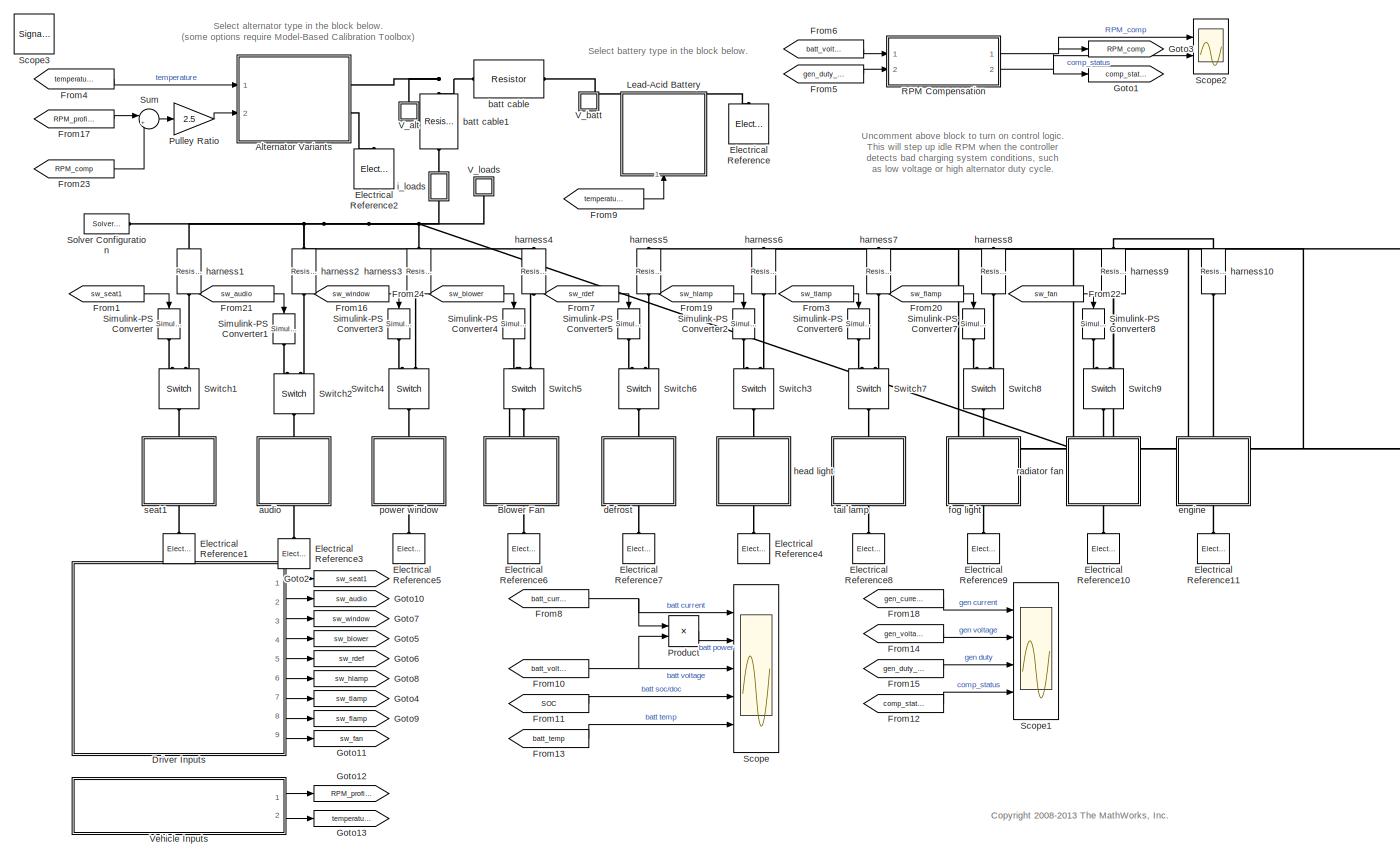
[diagram: root canvas - part 1/1, most of the canvas]
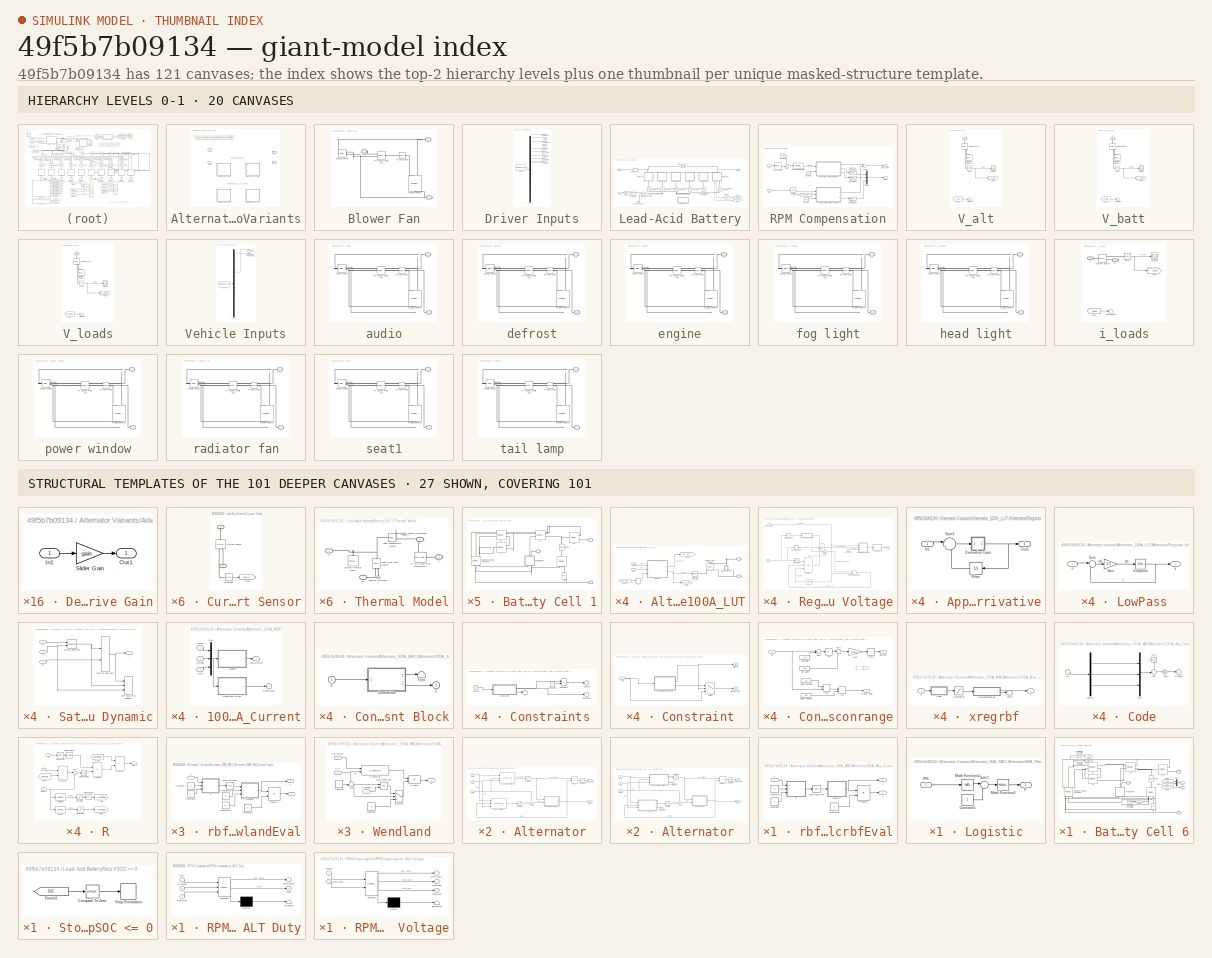
[diagram: thumbnail index - top-2 hierarchy levels (20 canvases) + 27 structural-template representatives of the remaining 101 canvases]
MODEL slx_49f5b7b09134
KIND model
CONFIG PreLoadFcn = ModelPath = fileparts(get_param(bdroot,'FileName'));\naddpath(ModelPath);\n\nssc_battery_management_R2012b_ini
BLOCK [SubSystem] Alternator Variants
  FunctionWithSeparateData = off
  MaskHideContents = off
  MinAlgLoopOccurrences = off
  Opaque = off
  Ports = [2, 0, 0, 0, 0, 0, 2]
  PropExecContextOutsideSubsystem = off
  RTWSystemCode = Auto
  RequestExecContextInheritance = off
  Variant = on
BLOCK [PMIOPort] Alternator Variants/+
  Port = 1
  Side = Right
BLOCK [PMIOPort] Alternator Variants/-
  Port = 2
  Side = Right
BLOCK [SubSystem] Alternator Variants/Alternator_100A_LUT
  FunctionWithSeparateData = off
  MaskHideContents = off
  MinAlgLoopOccurrences = off
  Opaque = off
  Ports = [2, 0, 0, 0, 0, 0, 2]
  PropExecContextOutsideSubsystem = off
  RTWSystemCode = Auto
  RequestExecContextInheritance = off
  VariantObject = Alternator_100A_LUT
BLOCK [PMIOPort] Alternator Variants/Alternator_100A_LUT/+
  Port = 1
  Side = Right
  Tag = PMCPort
BLOCK [PMIOPort] Alternator Variants/Alternator_100A_LUT/-
  Port = 2
  Side = Right
  Tag = PMCPort
BLOCK [SubSystem] Alternator Variants/Alternator_100A_LUT/Alternator
  FunctionWithSeparateData = off
  MaskHideContents = off
  MinAlgLoopOccurrences = off
  Opaque = off
  Ports = [3, 2]
  PropExecContextOutsideSubsystem = off
  RTWSystemCode = Auto
  RequestExecContextInheritance = off
BLOCK [Lookup_n-D] Alternator Variants/Alternator_100A_LUT/Alternator/100A_Max_Current
  BreakpointsForDimension1 = AltData100AMaxCurrent.RPM
  BreakpointsForDimension2 = AltData100AMaxCurrent.Voltage
  BreakpointsForDimension3 = AltData100AMaxCurrent.Temp
  NumberOfTableDimensions = 3
  Ports = [3, 1]
  Table = AltData100AMaxCurrent.Current
BLOCK [Lookup_n-D] Alternator Variants/Alternator_100A_LUT/Alternator/100A_Voltage
  BreakpointsForDimension1 = AltData100AVoltage.RPM
  BreakpointsForDimension2 = AltData100AVoltage.Current
  BreakpointsForDimension3 = AltData100AVoltage.Temp
  NumberOfTableDimensions = 3
  Ports = [3, 1]
  Table = AltData100AVoltage.Voltage
BLOCK [Outport] Alternator Variants/Alternator_100A_LUT/Alternator/Current
  IconDisplay = Port number
  Port = 2
BLOCK [Outport] Alternator Variants/Alternator_100A_LUT/Alternator/Load Factor
  IconDisplay = Port number
BLOCK [Product] Alternator Variants/Alternator_100A_LUT/Alternator/Product
  InputSameDT = off
  Inputs = /*
  Ports = [2, 1]
  RndMeth = Floor
BLOCK [Inport] Alternator Variants/Alternator_100A_LUT/Alternator/RPM
  IconDisplay = Port number
  Port = 2
BLOCK [SubSystem] Alternator Variants/Alternator_100A_LUT/Alternator/Regulate Voltage
  FunctionWithSeparateData = off
  MaskHideContents = off
  MinAlgLoopOccurrences = off
  Opaque = off
  Ports = [2, 1]
  PropExecContextOutsideSubsystem = off
  RTWSystemCode = Auto
  RequestExecContextInheritance = off
BLOCK [SubSystem] Alternator Variants/Alternator_100A_LUT/Alternator/Regulate Voltage/Approximate Derivative
  FunctionWithSeparateData = off
  MaskHideContents = off
  MinAlgLoopOccurrences = off
  Opaque = off
  Ports = [1, 1]
  PropExecContextOutsideSubsystem = off
  RTWSystemCode = Auto
  RequestExecContextInheritance = off
BLOCK [SubSystem] Alternator Variants/Alternator_100A_LUT/Alternator/Regulate Voltage/Approximate Derivative/Derivative Gain
  CloseFcn = slideg Close
  CopyFcn = slideg Copy
  DeleteFcn = slideg DeleteBlock
  FunctionWithSeparateData = off
  LoadFcn = slideg Load
  MaskHideContents = off
  MinAlgLoopOccurrences = off
  NameChangeFcn = slideg NameChange
  Opaque = off
  OpenFcn = slideg Open
  ParentCloseFcn = slideg ParentClose
  Ports = [1, 1]
  PropExecContextOutsideSubsystem = off
  RTWSystemCode = Auto
  RequestExecContextInheritance = off
BLOCK [Inport] Alternator Variants/Alternator_100A_LUT/Alternator/Regulate Voltage/Approximate Derivative/Derivative Gain/In1
  IconDisplay = Port number
BLOCK [Outport] Alternator Variants/Alternator_100A_LUT/Alternator/Regulate Voltage/Approximate Derivative/Derivative Gain/Out1
  IconDisplay = Port number
BLOCK [Gain] Alternator Variants/Alternator_100A_LUT/Alternator/Regulate Voltage/Approximate Derivative/Derivative Gain/Slider Gain
  Gain = gain
BLOCK [Integrator] Alternator Variants/Alternator_100A_LUT/Alternator/Regulate Voltage/Approximate Derivative/Filter
  Ports = [1, 1]
BLOCK [Inport] Alternator Variants/Alternator_100A_LUT/Alternator/Regulate Voltage/Approximate Derivative/In1
  IconDisplay = Port number
BLOCK [Outport] Alternator Variants/Alternator_100A_LUT/Alternator/Regulate Voltage/Approximate Derivative/Out1
  IconDisplay = Port number
BLOCK [Sum] Alternator Variants/Alternator_100A_LUT/Alternator/Regulate Voltage/Approximate Derivative/Sum3
  IconShape = round
  Inputs = |+-
  Ports = [2, 1]
BLOCK [Constant] Alternator Variants/Alternator_100A_LUT/Alternator/Regulate Voltage/Constant1
  OutDataTypeStr = double
  Value = 0
BLOCK [SubSystem] Alternator Variants/Alternator_100A_LUT/Alternator/Regulate Voltage/Derivative Gain
  CloseFcn = slideg Close
  CopyFcn = slideg Copy
  DeleteFcn = slideg DeleteBlock
  FunctionWithSeparateData = off
  LoadFcn = slideg Load
  MaskHideContents = off
  MinAlgLoopOccurrences = off
  NameChangeFcn = slideg NameChange
  Opaque = off
  OpenFcn = slideg Open
  ParentCloseFcn = slideg ParentClose
  Ports = [1, 1]
  PropExecContextOutsideSubsystem = off
  RTWSystemCode = Auto
  RequestExecContextInheritance = off
BLOCK [Inport] Alternator Variants/Alternator_100A_LUT/Alternator/Regulate Voltage/Derivative Gain/In1
  IconDisplay = Port number
BLOCK [Outport] Alternator Variants/Alternator_100A_LUT/Alternator/Regulate Voltage/Derivative Gain/Out1
  IconDisplay = Port number
BLOCK [Gain] Alternator Variants/Alternator_100A_LUT/Alternator/Regulate Voltage/Derivative Gain/Slider Gain
  Gain = gain
BLOCK [InitialCondition] Alternator Variants/Alternator_100A_LUT/Alternator/Regulate Voltage/IC
  Value = i_init
BLOCK [SubSystem] Alternator Variants/Alternator_100A_LUT/Alternator/Regulate Voltage/Integral Gain
  CloseFcn = slideg Close
  CopyFcn = slideg Copy
  DeleteFcn = slideg DeleteBlock
  FunctionWithSeparateData = off
  LoadFcn = slideg Load
  MaskHideContents = off
  MinAlgLoopOccurrences = off
  NameChangeFcn = slideg NameChange
  Opaque = off
  OpenFcn = slideg Open
  ParentCloseFcn = slideg ParentClose
  Ports = [1, 1]
  PropExecContextOutsideSubsystem = off
  RTWSystemCode = Auto
  RequestExecContextInheritance = off
BLOCK [Inport] Alternator Variants/Alternator_100A_LUT/Alternator/Regulate Voltage/Integral Gain/In1
  IconDisplay = Port number
BLOCK [Outport] Alternator Variants/Alternator_100A_LUT/Alternator/Regulate Voltage/Integral Gain/Out1
  IconDisplay = Port number
BLOCK [Gain] Alternator Variants/Alternator_100A_LUT/Alternator/Regulate Voltage/Integral Gain/Slider Gain
  Gain = gain
BLOCK [Integrator] Alternator Variants/Alternator_100A_LUT/Alternator/Regulate Voltage/Integrator
  ExternalReset = falling
  IgnoreLimit = on
  InitialConditionSource = external
  LimitOutput = on
  LowerSaturationLimit = 0
  Ports = [3, 1, 0, 0, 1]
  ShowStatePort = on
  UpperSaturationLimit = 140
BLOCK [SubSystem] Alternator Variants/Alternator_100A_LUT/Alternator/Regulate Voltage/LowPass
  FunctionWithSeparateData = off
  MaskHideContents = off
  MinAlgLoopOccurrences = off
  Opaque = off
  Ports = [1, 1]
  PropExecContextOutsideSubsystem = off
  RTWSystemCode = Auto
  RequestExecContextInheritance = off
BLOCK [Gain] Alternator Variants/Alternator_100A_LUT/Alternator/Regulate Voltage/LowPass/Gain
  Gain = 1/T
  OutDataTypeStr = Inherit: Inherit via internal rule
  ParamDataTypeStr = Inherit: Inherit via internal rule
  SaturateOnIntegerOverflow = off
BLOCK [Integrator] Alternator Variants/Alternator_100A_LUT/Alternator/Regulate Voltage/LowPass/Integrator
  InitialCondition = IC
  Ports = [1, 1]
BLOCK [Sum] Alternator Variants/Alternator_100A_LUT/Alternator/Regulate Voltage/LowPass/Sum
  IconShape = round
  InputSameDT = off
  Inputs = |+-
  OutDataTypeStr = Inherit: Inherit via internal rule
  Ports = [2, 1]
  SaturateOnIntegerOverflow = off
BLOCK [Inport] Alternator Variants/Alternator_100A_LUT/Alternator/Regulate Voltage/LowPass/u
  IconDisplay = Port number
BLOCK [Outport] Alternator Variants/Alternator_100A_LUT/Alternator/Regulate Voltage/LowPass/y
  IconDisplay = Port number
BLOCK [Inport] Alternator Variants/Alternator_100A_LUT/Alternator/Regulate Voltage/Max_Current
  IconDisplay = Port number
BLOCK [SubSystem] Alternator Variants/Alternator_100A_LUT/Alternator/Regulate Voltage/Proportional Gain
  CloseFcn = slideg Close
  CopyFcn = slideg Copy
  DeleteFcn = slideg DeleteBlock
  FunctionWithSeparateData = off
  LoadFcn = slideg Load
  MaskHideContents = off
  MinAlgLoopOccurrences = off
  NameChangeFcn = slideg NameChange
  Opaque = off
  OpenFcn = slideg Open
  ParentCloseFcn = slideg ParentClose
  Ports = [1, 1]
  PropExecContextOutsideSubsystem = off
  RTWSystemCode = Auto
  RequestExecContextInheritance = off
BLOCK [Inport] Alternator Variants/Alternator_100A_LUT/Alternator/Regulate Voltage/Proportional Gain/In1
  IconDisplay = Port number
BLOCK [Outport] Alternator Variants/Alternator_100A_LUT/Alternator/Regulate Voltage/Proportional Gain/Out1
  IconDisplay = Port number
BLOCK [Gain] Alternator Variants/Alternator_100A_LUT/Alternator/Regulate Voltage/Proportional Gain/Slider Gain
  Gain = gain
BLOCK [RelationalOperator] Alternator Variants/Alternator_100A_LUT/Alternator/Regulate Voltage/Relational Operator
  InputSameDT = off
  Operator = >
  OutDataTypeStr = boolean
  Ports = [2, 1]
BLOCK [SubSystem] Alternator Variants/Alternator_100A_LUT/Alternator/Regulate Voltage/Saturation Dynamic
  FunctionWithSeparateData = off
  MaskHideContents = off
  MinAlgLoopOccurrences = off
  Opaque = off
  Ports = [3, 1]
  PropExecContextOutsideSubsystem = off
  RTWSystemCode = Auto
  RequestExecContextInheritance = off
BLOCK [MinMax] Alternator Variants/Alternator_100A_LUT/Alternator/Regulate Voltage/Saturation Dynamic/Enforce lower limit
  Function = max
  InputSameDT = off
  Inputs = 2
  OutDataTypeStr = Inherit: Inherit via back propagation
  Ports = [2, 1]
  SaturateOnIntegerOverflow = off
  ZeroCross = off
BLOCK [MinMax] Alternator Variants/Alternator_100A_LUT/Alternator/Regulate Voltage/Saturation Dynamic/Enforce upper limit
  InputSameDT = off
  Inputs = 2
  OutDataTypeStr = Inherit: Inherit via back propagation
  Ports = [2, 1]
  SaturateOnIntegerOverflow = off
  ZeroCross = off
BLOCK [S-Function] Alternator Variants/Alternator_100A_LUT/Alternator/Regulate Voltage/Saturation Dynamic/FixPt Data Type Duplicate
  EnableBusSupport = off
  FunctionName = sfix_dtprop
  Parameters = 15,NumInputPorts
  Ports = [3]
BLOCK [Inport] Alternator Variants/Alternator_100A_LUT/Alternator/Regulate Voltage/Saturation Dynamic/lo
  IconDisplay = Port number
  Port = 3
BLOCK [Inport] Alternator Variants/Alternator_100A_LUT/Alternator/Regulate Voltage/Saturation Dynamic/u
  IconDisplay = Port number
  Port = 2
BLOCK [Inport] Alternator Variants/Alternator_100A_LUT/Alternator/Regulate Voltage/Saturation Dynamic/up
  IconDisplay = Port number
BLOCK [Outport] Alternator Variants/Alternator_100A_LUT/Alternator/Regulate Voltage/Saturation Dynamic/y
  IconDisplay = Port number
BLOCK [Sum] Alternator Variants/Alternator_100A_LUT/Alternator/Regulate Voltage/Sum1
  IconShape = round
  InputSameDT = off
  Inputs = +++
  OutDataTypeStr = Inherit: Inherit via internal rule
  Ports = [3, 1]
  SaturateOnIntegerOverflow = off
BLOCK [Sum] Alternator Variants/Alternator_100A_LUT/Alternator/Regulate Voltage/Sum2
  IconShape = round
  InputSameDT = off
  Inputs = +++
  OutDataTypeStr = Inherit: Inherit via internal rule
  Ports = [3, 1]
  SaturateOnIntegerOverflow = off
BLOCK [Inport] Alternator Variants/Alternator_100A_LUT/Alternator/Regulate Voltage/V error
  IconDisplay = Port number
  Port = 2
BLOCK [Outport] Alternator Variants/Alternator_100A_LUT/Alternator/Regulate Voltage/i
  IconDisplay = Port number
BLOCK [Saturate] Alternator Variants/Alternator_100A_LUT/Alternator/Saturation1
  InputPortMap = u0
  LowerLimit = 1e-9
  Ports = [1, 1]
  UpperLimit = inf
  ZeroCross = off
BLOCK [Saturate] Alternator Variants/Alternator_100A_LUT/Alternator/Saturation2
  InputPortMap = u0
  LowerLimit = 0
  Ports = [1, 1]
  UpperLimit = 1
  ZeroCross = off
BLOCK [Saturate] Alternator Variants/Alternator_100A_LUT/Alternator/Saturation3
  InputPortMap = u0
  LowerLimit = 13
  Ports = [1, 1]
  UpperLimit = 15
  ZeroCross = off
BLOCK [Sum] Alternator Variants/Alternator_100A_LUT/Alternator/Sum
  IconShape = round
  InputSameDT = off
  Inputs = -+|
  OutDataTypeStr = Inherit: Inherit via internal rule
  Ports = [2, 1]
BLOCK [Inport] Alternator Variants/Alternator_100A_LUT/Alternator/Temp
  IconDisplay = Port number
BLOCK [Inport] Alternator Variants/Alternator_100A_LUT/Alternator/Voltage
  IconDisplay = Port number
  Port = 3
BLOCK [Reference] Alternator Variants/Alternator_100A_LUT/Controlled Current Source  REF=fl_lib/Electrical/Electrical Sources/Controlled Current
Source
  ClassName = controlled_current
  ComponentPath = foundation.electrical.sources.controlled_current
  ComponentVariantNames = controlled_current
  ComponentVariants = foundation.electrical.sources.controlled_current
  LocalVarDescs = |i|v
  LocalVarLogging = [0 0]
  LocalVarNames = |i|v
  Ports = [0, 0, 0, 0, 0, 1, 2]
  SchemaVersion = 1
  SourceBlock = fl_lib/Electrical/Electrical Sources/Controlled Current\nSource
  SourceFile = foundation.electrical.sources.controlled_current
  SourceType = Controlled Current\nSource
  i_Log = off
  v_Log = off
BLOCK [From] Alternator Variants/Alternator_100A_LUT/From14
  CloseFcn = tagdialog Close
  GotoTag = gen_voltage
  TagVisibility = global
BLOCK [Goto] Alternator Variants/Alternator_100A_LUT/Goto
  GotoTag = gen_current
  TagVisibility = global
BLOCK [Goto] Alternator Variants/Alternator_100A_LUT/Goto1
  GotoTag = gen_duty_cycle
  TagVisibility = global
BLOCK [InitialCondition] Alternator Variants/Alternator_100A_LUT/IC
  Value = 14.3
BLOCK [Inport] Alternator Variants/Alternator_100A_LUT/RPM
  IconDisplay = Port number
  Port = 2
BLOCK [Reference] Alternator Variants/Alternator_100A_LUT/Simulink-PS Converter  REF=nesl_utility/Simulink-PS
Converter
  AffineConversion = off
  Frequencies = []
  InputFilterTimeConstant = .001
  InputFiltering = off
  LeftPortType = input
  NoiseDistribution = none
  NoiseParameters = []
  PhysicalDomain = network_engine_domain
  Ports = [1, 0, 0, 0, 0, 0, 1]
  PseudoPeriodic = off
  RightPortType = output
  SimscapeFilterOrder = 1
  SourceBlock = nesl_utility/Simulink-PS\nConverter
  SourceType = Simulink-PS\nConverter
  SubClassName = ps_input
  UdotUserProvided = 0
  Unit = 1
BLOCK [Inport] Alternator Variants/Alternator_100A_LUT/Temp
  IconDisplay = Port number
BLOCK [SubSystem] Alternator Variants/Alternator_100A_LUT/Voltage sensor
  FunctionWithSeparateData = off
  MaskHideContents = off
  MinAlgLoopOccurrences = off
  Opaque = off
  Ports = [0, 0, 0, 0, 0, 1, 1]
  PropExecContextOutsideSubsystem = off
  RTWSystemCode = Auto
  RequestExecContextInheritance = off
BLOCK [PMIOPort] Alternator Variants/Alternator_100A_LUT/Voltage sensor/+
  Port = 1
  Side = Left
BLOCK [PMIOPort] Alternator Variants/Alternator_100A_LUT/Voltage sensor/-
  Port = 2
  Side = Right
BLOCK [Goto] Alternator Variants/Alternator_100A_LUT/Voltage sensor/Goto
  GotoTag = gen_voltage
  TagVisibility = global
BLOCK [Reference] Alternator Variants/Alternator_100A_LUT/Voltage sensor/PS-Simulink Converter  REF=nesl_utility/PS-Simulink
Converter
  AffineConversion = off
  Frequencies = []
  LeftPortType = input
  PhysicalDomain = network_engine_domain
  Ports = [0, 1, 0, 0, 0, 1]
  PseudoPeriodic = off
  RightPortType = output
  SourceBlock = nesl_utility/PS-Simulink\nConverter
  SourceType = PS-Simulink\nConverter
  SubClassName = ps_output
  Unit = V
BLOCK [Reference] Alternator Variants/Alternator_100A_LUT/Voltage sensor/Voltage Sensor  REF=fl_lib/Electrical/Electrical Sensors/Voltage Sensor
  ClassName = sensor_voltage
  ComponentPath = foundation.electrical.sensors.voltage
  ComponentVariantNames = voltage
  ComponentVariants = foundation.electrical.sensors.voltage
  LocalVarDescs = |i1|v1
  LocalVarLogging = []
  LocalVarNames = |i1|v1
  Ports = [0, 0, 0, 0, 0, 1, 2]
  SchemaVersion = 1
  SourceBlock = fl_lib/Electrical/Electrical Sensors/Voltage Sensor
  SourceFile = foundation.electrical.sensors.voltage
  SourceType = Voltage Sensor
  i1_Log = off
  v1_Log = off
BLOCK [SubSystem] Alternator Variants/Alternator_100A_MBC
  FunctionWithSeparateData = off
  MaskHideContents = off
  MinAlgLoopOccurrences = off
  Opaque = off
  Ports = [2, 0, 0, 0, 0, 0, 2]
  PropExecContextOutsideSubsystem = off
  RTWSystemCode = Auto
  RequestExecContextInheritance = off
  VariantObject = Alternator_100A_MBC
BLOCK [PMIOPort] Alternator Variants/Alternator_100A_MBC/+
  Port = 1
  Side = Right
  Tag = PMCPort
BLOCK [PMIOPort] Alternator Variants/Alternator_100A_MBC/-
  Port = 2
  Side = Right
  Tag = PMCPort
BLOCK [SubSystem] Alternator Variants/Alternator_100A_MBC/Alternator
  FunctionWithSeparateData = off
  MaskHideContents = off
  MinAlgLoopOccurrences = off
  Opaque = off
  Ports = [3, 2]
  PropExecContextOutsideSubsystem = off
  RTWSystemCode = Auto
  RequestExecContextInheritance = off
BLOCK [SubSystem] Alternator Variants/Alternator_100A_MBC/Alternator/100A_Max_Current
  FunctionWithSeparateData = off
  MaskHideContents = off
  MinAlgLoopOccurrences = off
  Opaque = off
  Ports = [3, 2]
  PropExecContextOutsideSubsystem = off
  RTWSystemCode = Auto
  RequestExecContextInheritance = off
BLOCK [SubSystem] Alternator Variants/Alternator_100A_MBC/Alternator/100A_Max_Current/Constraint Block
  FunctionWithSeparateData = off
  MaskHideContents = off
  MinAlgLoopOccurrences = off
  Opaque = off
  Ports = [1, 1]
  PropExecContextOutsideSubsystem = off
  RTWSystemCode = Auto
  RequestExecContextInheritance = off
BLOCK [Outport] Alternator Variants/Alternator_100A_MBC/Alternator/100A_Max_Current/Constraint Block/C
  IconDisplay = Port number
BLOCK [SubSystem] Alternator Variants/Alternator_100A_MBC/Alternator/100A_Max_Current/Constraint Block/Constraints
  FunctionWithSeparateData = off
  MaskHideContents = off
  MinAlgLoopOccurrences = off
  Opaque = off
  Ports = [1, 2]
  PropExecContextOutsideSubsystem = off
  RTWSystemCode = Auto
  RequestExecContextInheritance = off
BLOCK [RelationalOperator] Alternator Variants/Alternator_100A_MBC/Alternator/100A_Max_Current/Constraint Block/Constraints/Compare
  Operator = <=
  Ports = [2, 1]
BLOCK [Constant] Alternator Variants/Alternator_100A_MBC/Alternator/100A_Max_Current/Constraint Block/Constraints/Constant
  Value = 0
BLOCK [SubSystem] Alternator Variants/Alternator_100A_MBC/Alternator/100A_Max_Current/Constraint Block/Constraints/Constraint
  FunctionWithSeparateData = off
  MaskHideContents = off
  MinAlgLoopOccurrences = off
  Opaque = off
  Ports = [1, 2]
  PropExecContextOutsideSubsystem = off
  RTWSystemCode = Auto
  RequestExecContextInheritance = off
BLOCK [SubSystem] Alternator Variants/Alternator_100A_MBC/Alternator/100A_Max_Current/Constraint Block/Constraints/Constraint/Constraint - conrange
  FunctionWithSeparateData = off
  MaskHideContents = off
  MinAlgLoopOccurrences = off
  Opaque = off
  Ports = [1, 2]
  PropExecContextOutsideSubsystem = off
  RTWSystemCode = Auto
  RequestExecContextInheritance = off
  UserDataPersistent = on
BLOCK [Abs] Alternator Variants/Alternator_100A_MBC/Alternator/100A_Max_Current/Constraint Block/Constraints/Constraint/Constraint - conrange/Abs
BLOCK [Outport] Alternator Variants/Alternator_100A_MBC/Alternator/100A_Max_Current/Constraint Block/Constraints/Constraint/Constraint - conrange/Distance
  IconDisplay = Port number
BLOCK [Gain] Alternator Variants/Alternator_100A_MBC/Alternator/100A_Max_Current/Constraint Block/Constraints/Constraint/Constraint - conrange/Gain1
  Gain = Scale
BLOCK [Constant] Alternator Variants/Alternator_100A_MBC/Alternator/100A_Max_Current/Constraint Block/Constraints/Constraint/Constraint - conrange/Half width
  Value = HW
BLOCK [Outport] Alternator Variants/Alternator_100A_MBC/Alternator/100A_Max_Current/Constraint Block/Constraints/Constraint/Constraint - conrange/Interior Point
  IconDisplay = Port number
  Port = 2
BLOCK [Constant] Alternator Variants/Alternator_100A_MBC/Alternator/100A_Max_Current/Constraint Block/Constraints/Constraint/Constraint - conrange/Lower bounds
  Value = LB
BLOCK [Constant] Alternator Variants/Alternator_100A_MBC/Alternator/100A_Max_Current/Constraint Block/Constraints/Constraint/Constraint - conrange/Mid-point
  Value = M
BLOCK [Sum] Alternator Variants/Alternator_100A_MBC/Alternator/100A_Max_Current/Constraint Block/Constraints/Constraint/Constraint - conrange/Sum
  IconShape = round
  InputSameDT = off
  Inputs = |+-
  OutDataTypeStr = Inherit: Inherit via internal rule
  Ports = [2, 1]
BLOCK [Sum] Alternator Variants/Alternator_100A_MBC/Alternator/100A_Max_Current/Constraint Block/Constraints/Constraint/Constraint - conrange/Sum1
  IconShape = round
  InputSameDT = off
  Inputs = |+-
  OutDataTypeStr = Inherit: Inherit via internal rule
  Ports = [2, 1]
BLOCK [Constant] Alternator Variants/Alternator_100A_MBC/Alternator/100A_Max_Current/Constraint Block/Constraints/Constraint/Constraint - conrange/Upper bounds
  Value = UB
BLOCK [Inport] Alternator Variants/Alternator_100A_MBC/Alternator/100A_Max_Current/Constraint Block/Constraints/Constraint/Constraint - conrange/Xin
  IconDisplay = Port number
BLOCK [MinMax] Alternator Variants/Alternator_100A_MBC/Alternator/100A_Max_Current/Constraint Block/Constraints/Constraint/Constraint - conrange/max
  Function = max
  Inputs = 2
  Ports = [2, 1]
BLOCK [MinMax] Alternator Variants/Alternator_100A_MBC/Alternator/100A_Max_Current/Constraint Block/Constraints/Constraint/Constraint - conrange/max1
  Function = max
  Ports = [1, 1]
BLOCK [MinMax] Alternator Variants/Alternator_100A_MBC/Alternator/100A_Max_Current/Constraint Block/Constraints/Constraint/Constraint - conrange/min
  Inputs = 2
  Ports = [2, 1]
BLOCK [Outport] Alternator Variants/Alternator_100A_MBC/Alternator/100A_Max_Current/Constraint Block/Constraints/Constraint/Distance
  IconDisplay = Port number
BLOCK [Outport] Alternator Variants/Alternator_100A_MBC/Alternator/100A_Max_Current/Constraint Block/Constraints/Constraint/Interior Point
  IconDisplay = Port number
  Port = 2
BLOCK [Inport] Alternator Variants/Alternator_100A_MBC/Alternator/100A_Max_Current/Constraint Block/Constraints/Constraint/Xin
  IconDisplay = Port number
BLOCK [Switch] Alternator Variants/Alternator_100A_MBC/Alternator/100A_Max_Current/Constraint Block/Constraints/Constraint/switch
BLOCK [Outport] Alternator Variants/Alternator_100A_MBC/Alternator/100A_Max_Current/Constraint Block/Constraints/Distances
  IconDisplay = Port number
  Port = 2
BLOCK [Inport] Alternator Variants/Alternator_100A_MBC/Alternator/100A_Max_Current/Constraint Block/Constraints/Factors
  IconDisplay = Port number
BLOCK [Outport] Alternator Variants/Alternator_100A_MBC/Alternator/100A_Max_Current/Constraint Block/Constraints/Status
  IconDisplay = Port number
BLOCK [Terminator] Alternator Variants/Alternator_100A_MBC/Alternator/100A_Max_Current/Constraint Block/Constraints/T
BLOCK [Terminator] Alternator Variants/Alternator_100A_MBC/Alternator/100A_Max_Current/Constraint Block/Term
BLOCK [Inport] Alternator Variants/Alternator_100A_MBC/Alternator/100A_Max_Current/Constraint Block/X
  IconDisplay = Port number
BLOCK [Outport] Alternator Variants/Alternator_100A_MBC/Alternator/100A_Max_Current/Constraints
  IconDisplay = Port number
  Port = 2
BLOCK [Outport] Alternator Variants/Alternator_100A_MBC/Alternator/100A_Max_Current/Max_Current
  IconDisplay = Port number
BLOCK [Mux] Alternator Variants/Alternator_100A_MBC/Alternator/100A_Max_Current/Mx1
  DisplayOption = bar
  Inputs = 3
  Ports = [3, 1]
BLOCK [Inport] Alternator Variants/Alternator_100A_MBC/Alternator/100A_Max_Current/RPM
  IconDisplay = Port number
  Port = 3
BLOCK [Inport] Alternator Variants/Alternator_100A_MBC/Alternator/100A_Max_Current/Temp
  IconDisplay = Port number
BLOCK [Inport] Alternator Variants/Alternator_100A_MBC/Alternator/100A_Max_Current/Voltage
  IconDisplay = Port number
  Port = 2
BLOCK [SubSystem] Alternator Variants/Alternator_100A_MBC/Alternator/100A_Max_Current/xregrbf
  FunctionWithSeparateData = off
  MaskHideContents = off
  MinAlgLoopOccurrences = off
  Opaque = off
  Ports = [1, 1]
  PropExecContextOutsideSubsystem = off
  RTWSystemCode = Auto
  RequestExecContextInheritance = off
  UserDataPersistent = on
BLOCK [SubSystem] Alternator Variants/Alternator_100A_MBC/Alternator/100A_Max_Current/xregrbf/Code
  FunctionWithSeparateData = off
  MaskHideContents = off
  MinAlgLoopOccurrences = off
  Opaque = off
  Ports = [1, 1]
  PropExecContextOutsideSubsystem = off
  RTWSystemCode = Auto
  RequestExecContextInheritance = off
BLOCK [Constant] Alternator Variants/Alternator_100A_MBC/Alternator/100A_Max_Current/xregrbf/Code/Mid
  Value = [45 12.75 3500 ]
BLOCK [Outport] Alternator Variants/Alternator_100A_MBC/Alternator/100A_Max_Current/xregrbf/Code/XCoded
  IconDisplay = Port number
BLOCK [Inport] Alternator Variants/Alternator_100A_MBC/Alternator/100A_Max_Current/xregrbf/Code/XIn
  IconDisplay = Port number
BLOCK [Demux] Alternator Variants/Alternator_100A_MBC/Alternator/100A_Max_Current/xregrbf/Code/demux
  Outputs = 3
  Ports = [1, 3]
BLOCK [Gain] Alternator Variants/Alternator_100A_MBC/Alternator/100A_Max_Current/xregrbf/Code/gain
  Gain = [0.0153846153846154 0.8 0.0004 ]
BLOCK [Mux] Alternator Variants/Alternator_100A_MBC/Alternator/100A_Max_Current/xregrbf/Code/mux
  DisplayOption = bar
  Inputs = 3
  Ports = [3, 1]
BLOCK [Sum] Alternator Variants/Alternator_100A_MBC/Alternator/100A_Max_Current/xregrbf/Code/sum
  IconShape = round
  Inputs = -+|
  Ports = [2, 1]
BLOCK [Saturate] Alternator Variants/Alternator_100A_MBC/Alternator/100A_Max_Current/xregrbf/Saturation
  InputPortMap = u0
  LowerLimit = -1
  Ports = [1, 1]
  UpperLimit = 1
  ZeroCross = off
BLOCK [Inport] Alternator Variants/Alternator_100A_MBC/Alternator/100A_Max_Current/xregrbf/X
  IconDisplay = Port number
BLOCK [Outport] Alternator Variants/Alternator_100A_MBC/Alternator/100A_Max_Current/xregrbf/Y
  IconDisplay = Port number
BLOCK [SubSystem] Alternator Variants/Alternator_100A_MBC/Alternator/100A_Max_Current/xregrbf/rbfwendlandEval
  FunctionWithSeparateData = off
  MaskHideContents = off
  MinAlgLoopOccurrences = off
  Opaque = off
  Ports = [1, 2]
  PropExecContextOutsideSubsystem = off
  RTWSystemCode = Auto
  RequestExecContextInheritance = off
BLOCK [Constant] Alternator Variants/Alternator_100A_MBC/Alternator/100A_Max_Current/xregrbf/rbfwendlandEval/Constant13
  Value = P
BLOCK [Constant] Alternator Variants/Alternator_100A_MBC/Alternator/100A_Max_Current/xregrbf/rbfwendlandEval/Constant14
  Value = E
BLOCK [Constant] Alternator Variants/Alternator_100A_MBC/Alternator/100A_Max_Current/xregrbf/rbfwendlandEval/Constant2
  Value = S
  VectorParams1D = off
BLOCK [Constant] Alternator Variants/Alternator_100A_MBC/Alternator/100A_Max_Current/xregrbf/rbfwendlandEval/Constant3
  Value = B
BLOCK [Constant] Alternator Variants/Alternator_100A_MBC/Alternator/100A_Max_Current/xregrbf/rbfwendlandEval/Constant4
  Value = C
  VectorParams1D = off
BLOCK [Outport] Alternator Variants/Alternator_100A_MBC/Alternator/100A_Max_Current/xregrbf/rbfwendlandEval/J
  IconDisplay = Port number
  Port = 2
BLOCK [Math] Alternator Variants/Alternator_100A_MBC/Alternator/100A_Max_Current/xregrbf/rbfwendlandEval/Math Function4
  Operator = sqrt
  Ports = [1, 1]
BLOCK [Product] Alternator Variants/Alternator_100A_MBC/Alternator/100A_Max_Current/xregrbf/rbfwendlandEval/Product4
  Multiplication = Matrix(*)
  Ports = [2, 1]
  RndMeth = Floor
BLOCK [SubSystem] Alternator Variants/Alternator_100A_MBC/Alternator/100A_Max_Current/xregrbf/rbfwendlandEval/R
  FunctionWithSeparateData = off
  MaskHideContents = off
  MinAlgLoopOccurrences = off
  Opaque = off
  Ports = [3, 1]
  PropExecContextOutsideSubsystem = off
  RTWSystemCode = Auto
  RequestExecContextInheritance = off
BLOCK [Outport] Alternator Variants/Alternator_100A_MBC/Alternator/100A_Max_Current/xregrbf/rbfwendlandEval/R/(R//S)^2
  IconDisplay = Port number
BLOCK [Inport] Alternator Variants/Alternator_100A_MBC/Alternator/100A_Max_Current/xregrbf/rbfwendlandEval/R/Centers 
  IconDisplay = Port number
  Port = 2
BLOCK [From] Alternator Variants/Alternator_100A_MBC/Alternator/100A_Max_Current/xregrbf/rbfwendlandEval/R/From
  CloseFcn = tagdialog Close
  GotoTag = OnesCols
BLOCK [From] Alternator Variants/Alternator_100A_MBC/Alternator/100A_Max_Current/xregrbf/rbfwendlandEval/R/From2
  CloseFcn = tagdialog Close
  GotoTag = OnesRows
BLOCK [Goto] Alternator Variants/Alternator_100A_MBC/Alternator/100A_Max_Current/xregrbf/rbfwendlandEval/R/Goto
  GotoTag = OnesRows
BLOCK [Goto] Alternator Variants/Alternator_100A_MBC/Alternator/100A_Max_Current/xregrbf/rbfwendlandEval/R/Goto1
  GotoTag = OnesCols
BLOCK [Math] Alternator Variants/Alternator_100A_MBC/Alternator/100A_Max_Current/xregrbf/rbfwendlandEval/R/Math Function
  Operator = reciprocal
  Ports = [1, 1]
BLOCK [Math] Alternator Variants/Alternator_100A_MBC/Alternator/100A_Max_Current/xregrbf/rbfwendlandEval/R/Math Function1
  Operator = transpose
  Ports = [1, 1]
BLOCK [Math] Alternator Variants/Alternator_100A_MBC/Alternator/100A_Max_Current/xregrbf/rbfwendlandEval/R/Math Function2
  Operator = square
  Ports = [1, 1]
BLOCK [Math] Alternator Variants/Alternator_100A_MBC/Alternator/100A_Max_Current/xregrbf/rbfwendlandEval/R/Math Function3
  Operator = square
  Ports = [1, 1]
BLOCK [Product] Alternator Variants/Alternator_100A_MBC/Alternator/100A_Max_Current/xregrbf/rbfwendlandEval/R/Product1
  Multiplication = Matrix(*)
  Ports = [2, 1]
  RndMeth = Floor
BLOCK [Product] Alternator Variants/Alternator_100A_MBC/Alternator/100A_Max_Current/xregrbf/rbfwendlandEval/R/Product2
  Multiplication = Matrix(*)
  Ports = [2, 1]
  RndMeth = Floor
BLOCK [Product] Alternator Variants/Alternator_100A_MBC/Alternator/100A_Max_Current/xregrbf/rbfwendlandEval/R/Product3
  Ports = [2, 1]
  RndMeth = Floor
BLOCK [Inport] Alternator Variants/Alternator_100A_MBC/Alternator/100A_Max_Current/xregrbf/rbfwendlandEval/R/S
  IconDisplay = Port number
  Port = 3
BLOCK [Saturate] Alternator Variants/Alternator_100A_MBC/Alternator/100A_Max_Current/xregrbf/rbfwendlandEval/R/Saturation
  InputPortMap = u0
  LowerLimit = 1
  Ports = [1, 1]
  UpperLimit = 1
BLOCK [Saturate] Alternator Variants/Alternator_100A_MBC/Alternator/100A_Max_Current/xregrbf/rbfwendlandEval/R/Saturation1
  InputPortMap = u0
  LowerLimit = 1
  Ports = [1, 1]
  UpperLimit = 1
BLOCK [Selector] Alternator Variants/Alternator_100A_MBC/Alternator/100A_Max_Current/xregrbf/rbfwendlandEval/R/SelCols
  IndexOptions = Index vector (dialog),Select all
  Indices = 1,-1
  InputPortWidth = 3
  NumberOfDimensions = 2
  OutputSizes = 1
  Ports = [1, 1]
BLOCK [Selector] Alternator Variants/Alternator_100A_MBC/Alternator/100A_Max_Current/xregrbf/rbfwendlandEval/R/SelRows
  IndexOptions = Select all,Index vector (dialog)
  Indices = -1,1
  InputPortWidth = 3
  NumberOfDimensions = 2
  OutputSizes = 1
  Ports = [1, 1]
BLOCK [Sum] Alternator Variants/Alternator_100A_MBC/Alternator/100A_Max_Current/xregrbf/rbfwendlandEval/R/Sum
  IconShape = round
  Inputs = |+-
  Ports = [2, 1]
BLOCK [Inport] Alternator Variants/Alternator_100A_MBC/Alternator/100A_Max_Current/xregrbf/rbfwendlandEval/R/X
  IconDisplay = Port number
BLOCK [SubSystem] Alternator Variants/Alternator_100A_MBC/Alternator/100A_Max_Current/xregrbf/rbfwendlandEval/Wendland
  FunctionWithSeparateData = off
  MaskHideContents = off
  MinAlgLoopOccurrences = off
  Opaque = off
  Ports = [3, 1]
  PropExecContextOutsideSubsystem = off
  RTWSystemCode = Auto
  RequestExecContextInheritance = off
BLOCK [Constant] Alternator Variants/Alternator_100A_MBC/Alternator/100A_Max_Current/xregrbf/rbfwendlandEval/Wendland/Constant
BLOCK [Constant] Alternator Variants/Alternator_100A_MBC/Alternator/100A_Max_Current/xregrbf/rbfwendlandEval/Wendland/Constant1
  Value = 0
BLOCK [Inport] Alternator Variants/Alternator_100A_MBC/Alternator/100A_Max_Current/xregrbf/rbfwendlandEval/Wendland/Exponent
  IconDisplay = Port number
  Port = 3
BLOCK [Math] Alternator Variants/Alternator_100A_MBC/Alternator/100A_Max_Current/xregrbf/rbfwendlandEval/Wendland/Math Function1
  Operator = pow
  Ports = [2, 1]
BLOCK [Outport] Alternator Variants/Alternator_100A_MBC/Alternator/100A_Max_Current/xregrbf/rbfwendlandEval/Wendland/P
  IconDisplay = Port number
BLOCK [Inport] Alternator Variants/Alternator_100A_MBC/Alternator/100A_Max_Current/xregrbf/rbfwendlandEval/Wendland/PolyTerms
  IconDisplay = Port number
  Port = 2
BLOCK [Product] Alternator Variants/Alternator_100A_MBC/Alternator/100A_Max_Current/xregrbf/rbfwendlandEval/Wendland/Product
  Ports = [2, 1]
  RndMeth = Floor
BLOCK [Inport] Alternator Variants/Alternator_100A_MBC/Alternator/100A_Max_Current/xregrbf/rbfwendlandEval/Wendland/R//S
  IconDisplay = Port number
BLOCK [S-Function] Alternator Variants/Alternator_100A_MBC/Alternator/100A_Max_Current/xregrbf/rbfwendlandEval/Wendland/S-Function
  EnableBusSupport = off
  FunctionName = WendlandEvalSFnV1
  Parameters = NumTerms
  Ports = [2, 1]
BLOCK [Sum] Alternator Variants/Alternator_100A_MBC/Alternator/100A_Max_Current/xregrbf/rbfwendlandEval/Wendland/Sum
  IconShape = round
  Inputs = -+|
  Ports = [2, 1]
BLOCK [Switch] Alternator Variants/Alternator_100A_MBC/Alternator/100A_Max_Current/xregrbf/rbfwendlandEval/Wendland/Switch
  SaturateOnIntegerOverflow = off
BLOCK [Inport] Alternator Variants/Alternator_100A_MBC/Alternator/100A_Max_Current/xregrbf/rbfwendlandEval/X
  IconDisplay = Port number
BLOCK [Outport] Alternator Variants/Alternator_100A_MBC/Alternator/100A_Max_Current/xregrbf/rbfwendlandEval/Y
  IconDisplay = Port number
BLOCK [Terminator] Alternator Variants/Alternator_100A_MBC/Alternator/100A_Max_Current/xregrbf/term
BLOCK [SubSystem] Alternator Variants/Alternator_100A_MBC/Alternator/100A_Voltage
  FunctionWithSeparateData = off
  MaskHideContents = off
  MinAlgLoopOccurrences = off
  Opaque = off
  Ports = [3, 2]
  PropExecContextOutsideSubsystem = off
  RTWSystemCode = Auto
  RequestExecContextInheritance = off
BLOCK [SubSystem] Alternator Variants/Alternator_100A_MBC/Alternator/100A_Voltage/Constraint Block
  FunctionWithSeparateData = off
  MaskHideContents = off
  MinAlgLoopOccurrences = off
  Opaque = off
  Ports = [1, 1]
  PropExecContextOutsideSubsystem = off
  RTWSystemCode = Auto
  RequestExecContextInheritance = off
BLOCK [Outport] Alternator Variants/Alternator_100A_MBC/Alternator/100A_Voltage/Constraint Block/C
  IconDisplay = Port number
BLOCK [SubSystem] Alternator Variants/Alternator_100A_MBC/Alternator/100A_Voltage/Constraint Block/Constraints
  FunctionWithSeparateData = off
  MaskHideContents = off
  MinAlgLoopOccurrences = off
  Opaque = off
  Ports = [1, 2]
  PropExecContextOutsideSubsystem = off
  RTWSystemCode = Auto
  RequestExecContextInheritance = off
BLOCK [RelationalOperator] Alternator Variants/Alternator_100A_MBC/Alternator/100A_Voltage/Constraint Block/Constraints/Compare
  Operator = <=
  Ports = [2, 1]
BLOCK [Constant] Alternator Variants/Alternator_100A_MBC/Alternator/100A_Voltage/Constraint Block/Constraints/Constant
  Value = 0
BLOCK [SubSystem] Alternator Variants/Alternator_100A_MBC/Alternator/100A_Voltage/Constraint Block/Constraints/Constraint
  FunctionWithSeparateData = off
  MaskHideContents = off
  MinAlgLoopOccurrences = off
  Opaque = off
  Ports = [1, 2]
  PropExecContextOutsideSubsystem = off
  RTWSystemCode = Auto
  RequestExecContextInheritance = off
BLOCK [SubSystem] Alternator Variants/Alternator_100A_MBC/Alternator/100A_Voltage/Constraint Block/Constraints/Constraint/Constraint - conrange
  FunctionWithSeparateData = off
  MaskHideContents = off
  MinAlgLoopOccurrences = off
  Opaque = off
  Ports = [1, 2]
  PropExecContextOutsideSubsystem = off
  RTWSystemCode = Auto
  RequestExecContextInheritance = off
  UserDataPersistent = on
BLOCK [Abs] Alternator Variants/Alternator_100A_MBC/Alternator/100A_Voltage/Constraint Block/Constraints/Constraint/Constraint - conrange/Abs
BLOCK [Outport] Alternator Variants/Alternator_100A_MBC/Alternator/100A_Voltage/Constraint Block/Constraints/Constraint/Constraint - conrange/Distance
  IconDisplay = Port number
BLOCK [Gain] Alternator Variants/Alternator_100A_MBC/Alternator/100A_Voltage/Constraint Block/Constraints/Constraint/Constraint - conrange/Gain1
  Gain = Scale
BLOCK [Constant] Alternator Variants/Alternator_100A_MBC/Alternator/100A_Voltage/Constraint Block/Constraints/Constraint/Constraint - conrange/Half width
  Value = HW
BLOCK [Outport] Alternator Variants/Alternator_100A_MBC/Alternator/100A_Voltage/Constraint Block/Constraints/Constraint/Constraint - conrange/Interior Point
  IconDisplay = Port number
  Port = 2
BLOCK [Constant] Alternator Variants/Alternator_100A_MBC/Alternator/100A_Voltage/Constraint Block/Constraints/Constraint/Constraint - conrange/Lower bounds
  Value = LB
BLOCK [Constant] Alternator Variants/Alternator_100A_MBC/Alternator/100A_Voltage/Constraint Block/Constraints/Constraint/Constraint - conrange/Mid-point
  Value = M
BLOCK [Sum] Alternator Variants/Alternator_100A_MBC/Alternator/100A_Voltage/Constraint Block/Constraints/Constraint/Constraint - conrange/Sum
  IconShape = round
  InputSameDT = off
  Inputs = |+-
  OutDataTypeStr = Inherit: Inherit via internal rule
  Ports = [2, 1]
BLOCK [Sum] Alternator Variants/Alternator_100A_MBC/Alternator/100A_Voltage/Constraint Block/Constraints/Constraint/Constraint - conrange/Sum1
  IconShape = round
  InputSameDT = off
  Inputs = |+-
  OutDataTypeStr = Inherit: Inherit via internal rule
  Ports = [2, 1]
BLOCK [Constant] Alternator Variants/Alternator_100A_MBC/Alternator/100A_Voltage/Constraint Block/Constraints/Constraint/Constraint - conrange/Upper bounds
  Value = UB
BLOCK [Inport] Alternator Variants/Alternator_100A_MBC/Alternator/100A_Voltage/Constraint Block/Constraints/Constraint/Constraint - conrange/Xin
  IconDisplay = Port number
BLOCK [MinMax] Alternator Variants/Alternator_100A_MBC/Alternator/100A_Voltage/Constraint Block/Constraints/Constraint/Constraint - conrange/max
  Function = max
  Inputs = 2
  Ports = [2, 1]
BLOCK [MinMax] Alternator Variants/Alternator_100A_MBC/Alternator/100A_Voltage/Constraint Block/Constraints/Constraint/Constraint - conrange/max1
  Function = max
  Ports = [1, 1]
BLOCK [MinMax] Alternator Variants/Alternator_100A_MBC/Alternator/100A_Voltage/Constraint Block/Constraints/Constraint/Constraint - conrange/min
  Inputs = 2
  Ports = [2, 1]
BLOCK [Outport] Alternator Variants/Alternator_100A_MBC/Alternator/100A_Voltage/Constraint Block/Constraints/Constraint/Distance
  IconDisplay = Port number
BLOCK [Outport] Alternator Variants/Alternator_100A_MBC/Alternator/100A_Voltage/Constraint Block/Constraints/Constraint/Interior Point
  IconDisplay = Port number
  Port = 2
BLOCK [Inport] Alternator Variants/Alternator_100A_MBC/Alternator/100A_Voltage/Constraint Block/Constraints/Constraint/Xin
  IconDisplay = Port number
BLOCK [Switch] Alternator Variants/Alternator_100A_MBC/Alternator/100A_Voltage/Constraint Block/Constraints/Constraint/switch
BLOCK [Outport] Alternator Variants/Alternator_100A_MBC/Alternator/100A_Voltage/Constraint Block/Constraints/Distances
  IconDisplay = Port number
  Port = 2
BLOCK [Inport] Alternator Variants/Alternator_100A_MBC/Alternator/100A_Voltage/Constraint Block/Constraints/Factors
  IconDisplay = Port number
BLOCK [Outport] Alternator Variants/Alternator_100A_MBC/Alternator/100A_Voltage/Constraint Block/Constraints/Status
  IconDisplay = Port number
BLOCK [Terminator] Alternator Variants/Alternator_100A_MBC/Alternator/100A_Voltage/Constraint Block/Constraints/T
BLOCK [Terminator] Alternator Variants/Alternator_100A_MBC/Alternator/100A_Voltage/Constraint Block/Term
BLOCK [Inport] Alternator Variants/Alternator_100A_MBC/Alternator/100A_Voltage/Constraint Block/X
  IconDisplay = Port number
BLOCK [Outport] Alternator Variants/Alternator_100A_MBC/Alternator/100A_Voltage/Constraints
  IconDisplay = Port number
  Port = 2
BLOCK [Inport] Alternator Variants/Alternator_100A_MBC/Alternator/100A_Voltage/Load
  IconDisplay = Port number
  Port = 2
BLOCK [Mux] Alternator Variants/Alternator_100A_MBC/Alternator/100A_Voltage/Mx1
  DisplayOption = bar
  Inputs = 3
  Ports = [3, 1]
BLOCK [Inport] Alternator Variants/Alternator_100A_MBC/Alternator/100A_Voltage/RPM
  IconDisplay = Port number
  Port = 3
BLOCK [Inport] Alternator Variants/Alternator_100A_MBC/Alternator/100A_Voltage/Temp
  IconDisplay = Port number
BLOCK [Outport] Alternator Variants/Alternator_100A_MBC/Alternator/100A_Voltage/Voltage
  IconDisplay = Port number
BLOCK [SubSystem] Alternator Variants/Alternator_100A_MBC/Alternator/100A_Voltage/xregrbf
  FunctionWithSeparateData = off
  MaskHideContents = off
  MinAlgLoopOccurrences = off
  Opaque = off
  Ports = [1, 1]
  PropExecContextOutsideSubsystem = off
  RTWSystemCode = Auto
  RequestExecContextInheritance = off
  UserDataPersistent = on
BLOCK [SubSystem] Alternator Variants/Alternator_100A_MBC/Alternator/100A_Voltage/xregrbf/Code
  FunctionWithSeparateData = off
  MaskHideContents = off
  MinAlgLoopOccurrences = off
  Opaque = off
  Ports = [1, 1]
  PropExecContextOutsideSubsystem = off
  RTWSystemCode = Auto
  RequestExecContextInheritance = off
BLOCK [Constant] Alternator Variants/Alternator_100A_MBC/Alternator/100A_Voltage/xregrbf/Code/Mid
  Value = [45 70 3500 ]
BLOCK [Outport] Alternator Variants/Alternator_100A_MBC/Alternator/100A_Voltage/xregrbf/Code/XCoded
  IconDisplay = Port number
BLOCK [Inport] Alternator Variants/Alternator_100A_MBC/Alternator/100A_Voltage/xregrbf/Code/XIn
  IconDisplay = Port number
BLOCK [Demux] Alternator Variants/Alternator_100A_MBC/Alternator/100A_Voltage/xregrbf/Code/demux
  Outputs = 3
  Ports = [1, 3]
BLOCK [Gain] Alternator Variants/Alternator_100A_MBC/Alternator/100A_Voltage/xregrbf/Code/gain
  Gain = [0.0153846153846154 0.02 0.0004 ]
BLOCK [Mux] Alternator Variants/Alternator_100A_MBC/Alternator/100A_Voltage/xregrbf/Code/mux
  DisplayOption = bar
  Inputs = 3
  Ports = [3, 1]
BLOCK [Sum] Alternator Variants/Alternator_100A_MBC/Alternator/100A_Voltage/xregrbf/Code/sum
  IconShape = round
  Inputs = -+|
  Ports = [2, 1]
BLOCK [Saturate] Alternator Variants/Alternator_100A_MBC/Alternator/100A_Voltage/xregrbf/Saturation
  InputPortMap = u0
  LowerLimit = -1
  Ports = [1, 1]
  UpperLimit = 1
  ZeroCross = off
BLOCK [Inport] Alternator Variants/Alternator_100A_MBC/Alternator/100A_Voltage/xregrbf/X
  IconDisplay = Port number
BLOCK [Outport] Alternator Variants/Alternator_100A_MBC/Alternator/100A_Voltage/xregrbf/Y
  IconDisplay = Port number
BLOCK [SubSystem] Alternator Variants/Alternator_100A_MBC/Alternator/100A_Voltage/xregrbf/rbfwendlandEval
  FunctionWithSeparateData = off
  MaskHideContents = off
  MinAlgLoopOccurrences = off
  Opaque = off
  Ports = [1, 2]
  PropExecContextOutsideSubsystem = off
  RTWSystemCode = Auto
  RequestExecContextInheritance = off
BLOCK [Constant] Alternator Variants/Alternator_100A_MBC/Alternator/100A_Voltage/xregrbf/rbfwendlandEval/Constant13
  Value = P
BLOCK [Constant] Alternator Variants/Alternator_100A_MBC/Alternator/100A_Voltage/xregrbf/rbfwendlandEval/Constant14
  Value = E
BLOCK [Constant] Alternator Variants/Alternator_100A_MBC/Alternator/100A_Voltage/xregrbf/rbfwendlandEval/Constant2
  Value = S
  VectorParams1D = off
BLOCK [Constant] Alternator Variants/Alternator_100A_MBC/Alternator/100A_Voltage/xregrbf/rbfwendlandEval/Constant3
  Value = B
BLOCK [Constant] Alternator Variants/Alternator_100A_MBC/Alternator/100A_Voltage/xregrbf/rbfwendlandEval/Constant4
  Value = C
  VectorParams1D = off
BLOCK [Outport] Alternator Variants/Alternator_100A_MBC/Alternator/100A_Voltage/xregrbf/rbfwendlandEval/J
  IconDisplay = Port number
  Port = 2
BLOCK [Math] Alternator Variants/Alternator_100A_MBC/Alternator/100A_Voltage/xregrbf/rbfwendlandEval/Math Function4
  Operator = sqrt
  Ports = [1, 1]
BLOCK [Product] Alternator Variants/Alternator_100A_MBC/Alternator/100A_Voltage/xregrbf/rbfwendlandEval/Product4
  Multiplication = Matrix(*)
  Ports = [2, 1]
  RndMeth = Floor
BLOCK [SubSystem] Alternator Variants/Alternator_100A_MBC/Alternator/100A_Voltage/xregrbf/rbfwendlandEval/R
  FunctionWithSeparateData = off
  MaskHideContents = off
  MinAlgLoopOccurrences = off
  Opaque = off
  Ports = [3, 1]
  PropExecContextOutsideSubsystem = off
  RTWSystemCode = Auto
  RequestExecContextInheritance = off
BLOCK [Outport] Alternator Variants/Alternator_100A_MBC/Alternator/100A_Voltage/xregrbf/rbfwendlandEval/R/(R//S)^2
  IconDisplay = Port number
BLOCK [Inport] Alternator Variants/Alternator_100A_MBC/Alternator/100A_Voltage/xregrbf/rbfwendlandEval/R/Centers 
  IconDisplay = Port number
  Port = 2
BLOCK [From] Alternator Variants/Alternator_100A_MBC/Alternator/100A_Voltage/xregrbf/rbfwendlandEval/R/From
  CloseFcn = tagdialog Close
  GotoTag = OnesCols
BLOCK [From] Alternator Variants/Alternator_100A_MBC/Alternator/100A_Voltage/xregrbf/rbfwendlandEval/R/From2
  CloseFcn = tagdialog Close
  GotoTag = OnesRows
BLOCK [Goto] Alternator Variants/Alternator_100A_MBC/Alternator/100A_Voltage/xregrbf/rbfwendlandEval/R/Goto
  GotoTag = OnesRows
BLOCK [Goto] Alternator Variants/Alternator_100A_MBC/Alternator/100A_Voltage/xregrbf/rbfwendlandEval/R/Goto1
  GotoTag = OnesCols
BLOCK [Math] Alternator Variants/Alternator_100A_MBC/Alternator/100A_Voltage/xregrbf/rbfwendlandEval/R/Math Function
  Operator = reciprocal
  Ports = [1, 1]
BLOCK [Math] Alternator Variants/Alternator_100A_MBC/Alternator/100A_Voltage/xregrbf/rbfwendlandEval/R/Math Function1
  Operator = transpose
  Ports = [1, 1]
BLOCK [Math] Alternator Variants/Alternator_100A_MBC/Alternator/100A_Voltage/xregrbf/rbfwendlandEval/R/Math Function2
  Operator = square
  Ports = [1, 1]
BLOCK [Math] Alternator Variants/Alternator_100A_MBC/Alternator/100A_Voltage/xregrbf/rbfwendlandEval/R/Math Function3
  Operator = square
  Ports = [1, 1]
BLOCK [Product] Alternator Variants/Alternator_100A_MBC/Alternator/100A_Voltage/xregrbf/rbfwendlandEval/R/Product1
  Multiplication = Matrix(*)
  Ports = [2, 1]
  RndMeth = Floor
BLOCK [Product] Alternator Variants/Alternator_100A_MBC/Alternator/100A_Voltage/xregrbf/rbfwendlandEval/R/Product2
  Multiplication = Matrix(*)
  Ports = [2, 1]
  RndMeth = Floor
BLOCK [Product] Alternator Variants/Alternator_100A_MBC/Alternator/100A_Voltage/xregrbf/rbfwendlandEval/R/Product3
  Ports = [2, 1]
  RndMeth = Floor
BLOCK [Inport] Alternator Variants/Alternator_100A_MBC/Alternator/100A_Voltage/xregrbf/rbfwendlandEval/R/S
  IconDisplay = Port number
  Port = 3
BLOCK [Saturate] Alternator Variants/Alternator_100A_MBC/Alternator/100A_Voltage/xregrbf/rbfwendlandEval/R/Saturation
  InputPortMap = u0
  LowerLimit = 1
  Ports = [1, 1]
  UpperLimit = 1
BLOCK [Saturate] Alternator Variants/Alternator_100A_MBC/Alternator/100A_Voltage/xregrbf/rbfwendlandEval/R/Saturation1
  InputPortMap = u0
  LowerLimit = 1
  Ports = [1, 1]
  UpperLimit = 1
BLOCK [Selector] Alternator Variants/Alternator_100A_MBC/Alternator/100A_Voltage/xregrbf/rbfwendlandEval/R/SelCols
  IndexOptions = Index vector (dialog),Select all
  Indices = 1,-1
  InputPortWidth = 3
  NumberOfDimensions = 2
  OutputSizes = 1
  Ports = [1, 1]
BLOCK [Selector] Alternator Variants/Alternator_100A_MBC/Alternator/100A_Voltage/xregrbf/rbfwendlandEval/R/SelRows
  IndexOptions = Select all,Index vector (dialog)
  Indices = -1,1
  InputPortWidth = 3
  NumberOfDimensions = 2
  OutputSizes = 1
  Ports = [1, 1]
BLOCK [Sum] Alternator Variants/Alternator_100A_MBC/Alternator/100A_Voltage/xregrbf/rbfwendlandEval/R/Sum
  IconShape = round
  Inputs = |+-
  Ports = [2, 1]
BLOCK [Inport] Alternator Variants/Alternator_100A_MBC/Alternator/100A_Voltage/xregrbf/rbfwendlandEval/R/X
  IconDisplay = Port number
BLOCK [SubSystem] Alternator Variants/Alternator_100A_MBC/Alternator/100A_Voltage/xregrbf/rbfwendlandEval/Wendland
  FunctionWithSeparateData = off
  MaskHideContents = off
  MinAlgLoopOccurrences = off
  Opaque = off
  Ports = [3, 1]
  PropExecContextOutsideSubsystem = off
  RTWSystemCode = Auto
  RequestExecContextInheritance = off
BLOCK [Constant] Alternator Variants/Alternator_100A_MBC/Alternator/100A_Voltage/xregrbf/rbfwendlandEval/Wendland/Constant
BLOCK [Constant] Alternator Variants/Alternator_100A_MBC/Alternator/100A_Voltage/xregrbf/rbfwendlandEval/Wendland/Constant1
  Value = 0
BLOCK [Inport] Alternator Variants/Alternator_100A_MBC/Alternator/100A_Voltage/xregrbf/rbfwendlandEval/Wendland/Exponent
  IconDisplay = Port number
  Port = 3
BLOCK [Math] Alternator Variants/Alternator_100A_MBC/Alternator/100A_Voltage/xregrbf/rbfwendlandEval/Wendland/Math Function1
  Operator = pow
  Ports = [2, 1]
BLOCK [Outport] Alternator Variants/Alternator_100A_MBC/Alternator/100A_Voltage/xregrbf/rbfwendlandEval/Wendland/P
  IconDisplay = Port number
BLOCK [Inport] Alternator Variants/Alternator_100A_MBC/Alternator/100A_Voltage/xregrbf/rbfwendlandEval/Wendland/PolyTerms
  IconDisplay = Port number
  Port = 2
BLOCK [Product] Alternator Variants/Alternator_100A_MBC/Alternator/100A_Voltage/xregrbf/rbfwendlandEval/Wendland/Product
  Ports = [2, 1]
  RndMeth = Floor
BLOCK [Inport] Alternator Variants/Alternator_100A_MBC/Alternator/100A_Voltage/xregrbf/rbfwendlandEval/Wendland/R//S
  IconDisplay = Port number
BLOCK [S-Function] Alternator Variants/Alternator_100A_MBC/Alternator/100A_Voltage/xregrbf/rbfwendlandEval/Wendland/S-Function
  EnableBusSupport = off
  FunctionName = WendlandEvalSFnV1
  Parameters = NumTerms
  Ports = [2, 1]
BLOCK [Sum] Alternator Variants/Alternator_100A_MBC/Alternator/100A_Voltage/xregrbf/rbfwendlandEval/Wendland/Sum
  IconShape = round
  Inputs = -+|
  Ports = [2, 1]
BLOCK [Switch] Alternator Variants/Alternator_100A_MBC/Alternator/100A_Voltage/xregrbf/rbfwendlandEval/Wendland/Switch
  SaturateOnIntegerOverflow = off
BLOCK [Inport] Alternator Variants/Alternator_100A_MBC/Alternator/100A_Voltage/xregrbf/rbfwendlandEval/X
  IconDisplay = Port number
BLOCK [Outport] Alternator Variants/Alternator_100A_MBC/Alternator/100A_Voltage/xregrbf/rbfwendlandEval/Y
  IconDisplay = Port number
BLOCK [Terminator] Alternator Variants/Alternator_100A_MBC/Alternator/100A_Voltage/xregrbf/term
BLOCK [Outport] Alternator Variants/Alternator_100A_MBC/Alternator/Current
  IconDisplay = Port number
  Port = 2
BLOCK [Outport] Alternator Variants/Alternator_100A_MBC/Alternator/Load Factor
  IconDisplay = Port number
BLOCK [Product] Alternator Variants/Alternator_100A_MBC/Alternator/Product
  InputSameDT = off
  Inputs = /*
  Ports = [2, 1]
  RndMeth = Floor
BLOCK [Inport] Alternator Variants/Alternator_100A_MBC/Alternator/RPM
  IconDisplay = Port number
  Port = 2
BLOCK [SubSystem] Alternator Variants/Alternator_100A_MBC/Alternator/Regulate Voltage
  FunctionWithSeparateData = off
  MaskHideContents = off
  MinAlgLoopOccurrences = off
  Opaque = off
  Ports = [2, 1]
  PropExecContextOutsideSubsystem = off
  RTWSystemCode = Auto
  RequestExecContextInheritance = off
BLOCK [SubSystem] Alternator Variants/Alternator_100A_MBC/Alternator/Regulate Voltage/Approximate Derivative
  FunctionWithSeparateData = off
  MaskHideContents = off
  MinAlgLoopOccurrences = off
  Opaque = off
  Ports = [1, 1]
  PropExecContextOutsideSubsystem = off
  RTWSystemCode = Auto
  RequestExecContextInheritance = off
BLOCK [SubSystem] Alternator Variants/Alternator_100A_MBC/Alternator/Regulate Voltage/Approximate Derivative/Derivative Gain
  CloseFcn = slideg Close
  CopyFcn = slideg Copy
  DeleteFcn = slideg DeleteBlock
  FunctionWithSeparateData = off
  LoadFcn = slideg Load
  MaskHideContents = off
  MinAlgLoopOccurrences = off
  NameChangeFcn = slideg NameChange
  Opaque = off
  OpenFcn = slideg Open
  ParentCloseFcn = slideg ParentClose
  Ports = [1, 1]
  PropExecContextOutsideSubsystem = off
  RTWSystemCode = Auto
  RequestExecContextInheritance = off
BLOCK [Inport] Alternator Variants/Alternator_100A_MBC/Alternator/Regulate Voltage/Approximate Derivative/Derivative Gain/In1
  IconDisplay = Port number
BLOCK [Outport] Alternator Variants/Alternator_100A_MBC/Alternator/Regulate Voltage/Approximate Derivative/Derivative Gain/Out1
  IconDisplay = Port number
BLOCK [Gain] Alternator Variants/Alternator_100A_MBC/Alternator/Regulate Voltage/Approximate Derivative/Derivative Gain/Slider Gain
  Gain = gain
BLOCK [Integrator] Alternator Variants/Alternator_100A_MBC/Alternator/Regulate Voltage/Approximate Derivative/Filter
  Ports = [1, 1]
BLOCK [Inport] Alternator Variants/Alternator_100A_MBC/Alternator/Regulate Voltage/Approximate Derivative/In1
  IconDisplay = Port number
BLOCK [Outport] Alternator Variants/Alternator_100A_MBC/Alternator/Regulate Voltage/Approximate Derivative/Out1
  IconDisplay = Port number
BLOCK [Sum] Alternator Variants/Alternator_100A_MBC/Alternator/Regulate Voltage/Approximate Derivative/Sum3
  IconShape = round
  Inputs = |+-
  Ports = [2, 1]
BLOCK [Constant] Alternator Variants/Alternator_100A_MBC/Alternator/Regulate Voltage/Constant1
  OutDataTypeStr = double
  Value = 0
BLOCK [SubSystem] Alternator Variants/Alternator_100A_MBC/Alternator/Regulate Voltage/Derivative Gain
  CloseFcn = slideg Close
  CopyFcn = slideg Copy
  DeleteFcn = slideg DeleteBlock
  FunctionWithSeparateData = off
  LoadFcn = slideg Load
  MaskHideContents = off
  MinAlgLoopOccurrences = off
  NameChangeFcn = slideg NameChange
  Opaque = off
  OpenFcn = slideg Open
  ParentCloseFcn = slideg ParentClose
  Ports = [1, 1]
  PropExecContextOutsideSubsystem = off
  RTWSystemCode = Auto
  RequestExecContextInheritance = off
BLOCK [Inport] Alternator Variants/Alternator_100A_MBC/Alternator/Regulate Voltage/Derivative Gain/In1
  IconDisplay = Port number
BLOCK [Outport] Alternator Variants/Alternator_100A_MBC/Alternator/Regulate Voltage/Derivative Gain/Out1
  IconDisplay = Port number
BLOCK [Gain] Alternator Variants/Alternator_100A_MBC/Alternator/Regulate Voltage/Derivative Gain/Slider Gain
  Gain = gain
BLOCK [InitialCondition] Alternator Variants/Alternator_100A_MBC/Alternator/Regulate Voltage/IC
  Value = i_init
BLOCK [SubSystem] Alternator Variants/Alternator_100A_MBC/Alternator/Regulate Voltage/Integral Gain
  CloseFcn = slideg Close
  CopyFcn = slideg Copy
  DeleteFcn = slideg DeleteBlock
  FunctionWithSeparateData = off
  LoadFcn = slideg Load
  MaskHideContents = off
  MinAlgLoopOccurrences = off
  NameChangeFcn = slideg NameChange
  Opaque = off
  OpenFcn = slideg Open
  ParentCloseFcn = slideg ParentClose
  Ports = [1, 1]
  PropExecContextOutsideSubsystem = off
  RTWSystemCode = Auto
  RequestExecContextInheritance = off
BLOCK [Inport] Alternator Variants/Alternator_100A_MBC/Alternator/Regulate Voltage/Integral Gain/In1
  IconDisplay = Port number
BLOCK [Outport] Alternator Variants/Alternator_100A_MBC/Alternator/Regulate Voltage/Integral Gain/Out1
  IconDisplay = Port number
BLOCK [Gain] Alternator Variants/Alternator_100A_MBC/Alternator/Regulate Voltage/Integral Gain/Slider Gain
  Gain = gain
BLOCK [Integrator] Alternator Variants/Alternator_100A_MBC/Alternator/Regulate Voltage/Integrator
  ExternalReset = falling
  IgnoreLimit = on
  InitialConditionSource = external
  LimitOutput = on
  LowerSaturationLimit = 0
  Ports = [3, 1, 0, 0, 1]
  ShowStatePort = on
  UpperSaturationLimit = 140
BLOCK [SubSystem] Alternator Variants/Alternator_100A_MBC/Alternator/Regulate Voltage/LowPass
  FunctionWithSeparateData = off
  MaskHideContents = off
  MinAlgLoopOccurrences = off
  Opaque = off
  Ports = [1, 1]
  PropExecContextOutsideSubsystem = off
  RTWSystemCode = Auto
  RequestExecContextInheritance = off
BLOCK [Gain] Alternator Variants/Alternator_100A_MBC/Alternator/Regulate Voltage/LowPass/Gain
  Gain = 1/T
  OutDataTypeStr = Inherit: Inherit via internal rule
  ParamDataTypeStr = Inherit: Inherit via internal rule
  SaturateOnIntegerOverflow = off
BLOCK [Integrator] Alternator Variants/Alternator_100A_MBC/Alternator/Regulate Voltage/LowPass/Integrator
  InitialCondition = IC
  Ports = [1, 1]
BLOCK [Sum] Alternator Variants/Alternator_100A_MBC/Alternator/Regulate Voltage/LowPass/Sum
  IconShape = round
  InputSameDT = off
  Inputs = |+-
  OutDataTypeStr = Inherit: Inherit via internal rule
  Ports = [2, 1]
  SaturateOnIntegerOverflow = off
BLOCK [Inport] Alternator Variants/Alternator_100A_MBC/Alternator/Regulate Voltage/LowPass/u
  IconDisplay = Port number
BLOCK [Outport] Alternator Variants/Alternator_100A_MBC/Alternator/Regulate Voltage/LowPass/y
  IconDisplay = Port number
BLOCK [Inport] Alternator Variants/Alternator_100A_MBC/Alternator/Regulate Voltage/Max_Current
  IconDisplay = Port number
BLOCK [SubSystem] Alternator Variants/Alternator_100A_MBC/Alternator/Regulate Voltage/Proportional Gain
  CloseFcn = slideg Close
  CopyFcn = slideg Copy
  DeleteFcn = slideg DeleteBlock
  FunctionWithSeparateData = off
  LoadFcn = slideg Load
  MaskHideContents = off
  MinAlgLoopOccurrences = off
  NameChangeFcn = slideg NameChange
  Opaque = off
  OpenFcn = slideg Open
  ParentCloseFcn = slideg ParentClose
  Ports = [1, 1]
  PropExecContextOutsideSubsystem = off
  RTWSystemCode = Auto
  RequestExecContextInheritance = off
BLOCK [Inport] Alternator Variants/Alternator_100A_MBC/Alternator/Regulate Voltage/Proportional Gain/In1
  IconDisplay = Port number
BLOCK [Outport] Alternator Variants/Alternator_100A_MBC/Alternator/Regulate Voltage/Proportional Gain/Out1
  IconDisplay = Port number
BLOCK [Gain] Alternator Variants/Alternator_100A_MBC/Alternator/Regulate Voltage/Proportional Gain/Slider Gain
  Gain = gain
BLOCK [RelationalOperator] Alternator Variants/Alternator_100A_MBC/Alternator/Regulate Voltage/Relational Operator
  InputSameDT = off
  Operator = >
  OutDataTypeStr = boolean
  Ports = [2, 1]
BLOCK [SubSystem] Alternator Variants/Alternator_100A_MBC/Alternator/Regulate Voltage/Saturation Dynamic
  FunctionWithSeparateData = off
  MaskHideContents = off
  MinAlgLoopOccurrences = off
  Opaque = off
  Ports = [3, 1]
  PropExecContextOutsideSubsystem = off
  RTWSystemCode = Auto
  RequestExecContextInheritance = off
BLOCK [MinMax] Alternator Variants/Alternator_100A_MBC/Alternator/Regulate Voltage/Saturation Dynamic/Enforce lower limit
  Function = max
  InputSameDT = off
  Inputs = 2
  OutDataTypeStr = Inherit: Inherit via back propagation
  Ports = [2, 1]
  SaturateOnIntegerOverflow = off
  ZeroCross = off
BLOCK [MinMax] Alternator Variants/Alternator_100A_MBC/Alternator/Regulate Voltage/Saturation Dynamic/Enforce upper limit
  InputSameDT = off
  Inputs = 2
  OutDataTypeStr = Inherit: Inherit via back propagation
  Ports = [2, 1]
  SaturateOnIntegerOverflow = off
  ZeroCross = off
BLOCK [S-Function] Alternator Variants/Alternator_100A_MBC/Alternator/Regulate Voltage/Saturation Dynamic/FixPt Data Type Duplicate
  EnableBusSupport = off
  FunctionName = sfix_dtprop
  Parameters = 15,NumInputPorts
  Ports = [3]
BLOCK [Inport] Alternator Variants/Alternator_100A_MBC/Alternator/Regulate Voltage/Saturation Dynamic/lo
  IconDisplay = Port number
  Port = 3
BLOCK [Inport] Alternator Variants/Alternator_100A_MBC/Alternator/Regulate Voltage/Saturation Dynamic/u
  IconDisplay = Port number
  Port = 2
BLOCK [Inport] Alternator Variants/Alternator_100A_MBC/Alternator/Regulate Voltage/Saturation Dynamic/up
  IconDisplay = Port number
BLOCK [Outport] Alternator Variants/Alternator_100A_MBC/Alternator/Regulate Voltage/Saturation Dynamic/y
  IconDisplay = Port number
BLOCK [Sum] Alternator Variants/Alternator_100A_MBC/Alternator/Regulate Voltage/Sum1
  IconShape = round
  InputSameDT = off
  Inputs = +++
  OutDataTypeStr = Inherit: Inherit via internal rule
  Ports = [3, 1]
  SaturateOnIntegerOverflow = off
BLOCK [Sum] Alternator Variants/Alternator_100A_MBC/Alternator/Regulate Voltage/Sum2
  IconShape = round
  InputSameDT = off
  Inputs = +++
  OutDataTypeStr = Inherit: Inherit via internal rule
  Ports = [3, 1]
  SaturateOnIntegerOverflow = off
BLOCK [Inport] Alternator Variants/Alternator_100A_MBC/Alternator/Regulate Voltage/V error
  IconDisplay = Port number
  Port = 2
BLOCK [Outport] Alternator Variants/Alternator_100A_MBC/Alternator/Regulate Voltage/i
  IconDisplay = Port number
BLOCK [Saturate] Alternator Variants/Alternator_100A_MBC/Alternator/Saturation1
  InputPortMap = u0
  LowerLimit = 1e-9
  Ports = [1, 1]
  UpperLimit = inf
  ZeroCross = off
BLOCK [Saturate] Alternator Variants/Alternator_100A_MBC/Alternator/Saturation2
  InputPortMap = u0
  LowerLimit = 0
  Ports = [1, 1]
  UpperLimit = 1
  ZeroCross = off
BLOCK [Saturate] Alternator Variants/Alternator_100A_MBC/Alternator/Saturation3
  InputPortMap = u0
  LowerLimit = 13
  Ports = [1, 1]
  UpperLimit = 15
  ZeroCross = off
BLOCK [Sum] Alternator Variants/Alternator_100A_MBC/Alternator/Sum
  IconShape = round
  InputSameDT = off
  Inputs = -+|
  OutDataTypeStr = Inherit: Inherit via internal rule
  Ports = [2, 1]
BLOCK [Inport] Alternator Variants/Alternator_100A_MBC/Alternator/Temp
  IconDisplay = Port number
BLOCK [Terminator] Alternator Variants/Alternator_100A_MBC/Alternator/Terminator
BLOCK [Terminator] Alternator Variants/Alternator_100A_MBC/Alternator/Terminator2
BLOCK [Inport] Alternator Variants/Alternator_100A_MBC/Alternator/Voltage
  IconDisplay = Port number
  Port = 3
BLOCK [Reference] Alternator Variants/Alternator_100A_MBC/Controlled Current Source  REF=fl_lib/Electrical/Electrical Sources/Controlled Current
Source
  ClassName = controlled_current
  ComponentPath = foundation.electrical.sources.controlled_current
  ComponentVariantNames = controlled_current
  ComponentVariants = foundation.electrical.sources.controlled_current
  LocalVarDescs = |i|v
  LocalVarLogging = [0 0]
  LocalVarNames = |i|v
  Ports = [0, 0, 0, 0, 0, 1, 2]
  SchemaVersion = 1
  SourceBlock = fl_lib/Electrical/Electrical Sources/Controlled Current\nSource
  SourceFile = foundation.electrical.sources.controlled_current
  SourceType = Controlled Current\nSource
  i_Log = off
  v_Log = off
BLOCK [From] Alternator Variants/Alternator_100A_MBC/From14
  CloseFcn = tagdialog Close
  GotoTag = gen_voltage
  TagVisibility = global
BLOCK [Goto] Alternator Variants/Alternator_100A_MBC/Goto
  GotoTag = gen_current
  TagVisibility = global
BLOCK [Goto] Alternator Variants/Alternator_100A_MBC/Goto1
  GotoTag = gen_duty_cycle
  TagVisibility = global
BLOCK [InitialCondition] Alternator Variants/Alternator_100A_MBC/IC
  Value = 14.3
BLOCK [Inport] Alternator Variants/Alternator_100A_MBC/RPM
  IconDisplay = Port number
  Port = 2
BLOCK [Reference] Alternator Variants/Alternator_100A_MBC/Simulink-PS Converter  REF=nesl_utility/Simulink-PS
Converter
  AffineConversion = off
  Frequencies = []
  InputFilterTimeConstant = .001
  InputFiltering = off
  LeftPortType = input
  NoiseDistribution = none
  NoiseParameters = []
  PhysicalDomain = network_engine_domain
  Ports = [1, 0, 0, 0, 0, 0, 1]
  PseudoPeriodic = off
  RightPortType = output
  SimscapeFilterOrder = 1
  SourceBlock = nesl_utility/Simulink-PS\nConverter
  SourceType = Simulink-PS\nConverter
  SubClassName = ps_input
  UdotUserProvided = 0
  Unit = 1
BLOCK [Inport] Alternator Variants/Alternator_100A_MBC/Temp
  IconDisplay = Port number
BLOCK [SubSystem] Alternator Variants/Alternator_100A_MBC/Voltage sensor
  FunctionWithSeparateData = off
  MaskHideContents = off
  MinAlgLoopOccurrences = off
  Opaque = off
  Ports = [0, 0, 0, 0, 0, 1, 1]
  PropExecContextOutsideSubsystem = off
  RTWSystemCode = Auto
  RequestExecContextInheritance = off
BLOCK [PMIOPort] Alternator Variants/Alternator_100A_MBC/Voltage sensor/+
  Port = 1
  Side = Left
BLOCK [PMIOPort] Alternator Variants/Alternator_100A_MBC/Voltage sensor/-
  Port = 2
  Side = Right
BLOCK [Goto] Alternator Variants/Alternator_100A_MBC/Voltage sensor/Goto
  GotoTag = gen_voltage
  TagVisibility = global
BLOCK [Reference] Alternator Variants/Alternator_100A_MBC/Voltage sensor/PS-Simulink Converter  REF=nesl_utility/PS-Simulink
Converter
  AffineConversion = off
  Frequencies = []
  LeftPortType = input
  PhysicalDomain = network_engine_domain
  Ports = [0, 1, 0, 0, 0, 1]
  PseudoPeriodic = off
  RightPortType = output
  SourceBlock = nesl_utility/PS-Simulink\nConverter
  SourceType = PS-Simulink\nConverter
  SubClassName = ps_output
  Unit = V
BLOCK [Reference] Alternator Variants/Alternator_100A_MBC/Voltage sensor/Voltage Sensor  REF=fl_lib/Electrical/Electrical Sensors/Voltage Sensor
  ClassName = sensor_voltage
  ComponentPath = foundation.electrical.sensors.voltage
  ComponentVariantNames = voltage
  ComponentVariants = foundation.electrical.sensors.voltage
  LocalVarDescs = |i1|v1
  LocalVarLogging = []
  LocalVarNames = |i1|v1
  Ports = [0, 0, 0, 0, 0, 1, 2]
  SchemaVersion = 1
  SourceBlock = fl_lib/Electrical/Electrical Sensors/Voltage Sensor
  SourceFile = foundation.electrical.sensors.voltage
  SourceType = Voltage Sensor
  i1_Log = off
  v1_Log = off
BLOCK [SubSystem] Alternator Variants/Alternator_80A_LUT
  FunctionWithSeparateData = off
  MaskHideContents = off
  MinAlgLoopOccurrences = off
  Opaque = off
  Ports = [2, 0, 0, 0, 0, 0, 2]
  PropExecContextOutsideSubsystem = off
  RTWSystemCode = Auto
  RequestExecContextInheritance = off
  VariantObject = Alternator_80A_LUT
BLOCK [PMIOPort] Alternator Variants/Alternator_80A_LUT/+
  Port = 1
  Side = Right
  Tag = PMCPort
BLOCK [PMIOPort] Alternator Variants/Alternator_80A_LUT/-
  Port = 2
  Side = Right
  Tag = PMCPort
BLOCK [SubSystem] Alternator Variants/Alternator_80A_LUT/Alternator
  FunctionWithSeparateData = off
  MaskHideContents = off
  MinAlgLoopOccurrences = off
  Opaque = off
  Ports = [3, 2]
  PropExecContextOutsideSubsystem = off
  RTWSystemCode = Auto
  RequestExecContextInheritance = off
BLOCK [Lookup_n-D] Alternator Variants/Alternator_80A_LUT/Alternator/80A_Max_Current
  BreakpointsForDimension1 = AltData80AMaxCurrent.RPM
  BreakpointsForDimension2 = AltData80AMaxCurrent.Voltage
  BreakpointsForDimension3 = AltData80AMaxCurrent.Temp
  NumberOfTableDimensions = 3
  Ports = [3, 1]
  Table = AltData80AMaxCurrent.Current
BLOCK [Lookup_n-D] Alternator Variants/Alternator_80A_LUT/Alternator/80A_Voltage
  BreakpointsForDimension1 = AltData80AVoltage.RPM
  BreakpointsForDimension2 = AltData80AVoltage.Current
  BreakpointsForDimension3 = AltData80AVoltage.Temp
  NumberOfTableDimensions = 3
  Ports = [3, 1]
  Table = AltData80AVoltage.Voltage
BLOCK [Outport] Alternator Variants/Alternator_80A_LUT/Alternator/Current
  IconDisplay = Port number
  Port = 2
BLOCK [Outport] Alternator Variants/Alternator_80A_LUT/Alternator/Load Factor
  IconDisplay = Port number
BLOCK [Product] Alternator Variants/Alternator_80A_LUT/Alternator/Product
  InputSameDT = off
  Inputs = /*
  Ports = [2, 1]
  RndMeth = Floor
BLOCK [Inport] Alternator Variants/Alternator_80A_LUT/Alternator/RPM
  IconDisplay = Port number
  Port = 2
BLOCK [SubSystem] Alternator Variants/Alternator_80A_LUT/Alternator/Regulate Voltage
  FunctionWithSeparateData = off
  MaskHideContents = off
  MinAlgLoopOccurrences = off
  Opaque = off
  Ports = [2, 1]
  PropExecContextOutsideSubsystem = off
  RTWSystemCode = Auto
  RequestExecContextInheritance = off
BLOCK [SubSystem] Alternator Variants/Alternator_80A_LUT/Alternator/Regulate Voltage/Approximate Derivative
  FunctionWithSeparateData = off
  MaskHideContents = off
  MinAlgLoopOccurrences = off
  Opaque = off
  Ports = [1, 1]
  PropExecContextOutsideSubsystem = off
  RTWSystemCode = Auto
  RequestExecContextInheritance = off
BLOCK [SubSystem] Alternator Variants/Alternator_80A_LUT/Alternator/Regulate Voltage/Approximate Derivative/Derivative Gain
  CloseFcn = slideg Close
  CopyFcn = slideg Copy
  DeleteFcn = slideg DeleteBlock
  FunctionWithSeparateData = off
  LoadFcn = slideg Load
  MaskHideContents = off
  MinAlgLoopOccurrences = off
  NameChangeFcn = slideg NameChange
  Opaque = off
  OpenFcn = slideg Open
  ParentCloseFcn = slideg ParentClose
  Ports = [1, 1]
  PropExecContextOutsideSubsystem = off
  RTWSystemCode = Auto
  RequestExecContextInheritance = off
BLOCK [Inport] Alternator Variants/Alternator_80A_LUT/Alternator/Regulate Voltage/Approximate Derivative/Derivative Gain/In1
  IconDisplay = Port number
BLOCK [Outport] Alternator Variants/Alternator_80A_LUT/Alternator/Regulate Voltage/Approximate Derivative/Derivative Gain/Out1
  IconDisplay = Port number
BLOCK [Gain] Alternator Variants/Alternator_80A_LUT/Alternator/Regulate Voltage/Approximate Derivative/Derivative Gain/Slider Gain
  Gain = gain
BLOCK [Integrator] Alternator Variants/Alternator_80A_LUT/Alternator/Regulate Voltage/Approximate Derivative/Filter
  Ports = [1, 1]
BLOCK [Inport] Alternator Variants/Alternator_80A_LUT/Alternator/Regulate Voltage/Approximate Derivative/In1
  IconDisplay = Port number
BLOCK [Outport] Alternator Variants/Alternator_80A_LUT/Alternator/Regulate Voltage/Approximate Derivative/Out1
  IconDisplay = Port number
BLOCK [Sum] Alternator Variants/Alternator_80A_LUT/Alternator/Regulate Voltage/Approximate Derivative/Sum3
  IconShape = round
  Inputs = |+-
  Ports = [2, 1]
BLOCK [Constant] Alternator Variants/Alternator_80A_LUT/Alternator/Regulate Voltage/Constant1
  OutDataTypeStr = double
  Value = 0
BLOCK [SubSystem] Alternator Variants/Alternator_80A_LUT/Alternator/Regulate Voltage/Derivative Gain
  CloseFcn = slideg Close
  CopyFcn = slideg Copy
  DeleteFcn = slideg DeleteBlock
  FunctionWithSeparateData = off
  LoadFcn = slideg Load
  MaskHideContents = off
  MinAlgLoopOccurrences = off
  NameChangeFcn = slideg NameChange
  Opaque = off
  OpenFcn = slideg Open
  ParentCloseFcn = slideg ParentClose
  Ports = [1, 1]
  PropExecContextOutsideSubsystem = off
  RTWSystemCode = Auto
  RequestExecContextInheritance = off
BLOCK [Inport] Alternator Variants/Alternator_80A_LUT/Alternator/Regulate Voltage/Derivative Gain/In1
  IconDisplay = Port number
BLOCK [Outport] Alternator Variants/Alternator_80A_LUT/Alternator/Regulate Voltage/Derivative Gain/Out1
  IconDisplay = Port number
BLOCK [Gain] Alternator Variants/Alternator_80A_LUT/Alternator/Regulate Voltage/Derivative Gain/Slider Gain
  Gain = gain
BLOCK [InitialCondition] Alternator Variants/Alternator_80A_LUT/Alternator/Regulate Voltage/IC
  Value = i_init
BLOCK [SubSystem] Alternator Variants/Alternator_80A_LUT/Alternator/Regulate Voltage/Integral Gain
  CloseFcn = slideg Close
  CopyFcn = slideg Copy
  DeleteFcn = slideg DeleteBlock
  FunctionWithSeparateData = off
  LoadFcn = slideg Load
  MaskHideContents = off
  MinAlgLoopOccurrences = off
  NameChangeFcn = slideg NameChange
  Opaque = off
  OpenFcn = slideg Open
  ParentCloseFcn = slideg ParentClose
  Ports = [1, 1]
  PropExecContextOutsideSubsystem = off
  RTWSystemCode = Auto
  RequestExecContextInheritance = off
BLOCK [Inport] Alternator Variants/Alternator_80A_LUT/Alternator/Regulate Voltage/Integral Gain/In1
  IconDisplay = Port number
BLOCK [Outport] Alternator Variants/Alternator_80A_LUT/Alternator/Regulate Voltage/Integral Gain/Out1
  IconDisplay = Port number
BLOCK [Gain] Alternator Variants/Alternator_80A_LUT/Alternator/Regulate Voltage/Integral Gain/Slider Gain
  Gain = gain
BLOCK [Integrator] Alternator Variants/Alternator_80A_LUT/Alternator/Regulate Voltage/Integrator
  ExternalReset = falling
  IgnoreLimit = on
  InitialConditionSource = external
  LimitOutput = on
  LowerSaturationLimit = 0
  Ports = [3, 1, 0, 0, 1]
  ShowStatePort = on
  UpperSaturationLimit = 140
BLOCK [SubSystem] Alternator Variants/Alternator_80A_LUT/Alternator/Regulate Voltage/LowPass
  FunctionWithSeparateData = off
  MaskHideContents = off
  MinAlgLoopOccurrences = off
  Opaque = off
  Ports = [1, 1]
  PropExecContextOutsideSubsystem = off
  RTWSystemCode = Auto
  RequestExecContextInheritance = off
BLOCK [Gain] Alternator Variants/Alternator_80A_LUT/Alternator/Regulate Voltage/LowPass/Gain
  Gain = 1/T
  OutDataTypeStr = Inherit: Inherit via internal rule
  ParamDataTypeStr = Inherit: Inherit via internal rule
  SaturateOnIntegerOverflow = off
BLOCK [Integrator] Alternator Variants/Alternator_80A_LUT/Alternator/Regulate Voltage/LowPass/Integrator
  InitialCondition = IC
  Ports = [1, 1]
BLOCK [Sum] Alternator Variants/Alternator_80A_LUT/Alternator/Regulate Voltage/LowPass/Sum
  IconShape = round
  InputSameDT = off
  Inputs = |+-
  OutDataTypeStr = Inherit: Inherit via internal rule
  Ports = [2, 1]
  SaturateOnIntegerOverflow = off
BLOCK [Inport] Alternator Variants/Alternator_80A_LUT/Alternator/Regulate Voltage/LowPass/u
  IconDisplay = Port number
BLOCK [Outport] Alternator Variants/Alternator_80A_LUT/Alternator/Regulate Voltage/LowPass/y
  IconDisplay = Port number
BLOCK [Inport] Alternator Variants/Alternator_80A_LUT/Alternator/Regulate Voltage/Max_Current
  IconDisplay = Port number
BLOCK [SubSystem] Alternator Variants/Alternator_80A_LUT/Alternator/Regulate Voltage/Proportional Gain
  CloseFcn = slideg Close
  CopyFcn = slideg Copy
  DeleteFcn = slideg DeleteBlock
  FunctionWithSeparateData = off
  LoadFcn = slideg Load
  MaskHideContents = off
  MinAlgLoopOccurrences = off
  NameChangeFcn = slideg NameChange
  Opaque = off
  OpenFcn = slideg Open
  ParentCloseFcn = slideg ParentClose
  Ports = [1, 1]
  PropExecContextOutsideSubsystem = off
  RTWSystemCode = Auto
  RequestExecContextInheritance = off
BLOCK [Inport] Alternator Variants/Alternator_80A_LUT/Alternator/Regulate Voltage/Proportional Gain/In1
  IconDisplay = Port number
BLOCK [Outport] Alternator Variants/Alternator_80A_LUT/Alternator/Regulate Voltage/Proportional Gain/Out1
  IconDisplay = Port number
BLOCK [Gain] Alternator Variants/Alternator_80A_LUT/Alternator/Regulate Voltage/Proportional Gain/Slider Gain
  Gain = gain
BLOCK [RelationalOperator] Alternator Variants/Alternator_80A_LUT/Alternator/Regulate Voltage/Relational Operator
  InputSameDT = off
  Operator = >
  OutDataTypeStr = boolean
  Ports = [2, 1]
BLOCK [SubSystem] Alternator Variants/Alternator_80A_LUT/Alternator/Regulate Voltage/Saturation Dynamic
  FunctionWithSeparateData = off
  MaskHideContents = off
  MinAlgLoopOccurrences = off
  Opaque = off
  Ports = [3, 1]
  PropExecContextOutsideSubsystem = off
  RTWSystemCode = Auto
  RequestExecContextInheritance = off
BLOCK [MinMax] Alternator Variants/Alternator_80A_LUT/Alternator/Regulate Voltage/Saturation Dynamic/Enforce lower limit
  Function = max
  InputSameDT = off
  Inputs = 2
  OutDataTypeStr = Inherit: Inherit via back propagation
  Ports = [2, 1]
  SaturateOnIntegerOverflow = off
  ZeroCross = off
BLOCK [MinMax] Alternator Variants/Alternator_80A_LUT/Alternator/Regulate Voltage/Saturation Dynamic/Enforce upper limit
  InputSameDT = off
  Inputs = 2
  OutDataTypeStr = Inherit: Inherit via back propagation
  Ports = [2, 1]
  SaturateOnIntegerOverflow = off
  ZeroCross = off
BLOCK [S-Function] Alternator Variants/Alternator_80A_LUT/Alternator/Regulate Voltage/Saturation Dynamic/FixPt Data Type Duplicate
  EnableBusSupport = off
  FunctionName = sfix_dtprop
  Parameters = 15,NumInputPorts
  Ports = [3]
BLOCK [Inport] Alternator Variants/Alternator_80A_LUT/Alternator/Regulate Voltage/Saturation Dynamic/lo
  IconDisplay = Port number
  Port = 3
BLOCK [Inport] Alternator Variants/Alternator_80A_LUT/Alternator/Regulate Voltage/Saturation Dynamic/u
  IconDisplay = Port number
  Port = 2
BLOCK [Inport] Alternator Variants/Alternator_80A_LUT/Alternator/Regulate Voltage/Saturation Dynamic/up
  IconDisplay = Port number
BLOCK [Outport] Alternator Variants/Alternator_80A_LUT/Alternator/Regulate Voltage/Saturation Dynamic/y
  IconDisplay = Port number
BLOCK [Sum] Alternator Variants/Alternator_80A_LUT/Alternator/Regulate Voltage/Sum1
  IconShape = round
  InputSameDT = off
  Inputs = +++
  OutDataTypeStr = Inherit: Inherit via internal rule
  Ports = [3, 1]
  SaturateOnIntegerOverflow = off
BLOCK [Sum] Alternator Variants/Alternator_80A_LUT/Alternator/Regulate Voltage/Sum2
  IconShape = round
  InputSameDT = off
  Inputs = +++
  OutDataTypeStr = Inherit: Inherit via internal rule
  Ports = [3, 1]
  SaturateOnIntegerOverflow = off
BLOCK [Inport] Alternator Variants/Alternator_80A_LUT/Alternator/Regulate Voltage/V error
  IconDisplay = Port number
  Port = 2
BLOCK [Outport] Alternator Variants/Alternator_80A_LUT/Alternator/Regulate Voltage/i
  IconDisplay = Port number
BLOCK [Saturate] Alternator Variants/Alternator_80A_LUT/Alternator/Saturation1
  InputPortMap = u0
  LowerLimit = 1e-9
  Ports = [1, 1]
  UpperLimit = inf
  ZeroCross = off
BLOCK [Saturate] Alternator Variants/Alternator_80A_LUT/Alternator/Saturation2
  InputPortMap = u0
  LowerLimit = 0
  Ports = [1, 1]
  UpperLimit = 1
  ZeroCross = off
BLOCK [Saturate] Alternator Variants/Alternator_80A_LUT/Alternator/Saturation3
  InputPortMap = u0
  LowerLimit = 13
  Ports = [1, 1]
  UpperLimit = 15
  ZeroCross = off
BLOCK [Sum] Alternator Variants/Alternator_80A_LUT/Alternator/Sum
  IconShape = round
  InputSameDT = off
  Inputs = -+|
  OutDataTypeStr = Inherit: Inherit via internal rule
  Ports = [2, 1]
BLOCK [Inport] Alternator Variants/Alternator_80A_LUT/Alternator/Temp
  IconDisplay = Port number
BLOCK [Inport] Alternator Variants/Alternator_80A_LUT/Alternator/Voltage
  IconDisplay = Port number
  Port = 3
BLOCK [Reference] Alternator Variants/Alternator_80A_LUT/Controlled Current Source  REF=fl_lib/Electrical/Electrical Sources/Controlled Current
Source
  ClassName = controlled_current
  ComponentPath = foundation.electrical.sources.controlled_current
  ComponentVariantNames = controlled_current
  ComponentVariants = foundation.electrical.sources.controlled_current
  LocalVarDescs = |i|v
  LocalVarLogging = [0 0]
  LocalVarNames = |i|v
  Ports = [0, 0, 0, 0, 0, 1, 2]
  SchemaVersion = 1
  SourceBlock = fl_lib/Electrical/Electrical Sources/Controlled Current\nSource
  SourceFile = foundation.electrical.sources.controlled_current
  SourceType = Controlled Current\nSource
  i_Log = off
  v_Log = off
BLOCK [From] Alternator Variants/Alternator_80A_LUT/From14
  CloseFcn = tagdialog Close
  GotoTag = gen_voltage
  TagVisibility = global
BLOCK [Goto] Alternator Variants/Alternator_80A_LUT/Goto
  GotoTag = gen_current
  TagVisibility = global
BLOCK [Goto] Alternator Variants/Alternator_80A_LUT/Goto1
  GotoTag = gen_duty_cycle
  TagVisibility = global
BLOCK [InitialCondition] Alternator Variants/Alternator_80A_LUT/IC
  Value = 14.3
BLOCK [Inport] Alternator Variants/Alternator_80A_LUT/RPM
  IconDisplay = Port number
  Port = 2
BLOCK [Reference] Alternator Variants/Alternator_80A_LUT/Simulink-PS Converter  REF=nesl_utility/Simulink-PS
Converter
  AffineConversion = off
  Frequencies = []
  InputFilterTimeConstant = .001
  InputFiltering = off
  LeftPortType = input
  NoiseDistribution = none
  NoiseParameters = []
  PhysicalDomain = network_engine_domain
  Ports = [1, 0, 0, 0, 0, 0, 1]
  PseudoPeriodic = off
  RightPortType = output
  SimscapeFilterOrder = 1
  SourceBlock = nesl_utility/Simulink-PS\nConverter
  SourceType = Simulink-PS\nConverter
  SubClassName = ps_input
  UdotUserProvided = 0
  Unit = 1
BLOCK [Inport] Alternator Variants/Alternator_80A_LUT/Temp
  IconDisplay = Port number
BLOCK [SubSystem] Alternator Variants/Alternator_80A_LUT/Voltage sensor
  FunctionWithSeparateData = off
  MaskHideContents = off
  MinAlgLoopOccurrences = off
  Opaque = off
  Ports = [0, 0, 0, 0, 0, 1, 1]
  PropExecContextOutsideSubsystem = off
  RTWSystemCode = Auto
  RequestExecContextInheritance = off
BLOCK [PMIOPort] Alternator Variants/Alternator_80A_LUT/Voltage sensor/+
  Port = 1
  Side = Left
BLOCK [PMIOPort] Alternator Variants/Alternator_80A_LUT/Voltage sensor/-
  Port = 2
  Side = Right
BLOCK [Goto] Alternator Variants/Alternator_80A_LUT/Voltage sensor/Goto
  GotoTag = gen_voltage
  TagVisibility = global
BLOCK [Reference] Alternator Variants/Alternator_80A_LUT/Voltage sensor/PS-Simulink Converter  REF=nesl_utility/PS-Simulink
Converter
  AffineConversion = off
  Frequencies = []
  LeftPortType = input
  PhysicalDomain = network_engine_domain
  Ports = [0, 1, 0, 0, 0, 1]
  PseudoPeriodic = off
  RightPortType = output
  SourceBlock = nesl_utility/PS-Simulink\nConverter
  SourceType = PS-Simulink\nConverter
  SubClassName = ps_output
  Unit = V
BLOCK [Reference] Alternator Variants/Alternator_80A_LUT/Voltage sensor/Voltage Sensor  REF=fl_lib/Electrical/Electrical Sensors/Voltage Sensor
  ClassName = sensor_voltage
  ComponentPath = foundation.electrical.sensors.voltage
  ComponentVariantNames = voltage
  ComponentVariants = foundation.electrical.sensors.voltage
  LocalVarDescs = |i1|v1
  LocalVarLogging = []
  LocalVarNames = |i1|v1
  Ports = [0, 0, 0, 0, 0, 1, 2]
  SchemaVersion = 1
  SourceBlock = fl_lib/Electrical/Electrical Sensors/Voltage Sensor
  SourceFile = foundation.electrical.sensors.voltage
  SourceType = Voltage Sensor
  i1_Log = off
  v1_Log = off
BLOCK [SubSystem] Alternator Variants/Alternator_80A_MBC
  FunctionWithSeparateData = off
  MaskHideContents = off
  MinAlgLoopOccurrences = off
  Opaque = off
  Ports = [2, 0, 0, 0, 0, 0, 2]
  PropExecContextOutsideSubsystem = off
  RTWSystemCode = Auto
  RequestExecContextInheritance = off
  VariantObject = Alternator_80A_MBC
BLOCK [PMIOPort] Alternator Variants/Alternator_80A_MBC/+
  Port = 1
  Side = Right
  Tag = PMCPort
BLOCK [PMIOPort] Alternator Variants/Alternator_80A_MBC/-
  Port = 2
  Side = Right
  Tag = PMCPort
BLOCK [SubSystem] Alternator Variants/Alternator_80A_MBC/Alternator
  FunctionWithSeparateData = off
  MaskHideContents = off
  MinAlgLoopOccurrences = off
  Opaque = off
  Ports = [3, 2]
  PropExecContextOutsideSubsystem = off
  RTWSystemCode = Auto
  RequestExecContextInheritance = off
BLOCK [SubSystem] Alternator Variants/Alternator_80A_MBC/Alternator/80A_Max_Current
  FunctionWithSeparateData = off
  MaskHideContents = off
  MinAlgLoopOccurrences = off
  Opaque = off
  Ports = [3, 2]
  PropExecContextOutsideSubsystem = off
  RTWSystemCode = Auto
  RequestExecContextInheritance = off
BLOCK [SubSystem] Alternator Variants/Alternator_80A_MBC/Alternator/80A_Max_Current/Constraint Block
  FunctionWithSeparateData = off
  MaskHideContents = off
  MinAlgLoopOccurrences = off
  Opaque = off
  Ports = [1, 1]
  PropExecContextOutsideSubsystem = off
  RTWSystemCode = Auto
  RequestExecContextInheritance = off
BLOCK [Outport] Alternator Variants/Alternator_80A_MBC/Alternator/80A_Max_Current/Constraint Block/C
  IconDisplay = Port number
BLOCK [SubSystem] Alternator Variants/Alternator_80A_MBC/Alternator/80A_Max_Current/Constraint Block/Constraints
  FunctionWithSeparateData = off
  MaskHideContents = off
  MinAlgLoopOccurrences = off
  Opaque = off
  Ports = [1, 2]
  PropExecContextOutsideSubsystem = off
  RTWSystemCode = Auto
  RequestExecContextInheritance = off
BLOCK [RelationalOperator] Alternator Variants/Alternator_80A_MBC/Alternator/80A_Max_Current/Constraint Block/Constraints/Compare
  Operator = <=
  Ports = [2, 1]
BLOCK [Constant] Alternator Variants/Alternator_80A_MBC/Alternator/80A_Max_Current/Constraint Block/Constraints/Constant
  Value = 0
BLOCK [SubSystem] Alternator Variants/Alternator_80A_MBC/Alternator/80A_Max_Current/Constraint Block/Constraints/Constraint
  FunctionWithSeparateData = off
  MaskHideContents = off
  MinAlgLoopOccurrences = off
  Opaque = off
  Ports = [1, 2]
  PropExecContextOutsideSubsystem = off
  RTWSystemCode = Auto
  RequestExecContextInheritance = off
BLOCK [SubSystem] Alternator Variants/Alternator_80A_MBC/Alternator/80A_Max_Current/Constraint Block/Constraints/Constraint/Constraint - conrange
  FunctionWithSeparateData = off
  MaskHideContents = off
  MinAlgLoopOccurrences = off
  Opaque = off
  Ports = [1, 2]
  PropExecContextOutsideSubsystem = off
  RTWSystemCode = Auto
  RequestExecContextInheritance = off
  UserDataPersistent = on
BLOCK [Abs] Alternator Variants/Alternator_80A_MBC/Alternator/80A_Max_Current/Constraint Block/Constraints/Constraint/Constraint - conrange/Abs
BLOCK [Outport] Alternator Variants/Alternator_80A_MBC/Alternator/80A_Max_Current/Constraint Block/Constraints/Constraint/Constraint - conrange/Distance
  IconDisplay = Port number
BLOCK [Gain] Alternator Variants/Alternator_80A_MBC/Alternator/80A_Max_Current/Constraint Block/Constraints/Constraint/Constraint - conrange/Gain1
  Gain = Scale
BLOCK [Constant] Alternator Variants/Alternator_80A_MBC/Alternator/80A_Max_Current/Constraint Block/Constraints/Constraint/Constraint - conrange/Half width
  Value = HW
BLOCK [Outport] Alternator Variants/Alternator_80A_MBC/Alternator/80A_Max_Current/Constraint Block/Constraints/Constraint/Constraint - conrange/Interior Point
  IconDisplay = Port number
  Port = 2
BLOCK [Constant] Alternator Variants/Alternator_80A_MBC/Alternator/80A_Max_Current/Constraint Block/Constraints/Constraint/Constraint - conrange/Lower bounds
  Value = LB
BLOCK [Constant] Alternator Variants/Alternator_80A_MBC/Alternator/80A_Max_Current/Constraint Block/Constraints/Constraint/Constraint - conrange/Mid-point
  Value = M
BLOCK [Sum] Alternator Variants/Alternator_80A_MBC/Alternator/80A_Max_Current/Constraint Block/Constraints/Constraint/Constraint - conrange/Sum
  IconShape = round
  InputSameDT = off
  Inputs = |+-
  OutDataTypeStr = Inherit: Inherit via internal rule
  Ports = [2, 1]
BLOCK [Sum] Alternator Variants/Alternator_80A_MBC/Alternator/80A_Max_Current/Constraint Block/Constraints/Constraint/Constraint - conrange/Sum1
  IconShape = round
  InputSameDT = off
  Inputs = |+-
  OutDataTypeStr = Inherit: Inherit via internal rule
  Ports = [2, 1]
BLOCK [Constant] Alternator Variants/Alternator_80A_MBC/Alternator/80A_Max_Current/Constraint Block/Constraints/Constraint/Constraint - conrange/Upper bounds
  Value = UB
BLOCK [Inport] Alternator Variants/Alternator_80A_MBC/Alternator/80A_Max_Current/Constraint Block/Constraints/Constraint/Constraint - conrange/Xin
  IconDisplay = Port number
BLOCK [MinMax] Alternator Variants/Alternator_80A_MBC/Alternator/80A_Max_Current/Constraint Block/Constraints/Constraint/Constraint - conrange/max
  Function = max
  Inputs = 2
  Ports = [2, 1]
BLOCK [MinMax] Alternator Variants/Alternator_80A_MBC/Alternator/80A_Max_Current/Constraint Block/Constraints/Constraint/Constraint - conrange/max1
  Function = max
  Ports = [1, 1]
BLOCK [MinMax] Alternator Variants/Alternator_80A_MBC/Alternator/80A_Max_Current/Constraint Block/Constraints/Constraint/Constraint - conrange/min
  Inputs = 2
  Ports = [2, 1]
BLOCK [Outport] Alternator Variants/Alternator_80A_MBC/Alternator/80A_Max_Current/Constraint Block/Constraints/Constraint/Distance
  IconDisplay = Port number
BLOCK [Outport] Alternator Variants/Alternator_80A_MBC/Alternator/80A_Max_Current/Constraint Block/Constraints/Constraint/Interior Point
  IconDisplay = Port number
  Port = 2
BLOCK [Inport] Alternator Variants/Alternator_80A_MBC/Alternator/80A_Max_Current/Constraint Block/Constraints/Constraint/Xin
  IconDisplay = Port number
BLOCK [Switch] Alternator Variants/Alternator_80A_MBC/Alternator/80A_Max_Current/Constraint Block/Constraints/Constraint/switch
BLOCK [Outport] Alternator Variants/Alternator_80A_MBC/Alternator/80A_Max_Current/Constraint Block/Constraints/Distances
  IconDisplay = Port number
  Port = 2
BLOCK [Inport] Alternator Variants/Alternator_80A_MBC/Alternator/80A_Max_Current/Constraint Block/Constraints/Factors
  IconDisplay = Port number
BLOCK [Outport] Alternator Variants/Alternator_80A_MBC/Alternator/80A_Max_Current/Constraint Block/Constraints/Status
  IconDisplay = Port number
BLOCK [Terminator] Alternator Variants/Alternator_80A_MBC/Alternator/80A_Max_Current/Constraint Block/Constraints/T
BLOCK [Terminator] Alternator Variants/Alternator_80A_MBC/Alternator/80A_Max_Current/Constraint Block/Term
BLOCK [Inport] Alternator Variants/Alternator_80A_MBC/Alternator/80A_Max_Current/Constraint Block/X
  IconDisplay = Port number
BLOCK [Outport] Alternator Variants/Alternator_80A_MBC/Alternator/80A_Max_Current/Constraints
  IconDisplay = Port number
  Port = 2
BLOCK [Outport] Alternator Variants/Alternator_80A_MBC/Alternator/80A_Max_Current/Max_Current
  IconDisplay = Port number
BLOCK [Mux] Alternator Variants/Alternator_80A_MBC/Alternator/80A_Max_Current/Mx1
  DisplayOption = bar
  Inputs = 3
  Ports = [3, 1]
BLOCK [Inport] Alternator Variants/Alternator_80A_MBC/Alternator/80A_Max_Current/RPM
  IconDisplay = Port number
  Port = 3
BLOCK [Inport] Alternator Variants/Alternator_80A_MBC/Alternator/80A_Max_Current/Temp
  IconDisplay = Port number
BLOCK [Inport] Alternator Variants/Alternator_80A_MBC/Alternator/80A_Max_Current/Voltage
  IconDisplay = Port number
  Port = 2
BLOCK [SubSystem] Alternator Variants/Alternator_80A_MBC/Alternator/80A_Max_Current/xregrbf
  FunctionWithSeparateData = off
  MaskHideContents = off
  MinAlgLoopOccurrences = off
  Opaque = off
  Ports = [1, 1]
  PropExecContextOutsideSubsystem = off
  RTWSystemCode = Auto
  RequestExecContextInheritance = off
  UserDataPersistent = on
BLOCK [SubSystem] Alternator Variants/Alternator_80A_MBC/Alternator/80A_Max_Current/xregrbf/Code
  FunctionWithSeparateData = off
  MaskHideContents = off
  MinAlgLoopOccurrences = off
  Opaque = off
  Ports = [1, 1]
  PropExecContextOutsideSubsystem = off
  RTWSystemCode = Auto
  RequestExecContextInheritance = off
BLOCK [Constant] Alternator Variants/Alternator_80A_MBC/Alternator/80A_Max_Current/xregrbf/Code/Mid
  Value = [35 12.75 3500 ]
BLOCK [Outport] Alternator Variants/Alternator_80A_MBC/Alternator/80A_Max_Current/xregrbf/Code/XCoded
  IconDisplay = Port number
BLOCK [Inport] Alternator Variants/Alternator_80A_MBC/Alternator/80A_Max_Current/xregrbf/Code/XIn
  IconDisplay = Port number
BLOCK [Demux] Alternator Variants/Alternator_80A_MBC/Alternator/80A_Max_Current/xregrbf/Code/demux
  Outputs = 3
  Ports = [1, 3]
BLOCK [Gain] Alternator Variants/Alternator_80A_MBC/Alternator/80A_Max_Current/xregrbf/Code/gain
  Gain = [0.0181818181818182 0.8 0.0004 ]
BLOCK [Mux] Alternator Variants/Alternator_80A_MBC/Alternator/80A_Max_Current/xregrbf/Code/mux
  DisplayOption = bar
  Inputs = 3
  Ports = [3, 1]
BLOCK [Sum] Alternator Variants/Alternator_80A_MBC/Alternator/80A_Max_Current/xregrbf/Code/sum
  IconShape = round
  Inputs = -+|
  Ports = [2, 1]
BLOCK [Saturate] Alternator Variants/Alternator_80A_MBC/Alternator/80A_Max_Current/xregrbf/Saturation
  InputPortMap = u0
  LowerLimit = -1
  Ports = [1, 1]
  UpperLimit = 1
  ZeroCross = off
BLOCK [Inport] Alternator Variants/Alternator_80A_MBC/Alternator/80A_Max_Current/xregrbf/X
  IconDisplay = Port number
BLOCK [Outport] Alternator Variants/Alternator_80A_MBC/Alternator/80A_Max_Current/xregrbf/Y
  IconDisplay = Port number
BLOCK [SubSystem] Alternator Variants/Alternator_80A_MBC/Alternator/80A_Max_Current/xregrbf/rbflogisticrbfEval
  FunctionWithSeparateData = off
  MaskHideContents = off
  MinAlgLoopOccurrences = off
  Opaque = off
  Ports = [1, 2]
  PropExecContextOutsideSubsystem = off
  RTWSystemCode = Auto
  RequestExecContextInheritance = off
BLOCK [Constant] Alternator Variants/Alternator_80A_MBC/Alternator/80A_Max_Current/xregrbf/rbflogisticrbfEval/Constant2
  Value = S
  VectorParams1D = off
BLOCK [Constant] Alternator Variants/Alternator_80A_MBC/Alternator/80A_Max_Current/xregrbf/rbflogisticrbfEval/Constant3
  Value = B
BLOCK [Constant] Alternator Variants/Alternator_80A_MBC/Alternator/80A_Max_Current/xregrbf/rbflogisticrbfEval/Constant4
  Value = C
  VectorParams1D = off
BLOCK [Outport] Alternator Variants/Alternator_80A_MBC/Alternator/80A_Max_Current/xregrbf/rbflogisticrbfEval/J
  IconDisplay = Port number
  Port = 2
BLOCK [SubSystem] Alternator Variants/Alternator_80A_MBC/Alternator/80A_Max_Current/xregrbf/rbflogisticrbfEval/Logistic
  FunctionWithSeparateData = off
  MaskHideContents = off
  MinAlgLoopOccurrences = off
  Opaque = off
  Ports = [1, 1]
  PropExecContextOutsideSubsystem = off
  RTWSystemCode = Auto
  RequestExecContextInheritance = off
BLOCK [Constant] Alternator Variants/Alternator_80A_MBC/Alternator/80A_Max_Current/xregrbf/rbflogisticrbfEval/Logistic/Constant5
BLOCK [Math] Alternator Variants/Alternator_80A_MBC/Alternator/80A_Max_Current/xregrbf/rbflogisticrbfEval/Logistic/Math Function1
  Operator = reciprocal
  Ports = [1, 1]
BLOCK [Math] Alternator Variants/Alternator_80A_MBC/Alternator/80A_Max_Current/xregrbf/rbflogisticrbfEval/Logistic/Math Function2
  Ports = [1, 1]
BLOCK [Outport] Alternator Variants/Alternator_80A_MBC/Alternator/80A_Max_Current/xregrbf/rbflogisticrbfEval/Logistic/P
  IconDisplay = Port number
BLOCK [Inport] Alternator Variants/Alternator_80A_MBC/Alternator/80A_Max_Current/xregrbf/rbflogisticrbfEval/Logistic/R//S
  IconDisplay = Port number
BLOCK [Sum] Alternator Variants/Alternator_80A_MBC/Alternator/80A_Max_Current/xregrbf/rbflogisticrbfEval/Logistic/Sum1
  IconShape = round
  Inputs = |++
  Ports = [2, 1]
BLOCK [Math] Alternator Variants/Alternator_80A_MBC/Alternator/80A_Max_Current/xregrbf/rbflogisticrbfEval/Math Function4
  Operator = sqrt
  Ports = [1, 1]
BLOCK [Product] Alternator Variants/Alternator_80A_MBC/Alternator/80A_Max_Current/xregrbf/rbflogisticrbfEval/Product4
  Multiplication = Matrix(*)
  Ports = [2, 1]
  RndMeth = Floor
BLOCK [SubSystem] Alternator Variants/Alternator_80A_MBC/Alternator/80A_Max_Current/xregrbf/rbflogisticrbfEval/R
  FunctionWithSeparateData = off
  MaskHideContents = off
  MinAlgLoopOccurrences = off
  Opaque = off
  Ports = [3, 1]
  PropExecContextOutsideSubsystem = off
  RTWSystemCode = Auto
  RequestExecContextInheritance = off
BLOCK [Outport] Alternator Variants/Alternator_80A_MBC/Alternator/80A_Max_Current/xregrbf/rbflogisticrbfEval/R/(R//S)^2
  IconDisplay = Port number
BLOCK [Inport] Alternator Variants/Alternator_80A_MBC/Alternator/80A_Max_Current/xregrbf/rbflogisticrbfEval/R/Centers 
  IconDisplay = Port number
  Port = 2
BLOCK [From] Alternator Variants/Alternator_80A_MBC/Alternator/80A_Max_Current/xregrbf/rbflogisticrbfEval/R/From
  CloseFcn = tagdialog Close
  GotoTag = OnesCols
BLOCK [From] Alternator Variants/Alternator_80A_MBC/Alternator/80A_Max_Current/xregrbf/rbflogisticrbfEval/R/From2
  CloseFcn = tagdialog Close
  GotoTag = OnesRows
BLOCK [Goto] Alternator Variants/Alternator_80A_MBC/Alternator/80A_Max_Current/xregrbf/rbflogisticrbfEval/R/Goto
  GotoTag = OnesRows
BLOCK [Goto] Alternator Variants/Alternator_80A_MBC/Alternator/80A_Max_Current/xregrbf/rbflogisticrbfEval/R/Goto1
  GotoTag = OnesCols
BLOCK [Math] Alternator Variants/Alternator_80A_MBC/Alternator/80A_Max_Current/xregrbf/rbflogisticrbfEval/R/Math Function
  Operator = reciprocal
  Ports = [1, 1]
BLOCK [Math] Alternator Variants/Alternator_80A_MBC/Alternator/80A_Max_Current/xregrbf/rbflogisticrbfEval/R/Math Function1
  Operator = transpose
  Ports = [1, 1]
BLOCK [Math] Alternator Variants/Alternator_80A_MBC/Alternator/80A_Max_Current/xregrbf/rbflogisticrbfEval/R/Math Function2
  Operator = square
  Ports = [1, 1]
BLOCK [Math] Alternator Variants/Alternator_80A_MBC/Alternator/80A_Max_Current/xregrbf/rbflogisticrbfEval/R/Math Function3
  Operator = square
  Ports = [1, 1]
BLOCK [Product] Alternator Variants/Alternator_80A_MBC/Alternator/80A_Max_Current/xregrbf/rbflogisticrbfEval/R/Product1
  Multiplication = Matrix(*)
  Ports = [2, 1]
  RndMeth = Floor
BLOCK [Product] Alternator Variants/Alternator_80A_MBC/Alternator/80A_Max_Current/xregrbf/rbflogisticrbfEval/R/Product2
  Multiplication = Matrix(*)
  Ports = [2, 1]
  RndMeth = Floor
BLOCK [Product] Alternator Variants/Alternator_80A_MBC/Alternator/80A_Max_Current/xregrbf/rbflogisticrbfEval/R/Product3
  Ports = [2, 1]
  RndMeth = Floor
BLOCK [Inport] Alternator Variants/Alternator_80A_MBC/Alternator/80A_Max_Current/xregrbf/rbflogisticrbfEval/R/S
  IconDisplay = Port number
  Port = 3
BLOCK [Saturate] Alternator Variants/Alternator_80A_MBC/Alternator/80A_Max_Current/xregrbf/rbflogisticrbfEval/R/Saturation
  InputPortMap = u0
  LowerLimit = 1
  Ports = [1, 1]
  UpperLimit = 1
BLOCK [Saturate] Alternator Variants/Alternator_80A_MBC/Alternator/80A_Max_Current/xregrbf/rbflogisticrbfEval/R/Saturation1
  InputPortMap = u0
  LowerLimit = 1
  Ports = [1, 1]
  UpperLimit = 1
BLOCK [Selector] Alternator Variants/Alternator_80A_MBC/Alternator/80A_Max_Current/xregrbf/rbflogisticrbfEval/R/SelCols
  IndexOptions = Index vector (dialog),Select all
  Indices = 1,-1
  InputPortWidth = 3
  NumberOfDimensions = 2
  OutputSizes = 1
  Ports = [1, 1]
BLOCK [Selector] Alternator Variants/Alternator_80A_MBC/Alternator/80A_Max_Current/xregrbf/rbflogisticrbfEval/R/SelRows
  IndexOptions = Select all,Index vector (dialog)
  Indices = -1,1
  InputPortWidth = 3
  NumberOfDimensions = 2
  OutputSizes = 1
  Ports = [1, 1]
BLOCK [Sum] Alternator Variants/Alternator_80A_MBC/Alternator/80A_Max_Current/xregrbf/rbflogisticrbfEval/R/Sum
  IconShape = round
  Inputs = |+-
  Ports = [2, 1]
BLOCK [Inport] Alternator Variants/Alternator_80A_MBC/Alternator/80A_Max_Current/xregrbf/rbflogisticrbfEval/R/X
  IconDisplay = Port number
BLOCK [Inport] Alternator Variants/Alternator_80A_MBC/Alternator/80A_Max_Current/xregrbf/rbflogisticrbfEval/X
  IconDisplay = Port number
BLOCK [Outport] Alternator Variants/Alternator_80A_MBC/Alternator/80A_Max_Current/xregrbf/rbflogisticrbfEval/Y
  IconDisplay = Port number
BLOCK [Terminator] Alternator Variants/Alternator_80A_MBC/Alternator/80A_Max_Current/xregrbf/term
BLOCK [SubSystem] Alternator Variants/Alternator_80A_MBC/Alternator/80A_Voltage
  FunctionWithSeparateData = off
  MaskHideContents = off
  MinAlgLoopOccurrences = off
  Opaque = off
  Ports = [3, 2]
  PropExecContextOutsideSubsystem = off
  RTWSystemCode = Auto
  RequestExecContextInheritance = off
BLOCK [SubSystem] Alternator Variants/Alternator_80A_MBC/Alternator/80A_Voltage/Constraint Block
  FunctionWithSeparateData = off
  MaskHideContents = off
  MinAlgLoopOccurrences = off
  Opaque = off
  Ports = [1, 1]
  PropExecContextOutsideSubsystem = off
  RTWSystemCode = Auto
  RequestExecContextInheritance = off
BLOCK [Outport] Alternator Variants/Alternator_80A_MBC/Alternator/80A_Voltage/Constraint Block/C
  IconDisplay = Port number
BLOCK [SubSystem] Alternator Variants/Alternator_80A_MBC/Alternator/80A_Voltage/Constraint Block/Constraints
  FunctionWithSeparateData = off
  MaskHideContents = off
  MinAlgLoopOccurrences = off
  Opaque = off
  Ports = [1, 2]
  PropExecContextOutsideSubsystem = off
  RTWSystemCode = Auto
  RequestExecContextInheritance = off
BLOCK [RelationalOperator] Alternator Variants/Alternator_80A_MBC/Alternator/80A_Voltage/Constraint Block/Constraints/Compare
  Operator = <=
  Ports = [2, 1]
BLOCK [Constant] Alternator Variants/Alternator_80A_MBC/Alternator/80A_Voltage/Constraint Block/Constraints/Constant
  Value = 0
BLOCK [SubSystem] Alternator Variants/Alternator_80A_MBC/Alternator/80A_Voltage/Constraint Block/Constraints/Constraint
  FunctionWithSeparateData = off
  MaskHideContents = off
  MinAlgLoopOccurrences = off
  Opaque = off
  Ports = [1, 2]
  PropExecContextOutsideSubsystem = off
  RTWSystemCode = Auto
  RequestExecContextInheritance = off
BLOCK [SubSystem] Alternator Variants/Alternator_80A_MBC/Alternator/80A_Voltage/Constraint Block/Constraints/Constraint/Constraint - conrange
  FunctionWithSeparateData = off
  MaskHideContents = off
  MinAlgLoopOccurrences = off
  Opaque = off
  Ports = [1, 2]
  PropExecContextOutsideSubsystem = off
  RTWSystemCode = Auto
  RequestExecContextInheritance = off
  UserDataPersistent = on
BLOCK [Abs] Alternator Variants/Alternator_80A_MBC/Alternator/80A_Voltage/Constraint Block/Constraints/Constraint/Constraint - conrange/Abs
BLOCK [Outport] Alternator Variants/Alternator_80A_MBC/Alternator/80A_Voltage/Constraint Block/Constraints/Constraint/Constraint - conrange/Distance
  IconDisplay = Port number
BLOCK [Gain] Alternator Variants/Alternator_80A_MBC/Alternator/80A_Voltage/Constraint Block/Constraints/Constraint/Constraint - conrange/Gain1
  Gain = Scale
BLOCK [Constant] Alternator Variants/Alternator_80A_MBC/Alternator/80A_Voltage/Constraint Block/Constraints/Constraint/Constraint - conrange/Half width
  Value = HW
BLOCK [Outport] Alternator Variants/Alternator_80A_MBC/Alternator/80A_Voltage/Constraint Block/Constraints/Constraint/Constraint - conrange/Interior Point
  IconDisplay = Port number
  Port = 2
BLOCK [Constant] Alternator Variants/Alternator_80A_MBC/Alternator/80A_Voltage/Constraint Block/Constraints/Constraint/Constraint - conrange/Lower bounds
  Value = LB
BLOCK [Constant] Alternator Variants/Alternator_80A_MBC/Alternator/80A_Voltage/Constraint Block/Constraints/Constraint/Constraint - conrange/Mid-point
  Value = M
BLOCK [Sum] Alternator Variants/Alternator_80A_MBC/Alternator/80A_Voltage/Constraint Block/Constraints/Constraint/Constraint - conrange/Sum
  IconShape = round
  InputSameDT = off
  Inputs = |+-
  OutDataTypeStr = Inherit: Inherit via internal rule
  Ports = [2, 1]
BLOCK [Sum] Alternator Variants/Alternator_80A_MBC/Alternator/80A_Voltage/Constraint Block/Constraints/Constraint/Constraint - conrange/Sum1
  IconShape = round
  InputSameDT = off
  Inputs = |+-
  OutDataTypeStr = Inherit: Inherit via internal rule
  Ports = [2, 1]
BLOCK [Constant] Alternator Variants/Alternator_80A_MBC/Alternator/80A_Voltage/Constraint Block/Constraints/Constraint/Constraint - conrange/Upper bounds
  Value = UB
BLOCK [Inport] Alternator Variants/Alternator_80A_MBC/Alternator/80A_Voltage/Constraint Block/Constraints/Constraint/Constraint - conrange/Xin
  IconDisplay = Port number
BLOCK [MinMax] Alternator Variants/Alternator_80A_MBC/Alternator/80A_Voltage/Constraint Block/Constraints/Constraint/Constraint - conrange/max
  Function = max
  Inputs = 2
  Ports = [2, 1]
BLOCK [MinMax] Alternator Variants/Alternator_80A_MBC/Alternator/80A_Voltage/Constraint Block/Constraints/Constraint/Constraint - conrange/max1
  Function = max
  Ports = [1, 1]
BLOCK [MinMax] Alternator Variants/Alternator_80A_MBC/Alternator/80A_Voltage/Constraint Block/Constraints/Constraint/Constraint - conrange/min
  Inputs = 2
  Ports = [2, 1]
BLOCK [Outport] Alternator Variants/Alternator_80A_MBC/Alternator/80A_Voltage/Constraint Block/Constraints/Constraint/Distance
  IconDisplay = Port number
BLOCK [Outport] Alternator Variants/Alternator_80A_MBC/Alternator/80A_Voltage/Constraint Block/Constraints/Constraint/Interior Point
  IconDisplay = Port number
  Port = 2
BLOCK [Inport] Alternator Variants/Alternator_80A_MBC/Alternator/80A_Voltage/Constraint Block/Constraints/Constraint/Xin
  IconDisplay = Port number
BLOCK [Switch] Alternator Variants/Alternator_80A_MBC/Alternator/80A_Voltage/Constraint Block/Constraints/Constraint/switch
BLOCK [Outport] Alternator Variants/Alternator_80A_MBC/Alternator/80A_Voltage/Constraint Block/Constraints/Distances
  IconDisplay = Port number
  Port = 2
BLOCK [Inport] Alternator Variants/Alternator_80A_MBC/Alternator/80A_Voltage/Constraint Block/Constraints/Factors
  IconDisplay = Port number
BLOCK [Outport] Alternator Variants/Alternator_80A_MBC/Alternator/80A_Voltage/Constraint Block/Constraints/Status
  IconDisplay = Port number
BLOCK [Terminator] Alternator Variants/Alternator_80A_MBC/Alternator/80A_Voltage/Constraint Block/Constraints/T
BLOCK [Terminator] Alternator Variants/Alternator_80A_MBC/Alternator/80A_Voltage/Constraint Block/Term
BLOCK [Inport] Alternator Variants/Alternator_80A_MBC/Alternator/80A_Voltage/Constraint Block/X
  IconDisplay = Port number
BLOCK [Outport] Alternator Variants/Alternator_80A_MBC/Alternator/80A_Voltage/Constraints
  IconDisplay = Port number
  Port = 2
BLOCK [Inport] Alternator Variants/Alternator_80A_MBC/Alternator/80A_Voltage/Load
  IconDisplay = Port number
  Port = 2
BLOCK [Mux] Alternator Variants/Alternator_80A_MBC/Alternator/80A_Voltage/Mx1
  DisplayOption = bar
  Inputs = 3
  Ports = [3, 1]
BLOCK [Inport] Alternator Variants/Alternator_80A_MBC/Alternator/80A_Voltage/RPM
  IconDisplay = Port number
  Port = 3
BLOCK [Inport] Alternator Variants/Alternator_80A_MBC/Alternator/80A_Voltage/Temp
  IconDisplay = Port number
BLOCK [Outport] Alternator Variants/Alternator_80A_MBC/Alternator/80A_Voltage/Voltage
  IconDisplay = Port number
BLOCK [SubSystem] Alternator Variants/Alternator_80A_MBC/Alternator/80A_Voltage/xregrbf
  FunctionWithSeparateData = off
  MaskHideContents = off
  MinAlgLoopOccurrences = off
  Opaque = off
  Ports = [1, 1]
  PropExecContextOutsideSubsystem = off
  RTWSystemCode = Auto
  RequestExecContextInheritance = off
  UserDataPersistent = on
BLOCK [SubSystem] Alternator Variants/Alternator_80A_MBC/Alternator/80A_Voltage/xregrbf/Code
  FunctionWithSeparateData = off
  MaskHideContents = off
  MinAlgLoopOccurrences = off
  Opaque = off
  Ports = [1, 1]
  PropExecContextOutsideSubsystem = off
  RTWSystemCode = Auto
  RequestExecContextInheritance = off
BLOCK [Constant] Alternator Variants/Alternator_80A_MBC/Alternator/80A_Voltage/xregrbf/Code/Mid
  Value = [45 70 3500 ]
BLOCK [Outport] Alternator Variants/Alternator_80A_MBC/Alternator/80A_Voltage/xregrbf/Code/XCoded
  IconDisplay = Port number
BLOCK [Inport] Alternator Variants/Alternator_80A_MBC/Alternator/80A_Voltage/xregrbf/Code/XIn
  IconDisplay = Port number
BLOCK [Demux] Alternator Variants/Alternator_80A_MBC/Alternator/80A_Voltage/xregrbf/Code/demux
  Outputs = 3
  Ports = [1, 3]
BLOCK [Gain] Alternator Variants/Alternator_80A_MBC/Alternator/80A_Voltage/xregrbf/Code/gain
  Gain = [0.0153846153846154 0.02 0.0004 ]
BLOCK [Mux] Alternator Variants/Alternator_80A_MBC/Alternator/80A_Voltage/xregrbf/Code/mux
  DisplayOption = bar
  Inputs = 3
  Ports = [3, 1]
BLOCK [Sum] Alternator Variants/Alternator_80A_MBC/Alternator/80A_Voltage/xregrbf/Code/sum
  IconShape = round
  Inputs = -+|
  Ports = [2, 1]
BLOCK [Saturate] Alternator Variants/Alternator_80A_MBC/Alternator/80A_Voltage/xregrbf/Saturation
  InputPortMap = u0
  LowerLimit = -1
  Ports = [1, 1]
  UpperLimit = 1
  ZeroCross = off
BLOCK [Inport] Alternator Variants/Alternator_80A_MBC/Alternator/80A_Voltage/xregrbf/X
  IconDisplay = Port number
BLOCK [Outport] Alternator Variants/Alternator_80A_MBC/Alternator/80A_Voltage/xregrbf/Y
  IconDisplay = Port number
BLOCK [SubSystem] Alternator Variants/Alternator_80A_MBC/Alternator/80A_Voltage/xregrbf/rbfwendlandEval
  FunctionWithSeparateData = off
  MaskHideContents = off
  MinAlgLoopOccurrences = off
  Opaque = off
  Ports = [1, 2]
  PropExecContextOutsideSubsystem = off
  RTWSystemCode = Auto
  RequestExecContextInheritance = off
BLOCK [Constant] Alternator Variants/Alternator_80A_MBC/Alternator/80A_Voltage/xregrbf/rbfwendlandEval/Constant13
  Value = P
BLOCK [Constant] Alternator Variants/Alternator_80A_MBC/Alternator/80A_Voltage/xregrbf/rbfwendlandEval/Constant14
  Value = E
BLOCK [Constant] Alternator Variants/Alternator_80A_MBC/Alternator/80A_Voltage/xregrbf/rbfwendlandEval/Constant2
  Value = S
  VectorParams1D = off
BLOCK [Constant] Alternator Variants/Alternator_80A_MBC/Alternator/80A_Voltage/xregrbf/rbfwendlandEval/Constant3
  Value = B
BLOCK [Constant] Alternator Variants/Alternator_80A_MBC/Alternator/80A_Voltage/xregrbf/rbfwendlandEval/Constant4
  Value = C
  VectorParams1D = off
BLOCK [Outport] Alternator Variants/Alternator_80A_MBC/Alternator/80A_Voltage/xregrbf/rbfwendlandEval/J
  IconDisplay = Port number
  Port = 2
BLOCK [Math] Alternator Variants/Alternator_80A_MBC/Alternator/80A_Voltage/xregrbf/rbfwendlandEval/Math Function4
  Operator = sqrt
  Ports = [1, 1]
BLOCK [Product] Alternator Variants/Alternator_80A_MBC/Alternator/80A_Voltage/xregrbf/rbfwendlandEval/Product4
  Multiplication = Matrix(*)
  Ports = [2, 1]
  RndMeth = Floor
BLOCK [SubSystem] Alternator Variants/Alternator_80A_MBC/Alternator/80A_Voltage/xregrbf/rbfwendlandEval/R
  FunctionWithSeparateData = off
  MaskHideContents = off
  MinAlgLoopOccurrences = off
  Opaque = off
  Ports = [3, 1]
  PropExecContextOutsideSubsystem = off
  RTWSystemCode = Auto
  RequestExecContextInheritance = off
BLOCK [Outport] Alternator Variants/Alternator_80A_MBC/Alternator/80A_Voltage/xregrbf/rbfwendlandEval/R/(R//S)^2
  IconDisplay = Port number
BLOCK [Inport] Alternator Variants/Alternator_80A_MBC/Alternator/80A_Voltage/xregrbf/rbfwendlandEval/R/Centers 
  IconDisplay = Port number
  Port = 2
BLOCK [From] Alternator Variants/Alternator_80A_MBC/Alternator/80A_Voltage/xregrbf/rbfwendlandEval/R/From
  CloseFcn = tagdialog Close
  GotoTag = OnesCols
BLOCK [From] Alternator Variants/Alternator_80A_MBC/Alternator/80A_Voltage/xregrbf/rbfwendlandEval/R/From2
  CloseFcn = tagdialog Close
  GotoTag = OnesRows
BLOCK [Goto] Alternator Variants/Alternator_80A_MBC/Alternator/80A_Voltage/xregrbf/rbfwendlandEval/R/Goto
  GotoTag = OnesRows
BLOCK [Goto] Alternator Variants/Alternator_80A_MBC/Alternator/80A_Voltage/xregrbf/rbfwendlandEval/R/Goto1
  GotoTag = OnesCols
BLOCK [Math] Alternator Variants/Alternator_80A_MBC/Alternator/80A_Voltage/xregrbf/rbfwendlandEval/R/Math Function
  Operator = reciprocal
  Ports = [1, 1]
BLOCK [Math] Alternator Variants/Alternator_80A_MBC/Alternator/80A_Voltage/xregrbf/rbfwendlandEval/R/Math Function1
  Operator = transpose
  Ports = [1, 1]
BLOCK [Math] Alternator Variants/Alternator_80A_MBC/Alternator/80A_Voltage/xregrbf/rbfwendlandEval/R/Math Function2
  Operator = square
  Ports = [1, 1]
BLOCK [Math] Alternator Variants/Alternator_80A_MBC/Alternator/80A_Voltage/xregrbf/rbfwendlandEval/R/Math Function3
  Operator = square
  Ports = [1, 1]
BLOCK [Product] Alternator Variants/Alternator_80A_MBC/Alternator/80A_Voltage/xregrbf/rbfwendlandEval/R/Product1
  Multiplication = Matrix(*)
  Ports = [2, 1]
  RndMeth = Floor
BLOCK [Product] Alternator Variants/Alternator_80A_MBC/Alternator/80A_Voltage/xregrbf/rbfwendlandEval/R/Product2
  Multiplication = Matrix(*)
  Ports = [2, 1]
  RndMeth = Floor
BLOCK [Product] Alternator Variants/Alternator_80A_MBC/Alternator/80A_Voltage/xregrbf/rbfwendlandEval/R/Product3
  Ports = [2, 1]
  RndMeth = Floor
BLOCK [Inport] Alternator Variants/Alternator_80A_MBC/Alternator/80A_Voltage/xregrbf/rbfwendlandEval/R/S
  IconDisplay = Port number
  Port = 3
BLOCK [Saturate] Alternator Variants/Alternator_80A_MBC/Alternator/80A_Voltage/xregrbf/rbfwendlandEval/R/Saturation
  InputPortMap = u0
  LowerLimit = 1
  Ports = [1, 1]
  UpperLimit = 1
BLOCK [Saturate] Alternator Variants/Alternator_80A_MBC/Alternator/80A_Voltage/xregrbf/rbfwendlandEval/R/Saturation1
  InputPortMap = u0
  LowerLimit = 1
  Ports = [1, 1]
  UpperLimit = 1
BLOCK [Selector] Alternator Variants/Alternator_80A_MBC/Alternator/80A_Voltage/xregrbf/rbfwendlandEval/R/SelCols
  IndexOptions = Index vector (dialog),Select all
  Indices = 1,-1
  InputPortWidth = 3
  NumberOfDimensions = 2
  OutputSizes = 1
  Ports = [1, 1]
BLOCK [Selector] Alternator Variants/Alternator_80A_MBC/Alternator/80A_Voltage/xregrbf/rbfwendlandEval/R/SelRows
  IndexOptions = Select all,Index vector (dialog)
  Indices = -1,1
  InputPortWidth = 3
  NumberOfDimensions = 2
  OutputSizes = 1
  Ports = [1, 1]
BLOCK [Sum] Alternator Variants/Alternator_80A_MBC/Alternator/80A_Voltage/xregrbf/rbfwendlandEval/R/Sum
  IconShape = round
  Inputs = |+-
  Ports = [2, 1]
BLOCK [Inport] Alternator Variants/Alternator_80A_MBC/Alternator/80A_Voltage/xregrbf/rbfwendlandEval/R/X
  IconDisplay = Port number
BLOCK [SubSystem] Alternator Variants/Alternator_80A_MBC/Alternator/80A_Voltage/xregrbf/rbfwendlandEval/Wendland
  FunctionWithSeparateData = off
  MaskHideContents = off
  MinAlgLoopOccurrences = off
  Opaque = off
  Ports = [3, 1]
  PropExecContextOutsideSubsystem = off
  RTWSystemCode = Auto
  RequestExecContextInheritance = off
BLOCK [Constant] Alternator Variants/Alternator_80A_MBC/Alternator/80A_Voltage/xregrbf/rbfwendlandEval/Wendland/Constant
BLOCK [Constant] Alternator Variants/Alternator_80A_MBC/Alternator/80A_Voltage/xregrbf/rbfwendlandEval/Wendland/Constant1
  Value = 0
BLOCK [Inport] Alternator Variants/Alternator_80A_MBC/Alternator/80A_Voltage/xregrbf/rbfwendlandEval/Wendland/Exponent
  IconDisplay = Port number
  Port = 3
BLOCK [Math] Alternator Variants/Alternator_80A_MBC/Alternator/80A_Voltage/xregrbf/rbfwendlandEval/Wendland/Math Function1
  Operator = pow
  Ports = [2, 1]
BLOCK [Outport] Alternator Variants/Alternator_80A_MBC/Alternator/80A_Voltage/xregrbf/rbfwendlandEval/Wendland/P
  IconDisplay = Port number
BLOCK [Inport] Alternator Variants/Alternator_80A_MBC/Alternator/80A_Voltage/xregrbf/rbfwendlandEval/Wendland/PolyTerms
  IconDisplay = Port number
  Port = 2
BLOCK [Product] Alternator Variants/Alternator_80A_MBC/Alternator/80A_Voltage/xregrbf/rbfwendlandEval/Wendland/Product
  Ports = [2, 1]
  RndMeth = Floor
BLOCK [Inport] Alternator Variants/Alternator_80A_MBC/Alternator/80A_Voltage/xregrbf/rbfwendlandEval/Wendland/R//S
  IconDisplay = Port number
BLOCK [S-Function] Alternator Variants/Alternator_80A_MBC/Alternator/80A_Voltage/xregrbf/rbfwendlandEval/Wendland/S-Function
  EnableBusSupport = off
  FunctionName = WendlandEvalSFnV1
  Parameters = NumTerms
  Ports = [2, 1]
BLOCK [Sum] Alternator Variants/Alternator_80A_MBC/Alternator/80A_Voltage/xregrbf/rbfwendlandEval/Wendland/Sum
  IconShape = round
  Inputs = -+|
  Ports = [2, 1]
BLOCK [Switch] Alternator Variants/Alternator_80A_MBC/Alternator/80A_Voltage/xregrbf/rbfwendlandEval/Wendland/Switch
  SaturateOnIntegerOverflow = off
BLOCK [Inport] Alternator Variants/Alternator_80A_MBC/Alternator/80A_Voltage/xregrbf/rbfwendlandEval/X
  IconDisplay = Port number
BLOCK [Outport] Alternator Variants/Alternator_80A_MBC/Alternator/80A_Voltage/xregrbf/rbfwendlandEval/Y
  IconDisplay = Port number
BLOCK [Terminator] Alternator Variants/Alternator_80A_MBC/Alternator/80A_Voltage/xregrbf/term
BLOCK [Outport] Alternator Variants/Alternator_80A_MBC/Alternator/Current
  IconDisplay = Port number
  Port = 2
BLOCK [Outport] Alternator Variants/Alternator_80A_MBC/Alternator/Load Factor
  IconDisplay = Port number
BLOCK [Product] Alternator Variants/Alternator_80A_MBC/Alternator/Product
  InputSameDT = off
  Inputs = /*
  Ports = [2, 1]
  RndMeth = Floor
BLOCK [Inport] Alternator Variants/Alternator_80A_MBC/Alternator/RPM
  IconDisplay = Port number
  Port = 2
BLOCK [SubSystem] Alternator Variants/Alternator_80A_MBC/Alternator/Regulate Voltage
  FunctionWithSeparateData = off
  MaskHideContents = off
  MinAlgLoopOccurrences = off
  Opaque = off
  Ports = [2, 1]
  PropExecContextOutsideSubsystem = off
  RTWSystemCode = Auto
  RequestExecContextInheritance = off
BLOCK [SubSystem] Alternator Variants/Alternator_80A_MBC/Alternator/Regulate Voltage/Approximate Derivative
  FunctionWithSeparateData = off
  MaskHideContents = off
  MinAlgLoopOccurrences = off
  Opaque = off
  Ports = [1, 1]
  PropExecContextOutsideSubsystem = off
  RTWSystemCode = Auto
  RequestExecContextInheritance = off
BLOCK [SubSystem] Alternator Variants/Alternator_80A_MBC/Alternator/Regulate Voltage/Approximate Derivative/Derivative Gain
  CloseFcn = slideg Close
  CopyFcn = slideg Copy
  DeleteFcn = slideg DeleteBlock
  FunctionWithSeparateData = off
  LoadFcn = slideg Load
  MaskHideContents = off
  MinAlgLoopOccurrences = off
  NameChangeFcn = slideg NameChange
  Opaque = off
  OpenFcn = slideg Open
  ParentCloseFcn = slideg ParentClose
  Ports = [1, 1]
  PropExecContextOutsideSubsystem = off
  RTWSystemCode = Auto
  RequestExecContextInheritance = off
BLOCK [Inport] Alternator Variants/Alternator_80A_MBC/Alternator/Regulate Voltage/Approximate Derivative/Derivative Gain/In1
  IconDisplay = Port number
BLOCK [Outport] Alternator Variants/Alternator_80A_MBC/Alternator/Regulate Voltage/Approximate Derivative/Derivative Gain/Out1
  IconDisplay = Port number
BLOCK [Gain] Alternator Variants/Alternator_80A_MBC/Alternator/Regulate Voltage/Approximate Derivative/Derivative Gain/Slider Gain
  Gain = gain
BLOCK [Integrator] Alternator Variants/Alternator_80A_MBC/Alternator/Regulate Voltage/Approximate Derivative/Filter
  Ports = [1, 1]
BLOCK [Inport] Alternator Variants/Alternator_80A_MBC/Alternator/Regulate Voltage/Approximate Derivative/In1
  IconDisplay = Port number
BLOCK [Outport] Alternator Variants/Alternator_80A_MBC/Alternator/Regulate Voltage/Approximate Derivative/Out1
  IconDisplay = Port number
BLOCK [Sum] Alternator Variants/Alternator_80A_MBC/Alternator/Regulate Voltage/Approximate Derivative/Sum3
  IconShape = round
  Inputs = |+-
  Ports = [2, 1]
BLOCK [Constant] Alternator Variants/Alternator_80A_MBC/Alternator/Regulate Voltage/Constant1
  OutDataTypeStr = double
  Value = 0
BLOCK [SubSystem] Alternator Variants/Alternator_80A_MBC/Alternator/Regulate Voltage/Derivative Gain
  CloseFcn = slideg Close
  CopyFcn = slideg Copy
  DeleteFcn = slideg DeleteBlock
  FunctionWithSeparateData = off
  LoadFcn = slideg Load
  MaskHideContents = off
  MinAlgLoopOccurrences = off
  NameChangeFcn = slideg NameChange
  Opaque = off
  OpenFcn = slideg Open
  ParentCloseFcn = slideg ParentClose
  Ports = [1, 1]
  PropExecContextOutsideSubsystem = off
  RTWSystemCode = Auto
  RequestExecContextInheritance = off
BLOCK [Inport] Alternator Variants/Alternator_80A_MBC/Alternator/Regulate Voltage/Derivative Gain/In1
  IconDisplay = Port number
BLOCK [Outport] Alternator Variants/Alternator_80A_MBC/Alternator/Regulate Voltage/Derivative Gain/Out1
  IconDisplay = Port number
BLOCK [Gain] Alternator Variants/Alternator_80A_MBC/Alternator/Regulate Voltage/Derivative Gain/Slider Gain
  Gain = gain
BLOCK [InitialCondition] Alternator Variants/Alternator_80A_MBC/Alternator/Regulate Voltage/IC
  Value = i_init
BLOCK [SubSystem] Alternator Variants/Alternator_80A_MBC/Alternator/Regulate Voltage/Integral Gain
  CloseFcn = slideg Close
  CopyFcn = slideg Copy
  DeleteFcn = slideg DeleteBlock
  FunctionWithSeparateData = off
  LoadFcn = slideg Load
  MaskHideContents = off
  MinAlgLoopOccurrences = off
  NameChangeFcn = slideg NameChange
  Opaque = off
  OpenFcn = slideg Open
  ParentCloseFcn = slideg ParentClose
  Ports = [1, 1]
  PropExecContextOutsideSubsystem = off
  RTWSystemCode = Auto
  RequestExecContextInheritance = off
BLOCK [Inport] Alternator Variants/Alternator_80A_MBC/Alternator/Regulate Voltage/Integral Gain/In1
  IconDisplay = Port number
BLOCK [Outport] Alternator Variants/Alternator_80A_MBC/Alternator/Regulate Voltage/Integral Gain/Out1
  IconDisplay = Port number
BLOCK [Gain] Alternator Variants/Alternator_80A_MBC/Alternator/Regulate Voltage/Integral Gain/Slider Gain
  Gain = gain
BLOCK [Integrator] Alternator Variants/Alternator_80A_MBC/Alternator/Regulate Voltage/Integrator
  ExternalReset = falling
  IgnoreLimit = on
  InitialConditionSource = external
  LimitOutput = on
  LowerSaturationLimit = 0
  Ports = [3, 1, 0, 0, 1]
  ShowStatePort = on
  UpperSaturationLimit = 140
BLOCK [SubSystem] Alternator Variants/Alternator_80A_MBC/Alternator/Regulate Voltage/LowPass
  FunctionWithSeparateData = off
  MaskHideContents = off
  MinAlgLoopOccurrences = off
  Opaque = off
  Ports = [1, 1]
  PropExecContextOutsideSubsystem = off
  RTWSystemCode = Auto
  RequestExecContextInheritance = off
BLOCK [Gain] Alternator Variants/Alternator_80A_MBC/Alternator/Regulate Voltage/LowPass/Gain
  Gain = 1/T
  OutDataTypeStr = Inherit: Inherit via internal rule
  ParamDataTypeStr = Inherit: Inherit via internal rule
  SaturateOnIntegerOverflow = off
BLOCK [Integrator] Alternator Variants/Alternator_80A_MBC/Alternator/Regulate Voltage/LowPass/Integrator
  InitialCondition = IC
  Ports = [1, 1]
BLOCK [Sum] Alternator Variants/Alternator_80A_MBC/Alternator/Regulate Voltage/LowPass/Sum
  IconShape = round
  InputSameDT = off
  Inputs = |+-
  OutDataTypeStr = Inherit: Inherit via internal rule
  Ports = [2, 1]
  SaturateOnIntegerOverflow = off
BLOCK [Inport] Alternator Variants/Alternator_80A_MBC/Alternator/Regulate Voltage/LowPass/u
  IconDisplay = Port number
BLOCK [Outport] Alternator Variants/Alternator_80A_MBC/Alternator/Regulate Voltage/LowPass/y
  IconDisplay = Port number
BLOCK [Inport] Alternator Variants/Alternator_80A_MBC/Alternator/Regulate Voltage/Max_Current
  IconDisplay = Port number
BLOCK [SubSystem] Alternator Variants/Alternator_80A_MBC/Alternator/Regulate Voltage/Proportional Gain
  CloseFcn = slideg Close
  CopyFcn = slideg Copy
  DeleteFcn = slideg DeleteBlock
  FunctionWithSeparateData = off
  LoadFcn = slideg Load
  MaskHideContents = off
  MinAlgLoopOccurrences = off
  NameChangeFcn = slideg NameChange
  Opaque = off
  OpenFcn = slideg Open
  ParentCloseFcn = slideg ParentClose
  Ports = [1, 1]
  PropExecContextOutsideSubsystem = off
  RTWSystemCode = Auto
  RequestExecContextInheritance = off
BLOCK [Inport] Alternator Variants/Alternator_80A_MBC/Alternator/Regulate Voltage/Proportional Gain/In1
  IconDisplay = Port number
BLOCK [Outport] Alternator Variants/Alternator_80A_MBC/Alternator/Regulate Voltage/Proportional Gain/Out1
  IconDisplay = Port number
BLOCK [Gain] Alternator Variants/Alternator_80A_MBC/Alternator/Regulate Voltage/Proportional Gain/Slider Gain
  Gain = gain
BLOCK [RelationalOperator] Alternator Variants/Alternator_80A_MBC/Alternator/Regulate Voltage/Relational Operator
  InputSameDT = off
  Operator = >
  OutDataTypeStr = boolean
  Ports = [2, 1]
BLOCK [SubSystem] Alternator Variants/Alternator_80A_MBC/Alternator/Regulate Voltage/Saturation Dynamic
  FunctionWithSeparateData = off
  MaskHideContents = off
  MinAlgLoopOccurrences = off
  Opaque = off
  Ports = [3, 1]
  PropExecContextOutsideSubsystem = off
  RTWSystemCode = Auto
  RequestExecContextInheritance = off
BLOCK [MinMax] Alternator Variants/Alternator_80A_MBC/Alternator/Regulate Voltage/Saturation Dynamic/Enforce lower limit
  Function = max
  InputSameDT = off
  Inputs = 2
  OutDataTypeStr = Inherit: Inherit via back propagation
  Ports = [2, 1]
  SaturateOnIntegerOverflow = off
  ZeroCross = off
BLOCK [MinMax] Alternator Variants/Alternator_80A_MBC/Alternator/Regulate Voltage/Saturation Dynamic/Enforce upper limit
  InputSameDT = off
  Inputs = 2
  OutDataTypeStr = Inherit: Inherit via back propagation
  Ports = [2, 1]
  SaturateOnIntegerOverflow = off
  ZeroCross = off
BLOCK [S-Function] Alternator Variants/Alternator_80A_MBC/Alternator/Regulate Voltage/Saturation Dynamic/FixPt Data Type Duplicate
  EnableBusSupport = off
  FunctionName = sfix_dtprop
  Parameters = 15,NumInputPorts
  Ports = [3]
BLOCK [Inport] Alternator Variants/Alternator_80A_MBC/Alternator/Regulate Voltage/Saturation Dynamic/lo
  IconDisplay = Port number
  Port = 3
BLOCK [Inport] Alternator Variants/Alternator_80A_MBC/Alternator/Regulate Voltage/Saturation Dynamic/u
  IconDisplay = Port number
  Port = 2
BLOCK [Inport] Alternator Variants/Alternator_80A_MBC/Alternator/Regulate Voltage/Saturation Dynamic/up
  IconDisplay = Port number
BLOCK [Outport] Alternator Variants/Alternator_80A_MBC/Alternator/Regulate Voltage/Saturation Dynamic/y
  IconDisplay = Port number
BLOCK [Sum] Alternator Variants/Alternator_80A_MBC/Alternator/Regulate Voltage/Sum1
  IconShape = round
  InputSameDT = off
  Inputs = +++
  OutDataTypeStr = Inherit: Inherit via internal rule
  Ports = [3, 1]
  SaturateOnIntegerOverflow = off
BLOCK [Sum] Alternator Variants/Alternator_80A_MBC/Alternator/Regulate Voltage/Sum2
  IconShape = round
  InputSameDT = off
  Inputs = +++
  OutDataTypeStr = Inherit: Inherit via internal rule
  Ports = [3, 1]
  SaturateOnIntegerOverflow = off
BLOCK [Inport] Alternator Variants/Alternator_80A_MBC/Alternator/Regulate Voltage/V error
  IconDisplay = Port number
  Port = 2
BLOCK [Outport] Alternator Variants/Alternator_80A_MBC/Alternator/Regulate Voltage/i
  IconDisplay = Port number
BLOCK [Saturate] Alternator Variants/Alternator_80A_MBC/Alternator/Saturation1
  InputPortMap = u0
  LowerLimit = 1e-9
  Ports = [1, 1]
  UpperLimit = inf
  ZeroCross = off
BLOCK [Saturate] Alternator Variants/Alternator_80A_MBC/Alternator/Saturation2
  InputPortMap = u0
  LowerLimit = 0
  Ports = [1, 1]
  UpperLimit = 1
  ZeroCross = off
BLOCK [Saturate] Alternator Variants/Alternator_80A_MBC/Alternator/Saturation3
  InputPortMap = u0
  LowerLimit = 13
  Ports = [1, 1]
  UpperLimit = 15
  ZeroCross = off
BLOCK [Sum] Alternator Variants/Alternator_80A_MBC/Alternator/Sum
  IconShape = round
  InputSameDT = off
  Inputs = -+|
  OutDataTypeStr = Inherit: Inherit via internal rule
  Ports = [2, 1]
BLOCK [Inport] Alternator Variants/Alternator_80A_MBC/Alternator/Temp
  IconDisplay = Port number
BLOCK [Terminator] Alternator Variants/Alternator_80A_MBC/Alternator/Terminator
BLOCK [Terminator] Alternator Variants/Alternator_80A_MBC/Alternator/Terminator2
BLOCK [Inport] Alternator Variants/Alternator_80A_MBC/Alternator/Voltage
  IconDisplay = Port number
  Port = 3
BLOCK [Reference] Alternator Variants/Alternator_80A_MBC/Controlled Current Source  REF=fl_lib/Electrical/Electrical Sources/Controlled Current
Source
  ClassName = controlled_current
  ComponentPath = foundation.electrical.sources.controlled_current
  ComponentVariantNames = controlled_current
  ComponentVariants = foundation.electrical.sources.controlled_current
  LocalVarDescs = |i|v
  LocalVarLogging = [0 0]
  LocalVarNames = |i|v
  Ports = [0, 0, 0, 0, 0, 1, 2]
  SchemaVersion = 1
  SourceBlock = fl_lib/Electrical/Electrical Sources/Controlled Current\nSource
  SourceFile = foundation.electrical.sources.controlled_current
  SourceType = Controlled Current\nSource
  i_Log = off
  v_Log = off
BLOCK [From] Alternator Variants/Alternator_80A_MBC/From14
  CloseFcn = tagdialog Close
  GotoTag = gen_voltage
  TagVisibility = global
BLOCK [Goto] Alternator Variants/Alternator_80A_MBC/Goto
  GotoTag = gen_current
  TagVisibility = global
BLOCK [Goto] Alternator Variants/Alternator_80A_MBC/Goto1
  GotoTag = gen_duty_cycle
  TagVisibility = global
BLOCK [InitialCondition] Alternator Variants/Alternator_80A_MBC/IC
  Value = 14.3
BLOCK [Inport] Alternator Variants/Alternator_80A_MBC/RPM
  IconDisplay = Port number
  Port = 2
BLOCK [Reference] Alternator Variants/Alternator_80A_MBC/Simulink-PS Converter  REF=nesl_utility/Simulink-PS
Converter
  AffineConversion = off
  Frequencies = []
  InputFilterTimeConstant = .001
  InputFiltering = off
  LeftPortType = input
  NoiseDistribution = none
  NoiseParameters = []
  PhysicalDomain = network_engine_domain
  Ports = [1, 0, 0, 0, 0, 0, 1]
  PseudoPeriodic = off
  RightPortType = output
  SimscapeFilterOrder = 1
  SourceBlock = nesl_utility/Simulink-PS\nConverter
  SourceType = Simulink-PS\nConverter
  SubClassName = ps_input
  UdotUserProvided = 0
  Unit = 1
BLOCK [Inport] Alternator Variants/Alternator_80A_MBC/Temp
  IconDisplay = Port number
BLOCK [SubSystem] Alternator Variants/Alternator_80A_MBC/Voltage sensor
  FunctionWithSeparateData = off
  MaskHideContents = off
  MinAlgLoopOccurrences = off
  Opaque = off
  Ports = [0, 0, 0, 0, 0, 1, 1]
  PropExecContextOutsideSubsystem = off
  RTWSystemCode = Auto
  RequestExecContextInheritance = off
BLOCK [PMIOPort] Alternator Variants/Alternator_80A_MBC/Voltage sensor/+
  Port = 1
  Side = Left
BLOCK [PMIOPort] Alternator Variants/Alternator_80A_MBC/Voltage sensor/-
  Port = 2
  Side = Right
BLOCK [Goto] Alternator Variants/Alternator_80A_MBC/Voltage sensor/Goto
  GotoTag = gen_voltage
  TagVisibility = global
BLOCK [Reference] Alternator Variants/Alternator_80A_MBC/Voltage sensor/PS-Simulink Converter  REF=nesl_utility/PS-Simulink
Converter
  AffineConversion = off
  Frequencies = []
  LeftPortType = input
  PhysicalDomain = network_engine_domain
  Ports = [0, 1, 0, 0, 0, 1]
  PseudoPeriodic = off
  RightPortType = output
  SourceBlock = nesl_utility/PS-Simulink\nConverter
  SourceType = PS-Simulink\nConverter
  SubClassName = ps_output
  Unit = V
BLOCK [Reference] Alternator Variants/Alternator_80A_MBC/Voltage sensor/Voltage Sensor  REF=fl_lib/Electrical/Electrical Sensors/Voltage Sensor
  ClassName = sensor_voltage
  ComponentPath = foundation.electrical.sensors.voltage
  ComponentVariantNames = voltage
  ComponentVariants = foundation.electrical.sensors.voltage
  LocalVarDescs = |i1|v1
  LocalVarLogging = []
  LocalVarNames = |i1|v1
  Ports = [0, 0, 0, 0, 0, 1, 2]
  SchemaVersion = 1
  SourceBlock = fl_lib/Electrical/Electrical Sensors/Voltage Sensor
  SourceFile = foundation.electrical.sensors.voltage
  SourceType = Voltage Sensor
  i1_Log = off
  v1_Log = off
BLOCK [Inport] Alternator Variants/RPM
  IconDisplay = Port number
  Port = 2
BLOCK [Inport] Alternator Variants/Temp
  IconDisplay = Port number
BLOCK [SubSystem] Blower Fan
  FunctionWithSeparateData = off
  MaskHideContents = off
  MinAlgLoopOccurrences = off
  Opaque = off
  Ports = [0, 0, 0, 0, 0, 2, 1]
  PropExecContextOutsideSubsystem = off
  RTWSystemCode = Auto
  RequestExecContextInheritance = off
BLOCK [PMIOPort] Blower Fan/+
  Port = 2
  Side = Left
  Tag = PMCPort
BLOCK [PMIOPort] Blower Fan/-
  Port = 3
  Side = Right
  Tag = PMCPort
BLOCK [Reference] Blower Fan/PS Lookup Table (2D)  REF=fl_lib/Physical Signals/Lookup Tables/PS Lookup Table (2D)
  ClassName = ps_2d_tlu
  ComponentPath = foundation.physical_signal.lookup_tables.two_dimensional
  ComponentVariantNames = two_dimensional
  ComponentVariants = foundation.physical_signal.lookup_tables.two_dimensional
  LocalVarLogging = []
  Ports = [0, 0, 0, 0, 0, 2, 1]
  SchemaVersion = 1
  SourceBlock = fl_lib/Physical Signals/Lookup Tables/PS Lookup Table (2D)
  SourceFile = foundation.physical_signal.lookup_tables.two_dimensional
  SourceType = PS Lookup Table (2D)
  extrap_method = 2
  extrap_method_unit = 1
  interp_method = 1
  interp_method_unit = 1
  x_t = [0 voltage]'
  x_t_unit = 1
  y_t = steps
  y_t_unit = 1
  z_t = [voltage(1)./current(1,:);  (voltage'*ones(size(steps)))./current]
  z_t_unit = 1
BLOCK [Reference] Blower Fan/PS Saturation  REF=fl_lib/Physical Signals/Nonlinear Operators/PS Saturation
  ClassName = saturation
  ComponentPath = foundation.physical_signal.nonlinear.saturation
  ComponentVariantNames = saturation
  ComponentVariants = foundation.physical_signal.nonlinear.saturation
  LocalVarLogging = []
  Ports = [0, 0, 0, 0, 0, 1, 1]
  SchemaVersion = 1
  SourceBlock = fl_lib/Physical Signals/Nonlinear Operators/PS Saturation
  SourceFile = foundation.physical_signal.nonlinear.saturation
  SourceType = PS Saturation
  lower_limit = min(min((voltage'*ones(size(steps)))./current))
  lower_limit_unit = 1
  upper_limit = inf
  upper_limit_unit = 1
BLOCK [PMIOPort] Blower Fan/Step
  Port = 1
  Side = Left
  Tag = PMCPort
BLOCK [Reference] Blower Fan/Variable Resistor  REF=fl_lib/Electrical/Electrical Elements/Variable Resistor
  ClassName = variable_resistor
  ComponentPath = foundation.electrical.elements.variable_resistor
  ComponentVariantNames = variable_resistor
  ComponentVariants = foundation.electrical.elements.variable_resistor
  LocalVarDescs = |i|v
  LocalVarLogging = [0 0]
  LocalVarNames = |i|v
  Ports = [0, 0, 0, 0, 0, 2, 1]
  Rmin = 0.01
  Rmin_unit = Ohm
  SchemaVersion = 1
  SourceBlock = fl_lib/Electrical/Electrical Elements/Variable Resistor
  SourceFile = foundation.electrical.elements.variable_resistor
  SourceType = Variable Resistor
  i_Log = off
  v_Log = off
BLOCK [Reference] Blower Fan/Voltage Sensor  REF=fl_lib/Electrical/Electrical Sensors/Voltage Sensor
  ClassName = voltage
  ComponentPath = foundation.electrical.sensors.voltage
  ComponentVariantNames = voltage
  ComponentVariants = foundation.electrical.sensors.voltage
  LocalVarDescs = |i1|v1
  LocalVarLogging = [0 0]
  LocalVarNames = |i1|v1
  Ports = [0, 0, 0, 0, 0, 1, 2]
  SchemaVersion = 1
  SourceBlock = fl_lib/Electrical/Electrical Sensors/Voltage Sensor
  SourceFile = foundation.electrical.sensors.voltage
  SourceType = Voltage Sensor
  i1_Log = off
  v1_Log = off
BLOCK [SubSystem] Driver Inputs
  ClipboardFcn = sigbuilder_block('clipboard');
  CloseFcn = sigbuilder_block('close');
  ContinueFcn = sigbuilder_block('continue')
  CopyFcn = sigbuilder_block('copy');
  DeleteFcn = sigbuilder_block('delete');
  FunctionWithSeparateData = off
  LoadFcn = sigbuilder_block('load');
  MaskHideContents = on
  MinAlgLoopOccurrences = off
  ModelCloseFcn = sigbuilder_block('modelClose');
  NameChangeFcn = sigbuilder_block('namechange');
  Opaque = off
  OpenFcn = sigbuilder_block('open',[518.25 141 798 574.5 ]);
  PauseFcn = sigbuilder_block('pause')
  Ports = [0, 9]
  PreSaveFcn = sigbuilder_block('preSave');
  PropExecContextOutsideSubsystem = off
  RTWSystemCode = Auto
  RequestExecContextInheritance = off
  StartFcn = sigbuilder_block('start');
  StopFcn = sigbuilder_block('stop');
  Tag = STV Subsys
BLOCK [Outport] Driver Inputs/Audio
  IconDisplay = Port number
  Port = 2
  Tag = STV Outport
BLOCK [Outport] Driver Inputs/Blower
  IconDisplay = Port number
  Port = 4
  Tag = STV Outport
BLOCK [Demux] Driver Inputs/Demux
  Outputs = 9
  Ports = [1, 9]
  Tag = STV Demux
BLOCK [Outport] Driver Inputs/Fog Lamp
  IconDisplay = Port number
  Port = 8
  Tag = STV Outport
BLOCK [FromWorkspace] Driver Inputs/FromWs
  SampleTime = 0
  Tag = STV FromWs
  VariableName = tuvar
BLOCK [Outport] Driver Inputs/Head Lamp
  IconDisplay = Port number
  Port = 6
  Tag = STV Outport
BLOCK [Outport] Driver Inputs/Power Window
  IconDisplay = Port number
  Port = 3
  Tag = STV Outport
BLOCK [Outport] Driver Inputs/Radiator Fan
  IconDisplay = Port number
  Port = 9
  Tag = STV Outport
BLOCK [Outport] Driver Inputs/Rear Defrost
  IconDisplay = Port number
  Port = 5
  Tag = STV Outport
BLOCK [Outport] Driver Inputs/Seat Heater
  IconDisplay = Port number
  Tag = STV Outport
BLOCK [Outport] Driver Inputs/Tail Lamp
  IconDisplay = Port number
  Port = 7
  Tag = STV Outport
BLOCK [Reference] Electrical Reference  REF=fl_lib/Electrical/Electrical Elements/Electrical Reference
  ClassName = reference
  ComponentPath = foundation.electrical.elements.reference
  ComponentVariantNames = reference
  ComponentVariants = foundation.electrical.elements.reference
  LocalVarDescs = |i
  LocalVarLogging = 0
  LocalVarNames = |i
  Ports = [0, 0, 0, 0, 0, 1]
  SchemaVersion = 1
  SourceBlock = fl_lib/Electrical/Electrical Elements/Electrical Reference
  SourceFile = foundation.electrical.elements.reference
  SourceType = Electrical Reference
  i_Log = off
BLOCK [Reference] Electrical Reference1  REF=fl_lib/Electrical/Electrical Elements/Electrical Reference
  ClassName = reference
  ComponentPath = foundation.electrical.elements.reference
  ComponentVariantNames = reference
  ComponentVariants = foundation.electrical.elements.reference
  LocalVarDescs = |i
  LocalVarLogging = 0
  LocalVarNames = |i
  Ports = [0, 0, 0, 0, 0, 1]
  SchemaVersion = 1
  SourceBlock = fl_lib/Electrical/Electrical Elements/Electrical Reference
  SourceFile = foundation.electrical.elements.reference
  SourceType = Electrical Reference
  i_Log = off
BLOCK [Reference] Electrical Reference10  REF=fl_lib/Electrical/Electrical Elements/Electrical Reference
  ClassName = reference
  ComponentPath = foundation.electrical.elements.reference
  ComponentVariantNames = reference
  ComponentVariants = foundation.electrical.elements.reference
  LocalVarDescs = |i
  LocalVarLogging = 0
  LocalVarNames = |i
  Ports = [0, 0, 0, 0, 0, 1]
  SchemaVersion = 1
  SourceBlock = fl_lib/Electrical/Electrical Elements/Electrical Reference
  SourceFile = foundation.electrical.elements.reference
  SourceType = Electrical Reference
  i_Log = off
BLOCK [Reference] Electrical Reference11  REF=fl_lib/Electrical/Electrical Elements/Electrical Reference
  ClassName = reference
  ComponentPath = foundation.electrical.elements.reference
  ComponentVariantNames = reference
  ComponentVariants = foundation.electrical.elements.reference
  LocalVarDescs = |i
  LocalVarLogging = 0
  LocalVarNames = |i
  Ports = [0, 0, 0, 0, 0, 1]
  SchemaVersion = 1
  SourceBlock = fl_lib/Electrical/Electrical Elements/Electrical Reference
  SourceFile = foundation.electrical.elements.reference
  SourceType = Electrical Reference
  i_Log = off
BLOCK [Reference] Electrical Reference2  REF=fl_lib/Electrical/Electrical Elements/Electrical Reference
  ClassName = reference
  ComponentPath = foundation.electrical.elements.reference
  ComponentVariantNames = reference
  ComponentVariants = foundation.electrical.elements.reference
  LocalVarDescs = |i
  LocalVarLogging = 0
  LocalVarNames = |i
  Ports = [0, 0, 0, 0, 0, 1]
  SchemaVersion = 1
  SourceBlock = fl_lib/Electrical/Electrical Elements/Electrical Reference
  SourceFile = foundation.electrical.elements.reference
  SourceType = Electrical Reference
  i_Log = off
BLOCK [Reference] Electrical Reference3  REF=fl_lib/Electrical/Electrical Elements/Electrical Reference
  ClassName = reference
  ComponentPath = foundation.electrical.elements.reference
  ComponentVariantNames = reference
  ComponentVariants = foundation.electrical.elements.reference
  LocalVarDescs = |i
  LocalVarLogging = 0
  LocalVarNames = |i
  Ports = [0, 0, 0, 0, 0, 1]
  SchemaVersion = 1
  SourceBlock = fl_lib/Electrical/Electrical Elements/Electrical Reference
  SourceFile = foundation.electrical.elements.reference
  SourceType = Electrical Reference
  i_Log = off
BLOCK [Reference] Electrical Reference4  REF=fl_lib/Electrical/Electrical Elements/Electrical Reference
  ClassName = reference
  ComponentPath = foundation.electrical.elements.reference
  ComponentVariantNames = reference
  ComponentVariants = foundation.electrical.elements.reference
  LocalVarDescs = |i
  LocalVarLogging = 0
  LocalVarNames = |i
  Ports = [0, 0, 0, 0, 0, 1]
  SchemaVersion = 1
  SourceBlock = fl_lib/Electrical/Electrical Elements/Electrical Reference
  SourceFile = foundation.electrical.elements.reference
  SourceType = Electrical Reference
  i_Log = off
BLOCK [Reference] Electrical Reference5  REF=fl_lib/Electrical/Electrical Elements/Electrical Reference
  ClassName = reference
  ComponentPath = foundation.electrical.elements.reference
  ComponentVariantNames = reference
  ComponentVariants = foundation.electrical.elements.reference
  LocalVarDescs = |i
  LocalVarLogging = 0
  LocalVarNames = |i
  Ports = [0, 0, 0, 0, 0, 1]
  SchemaVersion = 1
  SourceBlock = fl_lib/Electrical/Electrical Elements/Electrical Reference
  SourceFile = foundation.electrical.elements.reference
  SourceType = Electrical Reference
  i_Log = off
BLOCK [Reference] Electrical Reference6  REF=fl_lib/Electrical/Electrical Elements/Electrical Reference
  ClassName = reference
  ComponentPath = foundation.electrical.elements.reference
  ComponentVariantNames = reference
  ComponentVariants = foundation.electrical.elements.reference
  LocalVarDescs = |i
  LocalVarLogging = 0
  LocalVarNames = |i
  Ports = [0, 0, 0, 0, 0, 1]
  SchemaVersion = 1
  SourceBlock = fl_lib/Electrical/Electrical Elements/Electrical Reference
  SourceFile = foundation.electrical.elements.reference
  SourceType = Electrical Reference
  i_Log = off
BLOCK [Reference] Electrical Reference7  REF=fl_lib/Electrical/Electrical Elements/Electrical Reference
  ClassName = reference
  ComponentPath = foundation.electrical.elements.reference
  ComponentVariantNames = reference
  ComponentVariants = foundation.electrical.elements.reference
  LocalVarDescs = |i
  LocalVarLogging = 0
  LocalVarNames = |i
  Ports = [0, 0, 0, 0, 0, 1]
  SchemaVersion = 1
  SourceBlock = fl_lib/Electrical/Electrical Elements/Electrical Reference
  SourceFile = foundation.electrical.elements.reference
  SourceType = Electrical Reference
  i_Log = off
BLOCK [Reference] Electrical Reference8  REF=fl_lib/Electrical/Electrical Elements/Electrical Reference
  ClassName = reference
  ComponentPath = foundation.electrical.elements.reference
  ComponentVariantNames = reference
  ComponentVariants = foundation.electrical.elements.reference
  LocalVarDescs = |i
  LocalVarLogging = 0
  LocalVarNames = |i
  Ports = [0, 0, 0, 0, 0, 1]
  SchemaVersion = 1
  SourceBlock = fl_lib/Electrical/Electrical Elements/Electrical Reference
  SourceFile = foundation.electrical.elements.reference
  SourceType = Electrical Reference
  i_Log = off
BLOCK [Reference] Electrical Reference9  REF=fl_lib/Electrical/Electrical Elements/Electrical Reference
  ClassName = reference
  ComponentPath = foundation.electrical.elements.reference
  ComponentVariantNames = reference
  ComponentVariants = foundation.electrical.elements.reference
  LocalVarDescs = |i
  LocalVarLogging = 0
  LocalVarNames = |i
  Ports = [0, 0, 0, 0, 0, 1]
  SchemaVersion = 1
  SourceBlock = fl_lib/Electrical/Electrical Elements/Electrical Reference
  SourceFile = foundation.electrical.elements.reference
  SourceType = Electrical Reference
  i_Log = off
BLOCK [From] From1
  CloseFcn = tagdialog Close
  GotoTag = sw_seat1
BLOCK [From] From10
  CloseFcn = tagdialog Close
  GotoTag = batt_voltage
  TagVisibility = global
BLOCK [From] From11
  CloseFcn = tagdialog Close
  GotoTag = SOC
  TagVisibility = global
BLOCK [From] From12
  CloseFcn = tagdialog Close
  GotoTag = comp_status
BLOCK [From] From13
  CloseFcn = tagdialog Close
  GotoTag = batt_temp
  TagVisibility = global
BLOCK [From] From14
  CloseFcn = tagdialog Close
  GotoTag = gen_voltage
  TagVisibility = global
BLOCK [From] From15
  CloseFcn = tagdialog Close
  GotoTag = gen_duty_cycle
  TagVisibility = global
BLOCK [From] From16
  CloseFcn = tagdialog Close
  GotoTag = sw_window
BLOCK [From] From17
  CloseFcn = tagdialog Close
  GotoTag = RPM_profile
BLOCK [From] From18
  CloseFcn = tagdialog Close
  GotoTag = gen_current
  TagVisibility = global
BLOCK [From] From19
  CloseFcn = tagdialog Close
  GotoTag = sw_hlamp
BLOCK [From] From20
  CloseFcn = tagdialog Close
  GotoTag = sw_flamp
BLOCK [From] From21
  CloseFcn = tagdialog Close
  GotoTag = sw_audio
BLOCK [From] From22
  CloseFcn = tagdialog Close
  GotoTag = sw_fan
BLOCK [From] From23
  CloseFcn = tagdialog Close
  GotoTag = RPM_comp
BLOCK [From] From24
  CloseFcn = tagdialog Close
  GotoTag = sw_blower
BLOCK [From] From3
  CloseFcn = tagdialog Close
  GotoTag = sw_tlamp
BLOCK [From] From4
  CloseFcn = tagdialog Close
  GotoTag = temperature
BLOCK [From] From5
  CloseFcn = tagdialog Close
  GotoTag = gen_duty_cycle
  TagVisibility = global
BLOCK [From] From6
  CloseFcn = tagdialog Close
  GotoTag = batt_voltage
  TagVisibility = global
BLOCK [From] From7
  CloseFcn = tagdialog Close
  GotoTag = sw_rdef
BLOCK [From] From8
  CloseFcn = tagdialog Close
  GotoTag = batt_current
  TagVisibility = global
BLOCK [From] From9
  CloseFcn = tagdialog Close
  GotoTag = temperature
BLOCK [Goto] Goto1
  GotoTag = comp_status
BLOCK [Goto] Goto10
  GotoTag = sw_audio
BLOCK [Goto] Goto11
  GotoTag = sw_fan
BLOCK [Goto] Goto12
  GotoTag = RPM_profile
BLOCK [Goto] Goto13
  GotoTag = temperature
BLOCK [Goto] Goto2
  GotoTag = sw_seat1
BLOCK [Goto] Goto3
  GotoTag = RPM_comp
BLOCK [Goto] Goto4
  GotoTag = sw_tlamp
BLOCK [Goto] Goto5
  GotoTag = sw_blower
BLOCK [Goto] Goto6
  GotoTag = sw_rdef
BLOCK [Goto] Goto7
  GotoTag = sw_window
BLOCK [Goto] Goto8
  GotoTag = sw_hlamp
BLOCK [Goto] Goto9
  GotoTag = sw_flamp
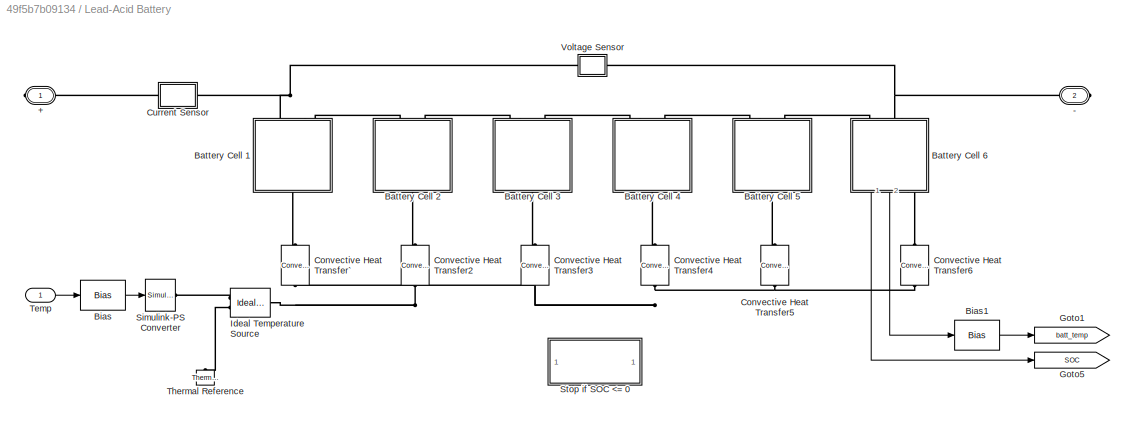
BLOCK [SubSystem] Lead-Acid Battery
  FunctionWithSeparateData = off
  InitFcn = ssc_lead_acid_battery_50Ah_ini
  MaskHideContents = off
  MinAlgLoopOccurrences = off
  Opaque = off
  Ports = [1, 0, 0, 0, 0, 0, 2]
  PropExecContextOutsideSubsystem = off
  RTWSystemCode = Auto
  RequestExecContextInheritance = off
BLOCK [PMIOPort] Lead-Acid Battery/+
  Port = 1
  Side = Right
  Tag = PMCPort
BLOCK [PMIOPort] Lead-Acid Battery/-
  Port = 2
  Side = Right
  Tag = PMCPort
BLOCK [SubSystem] Lead-Acid Battery/Battery Cell 1
  FunctionWithSeparateData = off
  MaskHideContents = off
  MinAlgLoopOccurrences = off
  Opaque = off
  Ports = [0, 0, 0, 0, 0, 2, 1]
  PropExecContextOutsideSubsystem = off
  RTWSystemCode = Auto
  RequestExecContextInheritance = off
BLOCK [PMIOPort] Lead-Acid Battery/Battery Cell 1/+
  Port = 2
  Side = Left
  Tag = PMCPort
BLOCK [PMIOPort] Lead-Acid Battery/Battery Cell 1/-
  Port = 3
  Side = Left
  Tag = PMCPort
BLOCK [Reference] Lead-Acid Battery/Battery Cell 1/C1  REF=LeadAcidBattery_lib/Main Branch
Capacitance, C1
  ClassName = mbCapacitance
  Cmin = 1e-5
  Cmin_unit = F
  ComponentPath = LeadAcidBattery.C1
  ComponentVariantNames = C1
  ComponentVariants = LeadAcidBattery.C1
  LocalVarDescs = |Current through variable|Voltage across variable|Charge variable
  LocalVarLogging = [0 0 0]
  LocalVarNames = |i|v|Q
  Ports = [0, 0, 0, 0, 0, 2, 1]
  Q_Log = off
  SchemaVersion = 1
  SourceBlock = LeadAcidBattery_lib/Main Branch\nCapacitance, C1
  SourceFile = LeadAcidBattery.C1
  SourceType = Main Branch\nCapacitance, C1
  Tau1 = Tau1
  Tau1_unit = s
  i_Log = off
  v_Log = off
BLOCK [Reference] Lead-Acid Battery/Battery Cell 1/Diode  REF=fl_lib/Electrical/Electrical Elements/Diode
  ClassName = pwl_diode
  ComponentPath = foundation.electrical.elements.pwl_diode
  ComponentVariantNames = pwl_diode
  ComponentVariants = foundation.electrical.elements.pwl_diode
  Goff = 1e-08
  Goff_unit = 1/Ohm
  LocalVarDescs = |Diode current (A)|Voltage across diode (V)|Power (W)
  LocalVarLogging = [0 0 0]
  LocalVarNames = |current|voltage|power
  Ports = [0, 0, 0, 0, 0, 1, 1]
  Ron = 0.3
  Ron_unit = Ohm
  SchemaVersion = 1
  SourceBlock = fl_lib/Electrical/Electrical Elements/Diode
  SourceFile = foundation.electrical.elements.pwl_diode
  SourceType = Diode
  Vf = 0.6
  Vf_unit = V
  i_Log = off
  v_Log = off
BLOCK [Reference] Lead-Acid Battery/Battery Cell 1/Ep  REF=fl_lib/Electrical/Electrical Sources/DC Voltage Source
  ClassName = dc_voltage_source
  ComponentPath = foundation.electrical.sources.dc_voltage
  ComponentVariantNames = dc_voltage
  ComponentVariants = foundation.electrical.sources.dc_voltage
  LocalVarDescs = |Current (A)|Voltage (V)|Power (W)
  LocalVarLogging = [0 0 0]
  LocalVarNames = |current|voltage|power
  Ports = [0, 0, 0, 0, 0, 1, 1]
  SchemaVersion = 1
  SourceBlock = fl_lib/Electrical/Electrical Sources/DC Voltage Source
  SourceFile = foundation.electrical.sources.dc_voltage
  SourceType = DC Voltage Source
  i_Log = off
  v0 = Ep
  v0_unit = V
  v_Log = off
BLOCK [PMIOPort] Lead-Acid Battery/Battery Cell 1/H
  Port = 1
  Side = Right
  Tag = PMCPort
BLOCK [Reference] Lead-Acid Battery/Battery Cell 1/Main Branch Voltage Source (Em)  REF=LeadAcidBattery_lib/Main Branch Voltage
Source, Em
  C0 = Costar
  C0_unit = s*A
  ClassName = mbVoltageSource
  ComponentPath = LeadAcidBattery.Em
  ComponentVariantNames = Em
  ComponentVariants = LeadAcidBattery.Em
  Em0 = Emo
  Em0_unit = V
  Iavg_Log = off
  Istar = Istar
  Istar_unit = A
  Kc = Kc
  Kc_unit = 1
  Ke = Ke
  Ke_unit = V/K
  LocalVarDescs = |Current through variable|Voltage across variable|usable battery capacity|total battery capacity|battery charge|average current given by (I/(Ts+1))
  LocalVarLogging = [0 0 0 0 0 0]
  LocalVarNames = |i|v|cap_u|cap_t|Q|Iavg
  Ports = [0, 0, 0, 0, 0, 3, 3]
  Qe_Log = off
  Qinit = Qe_init
  Qinit_unit = s*A
  SchemaVersion = 1
  SourceBlock = LeadAcidBattery_lib/Main Branch Voltage\nSource, Em
  SourceFile = LeadAcidBattery.Em
  SourceType = Main Branch Voltage\nSource, Em
  Tau1 = Tau1
  Tau1_unit = s
  delta = delta
  delta_unit = 1
  i_Log = off
  v_Log = off
BLOCK [Reference] Lead-Acid Battery/Battery Cell 1/R0  REF=LeadAcidBattery_lib/Terminal Resistance,
R0
  A0 = Ao
  A0_unit = 1
  ClassName = terminalResistance
  ComponentPath = LeadAcidBattery.R0
  ComponentVariantNames = R0
  ComponentVariants = LeadAcidBattery.R0
  LocalVarDescs = |Current through variable|Voltage across variable
  LocalVarLogging = [0 0]
  LocalVarNames = |i|v
  Ports = [0, 0, 0, 0, 0, 2, 1]
  R00 = Roo
  R00_unit = Ohm
  SchemaVersion = 1
  SourceBlock = LeadAcidBattery_lib/Terminal Resistance,\nR0
  SourceFile = LeadAcidBattery.R0
  SourceType = Terminal Resistance,\nR0
  i_Log = off
  v_Log = off
BLOCK [Reference] Lead-Acid Battery/Battery Cell 1/R1  REF=LeadAcidBattery_lib/Main Branch
Resistance, R1
  ClassName = R1
  ComponentPath = LeadAcidBattery.R1
  ComponentVariantNames = R1
  ComponentVariants = LeadAcidBattery.R1
  DOC_min = 1e-006
  DOC_min_unit = 1
  LocalVarDescs = |Current through variable|Voltage across variable
  LocalVarLogging = [0 0]
  LocalVarNames = |i|v
  Ports = [0, 0, 0, 0, 0, 2, 2]
  R10 = R10
  R10_unit = Ohm
  SchemaVersion = 1
  SourceBlock = LeadAcidBattery_lib/Main Branch\nResistance, R1
  SourceFile = LeadAcidBattery.R1
  SourceType = Main Branch\nResistance, R1
  i_Log = off
  v_Log = off
BLOCK [Reference] Lead-Acid Battery/Battery Cell 1/R2  REF=LeadAcidBattery_lib/Main Branch
Resistance, R2
  A21 = A21
  A21_unit = 1
  A22 = A22
  A22_unit = 1
  ClassName = mbResistance2
  ComponentPath = LeadAcidBattery.R2
  ComponentVariantNames = R2
  ComponentVariants = LeadAcidBattery.R2
  Istar = Istar
  Istar_unit = A
  LocalVarDescs = |Current through variable|Voltage across variable
  LocalVarLogging = [0 0]
  LocalVarNames = |i|v
  Ports = [0, 0, 0, 0, 0, 2, 2]
  R20 = R20
  R20_unit = Ohm
  SchemaVersion = 1
  SourceBlock = LeadAcidBattery_lib/Main Branch\nResistance, R2
  SourceFile = LeadAcidBattery.R2
  SourceType = Main Branch\nResistance, R2
  i_Log = off
  v_Log = off
BLOCK [Reference] Lead-Acid Battery/Battery Cell 1/Rp  REF=LeadAcidBattery_lib/Parasitic Branch
Resistance, Rp
  Ap = Ap
  Ap_unit = 1
  ClassName = pbResistance
  ComponentPath = LeadAcidBattery.Rp
  ComponentVariantNames = Rp
  ComponentVariants = LeadAcidBattery.Rp
  Gp0 = Gpo
  Gp0_unit = 1/Ohm
  LocalVarDescs = |Current through variable|Voltage across variable|average voltage given by (V/(Ts+1))
  LocalVarLogging = [0 0 0]
  LocalVarNames = |i|v|Vavg
  Ports = [0, 0, 0, 0, 0, 1, 2]
  SchemaVersion = 1
  SourceBlock = LeadAcidBattery_lib/Parasitic Branch\nResistance, Rp
  SourceFile = LeadAcidBattery.Rp
  SourceType = Parasitic Branch\nResistance, Rp
  Tf = theta_f
  Tf_unit = C
  Vp0 = Vpo
  Vp0_unit = V
  i_Log = off
  v_Log = off
BLOCK [SubSystem] Lead-Acid Battery/Battery Cell 1/Thermal Model
  FunctionWithSeparateData = off
  MaskHideContents = off
  MinAlgLoopOccurrences = off
  Opaque = off
  Ports = [0, 0, 0, 0, 0, 2, 2]
  PropExecContextOutsideSubsystem = off
  RTWSystemCode = Auto
  RequestExecContextInheritance = off
BLOCK [Reference] Lead-Acid Battery/Battery Cell 1/Thermal Model/Battery thermal mass  REF=fl_lib/Thermal/Thermal Elements/Thermal Mass
  ClassName = thermal_mass
  ComponentPath = foundation.thermal.elements.mass
  ComponentVariantNames = mass
  ComponentVariants = foundation.thermal.elements.mass
  LocalVarDescs = |Heat flow (J/s)|Mass temperature (K)
  LocalVarLogging = [0 0]
  LocalVarNames = |heat_flow|temperature
  Ports = [0, 0, 0, 0, 0, 1]
  Q_Log = off
  SchemaVersion = 1
  SourceBlock = fl_lib/Thermal/Thermal Elements/Thermal Mass
  SourceFile = foundation.thermal.elements.mass
  SourceType = Thermal Mass
  init_temp = theta_init+273
  init_temp_unit = K
  mass = 1
  mass_unit = kg
  sp_heat = Ctheta
  sp_heat_unit = J/kg/K
BLOCK [PMIOPort] Lead-Acid Battery/Battery Cell 1/Thermal Model/H
  Port = 2
  Side = Left
  Tag = PMCPort
BLOCK [Reference] Lead-Acid Battery/Battery Cell 1/Thermal Model/Ideal Heat Flow Source  REF=fl_lib/Thermal/Thermal Sources/Ideal Heat Flow
Source
  ClassName = heat_flow_src
  ComponentPath = foundation.thermal.sources.heat_flow
  ComponentVariantNames = heat_flow
  ComponentVariants = foundation.thermal.sources.heat_flow
  LocalVarDescs = |Heat flow through the source (J/s)|Temperature differential across the source (K)
  LocalVarLogging = [0 0]
  LocalVarNames = |heat_flow|T_differential
  Ports = [0, 0, 0, 0, 0, 1, 2]
  Q_Log = off
  SchemaVersion = 1
  SourceBlock = fl_lib/Thermal/Thermal Sources/Ideal Heat Flow\nSource
  SourceFile = foundation.thermal.sources.heat_flow
  SourceType = Ideal Heat Flow\nSource
  T_Log = off
BLOCK [Reference] Lead-Acid Battery/Battery Cell 1/Thermal Model/Ideal Temperature Sensor  REF=fl_lib/Thermal/Thermal Sensors/Ideal Temperature
Sensor
  ClassName = sensor_temperature
  ComponentPath = foundation.thermal.sensors.temperature
  ComponentVariantNames = temperature
  ComponentVariants = foundation.thermal.sensors.temperature
  LocalVarDescs = |Qs|Ts
  LocalVarLogging = []
  LocalVarNames = |Qs|Ts
  Ports = [0, 0, 0, 0, 0, 1, 2]
  Qs_Log = off
  SchemaVersion = 1
  SourceBlock = fl_lib/Thermal/Thermal Sensors/Ideal Temperature\nSensor
  SourceFile = foundation.thermal.sensors.temperature
  SourceType = Ideal Temperature\nSensor
  Ts_Log = off
BLOCK [PMIOPort] Lead-Acid Battery/Battery Cell 1/Thermal Model/Kt
  Port = 3
  Side = Right
  Tag = PMCPort
BLOCK [Reference] Lead-Acid Battery/Battery Cell 1/Thermal Model/Kt as a function of temperature  REF=fl_lib/Physical Signals/Lookup Tables/PS Lookup Table (1D)
  ClassName = ps_1d_tlu
  ComponentPath = foundation.physical_signal.lookup_tables.one_dimensional
  ComponentVariantNames = one_dimensional
  ComponentVariants = foundation.physical_signal.lookup_tables.one_dimensional
  LocalVarLogging = []
  Ports = [0, 0, 0, 0, 0, 1, 1]
  SchemaVersion = 1
  SourceBlock = fl_lib/Physical Signals/Lookup Tables/PS Lookup Table (1D)
  SourceFile = foundation.physical_signal.lookup_tables.one_dimensional
  SourceType = PS Lookup Table (1D)
  extrap_method = 1
  extrap_method_unit = 1
  interp_method = 1
  interp_method_unit = 1
  x_t = [theta_f, Kt_Temps]+273
  x_t_unit = 1
  y_t = [0 Kt]
  y_t_unit = 1
BLOCK [PMIOPort] Lead-Acid Battery/Battery Cell 1/Thermal Model/Ps
  Port = 1
  Side = Left
  Tag = PMCPort
BLOCK [PMIOPort] Lead-Acid Battery/Battery Cell 1/Thermal Model/T
  Port = 4
  Side = Right
  Tag = PMCPort
BLOCK [Reference] Lead-Acid Battery/Battery Cell 1/Thermal Model/Thermal Reference1  REF=fl_lib/Thermal/Thermal Elements/Thermal Reference
  ClassName = reference_thermal
  ComponentPath = foundation.thermal.elements.reference
  ComponentVariantNames = reference
  ComponentVariants = foundation.thermal.elements.reference
  LocalVarDescs = |Q
  LocalVarLogging = []
  LocalVarNames = |Q
  Ports = [0, 0, 0, 0, 0, 1]
  Q_Log = off
  SchemaVersion = 1
  SourceBlock = fl_lib/Thermal/Thermal Elements/Thermal Reference
  SourceFile = foundation.thermal.elements.reference
  SourceType = Thermal Reference
BLOCK [Reference] Lead-Acid Battery/Battery Cell 1/Thermal Model/Thermal Reference2  REF=fl_lib/Thermal/Thermal Elements/Thermal Reference
  ClassName = reference_thermal
  ComponentPath = foundation.thermal.elements.reference
  ComponentVariantNames = reference
  ComponentVariants = foundation.thermal.elements.reference
  LocalVarDescs = |Q
  LocalVarLogging = []
  LocalVarNames = |Q
  Ports = [0, 0, 0, 0, 0, 1]
  Q_Log = off
  SchemaVersion = 1
  SourceBlock = fl_lib/Thermal/Thermal Elements/Thermal Reference
  SourceFile = foundation.thermal.elements.reference
  SourceType = Thermal Reference
BLOCK [SubSystem] Lead-Acid Battery/Battery Cell 2
  FunctionWithSeparateData = off
  MaskHideContents = off
  MinAlgLoopOccurrences = off
  Opaque = off
  Ports = [0, 0, 0, 0, 0, 2, 1]
  PropExecContextOutsideSubsystem = off
  RTWSystemCode = Auto
  RequestExecContextInheritance = off
BLOCK [PMIOPort] Lead-Acid Battery/Battery Cell 2/+
  Port = 2
  Side = Left
  Tag = PMCPort
BLOCK [PMIOPort] Lead-Acid Battery/Battery Cell 2/-
  Port = 3
  Side = Left
  Tag = PMCPort
BLOCK [Reference] Lead-Acid Battery/Battery Cell 2/C1  REF=LeadAcidBattery_lib/Main Branch
Capacitance, C1
  ClassName = mbCapacitance
  Cmin = 1e-5
  Cmin_unit = F
  ComponentPath = LeadAcidBattery.C1
  ComponentVariantNames = C1
  ComponentVariants = LeadAcidBattery.C1
  LocalVarDescs = |Current through variable|Voltage across variable|Charge variable
  LocalVarLogging = [0 0 0]
  LocalVarNames = |i|v|Q
  Ports = [0, 0, 0, 0, 0, 2, 1]
  Q_Log = off
  SchemaVersion = 1
  SourceBlock = LeadAcidBattery_lib/Main Branch\nCapacitance, C1
  SourceFile = LeadAcidBattery.C1
  SourceType = Main Branch\nCapacitance, C1
  Tau1 = Tau1
  Tau1_unit = s
  i_Log = off
  v_Log = off
BLOCK [Reference] Lead-Acid Battery/Battery Cell 2/Diode  REF=fl_lib/Electrical/Electrical Elements/Diode
  ClassName = pwl_diode
  ComponentPath = foundation.electrical.elements.pwl_diode
  ComponentVariantNames = pwl_diode
  ComponentVariants = foundation.electrical.elements.pwl_diode
  Goff = 1e-08
  Goff_unit = 1/Ohm
  LocalVarDescs = |Diode current (A)|Voltage across diode (V)|Power (W)
  LocalVarLogging = [0 0 0]
  LocalVarNames = |current|voltage|power
  Ports = [0, 0, 0, 0, 0, 1, 1]
  Ron = 0.3
  Ron_unit = Ohm
  SchemaVersion = 1
  SourceBlock = fl_lib/Electrical/Electrical Elements/Diode
  SourceFile = foundation.electrical.elements.pwl_diode
  SourceType = Diode
  Vf = 0.6
  Vf_unit = V
  i_Log = off
  v_Log = off
BLOCK [Reference] Lead-Acid Battery/Battery Cell 2/Ep  REF=fl_lib/Electrical/Electrical Sources/DC Voltage Source
  ClassName = dc_voltage_source
  ComponentPath = foundation.electrical.sources.dc_voltage
  ComponentVariantNames = dc_voltage
  ComponentVariants = foundation.electrical.sources.dc_voltage
  LocalVarDescs = |Current (A)|Voltage (V)|Power (W)
  LocalVarLogging = [0 0 0]
  LocalVarNames = |current|voltage|power
  Ports = [0, 0, 0, 0, 0, 1, 1]
  SchemaVersion = 1
  SourceBlock = fl_lib/Electrical/Electrical Sources/DC Voltage Source
  SourceFile = foundation.electrical.sources.dc_voltage
  SourceType = DC Voltage Source
  i_Log = off
  v0 = Ep
  v0_unit = V
  v_Log = off
BLOCK [PMIOPort] Lead-Acid Battery/Battery Cell 2/H
  Port = 1
  Side = Right
  Tag = PMCPort
BLOCK [Reference] Lead-Acid Battery/Battery Cell 2/Main Branch Voltage Source (Em)  REF=LeadAcidBattery_lib/Main Branch Voltage
Source, Em
  C0 = Costar
  C0_unit = s*A
  ClassName = mbVoltageSource
  ComponentPath = LeadAcidBattery.Em
  ComponentVariantNames = Em
  ComponentVariants = LeadAcidBattery.Em
  Em0 = Emo
  Em0_unit = V
  Iavg_Log = off
  Istar = Istar
  Istar_unit = A
  Kc = Kc
  Kc_unit = 1
  Ke = Ke
  Ke_unit = V/K
  LocalVarDescs = |Current through variable|Voltage across variable|usable battery capacity|total battery capacity|battery charge|average current given by (I/(Ts+1))
  LocalVarLogging = [0 0 0 0 0 0]
  LocalVarNames = |i|v|cap_u|cap_t|Q|Iavg
  Ports = [0, 0, 0, 0, 0, 3, 3]
  Qe_Log = off
  Qinit = Qe_init
  Qinit_unit = s*A
  SchemaVersion = 1
  SourceBlock = LeadAcidBattery_lib/Main Branch Voltage\nSource, Em
  SourceFile = LeadAcidBattery.Em
  SourceType = Main Branch Voltage\nSource, Em
  Tau1 = Tau1
  Tau1_unit = s
  delta = delta
  delta_unit = 1
  i_Log = off
  v_Log = off
BLOCK [Reference] Lead-Acid Battery/Battery Cell 2/R0  REF=LeadAcidBattery_lib/Terminal Resistance,
R0
  A0 = Ao
  A0_unit = 1
  ClassName = terminalResistance
  ComponentPath = LeadAcidBattery.R0
  ComponentVariantNames = R0
  ComponentVariants = LeadAcidBattery.R0
  LocalVarDescs = |Current through variable|Voltage across variable
  LocalVarLogging = [0 0]
  LocalVarNames = |i|v
  Ports = [0, 0, 0, 0, 0, 2, 1]
  R00 = Roo
  R00_unit = Ohm
  SchemaVersion = 1
  SourceBlock = LeadAcidBattery_lib/Terminal Resistance,\nR0
  SourceFile = LeadAcidBattery.R0
  SourceType = Terminal Resistance,\nR0
  i_Log = off
  v_Log = off
BLOCK [Reference] Lead-Acid Battery/Battery Cell 2/R1  REF=LeadAcidBattery_lib/Main Branch
Resistance, R1
  ClassName = R1
  ComponentPath = LeadAcidBattery.R1
  ComponentVariantNames = R1
  ComponentVariants = LeadAcidBattery.R1
  DOC_min = 1e-006
  DOC_min_unit = 1
  LocalVarDescs = |Current through variable|Voltage across variable
  LocalVarLogging = [0 0]
  LocalVarNames = |i|v
  Ports = [0, 0, 0, 0, 0, 2, 2]
  R10 = R10
  R10_unit = Ohm
  SchemaVersion = 1
  SourceBlock = LeadAcidBattery_lib/Main Branch\nResistance, R1
  SourceFile = LeadAcidBattery.R1
  SourceType = Main Branch\nResistance, R1
  i_Log = off
  v_Log = off
BLOCK [Reference] Lead-Acid Battery/Battery Cell 2/R2  REF=LeadAcidBattery_lib/Main Branch
Resistance, R2
  A21 = A21
  A21_unit = 1
  A22 = A22
  A22_unit = 1
  ClassName = mbResistance2
  ComponentPath = LeadAcidBattery.R2
  ComponentVariantNames = R2
  ComponentVariants = LeadAcidBattery.R2
  Istar = Istar
  Istar_unit = A
  LocalVarDescs = |Current through variable|Voltage across variable
  LocalVarLogging = [0 0]
  LocalVarNames = |i|v
  Ports = [0, 0, 0, 0, 0, 2, 2]
  R20 = R20
  R20_unit = Ohm
  SchemaVersion = 1
  SourceBlock = LeadAcidBattery_lib/Main Branch\nResistance, R2
  SourceFile = LeadAcidBattery.R2
  SourceType = Main Branch\nResistance, R2
  i_Log = off
  v_Log = off
BLOCK [Reference] Lead-Acid Battery/Battery Cell 2/Rp  REF=LeadAcidBattery_lib/Parasitic Branch
Resistance, Rp
  Ap = Ap
  Ap_unit = 1
  ClassName = pbResistance
  ComponentPath = LeadAcidBattery.Rp
  ComponentVariantNames = Rp
  ComponentVariants = LeadAcidBattery.Rp
  Gp0 = Gpo
  Gp0_unit = 1/Ohm
  LocalVarDescs = |Current through variable|Voltage across variable|average voltage given by (V/(Ts+1))
  LocalVarLogging = [0 0 0]
  LocalVarNames = |i|v|Vavg
  Ports = [0, 0, 0, 0, 0, 1, 2]
  SchemaVersion = 1
  SourceBlock = LeadAcidBattery_lib/Parasitic Branch\nResistance, Rp
  SourceFile = LeadAcidBattery.Rp
  SourceType = Parasitic Branch\nResistance, Rp
  Tf = theta_f
  Tf_unit = C
  Vp0 = Vpo
  Vp0_unit = V
  i_Log = off
  v_Log = off
BLOCK [SubSystem] Lead-Acid Battery/Battery Cell 2/Thermal Model
  FunctionWithSeparateData = off
  MaskHideContents = off
  MinAlgLoopOccurrences = off
  Opaque = off
  Ports = [0, 0, 0, 0, 0, 2, 2]
  PropExecContextOutsideSubsystem = off
  RTWSystemCode = Auto
  RequestExecContextInheritance = off
BLOCK [Reference] Lead-Acid Battery/Battery Cell 2/Thermal Model/Battery thermal mass  REF=fl_lib/Thermal/Thermal Elements/Thermal Mass
  ClassName = thermal_mass
  ComponentPath = foundation.thermal.elements.mass
  ComponentVariantNames = mass
  ComponentVariants = foundation.thermal.elements.mass
  LocalVarDescs = |Heat flow (J/s)|Mass temperature (K)
  LocalVarLogging = [0 0]
  LocalVarNames = |heat_flow|temperature
  Ports = [0, 0, 0, 0, 0, 1]
  Q_Log = off
  SchemaVersion = 1
  SourceBlock = fl_lib/Thermal/Thermal Elements/Thermal Mass
  SourceFile = foundation.thermal.elements.mass
  SourceType = Thermal Mass
  init_temp = theta_init+273
  init_temp_unit = K
  mass = 1
  mass_unit = kg
  sp_heat = Ctheta
  sp_heat_unit = J/kg/K
BLOCK [PMIOPort] Lead-Acid Battery/Battery Cell 2/Thermal Model/H
  Port = 2
  Side = Left
  Tag = PMCPort
BLOCK [Reference] Lead-Acid Battery/Battery Cell 2/Thermal Model/Ideal Heat Flow Source  REF=fl_lib/Thermal/Thermal Sources/Ideal Heat Flow
Source
  ClassName = heat_flow_src
  ComponentPath = foundation.thermal.sources.heat_flow
  ComponentVariantNames = heat_flow
  ComponentVariants = foundation.thermal.sources.heat_flow
  LocalVarDescs = |Heat flow through the source (J/s)|Temperature differential across the source (K)
  LocalVarLogging = [0 0]
  LocalVarNames = |heat_flow|T_differential
  Ports = [0, 0, 0, 0, 0, 1, 2]
  Q_Log = off
  SchemaVersion = 1
  SourceBlock = fl_lib/Thermal/Thermal Sources/Ideal Heat Flow\nSource
  SourceFile = foundation.thermal.sources.heat_flow
  SourceType = Ideal Heat Flow\nSource
  T_Log = off
BLOCK [Reference] Lead-Acid Battery/Battery Cell 2/Thermal Model/Ideal Temperature Sensor  REF=fl_lib/Thermal/Thermal Sensors/Ideal Temperature
Sensor
  ClassName = sensor_temperature
  ComponentPath = foundation.thermal.sensors.temperature
  ComponentVariantNames = temperature
  ComponentVariants = foundation.thermal.sensors.temperature
  LocalVarDescs = |Qs|Ts
  LocalVarLogging = []
  LocalVarNames = |Qs|Ts
  Ports = [0, 0, 0, 0, 0, 1, 2]
  Qs_Log = off
  SchemaVersion = 1
  SourceBlock = fl_lib/Thermal/Thermal Sensors/Ideal Temperature\nSensor
  SourceFile = foundation.thermal.sensors.temperature
  SourceType = Ideal Temperature\nSensor
  Ts_Log = off
BLOCK [PMIOPort] Lead-Acid Battery/Battery Cell 2/Thermal Model/Kt
  Port = 3
  Side = Right
  Tag = PMCPort
BLOCK [Reference] Lead-Acid Battery/Battery Cell 2/Thermal Model/Kt as a function of temperature  REF=fl_lib/Physical Signals/Lookup Tables/PS Lookup Table (1D)
  ClassName = ps_1d_tlu
  ComponentPath = foundation.physical_signal.lookup_tables.one_dimensional
  ComponentVariantNames = one_dimensional
  ComponentVariants = foundation.physical_signal.lookup_tables.one_dimensional
  LocalVarLogging = []
  Ports = [0, 0, 0, 0, 0, 1, 1]
  SchemaVersion = 1
  SourceBlock = fl_lib/Physical Signals/Lookup Tables/PS Lookup Table (1D)
  SourceFile = foundation.physical_signal.lookup_tables.one_dimensional
  SourceType = PS Lookup Table (1D)
  extrap_method = 1
  extrap_method_unit = 1
  interp_method = 1
  interp_method_unit = 1
  x_t = [theta_f, Kt_Temps]+273
  x_t_unit = 1
  y_t = [0 Kt]
  y_t_unit = 1
BLOCK [PMIOPort] Lead-Acid Battery/Battery Cell 2/Thermal Model/Ps
  Port = 1
  Side = Left
  Tag = PMCPort
BLOCK [PMIOPort] Lead-Acid Battery/Battery Cell 2/Thermal Model/T
  Port = 4
  Side = Right
  Tag = PMCPort
BLOCK [Reference] Lead-Acid Battery/Battery Cell 2/Thermal Model/Thermal Reference1  REF=fl_lib/Thermal/Thermal Elements/Thermal Reference
  ClassName = reference_thermal
  ComponentPath = foundation.thermal.elements.reference
  ComponentVariantNames = reference
  ComponentVariants = foundation.thermal.elements.reference
  LocalVarDescs = |Q
  LocalVarLogging = []
  LocalVarNames = |Q
  Ports = [0, 0, 0, 0, 0, 1]
  Q_Log = off
  SchemaVersion = 1
  SourceBlock = fl_lib/Thermal/Thermal Elements/Thermal Reference
  SourceFile = foundation.thermal.elements.reference
  SourceType = Thermal Reference
BLOCK [Reference] Lead-Acid Battery/Battery Cell 2/Thermal Model/Thermal Reference2  REF=fl_lib/Thermal/Thermal Elements/Thermal Reference
  ClassName = reference_thermal
  ComponentPath = foundation.thermal.elements.reference
  ComponentVariantNames = reference
  ComponentVariants = foundation.thermal.elements.reference
  LocalVarDescs = |Q
  LocalVarLogging = []
  LocalVarNames = |Q
  Ports = [0, 0, 0, 0, 0, 1]
  Q_Log = off
  SchemaVersion = 1
  SourceBlock = fl_lib/Thermal/Thermal Elements/Thermal Reference
  SourceFile = foundation.thermal.elements.reference
  SourceType = Thermal Reference
BLOCK [SubSystem] Lead-Acid Battery/Battery Cell 3
  FunctionWithSeparateData = off
  MaskHideContents = off
  MinAlgLoopOccurrences = off
  Opaque = off
  Ports = [0, 0, 0, 0, 0, 2, 1]
  PropExecContextOutsideSubsystem = off
  RTWSystemCode = Auto
  RequestExecContextInheritance = off
BLOCK [PMIOPort] Lead-Acid Battery/Battery Cell 3/+
  Port = 2
  Side = Left
  Tag = PMCPort
BLOCK [PMIOPort] Lead-Acid Battery/Battery Cell 3/-
  Port = 3
  Side = Left
  Tag = PMCPort
BLOCK [Reference] Lead-Acid Battery/Battery Cell 3/C1  REF=LeadAcidBattery_lib/Main Branch
Capacitance, C1
  ClassName = mbCapacitance
  Cmin = 1e-5
  Cmin_unit = F
  ComponentPath = LeadAcidBattery.C1
  ComponentVariantNames = C1
  ComponentVariants = LeadAcidBattery.C1
  LocalVarDescs = |Current through variable|Voltage across variable|Charge variable
  LocalVarLogging = [0 0 0]
  LocalVarNames = |i|v|Q
  Ports = [0, 0, 0, 0, 0, 2, 1]
  Q_Log = off
  SchemaVersion = 1
  SourceBlock = LeadAcidBattery_lib/Main Branch\nCapacitance, C1
  SourceFile = LeadAcidBattery.C1
  SourceType = Main Branch\nCapacitance, C1
  Tau1 = Tau1
  Tau1_unit = s
  i_Log = off
  v_Log = off
BLOCK [Reference] Lead-Acid Battery/Battery Cell 3/Diode  REF=fl_lib/Electrical/Electrical Elements/Diode
  ClassName = pwl_diode
  ComponentPath = foundation.electrical.elements.pwl_diode
  ComponentVariantNames = pwl_diode
  ComponentVariants = foundation.electrical.elements.pwl_diode
  Goff = 1e-08
  Goff_unit = 1/Ohm
  LocalVarDescs = |Diode current (A)|Voltage across diode (V)|Power (W)
  LocalVarLogging = [0 0 0]
  LocalVarNames = |current|voltage|power
  Ports = [0, 0, 0, 0, 0, 1, 1]
  Ron = 0.3
  Ron_unit = Ohm
  SchemaVersion = 1
  SourceBlock = fl_lib/Electrical/Electrical Elements/Diode
  SourceFile = foundation.electrical.elements.pwl_diode
  SourceType = Diode
  Vf = 0.6
  Vf_unit = V
  i_Log = off
  v_Log = off
BLOCK [Reference] Lead-Acid Battery/Battery Cell 3/Ep  REF=fl_lib/Electrical/Electrical Sources/DC Voltage Source
  ClassName = dc_voltage_source
  ComponentPath = foundation.electrical.sources.dc_voltage
  ComponentVariantNames = dc_voltage
  ComponentVariants = foundation.electrical.sources.dc_voltage
  LocalVarDescs = |Current (A)|Voltage (V)|Power (W)
  LocalVarLogging = [0 0 0]
  LocalVarNames = |current|voltage|power
  Ports = [0, 0, 0, 0, 0, 1, 1]
  SchemaVersion = 1
  SourceBlock = fl_lib/Electrical/Electrical Sources/DC Voltage Source
  SourceFile = foundation.electrical.sources.dc_voltage
  SourceType = DC Voltage Source
  i_Log = off
  v0 = Ep
  v0_unit = V
  v_Log = off
BLOCK [PMIOPort] Lead-Acid Battery/Battery Cell 3/H
  Port = 1
  Side = Right
  Tag = PMCPort
BLOCK [Reference] Lead-Acid Battery/Battery Cell 3/Main Branch Voltage Source (Em)  REF=LeadAcidBattery_lib/Main Branch Voltage
Source, Em
  C0 = Costar
  C0_unit = s*A
  ClassName = mbVoltageSource
  ComponentPath = LeadAcidBattery.Em
  ComponentVariantNames = Em
  ComponentVariants = LeadAcidBattery.Em
  Em0 = Emo
  Em0_unit = V
  Iavg_Log = off
  Istar = Istar
  Istar_unit = A
  Kc = Kc
  Kc_unit = 1
  Ke = Ke
  Ke_unit = V/K
  LocalVarDescs = |Current through variable|Voltage across variable|usable battery capacity|total battery capacity|battery charge|average current given by (I/(Ts+1))
  LocalVarLogging = [0 0 0 0 0 0]
  LocalVarNames = |i|v|cap_u|cap_t|Q|Iavg
  Ports = [0, 0, 0, 0, 0, 3, 3]
  Qe_Log = off
  Qinit = Qe_init
  Qinit_unit = s*A
  SchemaVersion = 1
  SourceBlock = LeadAcidBattery_lib/Main Branch Voltage\nSource, Em
  SourceFile = LeadAcidBattery.Em
  SourceType = Main Branch Voltage\nSource, Em
  Tau1 = Tau1
  Tau1_unit = s
  delta = delta
  delta_unit = 1
  i_Log = off
  v_Log = off
BLOCK [Reference] Lead-Acid Battery/Battery Cell 3/R0  REF=LeadAcidBattery_lib/Terminal Resistance,
R0
  A0 = Ao
  A0_unit = 1
  ClassName = terminalResistance
  ComponentPath = LeadAcidBattery.R0
  ComponentVariantNames = R0
  ComponentVariants = LeadAcidBattery.R0
  LocalVarDescs = |Current through variable|Voltage across variable
  LocalVarLogging = [0 0]
  LocalVarNames = |i|v
  Ports = [0, 0, 0, 0, 0, 2, 1]
  R00 = Roo
  R00_unit = Ohm
  SchemaVersion = 1
  SourceBlock = LeadAcidBattery_lib/Terminal Resistance,\nR0
  SourceFile = LeadAcidBattery.R0
  SourceType = Terminal Resistance,\nR0
  i_Log = off
  v_Log = off
BLOCK [Reference] Lead-Acid Battery/Battery Cell 3/R1  REF=LeadAcidBattery_lib/Main Branch
Resistance, R1
  ClassName = R1
  ComponentPath = LeadAcidBattery.R1
  ComponentVariantNames = R1
  ComponentVariants = LeadAcidBattery.R1
  DOC_min = 1e-006
  DOC_min_unit = 1
  LocalVarDescs = |Current through variable|Voltage across variable
  LocalVarLogging = [0 0]
  LocalVarNames = |i|v
  Ports = [0, 0, 0, 0, 0, 2, 2]
  R10 = R10
  R10_unit = Ohm
  SchemaVersion = 1
  SourceBlock = LeadAcidBattery_lib/Main Branch\nResistance, R1
  SourceFile = LeadAcidBattery.R1
  SourceType = Main Branch\nResistance, R1
  i_Log = off
  v_Log = off
BLOCK [Reference] Lead-Acid Battery/Battery Cell 3/R2  REF=LeadAcidBattery_lib/Main Branch
Resistance, R2
  A21 = A21
  A21_unit = 1
  A22 = A22
  A22_unit = 1
  ClassName = mbResistance2
  ComponentPath = LeadAcidBattery.R2
  ComponentVariantNames = R2
  ComponentVariants = LeadAcidBattery.R2
  Istar = Istar
  Istar_unit = A
  LocalVarDescs = |Current through variable|Voltage across variable
  LocalVarLogging = [0 0]
  LocalVarNames = |i|v
  Ports = [0, 0, 0, 0, 0, 2, 2]
  R20 = R20
  R20_unit = Ohm
  SchemaVersion = 1
  SourceBlock = LeadAcidBattery_lib/Main Branch\nResistance, R2
  SourceFile = LeadAcidBattery.R2
  SourceType = Main Branch\nResistance, R2
  i_Log = off
  v_Log = off
BLOCK [Reference] Lead-Acid Battery/Battery Cell 3/Rp  REF=LeadAcidBattery_lib/Parasitic Branch
Resistance, Rp
  Ap = Ap
  Ap_unit = 1
  ClassName = pbResistance
  ComponentPath = LeadAcidBattery.Rp
  ComponentVariantNames = Rp
  ComponentVariants = LeadAcidBattery.Rp
  Gp0 = Gpo
  Gp0_unit = 1/Ohm
  LocalVarDescs = |Current through variable|Voltage across variable|average voltage given by (V/(Ts+1))
  LocalVarLogging = [0 0 0]
  LocalVarNames = |i|v|Vavg
  Ports = [0, 0, 0, 0, 0, 1, 2]
  SchemaVersion = 1
  SourceBlock = LeadAcidBattery_lib/Parasitic Branch\nResistance, Rp
  SourceFile = LeadAcidBattery.Rp
  SourceType = Parasitic Branch\nResistance, Rp
  Tf = theta_f
  Tf_unit = C
  Vp0 = Vpo
  Vp0_unit = V
  i_Log = off
  v_Log = off
BLOCK [SubSystem] Lead-Acid Battery/Battery Cell 3/Thermal Model
  FunctionWithSeparateData = off
  MaskHideContents = off
  MinAlgLoopOccurrences = off
  Opaque = off
  Ports = [0, 0, 0, 0, 0, 2, 2]
  PropExecContextOutsideSubsystem = off
  RTWSystemCode = Auto
  RequestExecContextInheritance = off
BLOCK [Reference] Lead-Acid Battery/Battery Cell 3/Thermal Model/Battery thermal mass  REF=fl_lib/Thermal/Thermal Elements/Thermal Mass
  ClassName = thermal_mass
  ComponentPath = foundation.thermal.elements.mass
  ComponentVariantNames = mass
  ComponentVariants = foundation.thermal.elements.mass
  LocalVarDescs = |Heat flow (J/s)|Mass temperature (K)
  LocalVarLogging = [0 0]
  LocalVarNames = |heat_flow|temperature
  Ports = [0, 0, 0, 0, 0, 1]
  Q_Log = off
  SchemaVersion = 1
  SourceBlock = fl_lib/Thermal/Thermal Elements/Thermal Mass
  SourceFile = foundation.thermal.elements.mass
  SourceType = Thermal Mass
  init_temp = theta_init+273
  init_temp_unit = K
  mass = 1
  mass_unit = kg
  sp_heat = Ctheta
  sp_heat_unit = J/kg/K
BLOCK [PMIOPort] Lead-Acid Battery/Battery Cell 3/Thermal Model/H
  Port = 2
  Side = Left
  Tag = PMCPort
BLOCK [Reference] Lead-Acid Battery/Battery Cell 3/Thermal Model/Ideal Heat Flow Source  REF=fl_lib/Thermal/Thermal Sources/Ideal Heat Flow
Source
  ClassName = heat_flow_src
  ComponentPath = foundation.thermal.sources.heat_flow
  ComponentVariantNames = heat_flow
  ComponentVariants = foundation.thermal.sources.heat_flow
  LocalVarDescs = |Heat flow through the source (J/s)|Temperature differential across the source (K)
  LocalVarLogging = [0 0]
  LocalVarNames = |heat_flow|T_differential
  Ports = [0, 0, 0, 0, 0, 1, 2]
  Q_Log = off
  SchemaVersion = 1
  SourceBlock = fl_lib/Thermal/Thermal Sources/Ideal Heat Flow\nSource
  SourceFile = foundation.thermal.sources.heat_flow
  SourceType = Ideal Heat Flow\nSource
  T_Log = off
BLOCK [Reference] Lead-Acid Battery/Battery Cell 3/Thermal Model/Ideal Temperature Sensor  REF=fl_lib/Thermal/Thermal Sensors/Ideal Temperature
Sensor
  ClassName = sensor_temperature
  ComponentPath = foundation.thermal.sensors.temperature
  ComponentVariantNames = temperature
  ComponentVariants = foundation.thermal.sensors.temperature
  LocalVarDescs = |Qs|Ts
  LocalVarLogging = []
  LocalVarNames = |Qs|Ts
  Ports = [0, 0, 0, 0, 0, 1, 2]
  Qs_Log = off
  SchemaVersion = 1
  SourceBlock = fl_lib/Thermal/Thermal Sensors/Ideal Temperature\nSensor
  SourceFile = foundation.thermal.sensors.temperature
  SourceType = Ideal Temperature\nSensor
  Ts_Log = off
BLOCK [PMIOPort] Lead-Acid Battery/Battery Cell 3/Thermal Model/Kt
  Port = 3
  Side = Right
  Tag = PMCPort
BLOCK [Reference] Lead-Acid Battery/Battery Cell 3/Thermal Model/Kt as a function of temperature  REF=fl_lib/Physical Signals/Lookup Tables/PS Lookup Table (1D)
  ClassName = ps_1d_tlu
  ComponentPath = foundation.physical_signal.lookup_tables.one_dimensional
  ComponentVariantNames = one_dimensional
  ComponentVariants = foundation.physical_signal.lookup_tables.one_dimensional
  LocalVarLogging = []
  Ports = [0, 0, 0, 0, 0, 1, 1]
  SchemaVersion = 1
  SourceBlock = fl_lib/Physical Signals/Lookup Tables/PS Lookup Table (1D)
  SourceFile = foundation.physical_signal.lookup_tables.one_dimensional
  SourceType = PS Lookup Table (1D)
  extrap_method = 1
  extrap_method_unit = 1
  interp_method = 1
  interp_method_unit = 1
  x_t = [theta_f, Kt_Temps]+273
  x_t_unit = 1
  y_t = [0 Kt]
  y_t_unit = 1
BLOCK [PMIOPort] Lead-Acid Battery/Battery Cell 3/Thermal Model/Ps
  Port = 1
  Side = Left
  Tag = PMCPort
BLOCK [PMIOPort] Lead-Acid Battery/Battery Cell 3/Thermal Model/T
  Port = 4
  Side = Right
  Tag = PMCPort
BLOCK [Reference] Lead-Acid Battery/Battery Cell 3/Thermal Model/Thermal Reference1  REF=fl_lib/Thermal/Thermal Elements/Thermal Reference
  ClassName = reference_thermal
  ComponentPath = foundation.thermal.elements.reference
  ComponentVariantNames = reference
  ComponentVariants = foundation.thermal.elements.reference
  LocalVarDescs = |Q
  LocalVarLogging = []
  LocalVarNames = |Q
  Ports = [0, 0, 0, 0, 0, 1]
  Q_Log = off
  SchemaVersion = 1
  SourceBlock = fl_lib/Thermal/Thermal Elements/Thermal Reference
  SourceFile = foundation.thermal.elements.reference
  SourceType = Thermal Reference
BLOCK [Reference] Lead-Acid Battery/Battery Cell 3/Thermal Model/Thermal Reference2  REF=fl_lib/Thermal/Thermal Elements/Thermal Reference
  ClassName = reference_thermal
  ComponentPath = foundation.thermal.elements.reference
  ComponentVariantNames = reference
  ComponentVariants = foundation.thermal.elements.reference
  LocalVarDescs = |Q
  LocalVarLogging = []
  LocalVarNames = |Q
  Ports = [0, 0, 0, 0, 0, 1]
  Q_Log = off
  SchemaVersion = 1
  SourceBlock = fl_lib/Thermal/Thermal Elements/Thermal Reference
  SourceFile = foundation.thermal.elements.reference
  SourceType = Thermal Reference
BLOCK [SubSystem] Lead-Acid Battery/Battery Cell 4
  FunctionWithSeparateData = off
  MaskHideContents = off
  MinAlgLoopOccurrences = off
  Opaque = off
  Ports = [0, 0, 0, 0, 0, 2, 1]
  PropExecContextOutsideSubsystem = off
  RTWSystemCode = Auto
  RequestExecContextInheritance = off
BLOCK [PMIOPort] Lead-Acid Battery/Battery Cell 4/+
  Port = 2
  Side = Left
  Tag = PMCPort
BLOCK [PMIOPort] Lead-Acid Battery/Battery Cell 4/-
  Port = 3
  Side = Left
  Tag = PMCPort
BLOCK [Reference] Lead-Acid Battery/Battery Cell 4/C1  REF=LeadAcidBattery_lib/Main Branch
Capacitance, C1
  ClassName = mbCapacitance
  Cmin = 1e-5
  Cmin_unit = F
  ComponentPath = LeadAcidBattery.C1
  ComponentVariantNames = C1
  ComponentVariants = LeadAcidBattery.C1
  LocalVarDescs = |Current through variable|Voltage across variable|Charge variable
  LocalVarLogging = [0 0 0]
  LocalVarNames = |i|v|Q
  Ports = [0, 0, 0, 0, 0, 2, 1]
  Q_Log = off
  SchemaVersion = 1
  SourceBlock = LeadAcidBattery_lib/Main Branch\nCapacitance, C1
  SourceFile = LeadAcidBattery.C1
  SourceType = Main Branch\nCapacitance, C1
  Tau1 = Tau1
  Tau1_unit = s
  i_Log = off
  v_Log = off
BLOCK [Reference] Lead-Acid Battery/Battery Cell 4/Diode  REF=fl_lib/Electrical/Electrical Elements/Diode
  ClassName = pwl_diode
  ComponentPath = foundation.electrical.elements.pwl_diode
  ComponentVariantNames = pwl_diode
  ComponentVariants = foundation.electrical.elements.pwl_diode
  Goff = 1e-08
  Goff_unit = 1/Ohm
  LocalVarDescs = |Diode current (A)|Voltage across diode (V)|Power (W)
  LocalVarLogging = [0 0 0]
  LocalVarNames = |current|voltage|power
  Ports = [0, 0, 0, 0, 0, 1, 1]
  Ron = 0.3
  Ron_unit = Ohm
  SchemaVersion = 1
  SourceBlock = fl_lib/Electrical/Electrical Elements/Diode
  SourceFile = foundation.electrical.elements.pwl_diode
  SourceType = Diode
  Vf = 0.6
  Vf_unit = V
  i_Log = off
  v_Log = off
BLOCK [Reference] Lead-Acid Battery/Battery Cell 4/Ep  REF=fl_lib/Electrical/Electrical Sources/DC Voltage Source
  ClassName = dc_voltage_source
  ComponentPath = foundation.electrical.sources.dc_voltage
  ComponentVariantNames = dc_voltage
  ComponentVariants = foundation.electrical.sources.dc_voltage
  LocalVarDescs = |Current (A)|Voltage (V)|Power (W)
  LocalVarLogging = [0 0 0]
  LocalVarNames = |current|voltage|power
  Ports = [0, 0, 0, 0, 0, 1, 1]
  SchemaVersion = 1
  SourceBlock = fl_lib/Electrical/Electrical Sources/DC Voltage Source
  SourceFile = foundation.electrical.sources.dc_voltage
  SourceType = DC Voltage Source
  i_Log = off
  v0 = Ep
  v0_unit = V
  v_Log = off
BLOCK [PMIOPort] Lead-Acid Battery/Battery Cell 4/H
  Port = 1
  Side = Right
  Tag = PMCPort
BLOCK [Reference] Lead-Acid Battery/Battery Cell 4/Main Branch Voltage Source (Em)  REF=LeadAcidBattery_lib/Main Branch Voltage
Source, Em
  C0 = Costar
  C0_unit = s*A
  ClassName = mbVoltageSource
  ComponentPath = LeadAcidBattery.Em
  ComponentVariantNames = Em
  ComponentVariants = LeadAcidBattery.Em
  Em0 = Emo
  Em0_unit = V
  Iavg_Log = off
  Istar = Istar
  Istar_unit = A
  Kc = Kc
  Kc_unit = 1
  Ke = Ke
  Ke_unit = V/K
  LocalVarDescs = |Current through variable|Voltage across variable|usable battery capacity|total battery capacity|battery charge|average current given by (I/(Ts+1))
  LocalVarLogging = [0 0 0 0 0 0]
  LocalVarNames = |i|v|cap_u|cap_t|Q|Iavg
  Ports = [0, 0, 0, 0, 0, 3, 3]
  Qe_Log = off
  Qinit = Qe_init
  Qinit_unit = s*A
  SchemaVersion = 1
  SourceBlock = LeadAcidBattery_lib/Main Branch Voltage\nSource, Em
  SourceFile = LeadAcidBattery.Em
  SourceType = Main Branch Voltage\nSource, Em
  Tau1 = Tau1
  Tau1_unit = s
  delta = delta
  delta_unit = 1
  i_Log = off
  v_Log = off
BLOCK [Reference] Lead-Acid Battery/Battery Cell 4/R0  REF=LeadAcidBattery_lib/Terminal Resistance,
R0
  A0 = Ao
  A0_unit = 1
  ClassName = terminalResistance
  ComponentPath = LeadAcidBattery.R0
  ComponentVariantNames = R0
  ComponentVariants = LeadAcidBattery.R0
  LocalVarDescs = |Current through variable|Voltage across variable
  LocalVarLogging = [0 0]
  LocalVarNames = |i|v
  Ports = [0, 0, 0, 0, 0, 2, 1]
  R00 = Roo
  R00_unit = Ohm
  SchemaVersion = 1
  SourceBlock = LeadAcidBattery_lib/Terminal Resistance,\nR0
  SourceFile = LeadAcidBattery.R0
  SourceType = Terminal Resistance,\nR0
  i_Log = off
  v_Log = off
BLOCK [Reference] Lead-Acid Battery/Battery Cell 4/R1  REF=LeadAcidBattery_lib/Main Branch
Resistance, R1
  ClassName = R1
  ComponentPath = LeadAcidBattery.R1
  ComponentVariantNames = R1
  ComponentVariants = LeadAcidBattery.R1
  DOC_min = 1e-006
  DOC_min_unit = 1
  LocalVarDescs = |Current through variable|Voltage across variable
  LocalVarLogging = [0 0]
  LocalVarNames = |i|v
  Ports = [0, 0, 0, 0, 0, 2, 2]
  R10 = R10
  R10_unit = Ohm
  SchemaVersion = 1
  SourceBlock = LeadAcidBattery_lib/Main Branch\nResistance, R1
  SourceFile = LeadAcidBattery.R1
  SourceType = Main Branch\nResistance, R1
  i_Log = off
  v_Log = off
BLOCK [Reference] Lead-Acid Battery/Battery Cell 4/R2  REF=LeadAcidBattery_lib/Main Branch
Resistance, R2
  A21 = A21
  A21_unit = 1
  A22 = A22
  A22_unit = 1
  ClassName = mbResistance2
  ComponentPath = LeadAcidBattery.R2
  ComponentVariantNames = R2
  ComponentVariants = LeadAcidBattery.R2
  Istar = Istar
  Istar_unit = A
  LocalVarDescs = |Current through variable|Voltage across variable
  LocalVarLogging = [0 0]
  LocalVarNames = |i|v
  Ports = [0, 0, 0, 0, 0, 2, 2]
  R20 = R20
  R20_unit = Ohm
  SchemaVersion = 1
  SourceBlock = LeadAcidBattery_lib/Main Branch\nResistance, R2
  SourceFile = LeadAcidBattery.R2
  SourceType = Main Branch\nResistance, R2
  i_Log = off
  v_Log = off
BLOCK [Reference] Lead-Acid Battery/Battery Cell 4/Rp  REF=LeadAcidBattery_lib/Parasitic Branch
Resistance, Rp
  Ap = Ap
  Ap_unit = 1
  ClassName = pbResistance
  ComponentPath = LeadAcidBattery.Rp
  ComponentVariantNames = Rp
  ComponentVariants = LeadAcidBattery.Rp
  Gp0 = Gpo
  Gp0_unit = 1/Ohm
  LocalVarDescs = |Current through variable|Voltage across variable|average voltage given by (V/(Ts+1))
  LocalVarLogging = [0 0 0]
  LocalVarNames = |i|v|Vavg
  Ports = [0, 0, 0, 0, 0, 1, 2]
  SchemaVersion = 1
  SourceBlock = LeadAcidBattery_lib/Parasitic Branch\nResistance, Rp
  SourceFile = LeadAcidBattery.Rp
  SourceType = Parasitic Branch\nResistance, Rp
  Tf = theta_f
  Tf_unit = C
  Vp0 = Vpo
  Vp0_unit = V
  i_Log = off
  v_Log = off
BLOCK [SubSystem] Lead-Acid Battery/Battery Cell 4/Thermal Model
  FunctionWithSeparateData = off
  MaskHideContents = off
  MinAlgLoopOccurrences = off
  Opaque = off
  Ports = [0, 0, 0, 0, 0, 2, 2]
  PropExecContextOutsideSubsystem = off
  RTWSystemCode = Auto
  RequestExecContextInheritance = off
BLOCK [Reference] Lead-Acid Battery/Battery Cell 4/Thermal Model/Battery thermal mass  REF=fl_lib/Thermal/Thermal Elements/Thermal Mass
  ClassName = thermal_mass
  ComponentPath = foundation.thermal.elements.mass
  ComponentVariantNames = mass
  ComponentVariants = foundation.thermal.elements.mass
  LocalVarDescs = |Heat flow (J/s)|Mass temperature (K)
  LocalVarLogging = [0 0]
  LocalVarNames = |heat_flow|temperature
  Ports = [0, 0, 0, 0, 0, 1]
  Q_Log = off
  SchemaVersion = 1
  SourceBlock = fl_lib/Thermal/Thermal Elements/Thermal Mass
  SourceFile = foundation.thermal.elements.mass
  SourceType = Thermal Mass
  init_temp = theta_init+273
  init_temp_unit = K
  mass = 1
  mass_unit = kg
  sp_heat = Ctheta
  sp_heat_unit = J/kg/K
BLOCK [PMIOPort] Lead-Acid Battery/Battery Cell 4/Thermal Model/H
  Port = 2
  Side = Left
  Tag = PMCPort
BLOCK [Reference] Lead-Acid Battery/Battery Cell 4/Thermal Model/Ideal Heat Flow Source  REF=fl_lib/Thermal/Thermal Sources/Ideal Heat Flow
Source
  ClassName = heat_flow_src
  ComponentPath = foundation.thermal.sources.heat_flow
  ComponentVariantNames = heat_flow
  ComponentVariants = foundation.thermal.sources.heat_flow
  LocalVarDescs = |Heat flow through the source (J/s)|Temperature differential across the source (K)
  LocalVarLogging = [0 0]
  LocalVarNames = |heat_flow|T_differential
  Ports = [0, 0, 0, 0, 0, 1, 2]
  Q_Log = off
  SchemaVersion = 1
  SourceBlock = fl_lib/Thermal/Thermal Sources/Ideal Heat Flow\nSource
  SourceFile = foundation.thermal.sources.heat_flow
  SourceType = Ideal Heat Flow\nSource
  T_Log = off
BLOCK [Reference] Lead-Acid Battery/Battery Cell 4/Thermal Model/Ideal Temperature Sensor  REF=fl_lib/Thermal/Thermal Sensors/Ideal Temperature
Sensor
  ClassName = sensor_temperature
  ComponentPath = foundation.thermal.sensors.temperature
  ComponentVariantNames = temperature
  ComponentVariants = foundation.thermal.sensors.temperature
  LocalVarDescs = |Qs|Ts
  LocalVarLogging = []
  LocalVarNames = |Qs|Ts
  Ports = [0, 0, 0, 0, 0, 1, 2]
  Qs_Log = off
  SchemaVersion = 1
  SourceBlock = fl_lib/Thermal/Thermal Sensors/Ideal Temperature\nSensor
  SourceFile = foundation.thermal.sensors.temperature
  SourceType = Ideal Temperature\nSensor
  Ts_Log = off
BLOCK [PMIOPort] Lead-Acid Battery/Battery Cell 4/Thermal Model/Kt
  Port = 3
  Side = Right
  Tag = PMCPort
BLOCK [Reference] Lead-Acid Battery/Battery Cell 4/Thermal Model/Kt as a function of temperature  REF=fl_lib/Physical Signals/Lookup Tables/PS Lookup Table (1D)
  ClassName = ps_1d_tlu
  ComponentPath = foundation.physical_signal.lookup_tables.one_dimensional
  ComponentVariantNames = one_dimensional
  ComponentVariants = foundation.physical_signal.lookup_tables.one_dimensional
  LocalVarLogging = []
  Ports = [0, 0, 0, 0, 0, 1, 1]
  SchemaVersion = 1
  SourceBlock = fl_lib/Physical Signals/Lookup Tables/PS Lookup Table (1D)
  SourceFile = foundation.physical_signal.lookup_tables.one_dimensional
  SourceType = PS Lookup Table (1D)
  extrap_method = 1
  extrap_method_unit = 1
  interp_method = 1
  interp_method_unit = 1
  x_t = [theta_f, Kt_Temps]+273
  x_t_unit = 1
  y_t = [0 Kt]
  y_t_unit = 1
BLOCK [PMIOPort] Lead-Acid Battery/Battery Cell 4/Thermal Model/Ps
  Port = 1
  Side = Left
  Tag = PMCPort
BLOCK [PMIOPort] Lead-Acid Battery/Battery Cell 4/Thermal Model/T
  Port = 4
  Side = Right
  Tag = PMCPort
BLOCK [Reference] Lead-Acid Battery/Battery Cell 4/Thermal Model/Thermal Reference1  REF=fl_lib/Thermal/Thermal Elements/Thermal Reference
  ClassName = reference_thermal
  ComponentPath = foundation.thermal.elements.reference
  ComponentVariantNames = reference
  ComponentVariants = foundation.thermal.elements.reference
  LocalVarDescs = |Q
  LocalVarLogging = []
  LocalVarNames = |Q
  Ports = [0, 0, 0, 0, 0, 1]
  Q_Log = off
  SchemaVersion = 1
  SourceBlock = fl_lib/Thermal/Thermal Elements/Thermal Reference
  SourceFile = foundation.thermal.elements.reference
  SourceType = Thermal Reference
BLOCK [Reference] Lead-Acid Battery/Battery Cell 4/Thermal Model/Thermal Reference2  REF=fl_lib/Thermal/Thermal Elements/Thermal Reference
  ClassName = reference_thermal
  ComponentPath = foundation.thermal.elements.reference
  ComponentVariantNames = reference
  ComponentVariants = foundation.thermal.elements.reference
  LocalVarDescs = |Q
  LocalVarLogging = []
  LocalVarNames = |Q
  Ports = [0, 0, 0, 0, 0, 1]
  Q_Log = off
  SchemaVersion = 1
  SourceBlock = fl_lib/Thermal/Thermal Elements/Thermal Reference
  SourceFile = foundation.thermal.elements.reference
  SourceType = Thermal Reference
BLOCK [SubSystem] Lead-Acid Battery/Battery Cell 5
  FunctionWithSeparateData = off
  MaskHideContents = off
  MinAlgLoopOccurrences = off
  Opaque = off
  Ports = [0, 0, 0, 0, 0, 2, 1]
  PropExecContextOutsideSubsystem = off
  RTWSystemCode = Auto
  RequestExecContextInheritance = off
BLOCK [PMIOPort] Lead-Acid Battery/Battery Cell 5/+
  Port = 2
  Side = Left
  Tag = PMCPort
BLOCK [PMIOPort] Lead-Acid Battery/Battery Cell 5/-
  Port = 3
  Side = Left
  Tag = PMCPort
BLOCK [Reference] Lead-Acid Battery/Battery Cell 5/C1  REF=LeadAcidBattery_lib/Main Branch
Capacitance, C1
  ClassName = mbCapacitance
  Cmin = 1e-5
  Cmin_unit = F
  ComponentPath = LeadAcidBattery.C1
  ComponentVariantNames = C1
  ComponentVariants = LeadAcidBattery.C1
  LocalVarDescs = |Current through variable|Voltage across variable|Charge variable
  LocalVarLogging = [0 0 0]
  LocalVarNames = |i|v|Q
  Ports = [0, 0, 0, 0, 0, 2, 1]
  Q_Log = off
  SchemaVersion = 1
  SourceBlock = LeadAcidBattery_lib/Main Branch\nCapacitance, C1
  SourceFile = LeadAcidBattery.C1
  SourceType = Main Branch\nCapacitance, C1
  Tau1 = Tau1
  Tau1_unit = s
  i_Log = off
  v_Log = off
BLOCK [Reference] Lead-Acid Battery/Battery Cell 5/Diode  REF=fl_lib/Electrical/Electrical Elements/Diode
  ClassName = pwl_diode
  ComponentPath = foundation.electrical.elements.pwl_diode
  ComponentVariantNames = pwl_diode
  ComponentVariants = foundation.electrical.elements.pwl_diode
  Goff = 1e-08
  Goff_unit = 1/Ohm
  LocalVarDescs = |Diode current (A)|Voltage across diode (V)|Power (W)
  LocalVarLogging = [0 0 0]
  LocalVarNames = |current|voltage|power
  Ports = [0, 0, 0, 0, 0, 1, 1]
  Ron = 0.3
  Ron_unit = Ohm
  SchemaVersion = 1
  SourceBlock = fl_lib/Electrical/Electrical Elements/Diode
  SourceFile = foundation.electrical.elements.pwl_diode
  SourceType = Diode
  Vf = 0.6
  Vf_unit = V
  i_Log = off
  v_Log = off
BLOCK [Reference] Lead-Acid Battery/Battery Cell 5/Ep  REF=fl_lib/Electrical/Electrical Sources/DC Voltage Source
  ClassName = dc_voltage_source
  ComponentPath = foundation.electrical.sources.dc_voltage
  ComponentVariantNames = dc_voltage
  ComponentVariants = foundation.electrical.sources.dc_voltage
  LocalVarDescs = |Current (A)|Voltage (V)|Power (W)
  LocalVarLogging = [0 0 0]
  LocalVarNames = |current|voltage|power
  Ports = [0, 0, 0, 0, 0, 1, 1]
  SchemaVersion = 1
  SourceBlock = fl_lib/Electrical/Electrical Sources/DC Voltage Source
  SourceFile = foundation.electrical.sources.dc_voltage
  SourceType = DC Voltage Source
  i_Log = off
  v0 = Ep
  v0_unit = V
  v_Log = off
BLOCK [PMIOPort] Lead-Acid Battery/Battery Cell 5/H
  Port = 1
  Side = Right
  Tag = PMCPort
BLOCK [Reference] Lead-Acid Battery/Battery Cell 5/Main Branch Voltage Source (Em)  REF=LeadAcidBattery_lib/Main Branch Voltage
Source, Em
  C0 = Costar
  C0_unit = s*A
  ClassName = mbVoltageSource
  ComponentPath = LeadAcidBattery.Em
  ComponentVariantNames = Em
  ComponentVariants = LeadAcidBattery.Em
  Em0 = Emo
  Em0_unit = V
  Iavg_Log = off
  Istar = Istar
  Istar_unit = A
  Kc = Kc
  Kc_unit = 1
  Ke = Ke
  Ke_unit = V/K
  LocalVarDescs = |Current through variable|Voltage across variable|usable battery capacity|total battery capacity|battery charge|average current given by (I/(Ts+1))
  LocalVarLogging = [0 0 0 0 0 0]
  LocalVarNames = |i|v|cap_u|cap_t|Q|Iavg
  Ports = [0, 0, 0, 0, 0, 3, 3]
  Qe_Log = off
  Qinit = Qe_init
  Qinit_unit = s*A
  SchemaVersion = 1
  SourceBlock = LeadAcidBattery_lib/Main Branch Voltage\nSource, Em
  SourceFile = LeadAcidBattery.Em
  SourceType = Main Branch Voltage\nSource, Em
  Tau1 = Tau1
  Tau1_unit = s
  delta = delta
  delta_unit = 1
  i_Log = off
  v_Log = off
BLOCK [Reference] Lead-Acid Battery/Battery Cell 5/R0  REF=LeadAcidBattery_lib/Terminal Resistance,
R0
  A0 = Ao
  A0_unit = 1
  ClassName = terminalResistance
  ComponentPath = LeadAcidBattery.R0
  ComponentVariantNames = R0
  ComponentVariants = LeadAcidBattery.R0
  LocalVarDescs = |Current through variable|Voltage across variable
  LocalVarLogging = [0 0]
  LocalVarNames = |i|v
  Ports = [0, 0, 0, 0, 0, 2, 1]
  R00 = Roo
  R00_unit = Ohm
  SchemaVersion = 1
  SourceBlock = LeadAcidBattery_lib/Terminal Resistance,\nR0
  SourceFile = LeadAcidBattery.R0
  SourceType = Terminal Resistance,\nR0
  i_Log = off
  v_Log = off
BLOCK [Reference] Lead-Acid Battery/Battery Cell 5/R1  REF=LeadAcidBattery_lib/Main Branch
Resistance, R1
  ClassName = R1
  ComponentPath = LeadAcidBattery.R1
  ComponentVariantNames = R1
  ComponentVariants = LeadAcidBattery.R1
  DOC_min = 1e-006
  DOC_min_unit = 1
  LocalVarDescs = |Current through variable|Voltage across variable
  LocalVarLogging = [0 0]
  LocalVarNames = |i|v
  Ports = [0, 0, 0, 0, 0, 2, 2]
  R10 = R10
  R10_unit = Ohm
  SchemaVersion = 1
  SourceBlock = LeadAcidBattery_lib/Main Branch\nResistance, R1
  SourceFile = LeadAcidBattery.R1
  SourceType = Main Branch\nResistance, R1
  i_Log = off
  v_Log = off
BLOCK [Reference] Lead-Acid Battery/Battery Cell 5/R2  REF=LeadAcidBattery_lib/Main Branch
Resistance, R2
  A21 = A21
  A21_unit = 1
  A22 = A22
  A22_unit = 1
  ClassName = mbResistance2
  ComponentPath = LeadAcidBattery.R2
  ComponentVariantNames = R2
  ComponentVariants = LeadAcidBattery.R2
  Istar = Istar
  Istar_unit = A
  LocalVarDescs = |Current through variable|Voltage across variable
  LocalVarLogging = [0 0]
  LocalVarNames = |i|v
  Ports = [0, 0, 0, 0, 0, 2, 2]
  R20 = R20
  R20_unit = Ohm
  SchemaVersion = 1
  SourceBlock = LeadAcidBattery_lib/Main Branch\nResistance, R2
  SourceFile = LeadAcidBattery.R2
  SourceType = Main Branch\nResistance, R2
  i_Log = off
  v_Log = off
BLOCK [Reference] Lead-Acid Battery/Battery Cell 5/Rp  REF=LeadAcidBattery_lib/Parasitic Branch
Resistance, Rp
  Ap = Ap
  Ap_unit = 1
  ClassName = pbResistance
  ComponentPath = LeadAcidBattery.Rp
  ComponentVariantNames = Rp
  ComponentVariants = LeadAcidBattery.Rp
  Gp0 = Gpo
  Gp0_unit = 1/Ohm
  LocalVarDescs = |Current through variable|Voltage across variable|average voltage given by (V/(Ts+1))
  LocalVarLogging = [0 0 0]
  LocalVarNames = |i|v|Vavg
  Ports = [0, 0, 0, 0, 0, 1, 2]
  SchemaVersion = 1
  SourceBlock = LeadAcidBattery_lib/Parasitic Branch\nResistance, Rp
  SourceFile = LeadAcidBattery.Rp
  SourceType = Parasitic Branch\nResistance, Rp
  Tf = theta_f
  Tf_unit = C
  Vp0 = Vpo
  Vp0_unit = V
  i_Log = off
  v_Log = off
BLOCK [SubSystem] Lead-Acid Battery/Battery Cell 5/Thermal Model
  FunctionWithSeparateData = off
  MaskHideContents = off
  MinAlgLoopOccurrences = off
  Opaque = off
  Ports = [0, 0, 0, 0, 0, 2, 2]
  PropExecContextOutsideSubsystem = off
  RTWSystemCode = Auto
  RequestExecContextInheritance = off
BLOCK [Reference] Lead-Acid Battery/Battery Cell 5/Thermal Model/Battery thermal mass  REF=fl_lib/Thermal/Thermal Elements/Thermal Mass
  ClassName = thermal_mass
  ComponentPath = foundation.thermal.elements.mass
  ComponentVariantNames = mass
  ComponentVariants = foundation.thermal.elements.mass
  LocalVarDescs = |Heat flow (J/s)|Mass temperature (K)
  LocalVarLogging = [0 0]
  LocalVarNames = |heat_flow|temperature
  Ports = [0, 0, 0, 0, 0, 1]
  Q_Log = off
  SchemaVersion = 1
  SourceBlock = fl_lib/Thermal/Thermal Elements/Thermal Mass
  SourceFile = foundation.thermal.elements.mass
  SourceType = Thermal Mass
  init_temp = theta_init+273
  init_temp_unit = K
  mass = 1
  mass_unit = kg
  sp_heat = Ctheta
  sp_heat_unit = J/kg/K
BLOCK [PMIOPort] Lead-Acid Battery/Battery Cell 5/Thermal Model/H
  Port = 2
  Side = Left
  Tag = PMCPort
BLOCK [Reference] Lead-Acid Battery/Battery Cell 5/Thermal Model/Ideal Heat Flow Source  REF=fl_lib/Thermal/Thermal Sources/Ideal Heat Flow
Source
  ClassName = heat_flow_src
  ComponentPath = foundation.thermal.sources.heat_flow
  ComponentVariantNames = heat_flow
  ComponentVariants = foundation.thermal.sources.heat_flow
  LocalVarDescs = |Heat flow through the source (J/s)|Temperature differential across the source (K)
  LocalVarLogging = [0 0]
  LocalVarNames = |heat_flow|T_differential
  Ports = [0, 0, 0, 0, 0, 1, 2]
  Q_Log = off
  SchemaVersion = 1
  SourceBlock = fl_lib/Thermal/Thermal Sources/Ideal Heat Flow\nSource
  SourceFile = foundation.thermal.sources.heat_flow
  SourceType = Ideal Heat Flow\nSource
  T_Log = off
BLOCK [Reference] Lead-Acid Battery/Battery Cell 5/Thermal Model/Ideal Temperature Sensor  REF=fl_lib/Thermal/Thermal Sensors/Ideal Temperature
Sensor
  ClassName = sensor_temperature
  ComponentPath = foundation.thermal.sensors.temperature
  ComponentVariantNames = temperature
  ComponentVariants = foundation.thermal.sensors.temperature
  LocalVarDescs = |Qs|Ts
  LocalVarLogging = []
  LocalVarNames = |Qs|Ts
  Ports = [0, 0, 0, 0, 0, 1, 2]
  Qs_Log = off
  SchemaVersion = 1
  SourceBlock = fl_lib/Thermal/Thermal Sensors/Ideal Temperature\nSensor
  SourceFile = foundation.thermal.sensors.temperature
  SourceType = Ideal Temperature\nSensor
  Ts_Log = off
BLOCK [PMIOPort] Lead-Acid Battery/Battery Cell 5/Thermal Model/Kt
  Port = 3
  Side = Right
  Tag = PMCPort
BLOCK [Reference] Lead-Acid Battery/Battery Cell 5/Thermal Model/Kt as a function of temperature  REF=fl_lib/Physical Signals/Lookup Tables/PS Lookup Table (1D)
  ClassName = ps_1d_tlu
  ComponentPath = foundation.physical_signal.lookup_tables.one_dimensional
  ComponentVariantNames = one_dimensional
  ComponentVariants = foundation.physical_signal.lookup_tables.one_dimensional
  LocalVarLogging = []
  Ports = [0, 0, 0, 0, 0, 1, 1]
  SchemaVersion = 1
  SourceBlock = fl_lib/Physical Signals/Lookup Tables/PS Lookup Table (1D)
  SourceFile = foundation.physical_signal.lookup_tables.one_dimensional
  SourceType = PS Lookup Table (1D)
  extrap_method = 1
  extrap_method_unit = 1
  interp_method = 1
  interp_method_unit = 1
  x_t = [theta_f, Kt_Temps]+273
  x_t_unit = 1
  y_t = [0 Kt]
  y_t_unit = 1
BLOCK [PMIOPort] Lead-Acid Battery/Battery Cell 5/Thermal Model/Ps
  Port = 1
  Side = Left
  Tag = PMCPort
BLOCK [PMIOPort] Lead-Acid Battery/Battery Cell 5/Thermal Model/T
  Port = 4
  Side = Right
  Tag = PMCPort
BLOCK [Reference] Lead-Acid Battery/Battery Cell 5/Thermal Model/Thermal Reference1  REF=fl_lib/Thermal/Thermal Elements/Thermal Reference
  ClassName = reference_thermal
  ComponentPath = foundation.thermal.elements.reference
  ComponentVariantNames = reference
  ComponentVariants = foundation.thermal.elements.reference
  LocalVarDescs = |Q
  LocalVarLogging = []
  LocalVarNames = |Q
  Ports = [0, 0, 0, 0, 0, 1]
  Q_Log = off
  SchemaVersion = 1
  SourceBlock = fl_lib/Thermal/Thermal Elements/Thermal Reference
  SourceFile = foundation.thermal.elements.reference
  SourceType = Thermal Reference
BLOCK [Reference] Lead-Acid Battery/Battery Cell 5/Thermal Model/Thermal Reference2  REF=fl_lib/Thermal/Thermal Elements/Thermal Reference
  ClassName = reference_thermal
  ComponentPath = foundation.thermal.elements.reference
  ComponentVariantNames = reference
  ComponentVariants = foundation.thermal.elements.reference
  LocalVarDescs = |Q
  LocalVarLogging = []
  LocalVarNames = |Q
  Ports = [0, 0, 0, 0, 0, 1]
  Q_Log = off
  SchemaVersion = 1
  SourceBlock = fl_lib/Thermal/Thermal Elements/Thermal Reference
  SourceFile = foundation.thermal.elements.reference
  SourceType = Thermal Reference
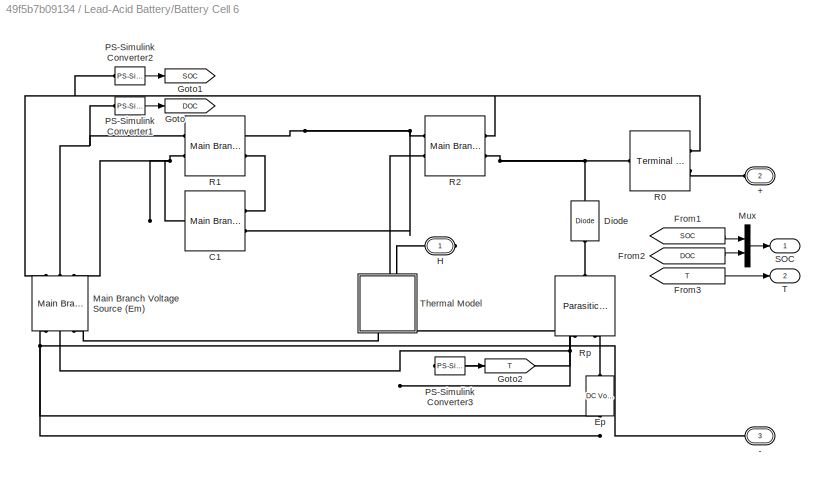
BLOCK [SubSystem] Lead-Acid Battery/Battery Cell 6
  FunctionWithSeparateData = off
  MaskHideContents = off
  MinAlgLoopOccurrences = off
  Opaque = off
  Ports = [0, 2, 0, 0, 0, 2, 1]
  PropExecContextOutsideSubsystem = off
  RTWSystemCode = Auto
  RequestExecContextInheritance = off
BLOCK [PMIOPort] Lead-Acid Battery/Battery Cell 6/+
  Port = 2
  Side = Left
  Tag = PMCPort
BLOCK [PMIOPort] Lead-Acid Battery/Battery Cell 6/-
  Port = 3
  Side = Left
  Tag = PMCPort
BLOCK [Reference] Lead-Acid Battery/Battery Cell 6/C1  REF=LeadAcidBattery_lib/Main Branch
Capacitance, C1
  ClassName = mbCapacitance
  Cmin = 1e-5
  Cmin_unit = F
  ComponentPath = LeadAcidBattery.C1
  ComponentVariantNames = C1
  ComponentVariants = LeadAcidBattery.C1
  LocalVarDescs = |Current through variable|Voltage across variable|Charge variable
  LocalVarLogging = [0 0 0]
  LocalVarNames = |i|v|Q
  Ports = [0, 0, 0, 0, 0, 2, 1]
  Q_Log = off
  SchemaVersion = 1
  SourceBlock = LeadAcidBattery_lib/Main Branch\nCapacitance, C1
  SourceFile = LeadAcidBattery.C1
  SourceType = Main Branch\nCapacitance, C1
  Tau1 = Tau1
  Tau1_unit = s
  i_Log = off
  v_Log = off
BLOCK [Reference] Lead-Acid Battery/Battery Cell 6/Diode  REF=fl_lib/Electrical/Electrical Elements/Diode
  ClassName = pwl_diode
  ComponentPath = foundation.electrical.elements.pwl_diode
  ComponentVariantNames = pwl_diode
  ComponentVariants = foundation.electrical.elements.pwl_diode
  Goff = 1e-08
  Goff_unit = 1/Ohm
  LocalVarDescs = |Diode current (A)|Voltage across diode (V)|Power (W)
  LocalVarLogging = [0 0 0]
  LocalVarNames = |current|voltage|power
  Ports = [0, 0, 0, 0, 0, 1, 1]
  Ron = 0.3
  Ron_unit = Ohm
  SchemaVersion = 1
  SourceBlock = fl_lib/Electrical/Electrical Elements/Diode
  SourceFile = foundation.electrical.elements.pwl_diode
  SourceType = Diode
  Vf = 0.6
  Vf_unit = V
  i_Log = off
  v_Log = off
BLOCK [Reference] Lead-Acid Battery/Battery Cell 6/Ep  REF=fl_lib/Electrical/Electrical Sources/DC Voltage Source
  ClassName = dc_voltage_source
  ComponentPath = foundation.electrical.sources.dc_voltage
  ComponentVariantNames = dc_voltage
  ComponentVariants = foundation.electrical.sources.dc_voltage
  LocalVarDescs = |Current (A)|Voltage (V)|Power (W)
  LocalVarLogging = [0 0 0]
  LocalVarNames = |current|voltage|power
  Ports = [0, 0, 0, 0, 0, 1, 1]
  SchemaVersion = 1
  SourceBlock = fl_lib/Electrical/Electrical Sources/DC Voltage Source
  SourceFile = foundation.electrical.sources.dc_voltage
  SourceType = DC Voltage Source
  i_Log = off
  v0 = Ep
  v0_unit = V
  v_Log = off
BLOCK [From] Lead-Acid Battery/Battery Cell 6/From1
  CloseFcn = tagdialog Close
  GotoTag = SOC
BLOCK [From] Lead-Acid Battery/Battery Cell 6/From2
  CloseFcn = tagdialog Close
  GotoTag = DOC
BLOCK [From] Lead-Acid Battery/Battery Cell 6/From3
  CloseFcn = tagdialog Close
  GotoTag = T
BLOCK [Goto] Lead-Acid Battery/Battery Cell 6/Goto
  GotoTag = DOC
BLOCK [Goto] Lead-Acid Battery/Battery Cell 6/Goto1
  GotoTag = SOC
BLOCK [Goto] Lead-Acid Battery/Battery Cell 6/Goto2
  GotoTag = T
BLOCK [PMIOPort] Lead-Acid Battery/Battery Cell 6/H
  Port = 1
  Side = Right
  Tag = PMCPort
BLOCK [Reference] Lead-Acid Battery/Battery Cell 6/Main Branch Voltage Source (Em)  REF=LeadAcidBattery_lib/Main Branch Voltage
Source, Em
  C0 = Costar
  C0_unit = s*A
  ClassName = mbVoltageSource
  ComponentPath = LeadAcidBattery.Em
  ComponentVariantNames = Em
  ComponentVariants = LeadAcidBattery.Em
  Em0 = Emo
  Em0_unit = V
  Iavg_Log = off
  Istar = Istar
  Istar_unit = A
  Kc = Kc
  Kc_unit = 1
  Ke = Ke
  Ke_unit = V/K
  LocalVarDescs = |Current through variable|Voltage across variable|usable battery capacity|total battery capacity|battery charge|average current given by (I/(Ts+1))
  LocalVarLogging = [0 0 0 0 0 0]
  LocalVarNames = |i|v|cap_u|cap_t|Q|Iavg
  Ports = [0, 0, 0, 0, 0, 3, 3]
  Qe_Log = off
  Qinit = Qe_init
  Qinit_unit = s*A
  SchemaVersion = 1
  SourceBlock = LeadAcidBattery_lib/Main Branch Voltage\nSource, Em
  SourceFile = LeadAcidBattery.Em
  SourceType = Main Branch Voltage\nSource, Em
  Tau1 = Tau1
  Tau1_unit = s
  delta = delta
  delta_unit = 1
  i_Log = off
  v_Log = off
BLOCK [Mux] Lead-Acid Battery/Battery Cell 6/Mux
  DisplayOption = bar
  Inputs = 2
  Ports = [2, 1]
BLOCK [Reference] Lead-Acid Battery/Battery Cell 6/PS-Simulink Converter1  REF=nesl_utility/PS-Simulink
Converter
  AffineConversion = off
  Frequencies = []
  LeftPortType = input
  PhysicalDomain = network_engine_domain
  Ports = [0, 1, 0, 0, 0, 1]
  PseudoPeriodic = off
  RightPortType = output
  SourceBlock = nesl_utility/PS-Simulink\nConverter
  SourceType = PS-Simulink\nConverter
  SubClassName = ps_output
  Unit = 1
BLOCK [Reference] Lead-Acid Battery/Battery Cell 6/PS-Simulink Converter2  REF=nesl_utility/PS-Simulink
Converter
  AffineConversion = off
  Frequencies = []
  LeftPortType = input
  PhysicalDomain = network_engine_domain
  Ports = [0, 1, 0, 0, 0, 1]
  PseudoPeriodic = off
  RightPortType = output
  SourceBlock = nesl_utility/PS-Simulink\nConverter
  SourceType = PS-Simulink\nConverter
  SubClassName = ps_output
  Unit = 1
BLOCK [Reference] Lead-Acid Battery/Battery Cell 6/PS-Simulink Converter3  REF=nesl_utility/PS-Simulink
Converter
  AffineConversion = off
  Frequencies = []
  LeftPortType = input
  PhysicalDomain = network_engine_domain
  Ports = [0, 1, 0, 0, 0, 1]
  PseudoPeriodic = off
  RightPortType = output
  SourceBlock = nesl_utility/PS-Simulink\nConverter
  SourceType = PS-Simulink\nConverter
  SubClassName = ps_output
  Unit = 1
BLOCK [Reference] Lead-Acid Battery/Battery Cell 6/R0  REF=LeadAcidBattery_lib/Terminal Resistance,
R0
  A0 = Ao
  A0_unit = 1
  ClassName = terminalResistance
  ComponentPath = LeadAcidBattery.R0
  ComponentVariantNames = R0
  ComponentVariants = LeadAcidBattery.R0
  LocalVarDescs = |Current through variable|Voltage across variable
  LocalVarLogging = [0 0]
  LocalVarNames = |i|v
  Ports = [0, 0, 0, 0, 0, 2, 1]
  R00 = Roo
  R00_unit = Ohm
  SchemaVersion = 1
  SourceBlock = LeadAcidBattery_lib/Terminal Resistance,\nR0
  SourceFile = LeadAcidBattery.R0
  SourceType = Terminal Resistance,\nR0
  i_Log = off
  v_Log = off
BLOCK [Reference] Lead-Acid Battery/Battery Cell 6/R1  REF=LeadAcidBattery_lib/Main Branch
Resistance, R1
  ClassName = R1
  ComponentPath = LeadAcidBattery.R1
  ComponentVariantNames = R1
  ComponentVariants = LeadAcidBattery.R1
  DOC_min = 1e-006
  DOC_min_unit = 1
  LocalVarDescs = |Current through variable|Voltage across variable
  LocalVarLogging = [0 0]
  LocalVarNames = |i|v
  Ports = [0, 0, 0, 0, 0, 2, 2]
  R10 = R10
  R10_unit = Ohm
  SchemaVersion = 1
  SourceBlock = LeadAcidBattery_lib/Main Branch\nResistance, R1
  SourceFile = LeadAcidBattery.R1
  SourceType = Main Branch\nResistance, R1
  i_Log = off
  v_Log = off
BLOCK [Reference] Lead-Acid Battery/Battery Cell 6/R2  REF=LeadAcidBattery_lib/Main Branch
Resistance, R2
  A21 = A21
  A21_unit = 1
  A22 = A22
  A22_unit = 1
  ClassName = mbResistance2
  ComponentPath = LeadAcidBattery.R2
  ComponentVariantNames = R2
  ComponentVariants = LeadAcidBattery.R2
  Istar = Istar
  Istar_unit = A
  LocalVarDescs = |Current through variable|Voltage across variable
  LocalVarLogging = [0 0]
  LocalVarNames = |i|v
  Ports = [0, 0, 0, 0, 0, 2, 2]
  R20 = R20
  R20_unit = Ohm
  SchemaVersion = 1
  SourceBlock = LeadAcidBattery_lib/Main Branch\nResistance, R2
  SourceFile = LeadAcidBattery.R2
  SourceType = Main Branch\nResistance, R2
  i_Log = off
  v_Log = off
BLOCK [Reference] Lead-Acid Battery/Battery Cell 6/Rp  REF=LeadAcidBattery_lib/Parasitic Branch
Resistance, Rp
  Ap = Ap
  Ap_unit = 1
  ClassName = pbResistance
  ComponentPath = LeadAcidBattery.Rp
  ComponentVariantNames = Rp
  ComponentVariants = LeadAcidBattery.Rp
  Gp0 = Gpo
  Gp0_unit = 1/Ohm
  LocalVarDescs = |Current through variable|Voltage across variable|average voltage given by (V/(Ts+1))
  LocalVarLogging = [0 0 0]
  LocalVarNames = |i|v|Vavg
  Ports = [0, 0, 0, 0, 0, 1, 2]
  SchemaVersion = 1
  SourceBlock = LeadAcidBattery_lib/Parasitic Branch\nResistance, Rp
  SourceFile = LeadAcidBattery.Rp
  SourceType = Parasitic Branch\nResistance, Rp
  Tf = theta_f
  Tf_unit = C
  Vp0 = Vpo
  Vp0_unit = V
  i_Log = off
  v_Log = off
BLOCK [Outport] Lead-Acid Battery/Battery Cell 6/SOC
  IconDisplay = Port number
BLOCK [Outport] Lead-Acid Battery/Battery Cell 6/T
  IconDisplay = Port number
  Port = 2
BLOCK [SubSystem] Lead-Acid Battery/Battery Cell 6/Thermal Model
  FunctionWithSeparateData = off
  MaskHideContents = off
  MinAlgLoopOccurrences = off
  Opaque = off
  Ports = [0, 0, 0, 0, 0, 2, 2]
  PropExecContextOutsideSubsystem = off
  RTWSystemCode = Auto
  RequestExecContextInheritance = off
BLOCK [Reference] Lead-Acid Battery/Battery Cell 6/Thermal Model/Battery thermal mass  REF=fl_lib/Thermal/Thermal Elements/Thermal Mass
  ClassName = thermal_mass
  ComponentPath = foundation.thermal.elements.mass
  ComponentVariantNames = mass
  ComponentVariants = foundation.thermal.elements.mass
  LocalVarDescs = |Heat flow (J/s)|Mass temperature (K)
  LocalVarLogging = [0 0]
  LocalVarNames = |heat_flow|temperature
  Ports = [0, 0, 0, 0, 0, 1]
  Q_Log = off
  SchemaVersion = 1
  SourceBlock = fl_lib/Thermal/Thermal Elements/Thermal Mass
  SourceFile = foundation.thermal.elements.mass
  SourceType = Thermal Mass
  init_temp = theta_init+273
  init_temp_unit = K
  mass = 1
  mass_unit = kg
  sp_heat = Ctheta
  sp_heat_unit = J/kg/K
BLOCK [PMIOPort] Lead-Acid Battery/Battery Cell 6/Thermal Model/H
  Port = 2
  Side = Left
  Tag = PMCPort
BLOCK [Reference] Lead-Acid Battery/Battery Cell 6/Thermal Model/Ideal Heat Flow Source  REF=fl_lib/Thermal/Thermal Sources/Ideal Heat Flow
Source
  ClassName = heat_flow_src
  ComponentPath = foundation.thermal.sources.heat_flow
  ComponentVariantNames = heat_flow
  ComponentVariants = foundation.thermal.sources.heat_flow
  LocalVarDescs = |Heat flow through the source (J/s)|Temperature differential across the source (K)
  LocalVarLogging = [0 0]
  LocalVarNames = |heat_flow|T_differential
  Ports = [0, 0, 0, 0, 0, 1, 2]
  Q_Log = off
  SchemaVersion = 1
  SourceBlock = fl_lib/Thermal/Thermal Sources/Ideal Heat Flow\nSource
  SourceFile = foundation.thermal.sources.heat_flow
  SourceType = Ideal Heat Flow\nSource
  T_Log = off
BLOCK [Reference] Lead-Acid Battery/Battery Cell 6/Thermal Model/Ideal Temperature Sensor  REF=fl_lib/Thermal/Thermal Sensors/Ideal Temperature
Sensor
  ClassName = sensor_temperature
  ComponentPath = foundation.thermal.sensors.temperature
  ComponentVariantNames = temperature
  ComponentVariants = foundation.thermal.sensors.temperature
  LocalVarDescs = |Qs|Ts
  LocalVarLogging = []
  LocalVarNames = |Qs|Ts
  Ports = [0, 0, 0, 0, 0, 1, 2]
  Qs_Log = off
  SchemaVersion = 1
  SourceBlock = fl_lib/Thermal/Thermal Sensors/Ideal Temperature\nSensor
  SourceFile = foundation.thermal.sensors.temperature
  SourceType = Ideal Temperature\nSensor
  Ts_Log = off
BLOCK [PMIOPort] Lead-Acid Battery/Battery Cell 6/Thermal Model/Kt
  Port = 3
  Side = Right
  Tag = PMCPort
BLOCK [Reference] Lead-Acid Battery/Battery Cell 6/Thermal Model/Kt as a function of temperature  REF=fl_lib/Physical Signals/Lookup Tables/PS Lookup Table (1D)
  ClassName = ps_1d_tlu
  ComponentPath = foundation.physical_signal.lookup_tables.one_dimensional
  ComponentVariantNames = one_dimensional
  ComponentVariants = foundation.physical_signal.lookup_tables.one_dimensional
  LocalVarLogging = []
  Ports = [0, 0, 0, 0, 0, 1, 1]
  SchemaVersion = 1
  SourceBlock = fl_lib/Physical Signals/Lookup Tables/PS Lookup Table (1D)
  SourceFile = foundation.physical_signal.lookup_tables.one_dimensional
  SourceType = PS Lookup Table (1D)
  extrap_method = 1
  extrap_method_unit = 1
  interp_method = 1
  interp_method_unit = 1
  x_t = [theta_f, Kt_Temps]+273
  x_t_unit = 1
  y_t = [0 Kt]
  y_t_unit = 1
BLOCK [PMIOPort] Lead-Acid Battery/Battery Cell 6/Thermal Model/Ps
  Port = 1
  Side = Left
  Tag = PMCPort
BLOCK [PMIOPort] Lead-Acid Battery/Battery Cell 6/Thermal Model/T
  Port = 4
  Side = Right
  Tag = PMCPort
BLOCK [Reference] Lead-Acid Battery/Battery Cell 6/Thermal Model/Thermal Reference1  REF=fl_lib/Thermal/Thermal Elements/Thermal Reference
  ClassName = reference_thermal
  ComponentPath = foundation.thermal.elements.reference
  ComponentVariantNames = reference
  ComponentVariants = foundation.thermal.elements.reference
  LocalVarDescs = |Q
  LocalVarLogging = []
  LocalVarNames = |Q
  Ports = [0, 0, 0, 0, 0, 1]
  Q_Log = off
  SchemaVersion = 1
  SourceBlock = fl_lib/Thermal/Thermal Elements/Thermal Reference
  SourceFile = foundation.thermal.elements.reference
  SourceType = Thermal Reference
BLOCK [Reference] Lead-Acid Battery/Battery Cell 6/Thermal Model/Thermal Reference2  REF=fl_lib/Thermal/Thermal Elements/Thermal Reference
  ClassName = reference_thermal
  ComponentPath = foundation.thermal.elements.reference
  ComponentVariantNames = reference
  ComponentVariants = foundation.thermal.elements.reference
  LocalVarDescs = |Q
  LocalVarLogging = []
  LocalVarNames = |Q
  Ports = [0, 0, 0, 0, 0, 1]
  Q_Log = off
  SchemaVersion = 1
  SourceBlock = fl_lib/Thermal/Thermal Elements/Thermal Reference
  SourceFile = foundation.thermal.elements.reference
  SourceType = Thermal Reference
BLOCK [Bias] Lead-Acid Battery/Bias
  Bias = 273
  SaturateOnIntegerOverflow = off
BLOCK [Bias] Lead-Acid Battery/Bias1
  Bias = -273
  SaturateOnIntegerOverflow = off
BLOCK [Reference] Lead-Acid Battery/Convective Heat Transfer2  REF=fl_lib/Thermal/Thermal Elements/Convective Heat
Transfer
  ClassName = conv_heat_transfer
  ComponentPath = foundation.thermal.elements.convection
  ComponentVariantNames = convection
  ComponentVariants = foundation.thermal.elements.convection
  LocalVarDescs = |Heat flow (J/s)|Temperature difference (K)
  LocalVarLogging = [0 0]
  LocalVarNames = |heat_flow|temperature_diff
  Ports = [0, 0, 0, 0, 0, 1, 1]
  Q_Log = off
  SchemaVersion = 1
  SourceBlock = fl_lib/Thermal/Thermal Elements/Convective Heat\nTransfer
  SourceFile = foundation.thermal.elements.convection
  SourceType = Convective Heat\nTransfer
  T_Log = off
  area = Area
  area_unit = m^2
  heat_tr_coeff = Rtheta
  heat_tr_coeff_unit = W/(m^2 * K)
BLOCK [Reference] Lead-Acid Battery/Convective Heat Transfer3  REF=fl_lib/Thermal/Thermal Elements/Convective Heat
Transfer
  ClassName = conv_heat_transfer
  ComponentPath = foundation.thermal.elements.convection
  ComponentVariantNames = convection
  ComponentVariants = foundation.thermal.elements.convection
  LocalVarDescs = |Heat flow (J/s)|Temperature difference (K)
  LocalVarLogging = [0 0]
  LocalVarNames = |heat_flow|temperature_diff
  Ports = [0, 0, 0, 0, 0, 1, 1]
  Q_Log = off
  SchemaVersion = 1
  SourceBlock = fl_lib/Thermal/Thermal Elements/Convective Heat\nTransfer
  SourceFile = foundation.thermal.elements.convection
  SourceType = Convective Heat\nTransfer
  T_Log = off
  area = Area
  area_unit = m^2
  heat_tr_coeff = Rtheta
  heat_tr_coeff_unit = W/(m^2 * K)
BLOCK [Reference] Lead-Acid Battery/Convective Heat Transfer4  REF=fl_lib/Thermal/Thermal Elements/Convective Heat
Transfer
  ClassName = conv_heat_transfer
  ComponentPath = foundation.thermal.elements.convection
  ComponentVariantNames = convection
  ComponentVariants = foundation.thermal.elements.convection
  LocalVarDescs = |Heat flow (J/s)|Temperature difference (K)
  LocalVarLogging = [0 0]
  LocalVarNames = |heat_flow|temperature_diff
  Ports = [0, 0, 0, 0, 0, 1, 1]
  Q_Log = off
  SchemaVersion = 1
  SourceBlock = fl_lib/Thermal/Thermal Elements/Convective Heat\nTransfer
  SourceFile = foundation.thermal.elements.convection
  SourceType = Convective Heat\nTransfer
  T_Log = off
  area = Area
  area_unit = m^2
  heat_tr_coeff = Rtheta
  heat_tr_coeff_unit = W/(m^2 * K)
BLOCK [Reference] Lead-Acid Battery/Convective Heat Transfer5  REF=fl_lib/Thermal/Thermal Elements/Convective Heat
Transfer
  ClassName = conv_heat_transfer
  ComponentPath = foundation.thermal.elements.convection
  ComponentVariantNames = convection
  ComponentVariants = foundation.thermal.elements.convection
  LocalVarDescs = |Heat flow (J/s)|Temperature difference (K)
  LocalVarLogging = [0 0]
  LocalVarNames = |heat_flow|temperature_diff
  Ports = [0, 0, 0, 0, 0, 1, 1]
  Q_Log = off
  SchemaVersion = 1
  SourceBlock = fl_lib/Thermal/Thermal Elements/Convective Heat\nTransfer
  SourceFile = foundation.thermal.elements.convection
  SourceType = Convective Heat\nTransfer
  T_Log = off
  area = Area
  area_unit = m^2
  heat_tr_coeff = Rtheta
  heat_tr_coeff_unit = W/(m^2 * K)
BLOCK [Reference] Lead-Acid Battery/Convective Heat Transfer6  REF=fl_lib/Thermal/Thermal Elements/Convective Heat
Transfer
  ClassName = conv_heat_transfer
  ComponentPath = foundation.thermal.elements.convection
  ComponentVariantNames = convection
  ComponentVariants = foundation.thermal.elements.convection
  LocalVarDescs = |Heat flow (J/s)|Temperature difference (K)
  LocalVarLogging = [0 0]
  LocalVarNames = |heat_flow|temperature_diff
  Ports = [0, 0, 0, 0, 0, 1, 1]
  Q_Log = off
  SchemaVersion = 1
  SourceBlock = fl_lib/Thermal/Thermal Elements/Convective Heat\nTransfer
  SourceFile = foundation.thermal.elements.convection
  SourceType = Convective Heat\nTransfer
  T_Log = off
  area = Area
  area_unit = m^2
  heat_tr_coeff = Rtheta
  heat_tr_coeff_unit = W/(m^2 * K)
BLOCK [Reference] Lead-Acid Battery/Convective Heat Transfer`  REF=fl_lib/Thermal/Thermal Elements/Convective Heat
Transfer
  ClassName = conv_heat_transfer
  ComponentPath = foundation.thermal.elements.convection
  ComponentVariantNames = convection
  ComponentVariants = foundation.thermal.elements.convection
  LocalVarDescs = |Heat flow (J/s)|Temperature difference (K)
  LocalVarLogging = [0 0]
  LocalVarNames = |heat_flow|temperature_diff
  Ports = [0, 0, 0, 0, 0, 1, 1]
  Q_Log = off
  SchemaVersion = 1
  SourceBlock = fl_lib/Thermal/Thermal Elements/Convective Heat\nTransfer
  SourceFile = foundation.thermal.elements.convection
  SourceType = Convective Heat\nTransfer
  T_Log = off
  area = Area
  area_unit = m^2
  heat_tr_coeff = Rtheta
  heat_tr_coeff_unit = W/(m^2 * K)
BLOCK [SubSystem] Lead-Acid Battery/Current Sensor
  FunctionWithSeparateData = off
  MaskHideContents = off
  MinAlgLoopOccurrences = off
  Opaque = off
  Ports = [0, 0, 0, 0, 0, 1, 1]
  PropExecContextOutsideSubsystem = off
  RTWSystemCode = Auto
  RequestExecContextInheritance = off
BLOCK [PMIOPort] Lead-Acid Battery/Current Sensor/+
  Port = 1
  Side = Left
BLOCK [PMIOPort] Lead-Acid Battery/Current Sensor/-
  Port = 2
  Side = Right
BLOCK [Reference] Lead-Acid Battery/Current Sensor/Current Sensor  REF=fl_lib/Electrical/Electrical Sensors/Current Sensor
  ClassName = sensor_current
  ComponentPath = foundation.electrical.sensors.current
  ComponentVariantNames = current
  ComponentVariants = foundation.electrical.sensors.current
  LocalVarDescs = |i1|v1
  LocalVarLogging = []
  LocalVarNames = |i1|v1
  Ports = [0, 0, 0, 0, 0, 1, 2]
  SchemaVersion = 1
  SourceBlock = fl_lib/Electrical/Electrical Sensors/Current Sensor
  SourceFile = foundation.electrical.sensors.current
  SourceType = Current Sensor
  i1_Log = off
  v1_Log = off
BLOCK [Goto] Lead-Acid Battery/Current Sensor/Goto
  GotoTag = batt_current
  TagVisibility = global
BLOCK [Reference] Lead-Acid Battery/Current Sensor/PS-Simulink  REF=nesl_utility/PS-Simulink
Converter
  AffineConversion = off
  Frequencies = []
  LeftPortType = input
  PhysicalDomain = network_engine_domain
  Ports = [0, 1, 0, 0, 0, 1]
  PseudoPeriodic = off
  RightPortType = output
  SourceBlock = nesl_utility/PS-Simulink\nConverter
  SourceType = PS-Simulink\nConverter
  SubClassName = ps_output
  Unit = A
BLOCK [Goto] Lead-Acid Battery/Goto1
  GotoTag = batt_temp
  TagVisibility = global
BLOCK [Goto] Lead-Acid Battery/Goto5
  GotoTag = SOC
  TagVisibility = global
BLOCK [Reference] Lead-Acid Battery/Ideal Temperature Source  REF=fl_lib/Thermal/Thermal Sources/Ideal Temperature
Source
  ClassName = temperature_src
  ComponentPath = foundation.thermal.sources.temperature
  ComponentVariantNames = temperature
  ComponentVariants = foundation.thermal.sources.temperature
  LocalVarDescs = |Heat flow rate through the source (J/s)|Temperature differential across the source (K)
  LocalVarLogging = [0 0]
  LocalVarNames = |heat_flow|T_differential
  Ports = [0, 0, 0, 0, 0, 1, 2]
  Q_Log = off
  SchemaVersion = 1
  SourceBlock = fl_lib/Thermal/Thermal Sources/Ideal Temperature\nSource
  SourceFile = foundation.thermal.sources.temperature
  SourceType = Ideal Temperature\nSource
  T_Log = off
BLOCK [Reference] Lead-Acid Battery/Simulink-PS Converter  REF=nesl_utility/Simulink-PS
Converter
  AffineConversion = off
  Frequencies = []
  InputFilterTimeConstant = .001
  InputFiltering = off
  LeftPortType = input
  NoiseDistribution = none
  NoiseParameters = []
  PhysicalDomain = network_engine_domain
  Ports = [1, 0, 0, 0, 0, 0, 1]
  PseudoPeriodic = off
  RightPortType = output
  SimscapeFilterOrder = 1
  SourceBlock = nesl_utility/Simulink-PS\nConverter
  SourceType = Simulink-PS\nConverter
  SubClassName = ps_input
  UdotUserProvided = 1
  Unit = K
BLOCK [SubSystem] Lead-Acid Battery/Stop if SOC <= 0
  FunctionWithSeparateData = off
  MaskHideContents = off
  MinAlgLoopOccurrences = off
  Opaque = off
  Ports = []
  PropExecContextOutsideSubsystem = off
  RTWSystemCode = Auto
  RequestExecContextInheritance = off
BLOCK [Reference] Lead-Acid Battery/Stop if SOC <= 0/Compare To Zero  REF=simulink/Logic and Bit
Operations/Compare
To Zero
  OutDataTypeStr = boolean
  Ports = [1, 1]
  SourceBlock = simulink/Logic and Bit\nOperations/Compare\nTo Zero
  SourceType = Compare To Zero
  ZeroCross = off
  relop = <=
BLOCK [From] Lead-Acid Battery/Stop if SOC <= 0/From14
  CloseFcn = tagdialog Close
  GotoTag = SOC
  TagVisibility = global
BLOCK [Stop] Lead-Acid Battery/Stop if SOC <= 0/Stop Simulation
BLOCK [Inport] Lead-Acid Battery/Temp
  IconDisplay = Port number
BLOCK [Reference] Lead-Acid Battery/Thermal Reference  REF=fl_lib/Thermal/Thermal Elements/Thermal Reference
  ClassName = reference_thermal
  ComponentPath = foundation.thermal.elements.reference
  ComponentVariantNames = reference
  ComponentVariants = foundation.thermal.elements.reference
  LocalVarDescs = |Q
  LocalVarLogging = []
  LocalVarNames = |Q
  Ports = [0, 0, 0, 0, 0, 1]
  Q_Log = off
  SchemaVersion = 1
  SourceBlock = fl_lib/Thermal/Thermal Elements/Thermal Reference
  SourceFile = foundation.thermal.elements.reference
  SourceType = Thermal Reference
BLOCK [SubSystem] Lead-Acid Battery/Voltage Sensor
  FunctionWithSeparateData = off
  MaskHideContents = off
  MinAlgLoopOccurrences = off
  Opaque = off
  Ports = [0, 0, 0, 0, 0, 1, 1]
  PropExecContextOutsideSubsystem = off
  RTWSystemCode = Auto
  RequestExecContextInheritance = off
BLOCK [PMIOPort] Lead-Acid Battery/Voltage Sensor/+
  Port = 1
  Side = Left
BLOCK [PMIOPort] Lead-Acid Battery/Voltage Sensor/-
  Port = 2
  Side = Right
BLOCK [Goto] Lead-Acid Battery/Voltage Sensor/Goto
  GotoTag = batt_voltage
  TagVisibility = global
BLOCK [Reference] Lead-Acid Battery/Voltage Sensor/PS-Simulink Converter  REF=nesl_utility/PS-Simulink
Converter
  AffineConversion = off
  Frequencies = []
  LeftPortType = input
  PhysicalDomain = network_engine_domain
  Ports = [0, 1, 0, 0, 0, 1]
  PseudoPeriodic = off
  RightPortType = output
  SourceBlock = nesl_utility/PS-Simulink\nConverter
  SourceType = PS-Simulink\nConverter
  SubClassName = ps_output
  Unit = V
BLOCK [Reference] Lead-Acid Battery/Voltage Sensor/Voltage Sensor  REF=fl_lib/Electrical/Electrical Sensors/Voltage Sensor
  ClassName = sensor_voltage
  ComponentPath = foundation.electrical.sensors.voltage
  ComponentVariantNames = voltage
  ComponentVariants = foundation.electrical.sensors.voltage
  LocalVarDescs = |i1|v1
  LocalVarLogging = []
  LocalVarNames = |i1|v1
  Ports = [0, 0, 0, 0, 0, 1, 2]
  SchemaVersion = 1
  SourceBlock = fl_lib/Electrical/Electrical Sensors/Voltage Sensor
  SourceFile = foundation.electrical.sensors.voltage
  SourceType = Voltage Sensor
  i1_Log = off
  v1_Log = off
BLOCK [Product] Product
  InputSameDT = off
  OutDataTypeStr = Inherit: Inherit via internal rule
  Ports = [2, 1]
  SaturateOnIntegerOverflow = off
BLOCK [Gain] Pulley Ratio
  Gain = 2.5
  OutDataTypeStr = Inherit: Inherit via internal rule
  ParamDataTypeStr = Inherit: Inherit via internal rule
  SaturateOnIntegerOverflow = off
BLOCK [SubSystem] RPM Compensation
  Commented = on
  FunctionWithSeparateData = off
  MaskHideContents = off
  MinAlgLoopOccurrences = off
  Opaque = off
  Ports = [2, 2]
  PropExecContextOutsideSubsystem = off
  RTWSystemCode = Auto
  RequestExecContextInheritance = off
BLOCK [Constant] RPM Compensation/Constant
  Value = 50
BLOCK [Constant] RPM Compensation/Constant1
  Value = [0.90 0.98]
BLOCK [Constant] RPM Compensation/Constant2
  Value = 100
BLOCK [Constant] RPM Compensation/Constant3
  Value = 12.5
BLOCK [DataTypeConversion] RPM Compensation/Data Type Conversion1
  OutDataTypeStr = double
  RndMeth = Floor
  SaturateOnIntegerOverflow = off
BLOCK [DataTypeConversion] RPM Compensation/Data Type Conversion2
  OutDataTypeStr = double
  RndMeth = Floor
  SaturateOnIntegerOverflow = off
BLOCK [DataTypeConversion] RPM Compensation/Data Type Conversion3
  OutDataTypeStr = double
  RndMeth = Floor
  SaturateOnIntegerOverflow = off
BLOCK [DiscreteIntegrator] RPM Compensation/Discrete-Time Integrator
  ICPrevOutput = DiscIntNeverNeededParam
  ICPrevScaledInput = DiscIntNeverNeededParam
  InitialConditionMode = State only (most efficient)
  LimitOutput = on
  LowerSaturationLimit = 0
  Ports = [1, 1]
BLOCK [Inport] RPM Compensation/Duty
  IconDisplay = Port number
  Port = 2
BLOCK [Mux] RPM Compensation/Mux1
  DisplayOption = bar
  Inputs = 3
  Ports = [3, 1]
BLOCK [SubSystem] RPM Compensation/RPM Compensation- ALT Duty
  ErrorFcn = Stateflow.Translate.translate
  FunctionWithSeparateData = off
  MaskHideContents = off
  MinAlgLoopOccurrences = off
  Opaque = off
  PermitHierarchicalResolution = ExplicitOnly
  Ports = [3, 2]
  PropExecContextOutsideSubsystem = off
  RTWSystemCode = Auto
  RequestExecContextInheritance = off
  SFBlockType = Chart
  TreatAsAtomicUnit = on
BLOCK [Demux] RPM Compensation/RPM Compensation- ALT Duty/ Demux 
  Outputs = 1
  Ports = [1, 1]
BLOCK [S-Function] RPM Compensation/RPM Compensation- ALT Duty/ SFunction 
  EnableBusSupport = on
  FunctionName = sf_sfun
  PortCounts = [3 3]
  Ports = [3, 3]
  Tag = Stateflow S-Function ssc_battery_management_R2012b 1
BLOCK [Terminator] RPM Compensation/RPM Compensation- ALT Duty/ Terminator 
BLOCK [Inport] RPM Compensation/RPM Compensation- ALT Duty/Duty
  IconDisplay = Port number
BLOCK [Inport] RPM Compensation/RPM Compensation- ALT Duty/DutyLimit
  IconDisplay = Port number
  Port = 2
BLOCK [Outport] RPM Compensation/RPM Compensation- ALT Duty/RPM_comp
  IconDisplay = Port number
BLOCK [Inport] RPM Compensation/RPM Compensation- ALT Duty/RPM_step
  IconDisplay = Port number
  Port = 3
BLOCK [Outport] RPM Compensation/RPM Compensation- ALT Duty/step
  IconDisplay = Port number
  Port = 2
BLOCK [SubSystem] RPM Compensation/RPM Compensation- Batt Voltage
  ErrorFcn = Stateflow.Translate.translate
  FunctionWithSeparateData = off
  MaskHideContents = off
  MinAlgLoopOccurrences = off
  Opaque = off
  PermitHierarchicalResolution = ExplicitOnly
  Ports = [2, 3]
  PropExecContextOutsideSubsystem = off
  RTWSystemCode = Auto
  RequestExecContextInheritance = off
  SFBlockType = Chart
  TreatAsAtomicUnit = on
BLOCK [Demux] RPM Compensation/RPM Compensation- Batt Voltage/ Demux 
  Outputs = 1
  Ports = [1, 1]
BLOCK [S-Function] RPM Compensation/RPM Compensation- Batt Voltage/ SFunction 
  EnableBusSupport = on
  FunctionName = sf_sfun
  PortCounts = [2 4]
  Ports = [2, 4]
  Tag = Stateflow S-Function ssc_battery_management_R2012b 2
BLOCK [Terminator] RPM Compensation/RPM Compensation- Batt Voltage/ Terminator 
BLOCK [Inport] RPM Compensation/RPM Compensation- Batt Voltage/Integral
  IconDisplay = Port number
BLOCK [Outport] RPM Compensation/RPM Compensation- Batt Voltage/RPM_comp
  IconDisplay = Port number
BLOCK [Inport] RPM Compensation/RPM Compensation- Batt Voltage/RPM_step
  IconDisplay = Port number
  Port = 2
BLOCK [Outport] RPM Compensation/RPM Compensation- Batt Voltage/step1_flag
  IconDisplay = Port number
  Port = 2
BLOCK [Outport] RPM Compensation/RPM Compensation- Batt Voltage/step2_flag
  IconDisplay = Port number
  Port = 3
BLOCK [Outport] RPM Compensation/RPM_comp
  IconDisplay = Port number
BLOCK [RateTransition] RPM Compensation/Rate Transition
BLOCK [UnitDelay] RPM Compensation/Sample
BLOCK [Sum] RPM Compensation/Sum
  IconShape = round
  InputSameDT = off
  Inputs = +-|
  OutDataTypeStr = Inherit: Inherit via internal rule
  Ports = [2, 1]
  SampleTime = 1
  SaturateOnIntegerOverflow = off
BLOCK [Sum] RPM Compensation/Sum1
  InputSameDT = off
  OutDataTypeStr = Inherit: Inherit via internal rule
  Ports = [2, 1]
  SaturateOnIntegerOverflow = off
BLOCK [Inport] RPM Compensation/Vb
  IconDisplay = Port number
BLOCK [Outport] RPM Compensation/status
  IconDisplay = Port number
  Port = 2
BLOCK [Scope] Scope
  DataFormat = StructureWithTime
  Floating = off
  LimitDataPoints = off
  NumInputPorts = 5
  Ports = [5]
  SampleTime = 0
  ShowLegends = off
  TimeRange = 2000
  YMax = 25.625~292.2207979490472~14.73109375~0.8759493670886078~41.93749999999997
  YMin = -49.375~-590.3300753084441~11.6875~0.6329113924050636~20.93749999999997
  ZoomMode = yonly
BLOCK [Scope] Scope1
  DataFormat = StructureWithTime
  Floating = off
  LimitDataPoints = off
  NumInputPorts = 4
  Ports = [4]
  SampleTime = 0
  SaveName = ScopeData1
  ShowLegends = off
  TimeRange = 2000
  YMax = 94.84057042140684~15.22432302515623~1~6
  YMin = 12.71430860439033~9.924691555840411~0.4~0
  ZoomMode = yonly
BLOCK [Scope] Scope2
  DataFormat = StructureWithTime
  Floating = off
  LimitDataPoints = off
  NumInputPorts = 2
  Ports = [2]
  SampleTime = 0
  SaveName = ScopeData3
  ShowLegends = off
  TimeRange = 2000
  YMax = 300~6
  YMin = 0~0
  ZoomMode = yonly
BLOCK [SignalViewerScope] Scope3
  IOType = viewer
  LimitDataPoints = off
  MaxDataPoints = 7500
  NumInputPorts = 1
  Ports = []
  RefreshTime = 0.035000
  ShowDataMarkers = off
  ShowLegends = off
  YMax = 90
  YMin = 5
BLOCK [Reference] Simulink-PS Converter  REF=nesl_utility/Simulink-PS
Converter
  AffineConversion = off
  Frequencies = []
  InputFilterTimeConstant = .001
  InputFiltering = off
  LeftPortType = input
  NoiseDistribution = none
  NoiseParameters = []
  PhysicalDomain = network_engine_domain
  Ports = [1, 0, 0, 0, 0, 0, 1]
  PseudoPeriodic = off
  RightPortType = output
  SimscapeFilterOrder = 1
  SourceBlock = nesl_utility/Simulink-PS\nConverter
  SourceType = Simulink-PS\nConverter
  SubClassName = ps_input
  UdotUserProvided = 0
  Unit = 1
BLOCK [Reference] Simulink-PS Converter1  REF=nesl_utility/Simulink-PS
Converter
  AffineConversion = off
  Frequencies = []
  InputFilterTimeConstant = .001
  InputFiltering = off
  LeftPortType = input
  NoiseDistribution = none
  NoiseParameters = []
  PhysicalDomain = network_engine_domain
  Ports = [1, 0, 0, 0, 0, 0, 1]
  PseudoPeriodic = off
  RightPortType = output
  SimscapeFilterOrder = 1
  SourceBlock = nesl_utility/Simulink-PS\nConverter
  SourceType = Simulink-PS\nConverter
  SubClassName = ps_input
  UdotUserProvided = 0
  Unit = 1
BLOCK [Reference] Simulink-PS Converter2  REF=nesl_utility/Simulink-PS
Converter
  AffineConversion = off
  Frequencies = []
  InputFilterTimeConstant = .001
  InputFiltering = off
  LeftPortType = input
  NoiseDistribution = none
  NoiseParameters = []
  PhysicalDomain = network_engine_domain
  Ports = [1, 0, 0, 0, 0, 0, 1]
  PseudoPeriodic = off
  RightPortType = output
  SimscapeFilterOrder = 1
  SourceBlock = nesl_utility/Simulink-PS\nConverter
  SourceType = Simulink-PS\nConverter
  SubClassName = ps_input
  UdotUserProvided = 0
  Unit = 1
BLOCK [Reference] Simulink-PS Converter3  REF=nesl_utility/Simulink-PS
Converter
  AffineConversion = off
  Frequencies = []
  InputFilterTimeConstant = .001
  InputFiltering = off
  LeftPortType = input
  NoiseDistribution = none
  NoiseParameters = []
  PhysicalDomain = network_engine_domain
  Ports = [1, 0, 0, 0, 0, 0, 1]
  PseudoPeriodic = off
  RightPortType = output
  SimscapeFilterOrder = 1
  SourceBlock = nesl_utility/Simulink-PS\nConverter
  SourceType = Simulink-PS\nConverter
  SubClassName = ps_input
  UdotUserProvided = 0
  Unit = 1
BLOCK [Reference] Simulink-PS Converter4  REF=nesl_utility/Simulink-PS
Converter
  AffineConversion = off
  Frequencies = []
  InputFilterTimeConstant = .001
  InputFiltering = off
  LeftPortType = input
  NoiseDistribution = none
  NoiseParameters = []
  PhysicalDomain = network_engine_domain
  Ports = [1, 0, 0, 0, 0, 0, 1]
  PseudoPeriodic = off
  RightPortType = output
  SimscapeFilterOrder = 1
  SourceBlock = nesl_utility/Simulink-PS\nConverter
  SourceType = Simulink-PS\nConverter
  SubClassName = ps_input
  UdotUserProvided = 0
  Unit = 1
BLOCK [Reference] Simulink-PS Converter5  REF=nesl_utility/Simulink-PS
Converter
  AffineConversion = off
  Frequencies = []
  InputFilterTimeConstant = .001
  InputFiltering = off
  LeftPortType = input
  NoiseDistribution = none
  NoiseParameters = []
  PhysicalDomain = network_engine_domain
  Ports = [1, 0, 0, 0, 0, 0, 1]
  PseudoPeriodic = off
  RightPortType = output
  SimscapeFilterOrder = 1
  SourceBlock = nesl_utility/Simulink-PS\nConverter
  SourceType = Simulink-PS\nConverter
  SubClassName = ps_input
  UdotUserProvided = 0
  Unit = 1
BLOCK [Reference] Simulink-PS Converter6  REF=nesl_utility/Simulink-PS
Converter
  AffineConversion = off
  Frequencies = []
  InputFilterTimeConstant = .001
  InputFiltering = off
  LeftPortType = input
  NoiseDistribution = none
  NoiseParameters = []
  PhysicalDomain = network_engine_domain
  Ports = [1, 0, 0, 0, 0, 0, 1]
  PseudoPeriodic = off
  RightPortType = output
  SimscapeFilterOrder = 1
  SourceBlock = nesl_utility/Simulink-PS\nConverter
  SourceType = Simulink-PS\nConverter
  SubClassName = ps_input
  UdotUserProvided = 0
  Unit = 1
BLOCK [Reference] Simulink-PS Converter7  REF=nesl_utility/Simulink-PS
Converter
  AffineConversion = off
  Frequencies = []
  InputFilterTimeConstant = .001
  InputFiltering = off
  LeftPortType = input
  NoiseDistribution = none
  NoiseParameters = []
  PhysicalDomain = network_engine_domain
  Ports = [1, 0, 0, 0, 0, 0, 1]
  PseudoPeriodic = off
  RightPortType = output
  SimscapeFilterOrder = 1
  SourceBlock = nesl_utility/Simulink-PS\nConverter
  SourceType = Simulink-PS\nConverter
  SubClassName = ps_input
  UdotUserProvided = 0
  Unit = 1
BLOCK [Reference] Simulink-PS Converter8  REF=nesl_utility/Simulink-PS
Converter
  AffineConversion = off
  Frequencies = []
  InputFilterTimeConstant = .001
  InputFiltering = off
  LeftPortType = input
  NoiseDistribution = none
  NoiseParameters = []
  PhysicalDomain = network_engine_domain
  Ports = [1, 0, 0, 0, 0, 0, 1]
  PseudoPeriodic = off
  RightPortType = output
  SimscapeFilterOrder = 1
  SourceBlock = nesl_utility/Simulink-PS\nConverter
  SourceType = Simulink-PS\nConverter
  SubClassName = ps_input
  UdotUserProvided = 0
  Unit = 1
BLOCK [Reference] Solver Configuration  REF=nesl_utility/Solver
Configuration
  Accelerate = off
  DelaysMemoryBudget = 1024
  DoDC = off
  DoFixedCost = off
  EnableSwitchedLinearOptims = on
  FrequencyDomain = off
  Harmonics = []
  LeftPortType = input
  LinearAlgebra = Sparse
  LocalSolverChoice = NE_BACKWARD_EULER_ADVANCER
  LocalSolverSampleTime = .001
  MaxModeIter = 2
  MaxNonlinIter = 12
  PhysicalDomain = network_engine_domain
  Ports = [0, 0, 0, 0, 0, 0, 1]
  Profile = off
  ResidualTolerance = 1e-6
  RightPortType = generic
  SimulateNoise = off
  SourceBlock = nesl_utility/Solver\nConfiguration
  SourceType = Solver\nConfiguration
  SubClassName = solver
  Tones = []
  UseCCode = off
  UseLocalSampling = off
  UseLocalSolver = off
BLOCK [Sum] Sum
  IconShape = round
  InputSameDT = off
  Inputs = |++
  OutDataTypeStr = Inherit: Inherit via internal rule
  Ports = [2, 1]
  SaturateOnIntegerOverflow = off
BLOCK [Reference] Switch1  REF=fl_lib/Electrical/Electrical Elements/Switch
  ClassName = controlled_switch
  ComponentPath = foundation.electrical.elements.controlled_switch
  ComponentVariantNames = controlled_switch
  ComponentVariants = foundation.electrical.elements.controlled_switch
  G_open = 1e-08
  G_open_unit = 1/Ohm
  LocalVarDescs = |i|v
  LocalVarLogging = [0 0]
  LocalVarNames = |i|v
  Ports = [0, 0, 0, 0, 0, 1, 2]
  R_closed = 0.01
  R_closed_unit = Ohm
  SchemaVersion = 1
  SourceBlock = fl_lib/Electrical/Electrical Elements/Switch
  SourceFile = foundation.electrical.elements.controlled_switch
  SourceType = Switch
  Threshold = 0
  Threshold_unit = 1
  i_Log = off
  v_Log = off
BLOCK [Reference] Switch2  REF=fl_lib/Electrical/Electrical Elements/Switch
  ClassName = controlled_switch
  ComponentPath = foundation.electrical.elements.controlled_switch
  ComponentVariantNames = controlled_switch
  ComponentVariants = foundation.electrical.elements.controlled_switch
  G_open = 1e-08
  G_open_unit = 1/Ohm
  LocalVarDescs = |i|v
  LocalVarLogging = [0 0]
  LocalVarNames = |i|v
  Ports = [0, 0, 0, 0, 0, 1, 2]
  R_closed = 0.01
  R_closed_unit = Ohm
  SchemaVersion = 1
  SourceBlock = fl_lib/Electrical/Electrical Elements/Switch
  SourceFile = foundation.electrical.elements.controlled_switch
  SourceType = Switch
  Threshold = 0
  Threshold_unit = 1
  i_Log = off
  v_Log = off
BLOCK [Reference] Switch3  REF=fl_lib/Electrical/Electrical Elements/Switch
  ClassName = controlled_switch
  ComponentPath = foundation.electrical.elements.controlled_switch
  ComponentVariantNames = controlled_switch
  ComponentVariants = foundation.electrical.elements.controlled_switch
  G_open = 1e-08
  G_open_unit = 1/Ohm
  LocalVarDescs = |i|v
  LocalVarLogging = [0 0]
  LocalVarNames = |i|v
  Ports = [0, 0, 0, 0, 0, 1, 2]
  R_closed = 0.01
  R_closed_unit = Ohm
  SchemaVersion = 1
  SourceBlock = fl_lib/Electrical/Electrical Elements/Switch
  SourceFile = foundation.electrical.elements.controlled_switch
  SourceType = Switch
  Threshold = 0
  Threshold_unit = 1
  i_Log = off
  v_Log = off
BLOCK [Reference] Switch4  REF=fl_lib/Electrical/Electrical Elements/Switch
  ClassName = controlled_switch
  ComponentPath = foundation.electrical.elements.controlled_switch
  ComponentVariantNames = controlled_switch
  ComponentVariants = foundation.electrical.elements.controlled_switch
  G_open = 1e-08
  G_open_unit = 1/Ohm
  LocalVarDescs = |i|v
  LocalVarLogging = [0 0]
  LocalVarNames = |i|v
  Ports = [0, 0, 0, 0, 0, 1, 2]
  R_closed = 0.01
  R_closed_unit = Ohm
  SchemaVersion = 1
  SourceBlock = fl_lib/Electrical/Electrical Elements/Switch
  SourceFile = foundation.electrical.elements.controlled_switch
  SourceType = Switch
  Threshold = 0
  Threshold_unit = 1
  i_Log = off
  v_Log = off
BLOCK [Reference] Switch5  REF=fl_lib/Electrical/Electrical Elements/Switch
  ClassName = controlled_switch
  ComponentPath = foundation.electrical.elements.controlled_switch
  ComponentVariantNames = controlled_switch
  ComponentVariants = foundation.electrical.elements.controlled_switch
  G_open = 1e-08
  G_open_unit = 1/Ohm
  LocalVarDescs = |i|v
  LocalVarLogging = [0 0]
  LocalVarNames = |i|v
  Ports = [0, 0, 0, 0, 0, 1, 2]
  R_closed = 0.01
  R_closed_unit = Ohm
  SchemaVersion = 1
  SourceBlock = fl_lib/Electrical/Electrical Elements/Switch
  SourceFile = foundation.electrical.elements.controlled_switch
  SourceType = Switch
  Threshold = 0
  Threshold_unit = 1
  i_Log = off
  v_Log = off
BLOCK [Reference] Switch6  REF=fl_lib/Electrical/Electrical Elements/Switch
  ClassName = controlled_switch
  ComponentPath = foundation.electrical.elements.controlled_switch
  ComponentVariantNames = controlled_switch
  ComponentVariants = foundation.electrical.elements.controlled_switch
  G_open = 1e-08
  G_open_unit = 1/Ohm
  LocalVarDescs = |i|v
  LocalVarLogging = [0 0]
  LocalVarNames = |i|v
  Ports = [0, 0, 0, 0, 0, 1, 2]
  R_closed = 0.01
  R_closed_unit = Ohm
  SchemaVersion = 1
  SourceBlock = fl_lib/Electrical/Electrical Elements/Switch
  SourceFile = foundation.electrical.elements.controlled_switch
  SourceType = Switch
  Threshold = 0
  Threshold_unit = 1
  i_Log = off
  v_Log = off
BLOCK [Reference] Switch7  REF=fl_lib/Electrical/Electrical Elements/Switch
  ClassName = controlled_switch
  ComponentPath = foundation.electrical.elements.controlled_switch
  ComponentVariantNames = controlled_switch
  ComponentVariants = foundation.electrical.elements.controlled_switch
  G_open = 1e-08
  G_open_unit = 1/Ohm
  LocalVarDescs = |i|v
  LocalVarLogging = [0 0]
  LocalVarNames = |i|v
  Ports = [0, 0, 0, 0, 0, 1, 2]
  R_closed = 0.01
  R_closed_unit = Ohm
  SchemaVersion = 1
  SourceBlock = fl_lib/Electrical/Electrical Elements/Switch
  SourceFile = foundation.electrical.elements.controlled_switch
  SourceType = Switch
  Threshold = 0
  Threshold_unit = 1
  i_Log = off
  v_Log = off
BLOCK [Reference] Switch8  REF=fl_lib/Electrical/Electrical Elements/Switch
  ClassName = controlled_switch
  ComponentPath = foundation.electrical.elements.controlled_switch
  ComponentVariantNames = controlled_switch
  ComponentVariants = foundation.electrical.elements.controlled_switch
  G_open = 1e-08
  G_open_unit = 1/Ohm
  LocalVarDescs = |i|v
  LocalVarLogging = [0 0]
  LocalVarNames = |i|v
  Ports = [0, 0, 0, 0, 0, 1, 2]
  R_closed = 0.01
  R_closed_unit = Ohm
  SchemaVersion = 1
  SourceBlock = fl_lib/Electrical/Electrical Elements/Switch
  SourceFile = foundation.electrical.elements.controlled_switch
  SourceType = Switch
  Threshold = 0
  Threshold_unit = 1
  i_Log = off
  v_Log = off
BLOCK [Reference] Switch9  REF=fl_lib/Electrical/Electrical Elements/Switch
  ClassName = controlled_switch
  ComponentPath = foundation.electrical.elements.controlled_switch
  ComponentVariantNames = controlled_switch
  ComponentVariants = foundation.electrical.elements.controlled_switch
  G_open = 1e-08
  G_open_unit = 1/Ohm
  LocalVarDescs = |i|v
  LocalVarLogging = [0 0]
  LocalVarNames = |i|v
  Ports = [0, 0, 0, 0, 0, 1, 2]
  R_closed = 0.01
  R_closed_unit = Ohm
  SchemaVersion = 1
  SourceBlock = fl_lib/Electrical/Electrical Elements/Switch
  SourceFile = foundation.electrical.elements.controlled_switch
  SourceType = Switch
  Threshold = 0
  Threshold_unit = 1
  i_Log = off
  v_Log = off
BLOCK [SubSystem] V_alt
  AttributesFormatString = [V]
  CopyFcn = set_param(gcb,'LinkStatus','inactive')                \nset_param(gcb,'LinkStatus','none')                    \nset_param([gcb '/Goto'],'GotoTag', [get(gcbh,'name')])\n                                                      \nset_param([gcb '/From'],'GotoTag', [get(gcbh,'name')])  <repeated x4 — deduplicated; at blocks: V_alt, V_batt, V_loads, i_loads>
  FunctionWithSeparateData = off
  InitFcn = unit=get_param([gcb '/PS-S'],'Unit');\nset_param(gcb, 'AttributesFormatString', strcat('[', unit,']'));
  MaskHideContents = off
  MinAlgLoopOccurrences = off
  NameChangeFcn = set_param([gcb '/Goto'],'GotoTag', [get(gcbh,'name')])\n                                                      \nset_param([gcb '/From'],'GotoTag', [get(gcbh,'name')])
  Opaque = off
  OpenFcn = open_system([gcb '/voltage']);                                                 \nclose_system(gcb);                    hh=findobj(allchild(0),'name','voltage');\nha=findobj(hh(1),'type','axes');                                               \nset(get(ha,'title'),'string',get(gcbh,'name'));                                \nclear hh ha;  <repeated x3 — deduplicated; at blocks: V_alt, V_batt, V_loads>
  Ports = [0, 0, 0, 0, 0, 1]
  PropExecContextOutsideSubsystem = off
  RTWSystemCode = Auto
  RequestExecContextInheritance = off
BLOCK [Reference] V_alt/Electrical Reference  REF=fl_lib/Electrical/Electrical Elements/Electrical Reference
  ClassName = reference
  ComponentPath = foundation.electrical.elements.reference
  ComponentVariantNames = reference
  ComponentVariants = foundation.electrical.elements.reference
  LocalVarDescs = |i
  LocalVarLogging = 0
  LocalVarNames = |i
  Ports = [0, 0, 0, 0, 0, 1]
  SchemaVersion = 1
  SourceBlock = fl_lib/Electrical/Electrical Elements/Electrical Reference
  SourceFile = foundation.electrical.elements.reference
  SourceType = Electrical Reference
  i_Log = off
BLOCK [From] V_alt/From
  GotoTag = V_alt
BLOCK [Goto] V_alt/Goto
  GotoTag = V_alt
BLOCK [Reference] V_alt/PS-S  REF=nesl_utility/PS-Simulink
Converter
  AffineConversion = off
  Frequencies = []
  LeftPortType = input
  PhysicalDomain = network_engine_domain
  Ports = [0, 1, 0, 0, 0, 1]
  PseudoPeriodic = off
  RightPortType = output
  SourceBlock = nesl_utility/PS-Simulink\nConverter
  SourceType = PS-Simulink\nConverter
  SubClassName = ps_output
  Unit = V
BLOCK [Terminator] V_alt/Terminator
BLOCK [Reference] V_alt/Voltage Sensor  REF=fl_lib/Electrical/Electrical Sensors/Voltage Sensor
  ClassName = sensor_voltage
  ComponentPath = foundation.electrical.sensors.voltage
  ComponentVariantNames = voltage
  ComponentVariants = foundation.electrical.sensors.voltage
  LocalVarDescs = |i1|v1
  LocalVarLogging = []
  LocalVarNames = |i1|v1
  Ports = [0, 0, 0, 0, 0, 1, 2]
  SchemaVersion = 1
  SourceBlock = fl_lib/Electrical/Electrical Sensors/Voltage Sensor
  SourceFile = foundation.electrical.sensors.voltage
  SourceType = Voltage Sensor
  i1_Log = off
  v1_Log = off
BLOCK [PMIOPort] V_alt/p
  Port = 1
  Side = Left
BLOCK [Scope] V_alt/voltage
  DataFormat = StructureWithTime
  Floating = off
  LimitDataPoints = off
  NumInputPorts = 1
  Ports = [1]
  SampleTime = 0
  SaveName = ScopeData2
  ShowLegends = off
  TimeRange = 2000
  YMax = 16
  YMin = 10
BLOCK [SubSystem] V_batt
  AttributesFormatString = [V]
  FunctionWithSeparateData = off
  InitFcn = unit=get_param([gcb '/PS-S'],'Unit');\nset_param(gcb, 'AttributesFormatString', strcat('[', unit,']'));
  MaskHideContents = off
  MinAlgLoopOccurrences = off
  NameChangeFcn = set_param([gcb '/Goto'],'GotoTag', [get(gcbh,'name')])\n                                                      \nset_param([gcb '/From'],'GotoTag', [get(gcbh,'name')])
  Opaque = off
  Ports = [0, 0, 0, 0, 0, 1]
  PropExecContextOutsideSubsystem = off
  RTWSystemCode = Auto
  RequestExecContextInheritance = off
BLOCK [Reference] V_batt/Electrical Reference  REF=fl_lib/Electrical/Electrical Elements/Electrical Reference
  ClassName = reference
  ComponentPath = foundation.electrical.elements.reference
  ComponentVariantNames = reference
  ComponentVariants = foundation.electrical.elements.reference
  LocalVarDescs = |i
  LocalVarLogging = 0
  LocalVarNames = |i
  Ports = [0, 0, 0, 0, 0, 1]
  SchemaVersion = 1
  SourceBlock = fl_lib/Electrical/Electrical Elements/Electrical Reference
  SourceFile = foundation.electrical.elements.reference
  SourceType = Electrical Reference
  i_Log = off
BLOCK [From] V_batt/From
  GotoTag = V_batt
BLOCK [Goto] V_batt/Goto
  GotoTag = V_batt
BLOCK [Reference] V_batt/PS-S  REF=nesl_utility/PS-Simulink
Converter
  AffineConversion = off
  Frequencies = []
  LeftPortType = input
  PhysicalDomain = network_engine_domain
  Ports = [0, 1, 0, 0, 0, 1]
  PseudoPeriodic = off
  RightPortType = output
  SourceBlock = nesl_utility/PS-Simulink\nConverter
  SourceType = PS-Simulink\nConverter
  SubClassName = ps_output
  Unit = V
BLOCK [Terminator] V_batt/Terminator
BLOCK [Reference] V_batt/Voltage Sensor  REF=fl_lib/Electrical/Electrical Sensors/Voltage Sensor
  ClassName = sensor_voltage
  ComponentPath = foundation.electrical.sensors.voltage
  ComponentVariantNames = voltage
  ComponentVariants = foundation.electrical.sensors.voltage
  LocalVarDescs = |i1|v1
  LocalVarLogging = []
  LocalVarNames = |i1|v1
  Ports = [0, 0, 0, 0, 0, 1, 2]
  SchemaVersion = 1
  SourceBlock = fl_lib/Electrical/Electrical Sensors/Voltage Sensor
  SourceFile = foundation.electrical.sensors.voltage
  SourceType = Voltage Sensor
  i1_Log = off
  v1_Log = off
BLOCK [PMIOPort] V_batt/p
  Port = 1
  Side = Left
BLOCK [Scope] V_batt/voltage
  DataFormat = StructureWithTime
  Floating = off
  LimitDataPoints = off
  NumInputPorts = 1
  Ports = [1]
  SampleTime = 0
  SaveName = ScopeData2
  ShowLegends = off
  TimeRange = 2000
  YMax = 15
  YMin = 11.5
BLOCK [SubSystem] V_loads
  AttributesFormatString = [V]
  FunctionWithSeparateData = off
  InitFcn = unit=get_param([gcb '/PS-S'],'Unit');\nset_param(gcb, 'AttributesFormatString', strcat('[', unit,']'));
  MaskHideContents = off
  MinAlgLoopOccurrences = off
  NameChangeFcn = set_param([gcb '/Goto'],'GotoTag', [get(gcbh,'name')])\n                                                      \nset_param([gcb '/From'],'GotoTag', [get(gcbh,'name')])
  Opaque = off
  Ports = [0, 0, 0, 0, 0, 1]
  PropExecContextOutsideSubsystem = off
  RTWSystemCode = Auto
  RequestExecContextInheritance = off
BLOCK [Reference] V_loads/Electrical Reference  REF=fl_lib/Electrical/Electrical Elements/Electrical Reference
  ClassName = reference
  ComponentPath = foundation.electrical.elements.reference
  ComponentVariantNames = reference
  ComponentVariants = foundation.electrical.elements.reference
  LocalVarDescs = |i
  LocalVarLogging = 0
  LocalVarNames = |i
  Ports = [0, 0, 0, 0, 0, 1]
  SchemaVersion = 1
  SourceBlock = fl_lib/Electrical/Electrical Elements/Electrical Reference
  SourceFile = foundation.electrical.elements.reference
  SourceType = Electrical Reference
  i_Log = off
BLOCK [From] V_loads/From
  GotoTag = V_loads
BLOCK [Goto] V_loads/Goto
  GotoTag = V_loads
BLOCK [Reference] V_loads/PS-S  REF=nesl_utility/PS-Simulink
Converter
  AffineConversion = off
  Frequencies = []
  LeftPortType = input
  PhysicalDomain = network_engine_domain
  Ports = [0, 1, 0, 0, 0, 1]
  PseudoPeriodic = off
  RightPortType = output
  SourceBlock = nesl_utility/PS-Simulink\nConverter
  SourceType = PS-Simulink\nConverter
  SubClassName = ps_output
  Unit = V
BLOCK [Terminator] V_loads/Terminator
BLOCK [Reference] V_loads/Voltage Sensor  REF=fl_lib/Electrical/Electrical Sensors/Voltage Sensor
  ClassName = sensor_voltage
  ComponentPath = foundation.electrical.sensors.voltage
  ComponentVariantNames = voltage
  ComponentVariants = foundation.electrical.sensors.voltage
  LocalVarDescs = |i1|v1
  LocalVarLogging = []
  LocalVarNames = |i1|v1
  Ports = [0, 0, 0, 0, 0, 1, 2]
  SchemaVersion = 1
  SourceBlock = fl_lib/Electrical/Electrical Sensors/Voltage Sensor
  SourceFile = foundation.electrical.sensors.voltage
  SourceType = Voltage Sensor
  i1_Log = off
  v1_Log = off
BLOCK [PMIOPort] V_loads/p
  Port = 1
  Side = Left
BLOCK [Scope] V_loads/voltage
  DataFormat = StructureWithTime
  Floating = off
  LimitDataPoints = off
  NumInputPorts = 1
  Ports = [1]
  SampleTime = 0
  SaveName = ScopeData2
  ShowLegends = off
  TimeRange = 2000
  YMax = 16
  YMin = 10
BLOCK [SubSystem] Vehicle Inputs
  ClipboardFcn = sigbuilder_block('clipboard');
  CloseFcn = sigbuilder_block('close');
  ContinueFcn = sigbuilder_block('continue')
  CopyFcn = sigbuilder_block('copy');
  DeleteFcn = sigbuilder_block('delete');
  FunctionWithSeparateData = off
  LoadFcn = sigbuilder_block('load');
  MaskHideContents = on
  MinAlgLoopOccurrences = off
  ModelCloseFcn = sigbuilder_block('modelClose');
  NameChangeFcn = sigbuilder_block('namechange');
  Opaque = off
  OpenFcn = sigbuilder_block('open',[910.5 430.5 511.5 350.25 ]);
  PauseFcn = sigbuilder_block('pause')
  Ports = [0, 2]
  PreSaveFcn = sigbuilder_block('preSave');
  PropExecContextOutsideSubsystem = off
  RTWSystemCode = Auto
  RequestExecContextInheritance = off
  StartFcn = sigbuilder_block('start');
  StopFcn = sigbuilder_block('stop');
  Tag = STV Subsys
BLOCK [Demux] Vehicle Inputs/Demux
  Outputs = 2
  Ports = [1, 2]
  Tag = STV Demux
BLOCK [FromWorkspace] Vehicle Inputs/FromWs
  SampleTime = 0
  Tag = STV FromWs
  VariableName = tuvar
  ZeroCross = on
BLOCK [Outport] Vehicle Inputs/RPM_Profile
  IconDisplay = Port number
  Tag = STV Outport
BLOCK [Outport] Vehicle Inputs/Under Hood Temperature
  IconDisplay = Port number
  Port = 2
  Tag = STV Outport
BLOCK [SubSystem] audio
  FunctionWithSeparateData = off
  MaskHideContents = off
  MinAlgLoopOccurrences = off
  Opaque = off
  Ports = [0, 0, 0, 0, 0, 1, 1]
  PropExecContextOutsideSubsystem = off
  RTWSystemCode = Auto
  RequestExecContextInheritance = off
BLOCK [PMIOPort] audio/+
  Port = 1
  Side = Left
  Tag = PMCPort
BLOCK [PMIOPort] audio/-
  Port = 2
  Side = Right
  Tag = PMCPort
BLOCK [Reference] audio/PS Lookup Table (1D)  REF=fl_lib/Physical Signals/Lookup Tables/PS Lookup Table (1D)
  ClassName = ps_1d_tlu
  ComponentPath = foundation.physical_signal.lookup_tables.one_dimensional
  ComponentVariantNames = one_dimensional
  ComponentVariants = foundation.physical_signal.lookup_tables.one_dimensional
  LocalVarLogging = []
  Ports = [0, 0, 0, 0, 0, 1, 1]
  SchemaVersion = 1
  SourceBlock = fl_lib/Physical Signals/Lookup Tables/PS Lookup Table (1D)
  SourceFile = foundation.physical_signal.lookup_tables.one_dimensional
  SourceType = PS Lookup Table (1D)
  extrap_method = 2
  extrap_method_unit = 1
  interp_method = 1
  interp_method_unit = 1
  x_t = [0 voltage]
  x_t_unit = 1
  y_t = [voltage(1)/current(1) voltage./current]
  y_t_unit = 1
BLOCK [Reference] audio/PS Saturation  REF=fl_lib/Physical Signals/Nonlinear Operators/PS Saturation
  ClassName = saturation
  ComponentPath = foundation.physical_signal.nonlinear.saturation
  ComponentVariantNames = saturation
  ComponentVariants = foundation.physical_signal.nonlinear.saturation
  LocalVarLogging = []
  Ports = [0, 0, 0, 0, 0, 1, 1]
  SchemaVersion = 1
  SourceBlock = fl_lib/Physical Signals/Nonlinear Operators/PS Saturation
  SourceFile = foundation.physical_signal.nonlinear.saturation
  SourceType = PS Saturation
  lower_limit = min(voltage./current)
  lower_limit_unit = 1
  upper_limit = max(voltage./current)
  upper_limit_unit = 1
BLOCK [Reference] audio/Variable Resistor  REF=fl_lib/Electrical/Electrical Elements/Variable Resistor
  ClassName = variable_resistor
  ComponentPath = foundation.electrical.elements.variable_resistor
  ComponentVariantNames = variable_resistor
  ComponentVariants = foundation.electrical.elements.variable_resistor
  LocalVarDescs = |i|v
  LocalVarLogging = [0 0]
  LocalVarNames = |i|v
  Ports = [0, 0, 0, 0, 0, 2, 1]
  Rmin = 0.01
  Rmin_unit = Ohm
  SchemaVersion = 1
  SourceBlock = fl_lib/Electrical/Electrical Elements/Variable Resistor
  SourceFile = foundation.electrical.elements.variable_resistor
  SourceType = Variable Resistor
  i_Log = off
  v_Log = off
BLOCK [Reference] audio/Voltage Sensor  REF=fl_lib/Electrical/Electrical Sensors/Voltage Sensor
  ClassName = voltage
  ComponentPath = foundation.electrical.sensors.voltage
  ComponentVariantNames = voltage
  ComponentVariants = foundation.electrical.sensors.voltage
  LocalVarDescs = |i1|v1
  LocalVarLogging = [0 0]
  LocalVarNames = |i1|v1
  Ports = [0, 0, 0, 0, 0, 1, 2]
  SchemaVersion = 1
  SourceBlock = fl_lib/Electrical/Electrical Sensors/Voltage Sensor
  SourceFile = foundation.electrical.sensors.voltage
  SourceType = Voltage Sensor
  i1_Log = off
  v1_Log = off
BLOCK [Reference] batt cable  REF=fl_lib/Electrical/Electrical Elements/Resistor
  ClassName = resistor
  ComponentPath = foundation.electrical.elements.resistor
  ComponentVariantNames = resistor
  ComponentVariants = foundation.electrical.elements.resistor
  LocalVarDescs = |i|v
  LocalVarLogging = [0 0]
  LocalVarNames = |i|v
  Ports = [0, 0, 0, 0, 0, 1, 1]
  R = 0.03
  R_unit = Ohm
  SchemaVersion = 1
  SourceBlock = fl_lib/Electrical/Electrical Elements/Resistor
  SourceFile = foundation.electrical.elements.resistor
  SourceType = Resistor
  i_Log = off
  v_Log = off
BLOCK [Reference] batt cable1  REF=fl_lib/Electrical/Electrical Elements/Resistor
  ClassName = resistor
  ComponentPath = foundation.electrical.elements.resistor
  ComponentVariantNames = resistor
  ComponentVariants = foundation.electrical.elements.resistor
  LocalVarDescs = |i|v
  LocalVarLogging = [0 0]
  LocalVarNames = |i|v
  Ports = [0, 0, 0, 0, 0, 1, 1]
  R = 0.003
  R_unit = Ohm
  SchemaVersion = 1
  SourceBlock = fl_lib/Electrical/Electrical Elements/Resistor
  SourceFile = foundation.electrical.elements.resistor
  SourceType = Resistor
  i_Log = off
  v_Log = off
BLOCK [SubSystem] defrost
  FunctionWithSeparateData = off
  MaskHideContents = off
  MinAlgLoopOccurrences = off
  Opaque = off
  Ports = [0, 0, 0, 0, 0, 1, 1]
  PropExecContextOutsideSubsystem = off
  RTWSystemCode = Auto
  RequestExecContextInheritance = off
BLOCK [PMIOPort] defrost/+
  Port = 1
  Side = Left
  Tag = PMCPort
BLOCK [PMIOPort] defrost/-
  Port = 2
  Side = Right
  Tag = PMCPort
BLOCK [Reference] defrost/PS Lookup Table (1D)  REF=fl_lib/Physical Signals/Lookup Tables/PS Lookup Table (1D)
  ClassName = ps_1d_tlu
  ComponentPath = foundation.physical_signal.lookup_tables.one_dimensional
  ComponentVariantNames = one_dimensional
  ComponentVariants = foundation.physical_signal.lookup_tables.one_dimensional
  LocalVarLogging = []
  Ports = [0, 0, 0, 0, 0, 1, 1]
  SchemaVersion = 1
  SourceBlock = fl_lib/Physical Signals/Lookup Tables/PS Lookup Table (1D)
  SourceFile = foundation.physical_signal.lookup_tables.one_dimensional
  SourceType = PS Lookup Table (1D)
  extrap_method = 2
  extrap_method_unit = 1
  interp_method = 1
  interp_method_unit = 1
  x_t = [0 voltage]
  x_t_unit = 1
  y_t = [voltage(1)/current(1) voltage./current]
  y_t_unit = 1
BLOCK [Reference] defrost/PS Saturation  REF=fl_lib/Physical Signals/Nonlinear Operators/PS Saturation
  ClassName = saturation
  ComponentPath = foundation.physical_signal.nonlinear.saturation
  ComponentVariantNames = saturation
  ComponentVariants = foundation.physical_signal.nonlinear.saturation
  LocalVarLogging = []
  Ports = [0, 0, 0, 0, 0, 1, 1]
  SchemaVersion = 1
  SourceBlock = fl_lib/Physical Signals/Nonlinear Operators/PS Saturation
  SourceFile = foundation.physical_signal.nonlinear.saturation
  SourceType = PS Saturation
  lower_limit = min(voltage./current)
  lower_limit_unit = 1
  upper_limit = max(voltage./current)
  upper_limit_unit = 1
BLOCK [Reference] defrost/Variable Resistor  REF=fl_lib/Electrical/Electrical Elements/Variable Resistor
  ClassName = variable_resistor
  ComponentPath = foundation.electrical.elements.variable_resistor
  ComponentVariantNames = variable_resistor
  ComponentVariants = foundation.electrical.elements.variable_resistor
  LocalVarDescs = |i|v
  LocalVarLogging = [0 0]
  LocalVarNames = |i|v
  Ports = [0, 0, 0, 0, 0, 2, 1]
  Rmin = 0.01
  Rmin_unit = Ohm
  SchemaVersion = 1
  SourceBlock = fl_lib/Electrical/Electrical Elements/Variable Resistor
  SourceFile = foundation.electrical.elements.variable_resistor
  SourceType = Variable Resistor
  i_Log = off
  v_Log = off
BLOCK [Reference] defrost/Voltage Sensor  REF=fl_lib/Electrical/Electrical Sensors/Voltage Sensor
  ClassName = voltage
  ComponentPath = foundation.electrical.sensors.voltage
  ComponentVariantNames = voltage
  ComponentVariants = foundation.electrical.sensors.voltage
  LocalVarDescs = |i1|v1
  LocalVarLogging = [0 0]
  LocalVarNames = |i1|v1
  Ports = [0, 0, 0, 0, 0, 1, 2]
  SchemaVersion = 1
  SourceBlock = fl_lib/Electrical/Electrical Sensors/Voltage Sensor
  SourceFile = foundation.electrical.sensors.voltage
  SourceType = Voltage Sensor
  i1_Log = off
  v1_Log = off
BLOCK [SubSystem] engine
  FunctionWithSeparateData = off
  MaskHideContents = off
  MinAlgLoopOccurrences = off
  Opaque = off
  Ports = [0, 0, 0, 0, 0, 1, 1]
  PropExecContextOutsideSubsystem = off
  RTWSystemCode = Auto
  RequestExecContextInheritance = off
BLOCK [PMIOPort] engine/+
  Port = 1
  Side = Left
  Tag = PMCPort
BLOCK [PMIOPort] engine/-
  Port = 2
  Side = Right
  Tag = PMCPort
BLOCK [Reference] engine/PS Lookup Table (1D)  REF=fl_lib/Physical Signals/Lookup Tables/PS Lookup Table (1D)
  ClassName = ps_1d_tlu
  ComponentPath = foundation.physical_signal.lookup_tables.one_dimensional
  ComponentVariantNames = one_dimensional
  ComponentVariants = foundation.physical_signal.lookup_tables.one_dimensional
  LocalVarLogging = []
  Ports = [0, 0, 0, 0, 0, 1, 1]
  SchemaVersion = 1
  SourceBlock = fl_lib/Physical Signals/Lookup Tables/PS Lookup Table (1D)
  SourceFile = foundation.physical_signal.lookup_tables.one_dimensional
  SourceType = PS Lookup Table (1D)
  extrap_method = 2
  extrap_method_unit = 1
  interp_method = 1
  interp_method_unit = 1
  x_t = [0 voltage]
  x_t_unit = 1
  y_t = [voltage(1)/current(1) voltage./current]
  y_t_unit = 1
BLOCK [Reference] engine/PS Saturation  REF=fl_lib/Physical Signals/Nonlinear Operators/PS Saturation
  ClassName = saturation
  ComponentPath = foundation.physical_signal.nonlinear.saturation
  ComponentVariantNames = saturation
  ComponentVariants = foundation.physical_signal.nonlinear.saturation
  LocalVarLogging = []
  Ports = [0, 0, 0, 0, 0, 1, 1]
  SchemaVersion = 1
  SourceBlock = fl_lib/Physical Signals/Nonlinear Operators/PS Saturation
  SourceFile = foundation.physical_signal.nonlinear.saturation
  SourceType = PS Saturation
  lower_limit = min(voltage./current)
  lower_limit_unit = 1
  upper_limit = max(voltage./current)
  upper_limit_unit = 1
BLOCK [Reference] engine/Variable Resistor  REF=fl_lib/Electrical/Electrical Elements/Variable Resistor
  ClassName = variable_resistor
  ComponentPath = foundation.electrical.elements.variable_resistor
  ComponentVariantNames = variable_resistor
  ComponentVariants = foundation.electrical.elements.variable_resistor
  LocalVarDescs = |i|v
  LocalVarLogging = [0 0]
  LocalVarNames = |i|v
  Ports = [0, 0, 0, 0, 0, 2, 1]
  Rmin = 0.01
  Rmin_unit = Ohm
  SchemaVersion = 1
  SourceBlock = fl_lib/Electrical/Electrical Elements/Variable Resistor
  SourceFile = foundation.electrical.elements.variable_resistor
  SourceType = Variable Resistor
  i_Log = off
  v_Log = off
BLOCK [Reference] engine/Voltage Sensor  REF=fl_lib/Electrical/Electrical Sensors/Voltage Sensor
  ClassName = voltage
  ComponentPath = foundation.electrical.sensors.voltage
  ComponentVariantNames = voltage
  ComponentVariants = foundation.electrical.sensors.voltage
  LocalVarDescs = |i1|v1
  LocalVarLogging = [0 0]
  LocalVarNames = |i1|v1
  Ports = [0, 0, 0, 0, 0, 1, 2]
  SchemaVersion = 1
  SourceBlock = fl_lib/Electrical/Electrical Sensors/Voltage Sensor
  SourceFile = foundation.electrical.sensors.voltage
  SourceType = Voltage Sensor
  i1_Log = off
  v1_Log = off
BLOCK [SubSystem] fog light
  FunctionWithSeparateData = off
  MaskHideContents = off
  MinAlgLoopOccurrences = off
  Opaque = off
  Ports = [0, 0, 0, 0, 0, 1, 1]
  PropExecContextOutsideSubsystem = off
  RTWSystemCode = Auto
  RequestExecContextInheritance = off
BLOCK [PMIOPort] fog light/+
  Port = 1
  Side = Left
  Tag = PMCPort
BLOCK [PMIOPort] fog light/-
  Port = 2
  Side = Right
  Tag = PMCPort
BLOCK [Reference] fog light/PS Lookup Table (1D)  REF=fl_lib/Physical Signals/Lookup Tables/PS Lookup Table (1D)
  ClassName = ps_1d_tlu
  ComponentPath = foundation.physical_signal.lookup_tables.one_dimensional
  ComponentVariantNames = one_dimensional
  ComponentVariants = foundation.physical_signal.lookup_tables.one_dimensional
  LocalVarLogging = []
  Ports = [0, 0, 0, 0, 0, 1, 1]
  SchemaVersion = 1
  SourceBlock = fl_lib/Physical Signals/Lookup Tables/PS Lookup Table (1D)
  SourceFile = foundation.physical_signal.lookup_tables.one_dimensional
  SourceType = PS Lookup Table (1D)
  extrap_method = 2
  extrap_method_unit = 1
  interp_method = 1
  interp_method_unit = 1
  x_t = [0 voltage]
  x_t_unit = 1
  y_t = [voltage(1)/current(1) voltage./current]
  y_t_unit = 1
BLOCK [Reference] fog light/PS Saturation  REF=fl_lib/Physical Signals/Nonlinear Operators/PS Saturation
  ClassName = saturation
  ComponentPath = foundation.physical_signal.nonlinear.saturation
  ComponentVariantNames = saturation
  ComponentVariants = foundation.physical_signal.nonlinear.saturation
  LocalVarLogging = []
  Ports = [0, 0, 0, 0, 0, 1, 1]
  SchemaVersion = 1
  SourceBlock = fl_lib/Physical Signals/Nonlinear Operators/PS Saturation
  SourceFile = foundation.physical_signal.nonlinear.saturation
  SourceType = PS Saturation
  lower_limit = min(voltage./current)
  lower_limit_unit = 1
  upper_limit = max(voltage./current)
  upper_limit_unit = 1
BLOCK [Reference] fog light/Variable Resistor  REF=fl_lib/Electrical/Electrical Elements/Variable Resistor
  ClassName = variable_resistor
  ComponentPath = foundation.electrical.elements.variable_resistor
  ComponentVariantNames = variable_resistor
  ComponentVariants = foundation.electrical.elements.variable_resistor
  LocalVarDescs = |i|v
  LocalVarLogging = [0 0]
  LocalVarNames = |i|v
  Ports = [0, 0, 0, 0, 0, 2, 1]
  Rmin = 0.01
  Rmin_unit = Ohm
  SchemaVersion = 1
  SourceBlock = fl_lib/Electrical/Electrical Elements/Variable Resistor
  SourceFile = foundation.electrical.elements.variable_resistor
  SourceType = Variable Resistor
  i_Log = off
  v_Log = off
BLOCK [Reference] fog light/Voltage Sensor  REF=fl_lib/Electrical/Electrical Sensors/Voltage Sensor
  ClassName = voltage
  ComponentPath = foundation.electrical.sensors.voltage
  ComponentVariantNames = voltage
  ComponentVariants = foundation.electrical.sensors.voltage
  LocalVarDescs = |i1|v1
  LocalVarLogging = [0 0]
  LocalVarNames = |i1|v1
  Ports = [0, 0, 0, 0, 0, 1, 2]
  SchemaVersion = 1
  SourceBlock = fl_lib/Electrical/Electrical Sensors/Voltage Sensor
  SourceFile = foundation.electrical.sensors.voltage
  SourceType = Voltage Sensor
  i1_Log = off
  v1_Log = off
BLOCK [Reference] harness1  REF=fl_lib/Electrical/Electrical Elements/Resistor
  ClassName = resistor
  ComponentPath = foundation.electrical.elements.resistor
  ComponentVariantNames = resistor
  ComponentVariants = foundation.electrical.elements.resistor
  LocalVarDescs = |i|v
  LocalVarLogging = [0 0]
  LocalVarNames = |i|v
  Ports = [0, 0, 0, 0, 0, 1, 1]
  R = 0.05
  R_unit = Ohm
  SchemaVersion = 1
  SourceBlock = fl_lib/Electrical/Electrical Elements/Resistor
  SourceFile = foundation.electrical.elements.resistor
  SourceType = Resistor
  i_Log = off
  v_Log = off
BLOCK [Reference] harness10  REF=fl_lib/Electrical/Electrical Elements/Resistor
  ClassName = resistor
  ComponentPath = foundation.electrical.elements.resistor
  ComponentVariantNames = resistor
  ComponentVariants = foundation.electrical.elements.resistor
  LocalVarDescs = |i|v
  LocalVarLogging = [0 0]
  LocalVarNames = |i|v
  Ports = [0, 0, 0, 0, 0, 1, 1]
  R = 0.05
  R_unit = Ohm
  SchemaVersion = 1
  SourceBlock = fl_lib/Electrical/Electrical Elements/Resistor
  SourceFile = foundation.electrical.elements.resistor
  SourceType = Resistor
  i_Log = off
  v_Log = off
BLOCK [Reference] harness2  REF=fl_lib/Electrical/Electrical Elements/Resistor
  ClassName = resistor
  ComponentPath = foundation.electrical.elements.resistor
  ComponentVariantNames = resistor
  ComponentVariants = foundation.electrical.elements.resistor
  LocalVarDescs = |i|v
  LocalVarLogging = [0 0]
  LocalVarNames = |i|v
  Ports = [0, 0, 0, 0, 0, 1, 1]
  R = 0.05
  R_unit = Ohm
  SchemaVersion = 1
  SourceBlock = fl_lib/Electrical/Electrical Elements/Resistor
  SourceFile = foundation.electrical.elements.resistor
  SourceType = Resistor
  i_Log = off
  v_Log = off
BLOCK [Reference] harness3  REF=fl_lib/Electrical/Electrical Elements/Resistor
  ClassName = resistor
  ComponentPath = foundation.electrical.elements.resistor
  ComponentVariantNames = resistor
  ComponentVariants = foundation.electrical.elements.resistor
  LocalVarDescs = |i|v
  LocalVarLogging = [0 0]
  LocalVarNames = |i|v
  Ports = [0, 0, 0, 0, 0, 1, 1]
  R = 0.05
  R_unit = Ohm
  SchemaVersion = 1
  SourceBlock = fl_lib/Electrical/Electrical Elements/Resistor
  SourceFile = foundation.electrical.elements.resistor
  SourceType = Resistor
  i_Log = off
  v_Log = off
BLOCK [Reference] harness4  REF=fl_lib/Electrical/Electrical Elements/Resistor
  ClassName = resistor
  ComponentPath = foundation.electrical.elements.resistor
  ComponentVariantNames = resistor
  ComponentVariants = foundation.electrical.elements.resistor
  LocalVarDescs = |i|v
  LocalVarLogging = [0 0]
  LocalVarNames = |i|v
  Ports = [0, 0, 0, 0, 0, 1, 1]
  R = 0.05
  R_unit = Ohm
  SchemaVersion = 1
  SourceBlock = fl_lib/Electrical/Electrical Elements/Resistor
  SourceFile = foundation.electrical.elements.resistor
  SourceType = Resistor
  i_Log = off
  v_Log = off
BLOCK [Reference] harness5  REF=fl_lib/Electrical/Electrical Elements/Resistor
  ClassName = resistor
  ComponentPath = foundation.electrical.elements.resistor
  ComponentVariantNames = resistor
  ComponentVariants = foundation.electrical.elements.resistor
  LocalVarDescs = |i|v
  LocalVarLogging = [0 0]
  LocalVarNames = |i|v
  Ports = [0, 0, 0, 0, 0, 1, 1]
  R = 0.05
  R_unit = Ohm
  SchemaVersion = 1
  SourceBlock = fl_lib/Electrical/Electrical Elements/Resistor
  SourceFile = foundation.electrical.elements.resistor
  SourceType = Resistor
  i_Log = off
  v_Log = off
BLOCK [Reference] harness6  REF=fl_lib/Electrical/Electrical Elements/Resistor
  ClassName = resistor
  ComponentPath = foundation.electrical.elements.resistor
  ComponentVariantNames = resistor
  ComponentVariants = foundation.electrical.elements.resistor
  LocalVarDescs = |i|v
  LocalVarLogging = [0 0]
  LocalVarNames = |i|v
  Ports = [0, 0, 0, 0, 0, 1, 1]
  R = 0.05
  R_unit = Ohm
  SchemaVersion = 1
  SourceBlock = fl_lib/Electrical/Electrical Elements/Resistor
  SourceFile = foundation.electrical.elements.resistor
  SourceType = Resistor
  i_Log = off
  v_Log = off
BLOCK [Reference] harness7  REF=fl_lib/Electrical/Electrical Elements/Resistor
  ClassName = resistor
  ComponentPath = foundation.electrical.elements.resistor
  ComponentVariantNames = resistor
  ComponentVariants = foundation.electrical.elements.resistor
  LocalVarDescs = |i|v
  LocalVarLogging = [0 0]
  LocalVarNames = |i|v
  Ports = [0, 0, 0, 0, 0, 1, 1]
  R = 0.05
  R_unit = Ohm
  SchemaVersion = 1
  SourceBlock = fl_lib/Electrical/Electrical Elements/Resistor
  SourceFile = foundation.electrical.elements.resistor
  SourceType = Resistor
  i_Log = off
  v_Log = off
BLOCK [Reference] harness8  REF=fl_lib/Electrical/Electrical Elements/Resistor
  ClassName = resistor
  ComponentPath = foundation.electrical.elements.resistor
  ComponentVariantNames = resistor
  ComponentVariants = foundation.electrical.elements.resistor
  LocalVarDescs = |i|v
  LocalVarLogging = [0 0]
  LocalVarNames = |i|v
  Ports = [0, 0, 0, 0, 0, 1, 1]
  R = 0.05
  R_unit = Ohm
  SchemaVersion = 1
  SourceBlock = fl_lib/Electrical/Electrical Elements/Resistor
  SourceFile = foundation.electrical.elements.resistor
  SourceType = Resistor
  i_Log = off
  v_Log = off
BLOCK [Reference] harness9  REF=fl_lib/Electrical/Electrical Elements/Resistor
  ClassName = resistor
  ComponentPath = foundation.electrical.elements.resistor
  ComponentVariantNames = resistor
  ComponentVariants = foundation.electrical.elements.resistor
  LocalVarDescs = |i|v
  LocalVarLogging = [0 0]
  LocalVarNames = |i|v
  Ports = [0, 0, 0, 0, 0, 1, 1]
  R = 0.01
  R_unit = Ohm
  SchemaVersion = 1
  SourceBlock = fl_lib/Electrical/Electrical Elements/Resistor
  SourceFile = foundation.electrical.elements.resistor
  SourceType = Resistor
  i_Log = off
  v_Log = off
BLOCK [SubSystem] head light
  FunctionWithSeparateData = off
  MaskHideContents = off
  MinAlgLoopOccurrences = off
  Opaque = off
  Ports = [0, 0, 0, 0, 0, 1, 1]
  PropExecContextOutsideSubsystem = off
  RTWSystemCode = Auto
  RequestExecContextInheritance = off
BLOCK [PMIOPort] head light/+
  Port = 1
  Side = Left
  Tag = PMCPort
BLOCK [PMIOPort] head light/-
  Port = 2
  Side = Right
  Tag = PMCPort
BLOCK [Reference] head light/PS Lookup Table (1D)  REF=fl_lib/Physical Signals/Lookup Tables/PS Lookup Table (1D)
  ClassName = ps_1d_tlu
  ComponentPath = foundation.physical_signal.lookup_tables.one_dimensional
  ComponentVariantNames = one_dimensional
  ComponentVariants = foundation.physical_signal.lookup_tables.one_dimensional
  LocalVarLogging = []
  Ports = [0, 0, 0, 0, 0, 1, 1]
  SchemaVersion = 1
  SourceBlock = fl_lib/Physical Signals/Lookup Tables/PS Lookup Table (1D)
  SourceFile = foundation.physical_signal.lookup_tables.one_dimensional
  SourceType = PS Lookup Table (1D)
  extrap_method = 2
  extrap_method_unit = 1
  interp_method = 1
  interp_method_unit = 1
  x_t = [0 voltage]
  x_t_unit = 1
  y_t = [voltage(1)/current(1) voltage./current]
  y_t_unit = 1
BLOCK [Reference] head light/PS Saturation  REF=fl_lib/Physical Signals/Nonlinear Operators/PS Saturation
  ClassName = saturation
  ComponentPath = foundation.physical_signal.nonlinear.saturation
  ComponentVariantNames = saturation
  ComponentVariants = foundation.physical_signal.nonlinear.saturation
  LocalVarLogging = []
  Ports = [0, 0, 0, 0, 0, 1, 1]
  SchemaVersion = 1
  SourceBlock = fl_lib/Physical Signals/Nonlinear Operators/PS Saturation
  SourceFile = foundation.physical_signal.nonlinear.saturation
  SourceType = PS Saturation
  lower_limit = min(voltage./current)
  lower_limit_unit = 1
  upper_limit = max(voltage./current)
  upper_limit_unit = 1
BLOCK [Reference] head light/Variable Resistor  REF=fl_lib/Electrical/Electrical Elements/Variable Resistor
  ClassName = variable_resistor
  ComponentPath = foundation.electrical.elements.variable_resistor
  ComponentVariantNames = variable_resistor
  ComponentVariants = foundation.electrical.elements.variable_resistor
  LocalVarDescs = |i|v
  LocalVarLogging = [0 0]
  LocalVarNames = |i|v
  Ports = [0, 0, 0, 0, 0, 2, 1]
  Rmin = 0.01
  Rmin_unit = Ohm
  SchemaVersion = 1
  SourceBlock = fl_lib/Electrical/Electrical Elements/Variable Resistor
  SourceFile = foundation.electrical.elements.variable_resistor
  SourceType = Variable Resistor
  i_Log = off
  v_Log = off
BLOCK [Reference] head light/Voltage Sensor  REF=fl_lib/Electrical/Electrical Sensors/Voltage Sensor
  ClassName = voltage
  ComponentPath = foundation.electrical.sensors.voltage
  ComponentVariantNames = voltage
  ComponentVariants = foundation.electrical.sensors.voltage
  LocalVarDescs = |i1|v1
  LocalVarLogging = [0 0]
  LocalVarNames = |i1|v1
  Ports = [0, 0, 0, 0, 0, 1, 2]
  SchemaVersion = 1
  SourceBlock = fl_lib/Electrical/Electrical Sensors/Voltage Sensor
  SourceFile = foundation.electrical.sensors.voltage
  SourceType = Voltage Sensor
  i1_Log = off
  v1_Log = off
BLOCK [SubSystem] i_loads
  AttributesFormatString = [A]
  FunctionWithSeparateData = off
  InitFcn = unit=get_param([gcb '/PS-S'],'Unit');\nset_param(gcb, 'AttributesFormatString', strcat('[', unit,']'));
  MaskHideContents = off
  MinAlgLoopOccurrences = off
  NameChangeFcn = set_param([gcb '/Goto'],'GotoTag', [get(gcbh,'name')])\n                                                      \nset_param([gcb '/From'],'GotoTag', [get(gcbh,'name')])
  Opaque = off
  OpenFcn = open_system([gcb '/current']);                                                 \nclose_system(gcb);                    hh=findobj(allchild(0),'name','current');\nha=findobj(hh(1),'type','axes');                                               \nset(get(ha,'title'),'string',get(gcbh,'name'));                                \nclear hh ha;
  Ports = [0, 0, 0, 0, 0, 1, 1]
  PropExecContextOutsideSubsystem = off
  RTWSystemCode = Auto
  RequestExecContextInheritance = off
BLOCK [Reference] i_loads/Current Sensor  REF=fl_lib/Electrical/Electrical Sensors/Current Sensor
  ClassName = sensor_current
  ComponentPath = foundation.electrical.sensors.current
  ComponentVariantNames = current
  ComponentVariants = foundation.electrical.sensors.current
  LocalVarDescs = |i1|v1
  LocalVarLogging = []
  LocalVarNames = |i1|v1
  Ports = [0, 0, 0, 0, 0, 1, 2]
  SchemaVersion = 1
  SourceBlock = fl_lib/Electrical/Electrical Sensors/Current Sensor
  SourceFile = foundation.electrical.sensors.current
  SourceType = Current Sensor
  i1_Log = off
  v1_Log = off
BLOCK [From] i_loads/From
  GotoTag = i_loads
BLOCK [Goto] i_loads/Goto
  GotoTag = i_loads
BLOCK [Reference] i_loads/PS-S  REF=nesl_utility/PS-Simulink
Converter
  AffineConversion = off
  Frequencies = []
  LeftPortType = input
  PhysicalDomain = network_engine_domain
  Ports = [0, 1, 0, 0, 0, 1]
  PseudoPeriodic = off
  RightPortType = output
  SourceBlock = nesl_utility/PS-Simulink\nConverter
  SourceType = PS-Simulink\nConverter
  SubClassName = ps_output
  Unit = A
BLOCK [Terminator] i_loads/Terminator
BLOCK [Scope] i_loads/current
  DataFormat = StructureWithTime
  Floating = off
  LimitDataPoints = off
  NumInputPorts = 1
  Ports = [1]
  SampleTime = 0
  SaveName = ScopeData1
  ShowLegends = off
  TimeRange = 2000
  YMax = 100
  YMin = 10
BLOCK [PMIOPort] i_loads/m
  Port = 2
  Side = Right
BLOCK [PMIOPort] i_loads/p
  Port = 1
  Side = Left
BLOCK [SubSystem] power window
  FunctionWithSeparateData = off
  MaskHideContents = off
  MinAlgLoopOccurrences = off
  Opaque = off
  Ports = [0, 0, 0, 0, 0, 1, 1]
  PropExecContextOutsideSubsystem = off
  RTWSystemCode = Auto
  RequestExecContextInheritance = off
BLOCK [PMIOPort] power window/+
  Port = 1
  Side = Left
  Tag = PMCPort
BLOCK [PMIOPort] power window/-
  Port = 2
  Side = Right
  Tag = PMCPort
BLOCK [Reference] power window/PS Lookup Table (1D)  REF=fl_lib/Physical Signals/Lookup Tables/PS Lookup Table (1D)
  ClassName = ps_1d_tlu
  ComponentPath = foundation.physical_signal.lookup_tables.one_dimensional
  ComponentVariantNames = one_dimensional
  ComponentVariants = foundation.physical_signal.lookup_tables.one_dimensional
  LocalVarLogging = []
  Ports = [0, 0, 0, 0, 0, 1, 1]
  SchemaVersion = 1
  SourceBlock = fl_lib/Physical Signals/Lookup Tables/PS Lookup Table (1D)
  SourceFile = foundation.physical_signal.lookup_tables.one_dimensional
  SourceType = PS Lookup Table (1D)
  extrap_method = 2
  extrap_method_unit = 1
  interp_method = 1
  interp_method_unit = 1
  x_t = [0 voltage]
  x_t_unit = 1
  y_t = [voltage(1)/current(1) voltage./current]
  y_t_unit = 1
BLOCK [Reference] power window/PS Saturation  REF=fl_lib/Physical Signals/Nonlinear Operators/PS Saturation
  ClassName = saturation
  ComponentPath = foundation.physical_signal.nonlinear.saturation
  ComponentVariantNames = saturation
  ComponentVariants = foundation.physical_signal.nonlinear.saturation
  LocalVarLogging = []
  Ports = [0, 0, 0, 0, 0, 1, 1]
  SchemaVersion = 1
  SourceBlock = fl_lib/Physical Signals/Nonlinear Operators/PS Saturation
  SourceFile = foundation.physical_signal.nonlinear.saturation
  SourceType = PS Saturation
  lower_limit = min(voltage./current)
  lower_limit_unit = 1
  upper_limit = max(voltage./current)
  upper_limit_unit = 1
BLOCK [Reference] power window/Variable Resistor  REF=fl_lib/Electrical/Electrical Elements/Variable Resistor
  ClassName = variable_resistor
  ComponentPath = foundation.electrical.elements.variable_resistor
  ComponentVariantNames = variable_resistor
  ComponentVariants = foundation.electrical.elements.variable_resistor
  LocalVarDescs = |i|v
  LocalVarLogging = [0 0]
  LocalVarNames = |i|v
  Ports = [0, 0, 0, 0, 0, 2, 1]
  Rmin = 0.01
  Rmin_unit = Ohm
  SchemaVersion = 1
  SourceBlock = fl_lib/Electrical/Electrical Elements/Variable Resistor
  SourceFile = foundation.electrical.elements.variable_resistor
  SourceType = Variable Resistor
  i_Log = off
  v_Log = off
BLOCK [Reference] power window/Voltage Sensor  REF=fl_lib/Electrical/Electrical Sensors/Voltage Sensor
  ClassName = voltage
  ComponentPath = foundation.electrical.sensors.voltage
  ComponentVariantNames = voltage
  ComponentVariants = foundation.electrical.sensors.voltage
  LocalVarDescs = |i1|v1
  LocalVarLogging = [0 0]
  LocalVarNames = |i1|v1
  Ports = [0, 0, 0, 0, 0, 1, 2]
  SchemaVersion = 1
  SourceBlock = fl_lib/Electrical/Electrical Sensors/Voltage Sensor
  SourceFile = foundation.electrical.sensors.voltage
  SourceType = Voltage Sensor
  i1_Log = off
  v1_Log = off
BLOCK [SubSystem] radiator fan
  FunctionWithSeparateData = off
  MaskHideContents = off
  MinAlgLoopOccurrences = off
  Opaque = off
  Ports = [0, 0, 0, 0, 0, 1, 1]
  PropExecContextOutsideSubsystem = off
  RTWSystemCode = Auto
  RequestExecContextInheritance = off
BLOCK [PMIOPort] radiator fan/+
  Port = 1
  Side = Left
  Tag = PMCPort
BLOCK [PMIOPort] radiator fan/-
  Port = 2
  Side = Right
  Tag = PMCPort
BLOCK [Reference] radiator fan/PS Lookup Table (1D)  REF=fl_lib/Physical Signals/Lookup Tables/PS Lookup Table (1D)
  ClassName = ps_1d_tlu
  ComponentPath = foundation.physical_signal.lookup_tables.one_dimensional
  ComponentVariantNames = one_dimensional
  ComponentVariants = foundation.physical_signal.lookup_tables.one_dimensional
  LocalVarLogging = []
  Ports = [0, 0, 0, 0, 0, 1, 1]
  SchemaVersion = 1
  SourceBlock = fl_lib/Physical Signals/Lookup Tables/PS Lookup Table (1D)
  SourceFile = foundation.physical_signal.lookup_tables.one_dimensional
  SourceType = PS Lookup Table (1D)
  extrap_method = 2
  extrap_method_unit = 1
  interp_method = 1
  interp_method_unit = 1
  x_t = [0 voltage]
  x_t_unit = 1
  y_t = [voltage(1)/current(1) voltage./current]
  y_t_unit = 1
BLOCK [Reference] radiator fan/PS Saturation  REF=fl_lib/Physical Signals/Nonlinear Operators/PS Saturation
  ClassName = saturation
  ComponentPath = foundation.physical_signal.nonlinear.saturation
  ComponentVariantNames = saturation
  ComponentVariants = foundation.physical_signal.nonlinear.saturation
  LocalVarLogging = []
  Ports = [0, 0, 0, 0, 0, 1, 1]
  SchemaVersion = 1
  SourceBlock = fl_lib/Physical Signals/Nonlinear Operators/PS Saturation
  SourceFile = foundation.physical_signal.nonlinear.saturation
  SourceType = PS Saturation
  lower_limit = min(voltage./current)
  lower_limit_unit = 1
  upper_limit = max(voltage./current)
  upper_limit_unit = 1
BLOCK [Reference] radiator fan/Variable Resistor  REF=fl_lib/Electrical/Electrical Elements/Variable Resistor
  ClassName = variable_resistor
  ComponentPath = foundation.electrical.elements.variable_resistor
  ComponentVariantNames = variable_resistor
  ComponentVariants = foundation.electrical.elements.variable_resistor
  LocalVarDescs = |i|v
  LocalVarLogging = [0 0]
  LocalVarNames = |i|v
  Ports = [0, 0, 0, 0, 0, 2, 1]
  Rmin = 0.01
  Rmin_unit = Ohm
  SchemaVersion = 1
  SourceBlock = fl_lib/Electrical/Electrical Elements/Variable Resistor
  SourceFile = foundation.electrical.elements.variable_resistor
  SourceType = Variable Resistor
  i_Log = off
  v_Log = off
BLOCK [Reference] radiator fan/Voltage Sensor  REF=fl_lib/Electrical/Electrical Sensors/Voltage Sensor
  ClassName = voltage
  ComponentPath = foundation.electrical.sensors.voltage
  ComponentVariantNames = voltage
  ComponentVariants = foundation.electrical.sensors.voltage
  LocalVarDescs = |i1|v1
  LocalVarLogging = [0 0]
  LocalVarNames = |i1|v1
  Ports = [0, 0, 0, 0, 0, 1, 2]
  SchemaVersion = 1
  SourceBlock = fl_lib/Electrical/Electrical Sensors/Voltage Sensor
  SourceFile = foundation.electrical.sensors.voltage
  SourceType = Voltage Sensor
  i1_Log = off
  v1_Log = off
BLOCK [SubSystem] seat1
  FunctionWithSeparateData = off
  MaskHideContents = off
  MinAlgLoopOccurrences = off
  Opaque = off
  Ports = [0, 0, 0, 0, 0, 1, 1]
  PropExecContextOutsideSubsystem = off
  RTWSystemCode = Auto
  RequestExecContextInheritance = off
BLOCK [PMIOPort] seat1/+
  Port = 1
  Side = Left
  Tag = PMCPort
BLOCK [PMIOPort] seat1/-
  Port = 2
  Side = Right
  Tag = PMCPort
BLOCK [Reference] seat1/PS Lookup Table (1D)  REF=fl_lib/Physical Signals/Lookup Tables/PS Lookup Table (1D)
  ClassName = ps_1d_tlu
  ComponentPath = foundation.physical_signal.lookup_tables.one_dimensional
  ComponentVariantNames = one_dimensional
  ComponentVariants = foundation.physical_signal.lookup_tables.one_dimensional
  LocalVarLogging = []
  Ports = [0, 0, 0, 0, 0, 1, 1]
  SchemaVersion = 1
  SourceBlock = fl_lib/Physical Signals/Lookup Tables/PS Lookup Table (1D)
  SourceFile = foundation.physical_signal.lookup_tables.one_dimensional
  SourceType = PS Lookup Table (1D)
  extrap_method = 2
  extrap_method_unit = 1
  interp_method = 1
  interp_method_unit = 1
  x_t = [0 voltage]
  x_t_unit = 1
  y_t = [voltage(1)/current(1) voltage./current]
  y_t_unit = 1
BLOCK [Reference] seat1/PS Saturation  REF=fl_lib/Physical Signals/Nonlinear Operators/PS Saturation
  ClassName = saturation
  ComponentPath = foundation.physical_signal.nonlinear.saturation
  ComponentVariantNames = saturation
  ComponentVariants = foundation.physical_signal.nonlinear.saturation
  LocalVarLogging = []
  Ports = [0, 0, 0, 0, 0, 1, 1]
  SchemaVersion = 1
  SourceBlock = fl_lib/Physical Signals/Nonlinear Operators/PS Saturation
  SourceFile = foundation.physical_signal.nonlinear.saturation
  SourceType = PS Saturation
  lower_limit = min(voltage./current)
  lower_limit_unit = 1
  upper_limit = max(voltage./current)
  upper_limit_unit = 1
BLOCK [Reference] seat1/Variable Resistor  REF=fl_lib/Electrical/Electrical Elements/Variable Resistor
  ClassName = variable_resistor
  ComponentPath = foundation.electrical.elements.variable_resistor
  ComponentVariantNames = variable_resistor
  ComponentVariants = foundation.electrical.elements.variable_resistor
  LocalVarDescs = |i|v
  LocalVarLogging = [0 0]
  LocalVarNames = |i|v
  Ports = [0, 0, 0, 0, 0, 2, 1]
  Rmin = 0.01
  Rmin_unit = Ohm
  SchemaVersion = 1
  SourceBlock = fl_lib/Electrical/Electrical Elements/Variable Resistor
  SourceFile = foundation.electrical.elements.variable_resistor
  SourceType = Variable Resistor
  i_Log = off
  v_Log = off
BLOCK [Reference] seat1/Voltage Sensor  REF=fl_lib/Electrical/Electrical Sensors/Voltage Sensor
  ClassName = voltage
  ComponentPath = foundation.electrical.sensors.voltage
  ComponentVariantNames = voltage
  ComponentVariants = foundation.electrical.sensors.voltage
  LocalVarDescs = |i1|v1
  LocalVarLogging = [0 0]
  LocalVarNames = |i1|v1
  Ports = [0, 0, 0, 0, 0, 1, 2]
  SchemaVersion = 1
  SourceBlock = fl_lib/Electrical/Electrical Sensors/Voltage Sensor
  SourceFile = foundation.electrical.sensors.voltage
  SourceType = Voltage Sensor
  i1_Log = off
  v1_Log = off
BLOCK [SubSystem] tail lamp
  FunctionWithSeparateData = off
  MaskHideContents = off
  MinAlgLoopOccurrences = off
  Opaque = off
  Ports = [0, 0, 0, 0, 0, 1, 1]
  PropExecContextOutsideSubsystem = off
  RTWSystemCode = Auto
  RequestExecContextInheritance = off
BLOCK [PMIOPort] tail lamp/+
  Port = 1
  Side = Left
  Tag = PMCPort
BLOCK [PMIOPort] tail lamp/-
  Port = 2
  Side = Right
  Tag = PMCPort
BLOCK [Reference] tail lamp/PS Lookup Table (1D)  REF=fl_lib/Physical Signals/Lookup Tables/PS Lookup Table (1D)
  ClassName = ps_1d_tlu
  ComponentPath = foundation.physical_signal.lookup_tables.one_dimensional
  ComponentVariantNames = one_dimensional
  ComponentVariants = foundation.physical_signal.lookup_tables.one_dimensional
  LocalVarLogging = []
  Ports = [0, 0, 0, 0, 0, 1, 1]
  SchemaVersion = 1
  SourceBlock = fl_lib/Physical Signals/Lookup Tables/PS Lookup Table (1D)
  SourceFile = foundation.physical_signal.lookup_tables.one_dimensional
  SourceType = PS Lookup Table (1D)
  extrap_method = 2
  extrap_method_unit = 1
  interp_method = 1
  interp_method_unit = 1
  x_t = [0 voltage]
  x_t_unit = 1
  y_t = [voltage(1)/current(1) voltage./current]
  y_t_unit = 1
BLOCK [Reference] tail lamp/PS Saturation  REF=fl_lib/Physical Signals/Nonlinear Operators/PS Saturation
  ClassName = saturation
  ComponentPath = foundation.physical_signal.nonlinear.saturation
  ComponentVariantNames = saturation
  ComponentVariants = foundation.physical_signal.nonlinear.saturation
  LocalVarLogging = []
  Ports = [0, 0, 0, 0, 0, 1, 1]
  SchemaVersion = 1
  SourceBlock = fl_lib/Physical Signals/Nonlinear Operators/PS Saturation
  SourceFile = foundation.physical_signal.nonlinear.saturation
  SourceType = PS Saturation
  lower_limit = min(voltage./current)
  lower_limit_unit = 1
  upper_limit = max(voltage./current)
  upper_limit_unit = 1
BLOCK [Reference] tail lamp/Variable Resistor  REF=fl_lib/Electrical/Electrical Elements/Variable Resistor
  ClassName = variable_resistor
  ComponentPath = foundation.electrical.elements.variable_resistor
  ComponentVariantNames = variable_resistor
  ComponentVariants = foundation.electrical.elements.variable_resistor
  LocalVarDescs = |i|v
  LocalVarLogging = [0 0]
  LocalVarNames = |i|v
  Ports = [0, 0, 0, 0, 0, 2, 1]
  Rmin = 0.01
  Rmin_unit = Ohm
  SchemaVersion = 1
  SourceBlock = fl_lib/Electrical/Electrical Elements/Variable Resistor
  SourceFile = foundation.electrical.elements.variable_resistor
  SourceType = Variable Resistor
  i_Log = off
  v_Log = off
BLOCK [Reference] tail lamp/Voltage Sensor  REF=fl_lib/Electrical/Electrical Sensors/Voltage Sensor
  ClassName = voltage
  ComponentPath = foundation.electrical.sensors.voltage
  ComponentVariantNames = voltage
  ComponentVariants = foundation.electrical.sensors.voltage
  LocalVarDescs = |i1|v1
  LocalVarLogging = [0 0]
  LocalVarNames = |i1|v1
  Ports = [0, 0, 0, 0, 0, 1, 2]
  SchemaVersion = 1
  SourceBlock = fl_lib/Electrical/Electrical Sensors/Voltage Sensor
  SourceFile = foundation.electrical.sensors.voltage
  SourceType = Voltage Sensor
  i1_Log = off
  v1_Log = off
ANNOTATION (root): <copyright redacted>
ANNOTATION (root): Select alternator type in the block below. (some options require Model-Based Calibration Toolbox)
ANNOTATION (root): Select battery type in the block below.
ANNOTATION (root): Uncomment above block to turn on control logic. This will step up idle RPM when the controller detects bad charging system conditions, such as low voltage or high alternator duty cycle.
ANNOTATION Alternator Variants: 1) Only subsystems can be added as variant choices at this level 2) Blocks cannot be connected at this level as connectivity is automatically determined at simulation, based on the active variant
ANNOTATION Alternator Variants: Alternator Blocks - Lookup Tables
ANNOTATION Alternator Variants: Alternator Blocks - MBC
ANNOTATION Alternator Variants/Alternator_100A_MBC/Alternator/100A_Max_Current/Constraint Block/Constraints/Constraint/Constraint - conrange: M = (UB+LB)/2 HW = (UB-LB)/2
ANNOTATION Alternator Variants/Alternator_100A_MBC/Alternator/100A_Voltage/Constraint Block/Constraints/Constraint/Constraint - conrange: M = (UB+LB)/2 HW = (UB-LB)/2
ANNOTATION Alternator Variants/Alternator_80A_MBC/Alternator/80A_Max_Current/Constraint Block/Constraints/Constraint/Constraint - conrange: M = (UB+LB)/2 HW = (UB-LB)/2
ANNOTATION Alternator Variants/Alternator_80A_MBC/Alternator/80A_Voltage/Constraint Block/Constraints/Constraint/Constraint - conrange: M = (UB+LB)/2 HW = (UB-LB)/2
LINE Alternator Variants/Alternator_100A_LUT/Alternator/100A_Max_Current:1 -> Alternator Variants/Alternator_100A_LUT/Alternator/Saturation1:1
LINE Alternator Variants/Alternator_100A_LUT/Alternator/100A_Voltage:1 -> Alternator Variants/Alternator_100A_LUT/Alternator/Saturation3:1
LINE Alternator Variants/Alternator_100A_LUT/Alternator/Product:1 -> Alternator Variants/Alternator_100A_LUT/Alternator/Saturation2:1
NET Alternator Variants/Alternator_100A_LUT/Alternator/RPM:1 -> Alternator Variants/Alternator_100A_LUT/Alternator/100A_Max_Current:1, Alternator Variants/Alternator_100A_LUT/Alternator/100A_Voltage:1
LINE Alternator Variants/Alternator_100A_LUT/Alternator/Regulate Voltage/Approximate Derivative/Derivative Gain/In1:1 -> Alternator Variants/Alternator_100A_LUT/Alternator/Regulate Voltage/Approximate Derivative/Derivative Gain/Slider Gain:1
LINE Alternator Variants/Alternator_100A_LUT/Alternator/Regulate Voltage/Approximate Derivative/Derivative Gain/Slider Gain:1 -> Alternator Variants/Alternator_100A_LUT/Alternator/Regulate Voltage/Approximate Derivative/Derivative Gain/Out1:1
NET Alternator Variants/Alternator_100A_LUT/Alternator/Regulate Voltage/Approximate Derivative/Derivative Gain:1 -> Alternator Variants/Alternator_100A_LUT/Alternator/Regulate Voltage/Approximate Derivative/Filter:1, Alternator Variants/Alternator_100A_LUT/Alternator/Regulate Voltage/Approximate Derivative/Out1:1
LINE Alternator Variants/Alternator_100A_LUT/Alternator/Regulate Voltage/Approximate Derivative/Filter:1 -> Alternator Variants/Alternator_100A_LUT/Alternator/Regulate Voltage/Approximate Derivative/Sum3:2
LINE Alternator Variants/Alternator_100A_LUT/Alternator/Regulate Voltage/Approximate Derivative/In1:1 -> Alternator Variants/Alternator_100A_LUT/Alternator/Regulate Voltage/Approximate Derivative/Sum3:1
LINE Alternator Variants/Alternator_100A_LUT/Alternator/Regulate Voltage/Approximate Derivative/Sum3:1 -> Alternator Variants/Alternator_100A_LUT/Alternator/Regulate Voltage/Approximate Derivative/Derivative Gain:1
NET Alternator Variants/Alternator_100A_LUT/Alternator/Regulate Voltage/Approximate Derivative:1 -> Alternator Variants/Alternator_100A_LUT/Alternator/Regulate Voltage/Sum1:1, Alternator Variants/Alternator_100A_LUT/Alternator/Regulate Voltage/Sum2:1
LINE Alternator Variants/Alternator_100A_LUT/Alternator/Regulate Voltage/Constant1:1 -> Alternator Variants/Alternator_100A_LUT/Alternator/Regulate Voltage/Saturation Dynamic:3
LINE Alternator Variants/Alternator_100A_LUT/Alternator/Regulate Voltage/Derivative Gain/In1:1 -> Alternator Variants/Alternator_100A_LUT/Alternator/Regulate Voltage/Derivative Gain/Slider Gain:1
LINE Alternator Variants/Alternator_100A_LUT/Alternator/Regulate Voltage/Derivative Gain/Slider Gain:1 -> Alternator Variants/Alternator_100A_LUT/Alternator/Regulate Voltage/Derivative Gain/Out1:1
LINE Alternator Variants/Alternator_100A_LUT/Alternator/Regulate Voltage/Derivative Gain:1 -> Alternator Variants/Alternator_100A_LUT/Alternator/Regulate Voltage/Approximate Derivative:1
LINE Alternator Variants/Alternator_100A_LUT/Alternator/Regulate Voltage/IC:1 -> Alternator Variants/Alternator_100A_LUT/Alternator/Regulate Voltage/Integrator:3
LINE Alternator Variants/Alternator_100A_LUT/Alternator/Regulate Voltage/Integral Gain/In1:1 -> Alternator Variants/Alternator_100A_LUT/Alternator/Regulate Voltage/Integral Gain/Slider Gain:1
LINE Alternator Variants/Alternator_100A_LUT/Alternator/Regulate Voltage/Integral Gain/Slider Gain:1 -> Alternator Variants/Alternator_100A_LUT/Alternator/Regulate Voltage/Integral Gain/Out1:1
LINE Alternator Variants/Alternator_100A_LUT/Alternator/Regulate Voltage/Integral Gain:1 -> Alternator Variants/Alternator_100A_LUT/Alternator/Regulate Voltage/Integrator:1
LINE Alternator Variants/Alternator_100A_LUT/Alternator/Regulate Voltage/Integrator:1 -> Alternator Variants/Alternator_100A_LUT/Alternator/Regulate Voltage/Sum2:3
LINE Alternator Variants/Alternator_100A_LUT/Alternator/Regulate Voltage/Integrator:state -> Alternator Variants/Alternator_100A_LUT/Alternator/Regulate Voltage/Sum1:3
LINE Alternator Variants/Alternator_100A_LUT/Alternator/Regulate Voltage/LowPass/Gain:1 -> Alternator Variants/Alternator_100A_LUT/Alternator/Regulate Voltage/LowPass/Integrator:1
NET Alternator Variants/Alternator_100A_LUT/Alternator/Regulate Voltage/LowPass/Integrator:1 -> Alternator Variants/Alternator_100A_LUT/Alternator/Regulate Voltage/LowPass/Sum:2, Alternator Variants/Alternator_100A_LUT/Alternator/Regulate Voltage/LowPass/y:1
LINE Alternator Variants/Alternator_100A_LUT/Alternator/Regulate Voltage/LowPass/Sum:1 -> Alternator Variants/Alternator_100A_LUT/Alternator/Regulate Voltage/LowPass/Gain:1
LINE Alternator Variants/Alternator_100A_LUT/Alternator/Regulate Voltage/LowPass/u:1 -> Alternator Variants/Alternator_100A_LUT/Alternator/Regulate Voltage/LowPass/Sum:1
LINE Alternator Variants/Alternator_100A_LUT/Alternator/Regulate Voltage/LowPass:1 -> Alternator Variants/Alternator_100A_LUT/Alternator/Regulate Voltage/i:1
NET Alternator Variants/Alternator_100A_LUT/Alternator/Regulate Voltage/Max_Current:1 -> Alternator Variants/Alternator_100A_LUT/Alternator/Regulate Voltage/IC:1, Alternator Variants/Alternator_100A_LUT/Alternator/Regulate Voltage/Relational Operator:2, Alternator Variants/Alternator_100A_LUT/Alternator/Regulate Voltage/Saturation Dynamic:1
LINE Alternator Variants/Alternator_100A_LUT/Alternator/Regulate Voltage/Proportional Gain/In1:1 -> Alternator Variants/Alternator_100A_LUT/Alternator/Regulate Voltage/Proportional Gain/Slider Gain:1
LINE Alternator Variants/Alternator_100A_LUT/Alternator/Regulate Voltage/Proportional Gain/Slider Gain:1 -> Alternator Variants/Alternator_100A_LUT/Alternator/Regulate Voltage/Proportional Gain/Out1:1
NET Alternator Variants/Alternator_100A_LUT/Alternator/Regulate Voltage/Proportional Gain:1 -> Alternator Variants/Alternator_100A_LUT/Alternator/Regulate Voltage/Sum1:2, Alternator Variants/Alternator_100A_LUT/Alternator/Regulate Voltage/Sum2:2
LINE Alternator Variants/Alternator_100A_LUT/Alternator/Regulate Voltage/Relational Operator:1 -> Alternator Variants/Alternator_100A_LUT/Alternator/Regulate Voltage/Integrator:2
LINE Alternator Variants/Alternator_100A_LUT/Alternator/Regulate Voltage/Saturation Dynamic:1 -> Alternator Variants/Alternator_100A_LUT/Alternator/Regulate Voltage/LowPass:1
LINE Alternator Variants/Alternator_100A_LUT/Alternator/Regulate Voltage/Sum1:1 -> Alternator Variants/Alternator_100A_LUT/Alternator/Regulate Voltage/Relational Operator:1
LINE Alternator Variants/Alternator_100A_LUT/Alternator/Regulate Voltage/Sum2:1 -> Alternator Variants/Alternator_100A_LUT/Alternator/Regulate Voltage/Saturation Dynamic:2
NET Alternator Variants/Alternator_100A_LUT/Alternator/Regulate Voltage/V error:1 -> Alternator Variants/Alternator_100A_LUT/Alternator/Regulate Voltage/Derivative Gain:1, Alternator Variants/Alternator_100A_LUT/Alternator/Regulate Voltage/Integral Gain:1, Alternator Variants/Alternator_100A_LUT/Alternator/Regulate Voltage/Proportional Gain:1
NET Alternator Variants/Alternator_100A_LUT/Alternator/Regulate Voltage:1 -> Alternator Variants/Alternator_100A_LUT/Alternator/100A_Voltage:2, Alternator Variants/Alternator_100A_LUT/Alternator/Current:1, Alternator Variants/Alternator_100A_LUT/Alternator/Product:2
NET Alternator Variants/Alternator_100A_LUT/Alternator/Saturation1:1 -> Alternator Variants/Alternator_100A_LUT/Alternator/Product:1, Alternator Variants/Alternator_100A_LUT/Alternator/Regulate Voltage:1
LINE Alternator Variants/Alternator_100A_LUT/Alternator/Saturation2:1 -> Alternator Variants/Alternator_100A_LUT/Alternator/Load Factor:1
LINE Alternator Variants/Alternator_100A_LUT/Alternator/Saturation3:1 -> Alternator Variants/Alternator_100A_LUT/Alternator/Sum:2
LINE Alternator Variants/Alternator_100A_LUT/Alternator/Sum:1 -> Alternator Variants/Alternator_100A_LUT/Alternator/Regulate Voltage:2
NET Alternator Variants/Alternator_100A_LUT/Alternator/Temp:1 -> Alternator Variants/Alternator_100A_LUT/Alternator/100A_Max_Current:3, Alternator Variants/Alternator_100A_LUT/Alternator/100A_Voltage:3
NET Alternator Variants/Alternator_100A_LUT/Alternator/Voltage:1 -> Alternator Variants/Alternator_100A_LUT/Alternator/100A_Max_Current:2, Alternator Variants/Alternator_100A_LUT/Alternator/Sum:1
LINE Alternator Variants/Alternator_100A_LUT/Alternator:1 -> Alternator Variants/Alternator_100A_LUT/Goto1:1
NET Alternator Variants/Alternator_100A_LUT/Alternator:2 -> Alternator Variants/Alternator_100A_LUT/Goto:1, Alternator Variants/Alternator_100A_LUT/Simulink-PS Converter:1
LINE Alternator Variants/Alternator_100A_LUT/From14:1 -> Alternator Variants/Alternator_100A_LUT/IC:1
LINE Alternator Variants/Alternator_100A_LUT/IC:1 -> Alternator Variants/Alternator_100A_LUT/Alternator:3
LINE Alternator Variants/Alternator_100A_LUT/RPM:1 -> Alternator Variants/Alternator_100A_LUT/Alternator:2
LINE Alternator Variants/Alternator_100A_LUT/Temp:1 -> Alternator Variants/Alternator_100A_LUT/Alternator:1
LINE Alternator Variants/Alternator_100A_LUT/Voltage sensor/PS-Simulink Converter:1 -> Alternator Variants/Alternator_100A_LUT/Voltage sensor/Goto:1
LINE Alternator Variants/Alternator_100A_MBC/Alternator/100A_Max_Current/Constraint Block/Constraints/Compare:1 -> Alternator Variants/Alternator_100A_MBC/Alternator/100A_Max_Current/Constraint Block/Constraints/Status:1
LINE Alternator Variants/Alternator_100A_MBC/Alternator/100A_Max_Current/Constraint Block/Constraints/Constant:1 -> Alternator Variants/Alternator_100A_MBC/Alternator/100A_Max_Current/Constraint Block/Constraints/Compare:2
LINE Alternator Variants/Alternator_100A_MBC/Alternator/100A_Max_Current/Constraint Block/Constraints/Constraint/Constraint - conrange/Abs:1 -> Alternator Variants/Alternator_100A_MBC/Alternator/100A_Max_Current/Constraint Block/Constraints/Constraint/Constraint - conrange/Sum1:1
LINE Alternator Variants/Alternator_100A_MBC/Alternator/100A_Max_Current/Constraint Block/Constraints/Constraint/Constraint - conrange/Gain1:1 -> Alternator Variants/Alternator_100A_MBC/Alternator/100A_Max_Current/Constraint Block/Constraints/Constraint/Constraint - conrange/max1:1
LINE Alternator Variants/Alternator_100A_MBC/Alternator/100A_Max_Current/Constraint Block/Constraints/Constraint/Constraint - conrange/Half width:1 -> Alternator Variants/Alternator_100A_MBC/Alternator/100A_Max_Current/Constraint Block/Constraints/Constraint/Constraint - conrange/Sum1:2
LINE Alternator Variants/Alternator_100A_MBC/Alternator/100A_Max_Current/Constraint Block/Constraints/Constraint/Constraint - conrange/Lower bounds:1 -> Alternator Variants/Alternator_100A_MBC/Alternator/100A_Max_Current/Constraint Block/Constraints/Constraint/Constraint - conrange/max:1
LINE Alternator Variants/Alternator_100A_MBC/Alternator/100A_Max_Current/Constraint Block/Constraints/Constraint/Constraint - conrange/Mid-point:1 -> Alternator Variants/Alternator_100A_MBC/Alternator/100A_Max_Current/Constraint Block/Constraints/Constraint/Constraint - conrange/Sum:2
LINE Alternator Variants/Alternator_100A_MBC/Alternator/100A_Max_Current/Constraint Block/Constraints/Constraint/Constraint - conrange/Sum1:1 -> Alternator Variants/Alternator_100A_MBC/Alternator/100A_Max_Current/Constraint Block/Constraints/Constraint/Constraint - conrange/Gain1:1
LINE Alternator Variants/Alternator_100A_MBC/Alternator/100A_Max_Current/Constraint Block/Constraints/Constraint/Constraint - conrange/Sum:1 -> Alternator Variants/Alternator_100A_MBC/Alternator/100A_Max_Current/Constraint Block/Constraints/Constraint/Constraint - conrange/Abs:1
LINE Alternator Variants/Alternator_100A_MBC/Alternator/100A_Max_Current/Constraint Block/Constraints/Constraint/Constraint - conrange/Upper bounds:1 -> Alternator Variants/Alternator_100A_MBC/Alternator/100A_Max_Current/Constraint Block/Constraints/Constraint/Constraint - conrange/min:2
NET Alternator Variants/Alternator_100A_MBC/Alternator/100A_Max_Current/Constraint Block/Constraints/Constraint/Constraint - conrange/Xin:1 -> Alternator Variants/Alternator_100A_MBC/Alternator/100A_Max_Current/Constraint Block/Constraints/Constraint/Constraint - conrange/Sum:1, Alternator Variants/Alternator_100A_MBC/Alternator/100A_Max_Current/Constraint Block/Constraints/Constraint/Constraint - conrange/max:2
LINE Alternator Variants/Alternator_100A_MBC/Alternator/100A_Max_Current/Constraint Block/Constraints/Constraint/Constraint - conrange/max1:1 -> Alternator Variants/Alternator_100A_MBC/Alternator/100A_Max_Current/Constraint Block/Constraints/Constraint/Constraint - conrange/Distance:1
LINE Alternator Variants/Alternator_100A_MBC/Alternator/100A_Max_Current/Constraint Block/Constraints/Constraint/Constraint - conrange/max:1 -> Alternator Variants/Alternator_100A_MBC/Alternator/100A_Max_Current/Constraint Block/Constraints/Constraint/Constraint - conrange/min:1
LINE Alternator Variants/Alternator_100A_MBC/Alternator/100A_Max_Current/Constraint Block/Constraints/Constraint/Constraint - conrange/min:1 -> Alternator Variants/Alternator_100A_MBC/Alternator/100A_Max_Current/Constraint Block/Constraints/Constraint/Constraint - conrange/Interior Point:1
NET Alternator Variants/Alternator_100A_MBC/Alternator/100A_Max_Current/Constraint Block/Constraints/Constraint/Constraint - conrange:1 -> Alternator Variants/Alternator_100A_MBC/Alternator/100A_Max_Current/Constraint Block/Constraints/Constraint/Distance:1, Alternator Variants/Alternator_100A_MBC/Alternator/100A_Max_Current/Constraint Block/Constraints/Constraint/switch:2
LINE Alternator Variants/Alternator_100A_MBC/Alternator/100A_Max_Current/Constraint Block/Constraints/Constraint/Constraint - conrange:2 -> Alternator Variants/Alternator_100A_MBC/Alternator/100A_Max_Current/Constraint Block/Constraints/Constraint/switch:1
NET Alternator Variants/Alternator_100A_MBC/Alternator/100A_Max_Current/Constraint Block/Constraints/Constraint/Xin:1 -> Alternator Variants/Alternator_100A_MBC/Alternator/100A_Max_Current/Constraint Block/Constraints/Constraint/Constraint - conrange:1, Alternator Variants/Alternator_100A_MBC/Alternator/100A_Max_Current/Constraint Block/Constraints/Constraint/switch:3
LINE Alternator Variants/Alternator_100A_MBC/Alternator/100A_Max_Current/Constraint Block/Constraints/Constraint/switch:1 -> Alternator Variants/Alternator_100A_MBC/Alternator/100A_Max_Current/Constraint Block/Constraints/Constraint/Interior Point:1
NET Alternator Variants/Alternator_100A_MBC/Alternator/100A_Max_Current/Constraint Block/Constraints/Constraint:1 -> Alternator Variants/Alternator_100A_MBC/Alternator/100A_Max_Current/Constraint Block/Constraints/Compare:1, Alternator Variants/Alternator_100A_MBC/Alternator/100A_Max_Current/Constraint Block/Constraints/Distances:1
LINE Alternator Variants/Alternator_100A_MBC/Alternator/100A_Max_Current/Constraint Block/Constraints/Constraint:2 -> Alternator Variants/Alternator_100A_MBC/Alternator/100A_Max_Current/Constraint Block/Constraints/T:1
LINE Alternator Variants/Alternator_100A_MBC/Alternator/100A_Max_Current/Constraint Block/Constraints/Factors:1 -> Alternator Variants/Alternator_100A_MBC/Alternator/100A_Max_Current/Constraint Block/Constraints/Constraint:1
LINE Alternator Variants/Alternator_100A_MBC/Alternator/100A_Max_Current/Constraint Block/Constraints:1 -> Alternator Variants/Alternator_100A_MBC/Alternator/100A_Max_Current/Constraint Block/Term:1
LINE Alternator Variants/Alternator_100A_MBC/Alternator/100A_Max_Current/Constraint Block/Constraints:2 -> Alternator Variants/Alternator_100A_MBC/Alternator/100A_Max_Current/Constraint Block/C:1
LINE Alternator Variants/Alternator_100A_MBC/Alternator/100A_Max_Current/Constraint Block/X:1 -> Alternator Variants/Alternator_100A_MBC/Alternator/100A_Max_Current/Constraint Block/Constraints:1
LINE Alternator Variants/Alternator_100A_MBC/Alternator/100A_Max_Current/Constraint Block:1 -> Alternator Variants/Alternator_100A_MBC/Alternator/100A_Max_Current/Constraints:1
NET Alternator Variants/Alternator_100A_MBC/Alternator/100A_Max_Current/Mx1:1 -> Alternator Variants/Alternator_100A_MBC/Alternator/100A_Max_Current/Constraint Block:1, Alternator Variants/Alternator_100A_MBC/Alternator/100A_Max_Current/xregrbf:1
LINE Alternator Variants/Alternator_100A_MBC/Alternator/100A_Max_Current/RPM:1 -> Alternator Variants/Alternator_100A_MBC/Alternator/100A_Max_Current/Mx1:3
LINE Alternator Variants/Alternator_100A_MBC/Alternator/100A_Max_Current/Temp:1 -> Alternator Variants/Alternator_100A_MBC/Alternator/100A_Max_Current/Mx1:1
LINE Alternator Variants/Alternator_100A_MBC/Alternator/100A_Max_Current/Voltage:1 -> Alternator Variants/Alternator_100A_MBC/Alternator/100A_Max_Current/Mx1:2
LINE Alternator Variants/Alternator_100A_MBC/Alternator/100A_Max_Current/xregrbf/Code/Mid:1 -> Alternator Variants/Alternator_100A_MBC/Alternator/100A_Max_Current/xregrbf/Code/sum:1
LINE Alternator Variants/Alternator_100A_MBC/Alternator/100A_Max_Current/xregrbf/Code/XIn:1 -> Alternator Variants/Alternator_100A_MBC/Alternator/100A_Max_Current/xregrbf/Code/demux:1
LINE Alternator Variants/Alternator_100A_MBC/Alternator/100A_Max_Current/xregrbf/Code/demux:1 -> Alternator Variants/Alternator_100A_MBC/Alternator/100A_Max_Current/xregrbf/Code/mux:1
LINE Alternator Variants/Alternator_100A_MBC/Alternator/100A_Max_Current/xregrbf/Code/demux:2 -> Alternator Variants/Alternator_100A_MBC/Alternator/100A_Max_Current/xregrbf/Code/mux:2
LINE Alternator Variants/Alternator_100A_MBC/Alternator/100A_Max_Current/xregrbf/Code/demux:3 -> Alternator Variants/Alternator_100A_MBC/Alternator/100A_Max_Current/xregrbf/Code/mux:3
LINE Alternator Variants/Alternator_100A_MBC/Alternator/100A_Max_Current/xregrbf/Code/gain:1 -> Alternator Variants/Alternator_100A_MBC/Alternator/100A_Max_Current/xregrbf/Code/XCoded:1
LINE Alternator Variants/Alternator_100A_MBC/Alternator/100A_Max_Current/xregrbf/Code/mux:1 -> Alternator Variants/Alternator_100A_MBC/Alternator/100A_Max_Current/xregrbf/Code/sum:2
LINE Alternator Variants/Alternator_100A_MBC/Alternator/100A_Max_Current/xregrbf/Code/sum:1 -> Alternator Variants/Alternator_100A_MBC/Alternator/100A_Max_Current/xregrbf/Code/gain:1
LINE Alternator Variants/Alternator_100A_MBC/Alternator/100A_Max_Current/xregrbf/Code:1 -> Alternator Variants/Alternator_100A_MBC/Alternator/100A_Max_Current/xregrbf/Saturation:1
LINE Alternator Variants/Alternator_100A_MBC/Alternator/100A_Max_Current/xregrbf/Saturation:1 -> Alternator Variants/Alternator_100A_MBC/Alternator/100A_Max_Current/xregrbf/rbfwendlandEval:1
LINE Alternator Variants/Alternator_100A_MBC/Alternator/100A_Max_Current/xregrbf/X:1 -> Alternator Variants/Alternator_100A_MBC/Alternator/100A_Max_Current/xregrbf/Code:1
LINE Alternator Variants/Alternator_100A_MBC/Alternator/100A_Max_Current/xregrbf/rbfwendlandEval/Constant13:1 -> Alternator Variants/Alternator_100A_MBC/Alternator/100A_Max_Current/xregrbf/rbfwendlandEval/Wendland:2
LINE Alternator Variants/Alternator_100A_MBC/Alternator/100A_Max_Current/xregrbf/rbfwendlandEval/Constant14:1 -> Alternator Variants/Alternator_100A_MBC/Alternator/100A_Max_Current/xregrbf/rbfwendlandEval/Wendland:3
LINE Alternator Variants/Alternator_100A_MBC/Alternator/100A_Max_Current/xregrbf/rbfwendlandEval/Constant2:1 -> Alternator Variants/Alternator_100A_MBC/Alternator/100A_Max_Current/xregrbf/rbfwendlandEval/R:3
LINE Alternator Variants/Alternator_100A_MBC/Alternator/100A_Max_Current/xregrbf/rbfwendlandEval/Constant3:1 -> Alternator Variants/Alternator_100A_MBC/Alternator/100A_Max_Current/xregrbf/rbfwendlandEval/Product4:2
LINE Alternator Variants/Alternator_100A_MBC/Alternator/100A_Max_Current/xregrbf/rbfwendlandEval/Constant4:1 -> Alternator Variants/Alternator_100A_MBC/Alternator/100A_Max_Current/xregrbf/rbfwendlandEval/R:2
LINE Alternator Variants/Alternator_100A_MBC/Alternator/100A_Max_Current/xregrbf/rbfwendlandEval/Math Function4:1 -> Alternator Variants/Alternator_100A_MBC/Alternator/100A_Max_Current/xregrbf/rbfwendlandEval/Wendland:1
LINE Alternator Variants/Alternator_100A_MBC/Alternator/100A_Max_Current/xregrbf/rbfwendlandEval/Product4:1 -> Alternator Variants/Alternator_100A_MBC/Alternator/100A_Max_Current/xregrbf/rbfwendlandEval/Y:1
NET Alternator Variants/Alternator_100A_MBC/Alternator/100A_Max_Current/xregrbf/rbfwendlandEval/R/Centers :1 -> Alternator Variants/Alternator_100A_MBC/Alternator/100A_Max_Current/xregrbf/rbfwendlandEval/R/SelCols:1, Alternator Variants/Alternator_100A_MBC/Alternator/100A_Max_Current/xregrbf/rbfwendlandEval/R/SelRows:1, Alternator Variants/Alternator_100A_MBC/Alternator/100A_Max_Current/xregrbf/rbfwendlandEval/R/Sum:2
LINE Alternator Variants/Alternator_100A_MBC/Alternator/100A_Max_Current/xregrbf/rbfwendlandEval/R/From2:1 -> Alternator Variants/Alternator_100A_MBC/Alternator/100A_Max_Current/xregrbf/rbfwendlandEval/R/Product2:1
LINE Alternator Variants/Alternator_100A_MBC/Alternator/100A_Max_Current/xregrbf/rbfwendlandEval/R/From:1 -> Alternator Variants/Alternator_100A_MBC/Alternator/100A_Max_Current/xregrbf/rbfwendlandEval/R/Product1:2
LINE Alternator Variants/Alternator_100A_MBC/Alternator/100A_Max_Current/xregrbf/rbfwendlandEval/R/Math Function1:1 -> Alternator Variants/Alternator_100A_MBC/Alternator/100A_Max_Current/xregrbf/rbfwendlandEval/R/Goto:1
LINE Alternator Variants/Alternator_100A_MBC/Alternator/100A_Max_Current/xregrbf/rbfwendlandEval/R/Math Function2:1 -> Alternator Variants/Alternator_100A_MBC/Alternator/100A_Max_Current/xregrbf/rbfwendlandEval/R/Product3:2
LINE Alternator Variants/Alternator_100A_MBC/Alternator/100A_Max_Current/xregrbf/rbfwendlandEval/R/Math Function3:1 -> Alternator Variants/Alternator_100A_MBC/Alternator/100A_Max_Current/xregrbf/rbfwendlandEval/R/Product3:1
LINE Alternator Variants/Alternator_100A_MBC/Alternator/100A_Max_Current/xregrbf/rbfwendlandEval/R/Math Function:1 -> Alternator Variants/Alternator_100A_MBC/Alternator/100A_Max_Current/xregrbf/rbfwendlandEval/R/Math Function3:1
LINE Alternator Variants/Alternator_100A_MBC/Alternator/100A_Max_Current/xregrbf/rbfwendlandEval/R/Product1:1 -> Alternator Variants/Alternator_100A_MBC/Alternator/100A_Max_Current/xregrbf/rbfwendlandEval/R/Sum:1
LINE Alternator Variants/Alternator_100A_MBC/Alternator/100A_Max_Current/xregrbf/rbfwendlandEval/R/Product2:1 -> Alternator Variants/Alternator_100A_MBC/Alternator/100A_Max_Current/xregrbf/rbfwendlandEval/R/(R//S)^2:1
LINE Alternator Variants/Alternator_100A_MBC/Alternator/100A_Max_Current/xregrbf/rbfwendlandEval/R/Product3:1 -> Alternator Variants/Alternator_100A_MBC/Alternator/100A_Max_Current/xregrbf/rbfwendlandEval/R/Product2:2
LINE Alternator Variants/Alternator_100A_MBC/Alternator/100A_Max_Current/xregrbf/rbfwendlandEval/R/S:1 -> Alternator Variants/Alternator_100A_MBC/Alternator/100A_Max_Current/xregrbf/rbfwendlandEval/R/Math Function:1
LINE Alternator Variants/Alternator_100A_MBC/Alternator/100A_Max_Current/xregrbf/rbfwendlandEval/R/Saturation1:1 -> Alternator Variants/Alternator_100A_MBC/Alternator/100A_Max_Current/xregrbf/rbfwendlandEval/R/Goto1:1
LINE Alternator Variants/Alternator_100A_MBC/Alternator/100A_Max_Current/xregrbf/rbfwendlandEval/R/Saturation:1 -> Alternator Variants/Alternator_100A_MBC/Alternator/100A_Max_Current/xregrbf/rbfwendlandEval/R/Math Function1:1
LINE Alternator Variants/Alternator_100A_MBC/Alternator/100A_Max_Current/xregrbf/rbfwendlandEval/R/SelCols:1 -> Alternator Variants/Alternator_100A_MBC/Alternator/100A_Max_Current/xregrbf/rbfwendlandEval/R/Saturation1:1
LINE Alternator Variants/Alternator_100A_MBC/Alternator/100A_Max_Current/xregrbf/rbfwendlandEval/R/SelRows:1 -> Alternator Variants/Alternator_100A_MBC/Alternator/100A_Max_Current/xregrbf/rbfwendlandEval/R/Saturation:1
LINE Alternator Variants/Alternator_100A_MBC/Alternator/100A_Max_Current/xregrbf/rbfwendlandEval/R/Sum:1 -> Alternator Variants/Alternator_100A_MBC/Alternator/100A_Max_Current/xregrbf/rbfwendlandEval/R/Math Function2:1
LINE Alternator Variants/Alternator_100A_MBC/Alternator/100A_Max_Current/xregrbf/rbfwendlandEval/R/X:1 -> Alternator Variants/Alternator_100A_MBC/Alternator/100A_Max_Current/xregrbf/rbfwendlandEval/R/Product1:1
LINE Alternator Variants/Alternator_100A_MBC/Alternator/100A_Max_Current/xregrbf/rbfwendlandEval/R:1 -> Alternator Variants/Alternator_100A_MBC/Alternator/100A_Max_Current/xregrbf/rbfwendlandEval/Math Function4:1
LINE Alternator Variants/Alternator_100A_MBC/Alternator/100A_Max_Current/xregrbf/rbfwendlandEval/Wendland/Constant1:1 -> Alternator Variants/Alternator_100A_MBC/Alternator/100A_Max_Current/xregrbf/rbfwendlandEval/Wendland/Switch:3
LINE Alternator Variants/Alternator_100A_MBC/Alternator/100A_Max_Current/xregrbf/rbfwendlandEval/Wendland/Constant:1 -> Alternator Variants/Alternator_100A_MBC/Alternator/100A_Max_Current/xregrbf/rbfwendlandEval/Wendland/Sum:2
LINE Alternator Variants/Alternator_100A_MBC/Alternator/100A_Max_Current/xregrbf/rbfwendlandEval/Wendland/Exponent:1 -> Alternator Variants/Alternator_100A_MBC/Alternator/100A_Max_Current/xregrbf/rbfwendlandEval/Wendland/Math Function1:2
LINE Alternator Variants/Alternator_100A_MBC/Alternator/100A_Max_Current/xregrbf/rbfwendlandEval/Wendland/Math Function1:1 -> Alternator Variants/Alternator_100A_MBC/Alternator/100A_Max_Current/xregrbf/rbfwendlandEval/Wendland/Switch:1
LINE Alternator Variants/Alternator_100A_MBC/Alternator/100A_Max_Current/xregrbf/rbfwendlandEval/Wendland/PolyTerms:1 -> Alternator Variants/Alternator_100A_MBC/Alternator/100A_Max_Current/xregrbf/rbfwendlandEval/Wendland/S-Function:1
LINE Alternator Variants/Alternator_100A_MBC/Alternator/100A_Max_Current/xregrbf/rbfwendlandEval/Wendland/Product:1 -> Alternator Variants/Alternator_100A_MBC/Alternator/100A_Max_Current/xregrbf/rbfwendlandEval/Wendland/P:1
NET Alternator Variants/Alternator_100A_MBC/Alternator/100A_Max_Current/xregrbf/rbfwendlandEval/Wendland/R//S:1 -> Alternator Variants/Alternator_100A_MBC/Alternator/100A_Max_Current/xregrbf/rbfwendlandEval/Wendland/S-Function:2, Alternator Variants/Alternator_100A_MBC/Alternator/100A_Max_Current/xregrbf/rbfwendlandEval/Wendland/Sum:1
LINE Alternator Variants/Alternator_100A_MBC/Alternator/100A_Max_Current/xregrbf/rbfwendlandEval/Wendland/S-Function:1 -> Alternator Variants/Alternator_100A_MBC/Alternator/100A_Max_Current/xregrbf/rbfwendlandEval/Wendland/Product:1
NET Alternator Variants/Alternator_100A_MBC/Alternator/100A_Max_Current/xregrbf/rbfwendlandEval/Wendland/Sum:1 -> Alternator Variants/Alternator_100A_MBC/Alternator/100A_Max_Current/xregrbf/rbfwendlandEval/Wendland/Math Function1:1, Alternator Variants/Alternator_100A_MBC/Alternator/100A_Max_Current/xregrbf/rbfwendlandEval/Wendland/Switch:2
LINE Alternator Variants/Alternator_100A_MBC/Alternator/100A_Max_Current/xregrbf/rbfwendlandEval/Wendland/Switch:1 -> Alternator Variants/Alternator_100A_MBC/Alternator/100A_Max_Current/xregrbf/rbfwendlandEval/Wendland/Product:2
NET Alternator Variants/Alternator_100A_MBC/Alternator/100A_Max_Current/xregrbf/rbfwendlandEval/Wendland:1 -> Alternator Variants/Alternator_100A_MBC/Alternator/100A_Max_Current/xregrbf/rbfwendlandEval/J:1, Alternator Variants/Alternator_100A_MBC/Alternator/100A_Max_Current/xregrbf/rbfwendlandEval/Product4:1
LINE Alternator Variants/Alternator_100A_MBC/Alternator/100A_Max_Current/xregrbf/rbfwendlandEval/X:1 -> Alternator Variants/Alternator_100A_MBC/Alternator/100A_Max_Current/xregrbf/rbfwendlandEval/R:1
LINE Alternator Variants/Alternator_100A_MBC/Alternator/100A_Max_Current/xregrbf/rbfwendlandEval:1 -> Alternator Variants/Alternator_100A_MBC/Alternator/100A_Max_Current/xregrbf/Y:1
LINE Alternator Variants/Alternator_100A_MBC/Alternator/100A_Max_Current/xregrbf/rbfwendlandEval:2 -> Alternator Variants/Alternator_100A_MBC/Alternator/100A_Max_Current/xregrbf/term:1
LINE Alternator Variants/Alternator_100A_MBC/Alternator/100A_Max_Current/xregrbf:1 -> Alternator Variants/Alternator_100A_MBC/Alternator/100A_Max_Current/Max_Current:1
LINE Alternator Variants/Alternator_100A_MBC/Alternator/100A_Max_Current:1 -> Alternator Variants/Alternator_100A_MBC/Alternator/Saturation1:1
LINE Alternator Variants/Alternator_100A_MBC/Alternator/100A_Max_Current:2 -> Alternator Variants/Alternator_100A_MBC/Alternator/Terminator:1
LINE Alternator Variants/Alternator_100A_MBC/Alternator/100A_Voltage/Constraint Block/Constraints/Compare:1 -> Alternator Variants/Alternator_100A_MBC/Alternator/100A_Voltage/Constraint Block/Constraints/Status:1
LINE Alternator Variants/Alternator_100A_MBC/Alternator/100A_Voltage/Constraint Block/Constraints/Constant:1 -> Alternator Variants/Alternator_100A_MBC/Alternator/100A_Voltage/Constraint Block/Constraints/Compare:2
LINE Alternator Variants/Alternator_100A_MBC/Alternator/100A_Voltage/Constraint Block/Constraints/Constraint/Constraint - conrange/Abs:1 -> Alternator Variants/Alternator_100A_MBC/Alternator/100A_Voltage/Constraint Block/Constraints/Constraint/Constraint - conrange/Sum1:1
LINE Alternator Variants/Alternator_100A_MBC/Alternator/100A_Voltage/Constraint Block/Constraints/Constraint/Constraint - conrange/Gain1:1 -> Alternator Variants/Alternator_100A_MBC/Alternator/100A_Voltage/Constraint Block/Constraints/Constraint/Constraint - conrange/max1:1
LINE Alternator Variants/Alternator_100A_MBC/Alternator/100A_Voltage/Constraint Block/Constraints/Constraint/Constraint - conrange/Half width:1 -> Alternator Variants/Alternator_100A_MBC/Alternator/100A_Voltage/Constraint Block/Constraints/Constraint/Constraint - conrange/Sum1:2
LINE Alternator Variants/Alternator_100A_MBC/Alternator/100A_Voltage/Constraint Block/Constraints/Constraint/Constraint - conrange/Lower bounds:1 -> Alternator Variants/Alternator_100A_MBC/Alternator/100A_Voltage/Constraint Block/Constraints/Constraint/Constraint - conrange/max:1
LINE Alternator Variants/Alternator_100A_MBC/Alternator/100A_Voltage/Constraint Block/Constraints/Constraint/Constraint - conrange/Mid-point:1 -> Alternator Variants/Alternator_100A_MBC/Alternator/100A_Voltage/Constraint Block/Constraints/Constraint/Constraint - conrange/Sum:2
LINE Alternator Variants/Alternator_100A_MBC/Alternator/100A_Voltage/Constraint Block/Constraints/Constraint/Constraint - conrange/Sum1:1 -> Alternator Variants/Alternator_100A_MBC/Alternator/100A_Voltage/Constraint Block/Constraints/Constraint/Constraint - conrange/Gain1:1
LINE Alternator Variants/Alternator_100A_MBC/Alternator/100A_Voltage/Constraint Block/Constraints/Constraint/Constraint - conrange/Sum:1 -> Alternator Variants/Alternator_100A_MBC/Alternator/100A_Voltage/Constraint Block/Constraints/Constraint/Constraint - conrange/Abs:1
LINE Alternator Variants/Alternator_100A_MBC/Alternator/100A_Voltage/Constraint Block/Constraints/Constraint/Constraint - conrange/Upper bounds:1 -> Alternator Variants/Alternator_100A_MBC/Alternator/100A_Voltage/Constraint Block/Constraints/Constraint/Constraint - conrange/min:2
NET Alternator Variants/Alternator_100A_MBC/Alternator/100A_Voltage/Constraint Block/Constraints/Constraint/Constraint - conrange/Xin:1 -> Alternator Variants/Alternator_100A_MBC/Alternator/100A_Voltage/Constraint Block/Constraints/Constraint/Constraint - conrange/Sum:1, Alternator Variants/Alternator_100A_MBC/Alternator/100A_Voltage/Constraint Block/Constraints/Constraint/Constraint - conrange/max:2
LINE Alternator Variants/Alternator_100A_MBC/Alternator/100A_Voltage/Constraint Block/Constraints/Constraint/Constraint - conrange/max1:1 -> Alternator Variants/Alternator_100A_MBC/Alternator/100A_Voltage/Constraint Block/Constraints/Constraint/Constraint - conrange/Distance:1
LINE Alternator Variants/Alternator_100A_MBC/Alternator/100A_Voltage/Constraint Block/Constraints/Constraint/Constraint - conrange/max:1 -> Alternator Variants/Alternator_100A_MBC/Alternator/100A_Voltage/Constraint Block/Constraints/Constraint/Constraint - conrange/min:1
LINE Alternator Variants/Alternator_100A_MBC/Alternator/100A_Voltage/Constraint Block/Constraints/Constraint/Constraint - conrange/min:1 -> Alternator Variants/Alternator_100A_MBC/Alternator/100A_Voltage/Constraint Block/Constraints/Constraint/Constraint - conrange/Interior Point:1
NET Alternator Variants/Alternator_100A_MBC/Alternator/100A_Voltage/Constraint Block/Constraints/Constraint/Constraint - conrange:1 -> Alternator Variants/Alternator_100A_MBC/Alternator/100A_Voltage/Constraint Block/Constraints/Constraint/Distance:1, Alternator Variants/Alternator_100A_MBC/Alternator/100A_Voltage/Constraint Block/Constraints/Constraint/switch:2
LINE Alternator Variants/Alternator_100A_MBC/Alternator/100A_Voltage/Constraint Block/Constraints/Constraint/Constraint - conrange:2 -> Alternator Variants/Alternator_100A_MBC/Alternator/100A_Voltage/Constraint Block/Constraints/Constraint/switch:1
NET Alternator Variants/Alternator_100A_MBC/Alternator/100A_Voltage/Constraint Block/Constraints/Constraint/Xin:1 -> Alternator Variants/Alternator_100A_MBC/Alternator/100A_Voltage/Constraint Block/Constraints/Constraint/Constraint - conrange:1, Alternator Variants/Alternator_100A_MBC/Alternator/100A_Voltage/Constraint Block/Constraints/Constraint/switch:3
LINE Alternator Variants/Alternator_100A_MBC/Alternator/100A_Voltage/Constraint Block/Constraints/Constraint/switch:1 -> Alternator Variants/Alternator_100A_MBC/Alternator/100A_Voltage/Constraint Block/Constraints/Constraint/Interior Point:1
NET Alternator Variants/Alternator_100A_MBC/Alternator/100A_Voltage/Constraint Block/Constraints/Constraint:1 -> Alternator Variants/Alternator_100A_MBC/Alternator/100A_Voltage/Constraint Block/Constraints/Compare:1, Alternator Variants/Alternator_100A_MBC/Alternator/100A_Voltage/Constraint Block/Constraints/Distances:1
LINE Alternator Variants/Alternator_100A_MBC/Alternator/100A_Voltage/Constraint Block/Constraints/Constraint:2 -> Alternator Variants/Alternator_100A_MBC/Alternator/100A_Voltage/Constraint Block/Constraints/T:1
LINE Alternator Variants/Alternator_100A_MBC/Alternator/100A_Voltage/Constraint Block/Constraints/Factors:1 -> Alternator Variants/Alternator_100A_MBC/Alternator/100A_Voltage/Constraint Block/Constraints/Constraint:1
LINE Alternator Variants/Alternator_100A_MBC/Alternator/100A_Voltage/Constraint Block/Constraints:1 -> Alternator Variants/Alternator_100A_MBC/Alternator/100A_Voltage/Constraint Block/Term:1
LINE Alternator Variants/Alternator_100A_MBC/Alternator/100A_Voltage/Constraint Block/Constraints:2 -> Alternator Variants/Alternator_100A_MBC/Alternator/100A_Voltage/Constraint Block/C:1
LINE Alternator Variants/Alternator_100A_MBC/Alternator/100A_Voltage/Constraint Block/X:1 -> Alternator Variants/Alternator_100A_MBC/Alternator/100A_Voltage/Constraint Block/Constraints:1
LINE Alternator Variants/Alternator_100A_MBC/Alternator/100A_Voltage/Constraint Block:1 -> Alternator Variants/Alternator_100A_MBC/Alternator/100A_Voltage/Constraints:1
LINE Alternator Variants/Alternator_100A_MBC/Alternator/100A_Voltage/Load:1 -> Alternator Variants/Alternator_100A_MBC/Alternator/100A_Voltage/Mx1:2
NET Alternator Variants/Alternator_100A_MBC/Alternator/100A_Voltage/Mx1:1 -> Alternator Variants/Alternator_100A_MBC/Alternator/100A_Voltage/Constraint Block:1, Alternator Variants/Alternator_100A_MBC/Alternator/100A_Voltage/xregrbf:1
LINE Alternator Variants/Alternator_100A_MBC/Alternator/100A_Voltage/RPM:1 -> Alternator Variants/Alternator_100A_MBC/Alternator/100A_Voltage/Mx1:3
LINE Alternator Variants/Alternator_100A_MBC/Alternator/100A_Voltage/Temp:1 -> Alternator Variants/Alternator_100A_MBC/Alternator/100A_Voltage/Mx1:1
LINE Alternator Variants/Alternator_100A_MBC/Alternator/100A_Voltage/xregrbf/Code/Mid:1 -> Alternator Variants/Alternator_100A_MBC/Alternator/100A_Voltage/xregrbf/Code/sum:1
LINE Alternator Variants/Alternator_100A_MBC/Alternator/100A_Voltage/xregrbf/Code/XIn:1 -> Alternator Variants/Alternator_100A_MBC/Alternator/100A_Voltage/xregrbf/Code/demux:1
LINE Alternator Variants/Alternator_100A_MBC/Alternator/100A_Voltage/xregrbf/Code/demux:1 -> Alternator Variants/Alternator_100A_MBC/Alternator/100A_Voltage/xregrbf/Code/mux:1
LINE Alternator Variants/Alternator_100A_MBC/Alternator/100A_Voltage/xregrbf/Code/demux:2 -> Alternator Variants/Alternator_100A_MBC/Alternator/100A_Voltage/xregrbf/Code/mux:2
LINE Alternator Variants/Alternator_100A_MBC/Alternator/100A_Voltage/xregrbf/Code/demux:3 -> Alternator Variants/Alternator_100A_MBC/Alternator/100A_Voltage/xregrbf/Code/mux:3
LINE Alternator Variants/Alternator_100A_MBC/Alternator/100A_Voltage/xregrbf/Code/gain:1 -> Alternator Variants/Alternator_100A_MBC/Alternator/100A_Voltage/xregrbf/Code/XCoded:1
LINE Alternator Variants/Alternator_100A_MBC/Alternator/100A_Voltage/xregrbf/Code/mux:1 -> Alternator Variants/Alternator_100A_MBC/Alternator/100A_Voltage/xregrbf/Code/sum:2
LINE Alternator Variants/Alternator_100A_MBC/Alternator/100A_Voltage/xregrbf/Code/sum:1 -> Alternator Variants/Alternator_100A_MBC/Alternator/100A_Voltage/xregrbf/Code/gain:1
LINE Alternator Variants/Alternator_100A_MBC/Alternator/100A_Voltage/xregrbf/Code:1 -> Alternator Variants/Alternator_100A_MBC/Alternator/100A_Voltage/xregrbf/Saturation:1
LINE Alternator Variants/Alternator_100A_MBC/Alternator/100A_Voltage/xregrbf/Saturation:1 -> Alternator Variants/Alternator_100A_MBC/Alternator/100A_Voltage/xregrbf/rbfwendlandEval:1
LINE Alternator Variants/Alternator_100A_MBC/Alternator/100A_Voltage/xregrbf/X:1 -> Alternator Variants/Alternator_100A_MBC/Alternator/100A_Voltage/xregrbf/Code:1
LINE Alternator Variants/Alternator_100A_MBC/Alternator/100A_Voltage/xregrbf/rbfwendlandEval/Constant13:1 -> Alternator Variants/Alternator_100A_MBC/Alternator/100A_Voltage/xregrbf/rbfwendlandEval/Wendland:2
LINE Alternator Variants/Alternator_100A_MBC/Alternator/100A_Voltage/xregrbf/rbfwendlandEval/Constant14:1 -> Alternator Variants/Alternator_100A_MBC/Alternator/100A_Voltage/xregrbf/rbfwendlandEval/Wendland:3
LINE Alternator Variants/Alternator_100A_MBC/Alternator/100A_Voltage/xregrbf/rbfwendlandEval/Constant2:1 -> Alternator Variants/Alternator_100A_MBC/Alternator/100A_Voltage/xregrbf/rbfwendlandEval/R:3
LINE Alternator Variants/Alternator_100A_MBC/Alternator/100A_Voltage/xregrbf/rbfwendlandEval/Constant3:1 -> Alternator Variants/Alternator_100A_MBC/Alternator/100A_Voltage/xregrbf/rbfwendlandEval/Product4:2
LINE Alternator Variants/Alternator_100A_MBC/Alternator/100A_Voltage/xregrbf/rbfwendlandEval/Constant4:1 -> Alternator Variants/Alternator_100A_MBC/Alternator/100A_Voltage/xregrbf/rbfwendlandEval/R:2
LINE Alternator Variants/Alternator_100A_MBC/Alternator/100A_Voltage/xregrbf/rbfwendlandEval/Math Function4:1 -> Alternator Variants/Alternator_100A_MBC/Alternator/100A_Voltage/xregrbf/rbfwendlandEval/Wendland:1
LINE Alternator Variants/Alternator_100A_MBC/Alternator/100A_Voltage/xregrbf/rbfwendlandEval/Product4:1 -> Alternator Variants/Alternator_100A_MBC/Alternator/100A_Voltage/xregrbf/rbfwendlandEval/Y:1
NET Alternator Variants/Alternator_100A_MBC/Alternator/100A_Voltage/xregrbf/rbfwendlandEval/R/Centers :1 -> Alternator Variants/Alternator_100A_MBC/Alternator/100A_Voltage/xregrbf/rbfwendlandEval/R/SelCols:1, Alternator Variants/Alternator_100A_MBC/Alternator/100A_Voltage/xregrbf/rbfwendlandEval/R/SelRows:1, Alternator Variants/Alternator_100A_MBC/Alternator/100A_Voltage/xregrbf/rbfwendlandEval/R/Sum:2
LINE Alternator Variants/Alternator_100A_MBC/Alternator/100A_Voltage/xregrbf/rbfwendlandEval/R/From2:1 -> Alternator Variants/Alternator_100A_MBC/Alternator/100A_Voltage/xregrbf/rbfwendlandEval/R/Product2:1
LINE Alternator Variants/Alternator_100A_MBC/Alternator/100A_Voltage/xregrbf/rbfwendlandEval/R/From:1 -> Alternator Variants/Alternator_100A_MBC/Alternator/100A_Voltage/xregrbf/rbfwendlandEval/R/Product1:2
LINE Alternator Variants/Alternator_100A_MBC/Alternator/100A_Voltage/xregrbf/rbfwendlandEval/R/Math Function1:1 -> Alternator Variants/Alternator_100A_MBC/Alternator/100A_Voltage/xregrbf/rbfwendlandEval/R/Goto:1
LINE Alternator Variants/Alternator_100A_MBC/Alternator/100A_Voltage/xregrbf/rbfwendlandEval/R/Math Function2:1 -> Alternator Variants/Alternator_100A_MBC/Alternator/100A_Voltage/xregrbf/rbfwendlandEval/R/Product3:2
LINE Alternator Variants/Alternator_100A_MBC/Alternator/100A_Voltage/xregrbf/rbfwendlandEval/R/Math Function3:1 -> Alternator Variants/Alternator_100A_MBC/Alternator/100A_Voltage/xregrbf/rbfwendlandEval/R/Product3:1
LINE Alternator Variants/Alternator_100A_MBC/Alternator/100A_Voltage/xregrbf/rbfwendlandEval/R/Math Function:1 -> Alternator Variants/Alternator_100A_MBC/Alternator/100A_Voltage/xregrbf/rbfwendlandEval/R/Math Function3:1
LINE Alternator Variants/Alternator_100A_MBC/Alternator/100A_Voltage/xregrbf/rbfwendlandEval/R/Product1:1 -> Alternator Variants/Alternator_100A_MBC/Alternator/100A_Voltage/xregrbf/rbfwendlandEval/R/Sum:1
LINE Alternator Variants/Alternator_100A_MBC/Alternator/100A_Voltage/xregrbf/rbfwendlandEval/R/Product2:1 -> Alternator Variants/Alternator_100A_MBC/Alternator/100A_Voltage/xregrbf/rbfwendlandEval/R/(R//S)^2:1
LINE Alternator Variants/Alternator_100A_MBC/Alternator/100A_Voltage/xregrbf/rbfwendlandEval/R/Product3:1 -> Alternator Variants/Alternator_100A_MBC/Alternator/100A_Voltage/xregrbf/rbfwendlandEval/R/Product2:2
LINE Alternator Variants/Alternator_100A_MBC/Alternator/100A_Voltage/xregrbf/rbfwendlandEval/R/S:1 -> Alternator Variants/Alternator_100A_MBC/Alternator/100A_Voltage/xregrbf/rbfwendlandEval/R/Math Function:1
LINE Alternator Variants/Alternator_100A_MBC/Alternator/100A_Voltage/xregrbf/rbfwendlandEval/R/Saturation1:1 -> Alternator Variants/Alternator_100A_MBC/Alternator/100A_Voltage/xregrbf/rbfwendlandEval/R/Goto1:1
LINE Alternator Variants/Alternator_100A_MBC/Alternator/100A_Voltage/xregrbf/rbfwendlandEval/R/Saturation:1 -> Alternator Variants/Alternator_100A_MBC/Alternator/100A_Voltage/xregrbf/rbfwendlandEval/R/Math Function1:1
LINE Alternator Variants/Alternator_100A_MBC/Alternator/100A_Voltage/xregrbf/rbfwendlandEval/R/SelCols:1 -> Alternator Variants/Alternator_100A_MBC/Alternator/100A_Voltage/xregrbf/rbfwendlandEval/R/Saturation1:1
LINE Alternator Variants/Alternator_100A_MBC/Alternator/100A_Voltage/xregrbf/rbfwendlandEval/R/SelRows:1 -> Alternator Variants/Alternator_100A_MBC/Alternator/100A_Voltage/xregrbf/rbfwendlandEval/R/Saturation:1
LINE Alternator Variants/Alternator_100A_MBC/Alternator/100A_Voltage/xregrbf/rbfwendlandEval/R/Sum:1 -> Alternator Variants/Alternator_100A_MBC/Alternator/100A_Voltage/xregrbf/rbfwendlandEval/R/Math Function2:1
LINE Alternator Variants/Alternator_100A_MBC/Alternator/100A_Voltage/xregrbf/rbfwendlandEval/R/X:1 -> Alternator Variants/Alternator_100A_MBC/Alternator/100A_Voltage/xregrbf/rbfwendlandEval/R/Product1:1
LINE Alternator Variants/Alternator_100A_MBC/Alternator/100A_Voltage/xregrbf/rbfwendlandEval/R:1 -> Alternator Variants/Alternator_100A_MBC/Alternator/100A_Voltage/xregrbf/rbfwendlandEval/Math Function4:1
LINE Alternator Variants/Alternator_100A_MBC/Alternator/100A_Voltage/xregrbf/rbfwendlandEval/Wendland/Constant1:1 -> Alternator Variants/Alternator_100A_MBC/Alternator/100A_Voltage/xregrbf/rbfwendlandEval/Wendland/Switch:3
LINE Alternator Variants/Alternator_100A_MBC/Alternator/100A_Voltage/xregrbf/rbfwendlandEval/Wendland/Constant:1 -> Alternator Variants/Alternator_100A_MBC/Alternator/100A_Voltage/xregrbf/rbfwendlandEval/Wendland/Sum:2
LINE Alternator Variants/Alternator_100A_MBC/Alternator/100A_Voltage/xregrbf/rbfwendlandEval/Wendland/Exponent:1 -> Alternator Variants/Alternator_100A_MBC/Alternator/100A_Voltage/xregrbf/rbfwendlandEval/Wendland/Math Function1:2
LINE Alternator Variants/Alternator_100A_MBC/Alternator/100A_Voltage/xregrbf/rbfwendlandEval/Wendland/Math Function1:1 -> Alternator Variants/Alternator_100A_MBC/Alternator/100A_Voltage/xregrbf/rbfwendlandEval/Wendland/Switch:1
LINE Alternator Variants/Alternator_100A_MBC/Alternator/100A_Voltage/xregrbf/rbfwendlandEval/Wendland/PolyTerms:1 -> Alternator Variants/Alternator_100A_MBC/Alternator/100A_Voltage/xregrbf/rbfwendlandEval/Wendland/S-Function:1
LINE Alternator Variants/Alternator_100A_MBC/Alternator/100A_Voltage/xregrbf/rbfwendlandEval/Wendland/Product:1 -> Alternator Variants/Alternator_100A_MBC/Alternator/100A_Voltage/xregrbf/rbfwendlandEval/Wendland/P:1
NET Alternator Variants/Alternator_100A_MBC/Alternator/100A_Voltage/xregrbf/rbfwendlandEval/Wendland/R//S:1 -> Alternator Variants/Alternator_100A_MBC/Alternator/100A_Voltage/xregrbf/rbfwendlandEval/Wendland/S-Function:2, Alternator Variants/Alternator_100A_MBC/Alternator/100A_Voltage/xregrbf/rbfwendlandEval/Wendland/Sum:1
LINE Alternator Variants/Alternator_100A_MBC/Alternator/100A_Voltage/xregrbf/rbfwendlandEval/Wendland/S-Function:1 -> Alternator Variants/Alternator_100A_MBC/Alternator/100A_Voltage/xregrbf/rbfwendlandEval/Wendland/Product:1
NET Alternator Variants/Alternator_100A_MBC/Alternator/100A_Voltage/xregrbf/rbfwendlandEval/Wendland/Sum:1 -> Alternator Variants/Alternator_100A_MBC/Alternator/100A_Voltage/xregrbf/rbfwendlandEval/Wendland/Math Function1:1, Alternator Variants/Alternator_100A_MBC/Alternator/100A_Voltage/xregrbf/rbfwendlandEval/Wendland/Switch:2
LINE Alternator Variants/Alternator_100A_MBC/Alternator/100A_Voltage/xregrbf/rbfwendlandEval/Wendland/Switch:1 -> Alternator Variants/Alternator_100A_MBC/Alternator/100A_Voltage/xregrbf/rbfwendlandEval/Wendland/Product:2
NET Alternator Variants/Alternator_100A_MBC/Alternator/100A_Voltage/xregrbf/rbfwendlandEval/Wendland:1 -> Alternator Variants/Alternator_100A_MBC/Alternator/100A_Voltage/xregrbf/rbfwendlandEval/J:1, Alternator Variants/Alternator_100A_MBC/Alternator/100A_Voltage/xregrbf/rbfwendlandEval/Product4:1
LINE Alternator Variants/Alternator_100A_MBC/Alternator/100A_Voltage/xregrbf/rbfwendlandEval/X:1 -> Alternator Variants/Alternator_100A_MBC/Alternator/100A_Voltage/xregrbf/rbfwendlandEval/R:1
LINE Alternator Variants/Alternator_100A_MBC/Alternator/100A_Voltage/xregrbf/rbfwendlandEval:1 -> Alternator Variants/Alternator_100A_MBC/Alternator/100A_Voltage/xregrbf/Y:1
LINE Alternator Variants/Alternator_100A_MBC/Alternator/100A_Voltage/xregrbf/rbfwendlandEval:2 -> Alternator Variants/Alternator_100A_MBC/Alternator/100A_Voltage/xregrbf/term:1
LINE Alternator Variants/Alternator_100A_MBC/Alternator/100A_Voltage/xregrbf:1 -> Alternator Variants/Alternator_100A_MBC/Alternator/100A_Voltage/Voltage:1
LINE Alternator Variants/Alternator_100A_MBC/Alternator/100A_Voltage:1 -> Alternator Variants/Alternator_100A_MBC/Alternator/Saturation3:1
LINE Alternator Variants/Alternator_100A_MBC/Alternator/100A_Voltage:2 -> Alternator Variants/Alternator_100A_MBC/Alternator/Terminator2:1
LINE Alternator Variants/Alternator_100A_MBC/Alternator/Product:1 -> Alternator Variants/Alternator_100A_MBC/Alternator/Saturation2:1
NET Alternator Variants/Alternator_100A_MBC/Alternator/RPM:1 -> Alternator Variants/Alternator_100A_MBC/Alternator/100A_Max_Current:3, Alternator Variants/Alternator_100A_MBC/Alternator/100A_Voltage:3
LINE Alternator Variants/Alternator_100A_MBC/Alternator/Regulate Voltage/Approximate Derivative/Derivative Gain/In1:1 -> Alternator Variants/Alternator_100A_MBC/Alternator/Regulate Voltage/Approximate Derivative/Derivative Gain/Slider Gain:1
LINE Alternator Variants/Alternator_100A_MBC/Alternator/Regulate Voltage/Approximate Derivative/Derivative Gain/Slider Gain:1 -> Alternator Variants/Alternator_100A_MBC/Alternator/Regulate Voltage/Approximate Derivative/Derivative Gain/Out1:1
NET Alternator Variants/Alternator_100A_MBC/Alternator/Regulate Voltage/Approximate Derivative/Derivative Gain:1 -> Alternator Variants/Alternator_100A_MBC/Alternator/Regulate Voltage/Approximate Derivative/Filter:1, Alternator Variants/Alternator_100A_MBC/Alternator/Regulate Voltage/Approximate Derivative/Out1:1
LINE Alternator Variants/Alternator_100A_MBC/Alternator/Regulate Voltage/Approximate Derivative/Filter:1 -> Alternator Variants/Alternator_100A_MBC/Alternator/Regulate Voltage/Approximate Derivative/Sum3:2
LINE Alternator Variants/Alternator_100A_MBC/Alternator/Regulate Voltage/Approximate Derivative/In1:1 -> Alternator Variants/Alternator_100A_MBC/Alternator/Regulate Voltage/Approximate Derivative/Sum3:1
LINE Alternator Variants/Alternator_100A_MBC/Alternator/Regulate Voltage/Approximate Derivative/Sum3:1 -> Alternator Variants/Alternator_100A_MBC/Alternator/Regulate Voltage/Approximate Derivative/Derivative Gain:1
NET Alternator Variants/Alternator_100A_MBC/Alternator/Regulate Voltage/Approximate Derivative:1 -> Alternator Variants/Alternator_100A_MBC/Alternator/Regulate Voltage/Sum1:1, Alternator Variants/Alternator_100A_MBC/Alternator/Regulate Voltage/Sum2:1
LINE Alternator Variants/Alternator_100A_MBC/Alternator/Regulate Voltage/Constant1:1 -> Alternator Variants/Alternator_100A_MBC/Alternator/Regulate Voltage/Saturation Dynamic:3
LINE Alternator Variants/Alternator_100A_MBC/Alternator/Regulate Voltage/Derivative Gain/In1:1 -> Alternator Variants/Alternator_100A_MBC/Alternator/Regulate Voltage/Derivative Gain/Slider Gain:1
LINE Alternator Variants/Alternator_100A_MBC/Alternator/Regulate Voltage/Derivative Gain/Slider Gain:1 -> Alternator Variants/Alternator_100A_MBC/Alternator/Regulate Voltage/Derivative Gain/Out1:1
LINE Alternator Variants/Alternator_100A_MBC/Alternator/Regulate Voltage/Derivative Gain:1 -> Alternator Variants/Alternator_100A_MBC/Alternator/Regulate Voltage/Approximate Derivative:1
LINE Alternator Variants/Alternator_100A_MBC/Alternator/Regulate Voltage/IC:1 -> Alternator Variants/Alternator_100A_MBC/Alternator/Regulate Voltage/Integrator:3
LINE Alternator Variants/Alternator_100A_MBC/Alternator/Regulate Voltage/Integral Gain/In1:1 -> Alternator Variants/Alternator_100A_MBC/Alternator/Regulate Voltage/Integral Gain/Slider Gain:1
LINE Alternator Variants/Alternator_100A_MBC/Alternator/Regulate Voltage/Integral Gain/Slider Gain:1 -> Alternator Variants/Alternator_100A_MBC/Alternator/Regulate Voltage/Integral Gain/Out1:1
LINE Alternator Variants/Alternator_100A_MBC/Alternator/Regulate Voltage/Integral Gain:1 -> Alternator Variants/Alternator_100A_MBC/Alternator/Regulate Voltage/Integrator:1
LINE Alternator Variants/Alternator_100A_MBC/Alternator/Regulate Voltage/Integrator:1 -> Alternator Variants/Alternator_100A_MBC/Alternator/Regulate Voltage/Sum2:3
LINE Alternator Variants/Alternator_100A_MBC/Alternator/Regulate Voltage/Integrator:state -> Alternator Variants/Alternator_100A_MBC/Alternator/Regulate Voltage/Sum1:3
LINE Alternator Variants/Alternator_100A_MBC/Alternator/Regulate Voltage/LowPass/Gain:1 -> Alternator Variants/Alternator_100A_MBC/Alternator/Regulate Voltage/LowPass/Integrator:1
NET Alternator Variants/Alternator_100A_MBC/Alternator/Regulate Voltage/LowPass/Integrator:1 -> Alternator Variants/Alternator_100A_MBC/Alternator/Regulate Voltage/LowPass/Sum:2, Alternator Variants/Alternator_100A_MBC/Alternator/Regulate Voltage/LowPass/y:1
LINE Alternator Variants/Alternator_100A_MBC/Alternator/Regulate Voltage/LowPass/Sum:1 -> Alternator Variants/Alternator_100A_MBC/Alternator/Regulate Voltage/LowPass/Gain:1
LINE Alternator Variants/Alternator_100A_MBC/Alternator/Regulate Voltage/LowPass/u:1 -> Alternator Variants/Alternator_100A_MBC/Alternator/Regulate Voltage/LowPass/Sum:1
LINE Alternator Variants/Alternator_100A_MBC/Alternator/Regulate Voltage/LowPass:1 -> Alternator Variants/Alternator_100A_MBC/Alternator/Regulate Voltage/i:1
NET Alternator Variants/Alternator_100A_MBC/Alternator/Regulate Voltage/Max_Current:1 -> Alternator Variants/Alternator_100A_MBC/Alternator/Regulate Voltage/IC:1, Alternator Variants/Alternator_100A_MBC/Alternator/Regulate Voltage/Relational Operator:2, Alternator Variants/Alternator_100A_MBC/Alternator/Regulate Voltage/Saturation Dynamic:1
LINE Alternator Variants/Alternator_100A_MBC/Alternator/Regulate Voltage/Proportional Gain/In1:1 -> Alternator Variants/Alternator_100A_MBC/Alternator/Regulate Voltage/Proportional Gain/Slider Gain:1
LINE Alternator Variants/Alternator_100A_MBC/Alternator/Regulate Voltage/Proportional Gain/Slider Gain:1 -> Alternator Variants/Alternator_100A_MBC/Alternator/Regulate Voltage/Proportional Gain/Out1:1
NET Alternator Variants/Alternator_100A_MBC/Alternator/Regulate Voltage/Proportional Gain:1 -> Alternator Variants/Alternator_100A_MBC/Alternator/Regulate Voltage/Sum1:2, Alternator Variants/Alternator_100A_MBC/Alternator/Regulate Voltage/Sum2:2
LINE Alternator Variants/Alternator_100A_MBC/Alternator/Regulate Voltage/Relational Operator:1 -> Alternator Variants/Alternator_100A_MBC/Alternator/Regulate Voltage/Integrator:2
LINE Alternator Variants/Alternator_100A_MBC/Alternator/Regulate Voltage/Saturation Dynamic:1 -> Alternator Variants/Alternator_100A_MBC/Alternator/Regulate Voltage/LowPass:1
LINE Alternator Variants/Alternator_100A_MBC/Alternator/Regulate Voltage/Sum1:1 -> Alternator Variants/Alternator_100A_MBC/Alternator/Regulate Voltage/Relational Operator:1
LINE Alternator Variants/Alternator_100A_MBC/Alternator/Regulate Voltage/Sum2:1 -> Alternator Variants/Alternator_100A_MBC/Alternator/Regulate Voltage/Saturation Dynamic:2
NET Alternator Variants/Alternator_100A_MBC/Alternator/Regulate Voltage/V error:1 -> Alternator Variants/Alternator_100A_MBC/Alternator/Regulate Voltage/Derivative Gain:1, Alternator Variants/Alternator_100A_MBC/Alternator/Regulate Voltage/Integral Gain:1, Alternator Variants/Alternator_100A_MBC/Alternator/Regulate Voltage/Proportional Gain:1
NET Alternator Variants/Alternator_100A_MBC/Alternator/Regulate Voltage:1 -> Alternator Variants/Alternator_100A_MBC/Alternator/100A_Voltage:2, Alternator Variants/Alternator_100A_MBC/Alternator/Current:1, Alternator Variants/Alternator_100A_MBC/Alternator/Product:2
NET Alternator Variants/Alternator_100A_MBC/Alternator/Saturation1:1 -> Alternator Variants/Alternator_100A_MBC/Alternator/Product:1, Alternator Variants/Alternator_100A_MBC/Alternator/Regulate Voltage:1
LINE Alternator Variants/Alternator_100A_MBC/Alternator/Saturation2:1 -> Alternator Variants/Alternator_100A_MBC/Alternator/Load Factor:1
LINE Alternator Variants/Alternator_100A_MBC/Alternator/Saturation3:1 -> Alternator Variants/Alternator_100A_MBC/Alternator/Sum:2
LINE Alternator Variants/Alternator_100A_MBC/Alternator/Sum:1 -> Alternator Variants/Alternator_100A_MBC/Alternator/Regulate Voltage:2
NET Alternator Variants/Alternator_100A_MBC/Alternator/Temp:1 -> Alternator Variants/Alternator_100A_MBC/Alternator/100A_Max_Current:1, Alternator Variants/Alternator_100A_MBC/Alternator/100A_Voltage:1
NET Alternator Variants/Alternator_100A_MBC/Alternator/Voltage:1 -> Alternator Variants/Alternator_100A_MBC/Alternator/100A_Max_Current:2, Alternator Variants/Alternator_100A_MBC/Alternator/Sum:1
LINE Alternator Variants/Alternator_100A_MBC/Alternator:1 -> Alternator Variants/Alternator_100A_MBC/Goto1:1
NET Alternator Variants/Alternator_100A_MBC/Alternator:2 -> Alternator Variants/Alternator_100A_MBC/Goto:1, Alternator Variants/Alternator_100A_MBC/Simulink-PS Converter:1
LINE Alternator Variants/Alternator_100A_MBC/From14:1 -> Alternator Variants/Alternator_100A_MBC/IC:1
LINE Alternator Variants/Alternator_100A_MBC/IC:1 -> Alternator Variants/Alternator_100A_MBC/Alternator:3
LINE Alternator Variants/Alternator_100A_MBC/RPM:1 -> Alternator Variants/Alternator_100A_MBC/Alternator:2
LINE Alternator Variants/Alternator_100A_MBC/Temp:1 -> Alternator Variants/Alternator_100A_MBC/Alternator:1
LINE Alternator Variants/Alternator_100A_MBC/Voltage sensor/PS-Simulink Converter:1 -> Alternator Variants/Alternator_100A_MBC/Voltage sensor/Goto:1
LINE Alternator Variants/Alternator_80A_LUT/Alternator/80A_Max_Current:1 -> Alternator Variants/Alternator_80A_LUT/Alternator/Saturation1:1
LINE Alternator Variants/Alternator_80A_LUT/Alternator/80A_Voltage:1 -> Alternator Variants/Alternator_80A_LUT/Alternator/Saturation3:1
LINE Alternator Variants/Alternator_80A_LUT/Alternator/Product:1 -> Alternator Variants/Alternator_80A_LUT/Alternator/Saturation2:1
NET Alternator Variants/Alternator_80A_LUT/Alternator/RPM:1 -> Alternator Variants/Alternator_80A_LUT/Alternator/80A_Max_Current:1, Alternator Variants/Alternator_80A_LUT/Alternator/80A_Voltage:1
LINE Alternator Variants/Alternator_80A_LUT/Alternator/Regulate Voltage/Approximate Derivative/Derivative Gain/In1:1 -> Alternator Variants/Alternator_80A_LUT/Alternator/Regulate Voltage/Approximate Derivative/Derivative Gain/Slider Gain:1
LINE Alternator Variants/Alternator_80A_LUT/Alternator/Regulate Voltage/Approximate Derivative/Derivative Gain/Slider Gain:1 -> Alternator Variants/Alternator_80A_LUT/Alternator/Regulate Voltage/Approximate Derivative/Derivative Gain/Out1:1
NET Alternator Variants/Alternator_80A_LUT/Alternator/Regulate Voltage/Approximate Derivative/Derivative Gain:1 -> Alternator Variants/Alternator_80A_LUT/Alternator/Regulate Voltage/Approximate Derivative/Filter:1, Alternator Variants/Alternator_80A_LUT/Alternator/Regulate Voltage/Approximate Derivative/Out1:1
LINE Alternator Variants/Alternator_80A_LUT/Alternator/Regulate Voltage/Approximate Derivative/Filter:1 -> Alternator Variants/Alternator_80A_LUT/Alternator/Regulate Voltage/Approximate Derivative/Sum3:2
LINE Alternator Variants/Alternator_80A_LUT/Alternator/Regulate Voltage/Approximate Derivative/In1:1 -> Alternator Variants/Alternator_80A_LUT/Alternator/Regulate Voltage/Approximate Derivative/Sum3:1
LINE Alternator Variants/Alternator_80A_LUT/Alternator/Regulate Voltage/Approximate Derivative/Sum3:1 -> Alternator Variants/Alternator_80A_LUT/Alternator/Regulate Voltage/Approximate Derivative/Derivative Gain:1
NET Alternator Variants/Alternator_80A_LUT/Alternator/Regulate Voltage/Approximate Derivative:1 -> Alternator Variants/Alternator_80A_LUT/Alternator/Regulate Voltage/Sum1:1, Alternator Variants/Alternator_80A_LUT/Alternator/Regulate Voltage/Sum2:1
LINE Alternator Variants/Alternator_80A_LUT/Alternator/Regulate Voltage/Constant1:1 -> Alternator Variants/Alternator_80A_LUT/Alternator/Regulate Voltage/Saturation Dynamic:3
LINE Alternator Variants/Alternator_80A_LUT/Alternator/Regulate Voltage/Derivative Gain/In1:1 -> Alternator Variants/Alternator_80A_LUT/Alternator/Regulate Voltage/Derivative Gain/Slider Gain:1
LINE Alternator Variants/Alternator_80A_LUT/Alternator/Regulate Voltage/Derivative Gain/Slider Gain:1 -> Alternator Variants/Alternator_80A_LUT/Alternator/Regulate Voltage/Derivative Gain/Out1:1
LINE Alternator Variants/Alternator_80A_LUT/Alternator/Regulate Voltage/Derivative Gain:1 -> Alternator Variants/Alternator_80A_LUT/Alternator/Regulate Voltage/Approximate Derivative:1
LINE Alternator Variants/Alternator_80A_LUT/Alternator/Regulate Voltage/IC:1 -> Alternator Variants/Alternator_80A_LUT/Alternator/Regulate Voltage/Integrator:3
LINE Alternator Variants/Alternator_80A_LUT/Alternator/Regulate Voltage/Integral Gain/In1:1 -> Alternator Variants/Alternator_80A_LUT/Alternator/Regulate Voltage/Integral Gain/Slider Gain:1
LINE Alternator Variants/Alternator_80A_LUT/Alternator/Regulate Voltage/Integral Gain/Slider Gain:1 -> Alternator Variants/Alternator_80A_LUT/Alternator/Regulate Voltage/Integral Gain/Out1:1
LINE Alternator Variants/Alternator_80A_LUT/Alternator/Regulate Voltage/Integral Gain:1 -> Alternator Variants/Alternator_80A_LUT/Alternator/Regulate Voltage/Integrator:1
LINE Alternator Variants/Alternator_80A_LUT/Alternator/Regulate Voltage/Integrator:1 -> Alternator Variants/Alternator_80A_LUT/Alternator/Regulate Voltage/Sum2:3
LINE Alternator Variants/Alternator_80A_LUT/Alternator/Regulate Voltage/Integrator:state -> Alternator Variants/Alternator_80A_LUT/Alternator/Regulate Voltage/Sum1:3
LINE Alternator Variants/Alternator_80A_LUT/Alternator/Regulate Voltage/LowPass/Gain:1 -> Alternator Variants/Alternator_80A_LUT/Alternator/Regulate Voltage/LowPass/Integrator:1
NET Alternator Variants/Alternator_80A_LUT/Alternator/Regulate Voltage/LowPass/Integrator:1 -> Alternator Variants/Alternator_80A_LUT/Alternator/Regulate Voltage/LowPass/Sum:2, Alternator Variants/Alternator_80A_LUT/Alternator/Regulate Voltage/LowPass/y:1
LINE Alternator Variants/Alternator_80A_LUT/Alternator/Regulate Voltage/LowPass/Sum:1 -> Alternator Variants/Alternator_80A_LUT/Alternator/Regulate Voltage/LowPass/Gain:1
LINE Alternator Variants/Alternator_80A_LUT/Alternator/Regulate Voltage/LowPass/u:1 -> Alternator Variants/Alternator_80A_LUT/Alternator/Regulate Voltage/LowPass/Sum:1
LINE Alternator Variants/Alternator_80A_LUT/Alternator/Regulate Voltage/LowPass:1 -> Alternator Variants/Alternator_80A_LUT/Alternator/Regulate Voltage/i:1
NET Alternator Variants/Alternator_80A_LUT/Alternator/Regulate Voltage/Max_Current:1 -> Alternator Variants/Alternator_80A_LUT/Alternator/Regulate Voltage/IC:1, Alternator Variants/Alternator_80A_LUT/Alternator/Regulate Voltage/Relational Operator:2, Alternator Variants/Alternator_80A_LUT/Alternator/Regulate Voltage/Saturation Dynamic:1
LINE Alternator Variants/Alternator_80A_LUT/Alternator/Regulate Voltage/Proportional Gain/In1:1 -> Alternator Variants/Alternator_80A_LUT/Alternator/Regulate Voltage/Proportional Gain/Slider Gain:1
LINE Alternator Variants/Alternator_80A_LUT/Alternator/Regulate Voltage/Proportional Gain/Slider Gain:1 -> Alternator Variants/Alternator_80A_LUT/Alternator/Regulate Voltage/Proportional Gain/Out1:1
NET Alternator Variants/Alternator_80A_LUT/Alternator/Regulate Voltage/Proportional Gain:1 -> Alternator Variants/Alternator_80A_LUT/Alternator/Regulate Voltage/Sum1:2, Alternator Variants/Alternator_80A_LUT/Alternator/Regulate Voltage/Sum2:2
LINE Alternator Variants/Alternator_80A_LUT/Alternator/Regulate Voltage/Relational Operator:1 -> Alternator Variants/Alternator_80A_LUT/Alternator/Regulate Voltage/Integrator:2
LINE Alternator Variants/Alternator_80A_LUT/Alternator/Regulate Voltage/Saturation Dynamic:1 -> Alternator Variants/Alternator_80A_LUT/Alternator/Regulate Voltage/LowPass:1
LINE Alternator Variants/Alternator_80A_LUT/Alternator/Regulate Voltage/Sum1:1 -> Alternator Variants/Alternator_80A_LUT/Alternator/Regulate Voltage/Relational Operator:1
LINE Alternator Variants/Alternator_80A_LUT/Alternator/Regulate Voltage/Sum2:1 -> Alternator Variants/Alternator_80A_LUT/Alternator/Regulate Voltage/Saturation Dynamic:2
NET Alternator Variants/Alternator_80A_LUT/Alternator/Regulate Voltage/V error:1 -> Alternator Variants/Alternator_80A_LUT/Alternator/Regulate Voltage/Derivative Gain:1, Alternator Variants/Alternator_80A_LUT/Alternator/Regulate Voltage/Integral Gain:1, Alternator Variants/Alternator_80A_LUT/Alternator/Regulate Voltage/Proportional Gain:1
NET Alternator Variants/Alternator_80A_LUT/Alternator/Regulate Voltage:1 -> Alternator Variants/Alternator_80A_LUT/Alternator/80A_Voltage:2, Alternator Variants/Alternator_80A_LUT/Alternator/Current:1, Alternator Variants/Alternator_80A_LUT/Alternator/Product:2
NET Alternator Variants/Alternator_80A_LUT/Alternator/Saturation1:1 -> Alternator Variants/Alternator_80A_LUT/Alternator/Product:1, Alternator Variants/Alternator_80A_LUT/Alternator/Regulate Voltage:1
LINE Alternator Variants/Alternator_80A_LUT/Alternator/Saturation2:1 -> Alternator Variants/Alternator_80A_LUT/Alternator/Load Factor:1
LINE Alternator Variants/Alternator_80A_LUT/Alternator/Saturation3:1 -> Alternator Variants/Alternator_80A_LUT/Alternator/Sum:2
LINE Alternator Variants/Alternator_80A_LUT/Alternator/Sum:1 -> Alternator Variants/Alternator_80A_LUT/Alternator/Regulate Voltage:2
NET Alternator Variants/Alternator_80A_LUT/Alternator/Temp:1 -> Alternator Variants/Alternator_80A_LUT/Alternator/80A_Max_Current:3, Alternator Variants/Alternator_80A_LUT/Alternator/80A_Voltage:3
NET Alternator Variants/Alternator_80A_LUT/Alternator/Voltage:1 -> Alternator Variants/Alternator_80A_LUT/Alternator/80A_Max_Current:2, Alternator Variants/Alternator_80A_LUT/Alternator/Sum:1
LINE Alternator Variants/Alternator_80A_LUT/Alternator:1 -> Alternator Variants/Alternator_80A_LUT/Goto1:1
NET Alternator Variants/Alternator_80A_LUT/Alternator:2 -> Alternator Variants/Alternator_80A_LUT/Goto:1, Alternator Variants/Alternator_80A_LUT/Simulink-PS Converter:1
LINE Alternator Variants/Alternator_80A_LUT/From14:1 -> Alternator Variants/Alternator_80A_LUT/IC:1
LINE Alternator Variants/Alternator_80A_LUT/IC:1 -> Alternator Variants/Alternator_80A_LUT/Alternator:3
LINE Alternator Variants/Alternator_80A_LUT/RPM:1 -> Alternator Variants/Alternator_80A_LUT/Alternator:2
LINE Alternator Variants/Alternator_80A_LUT/Temp:1 -> Alternator Variants/Alternator_80A_LUT/Alternator:1
LINE Alternator Variants/Alternator_80A_LUT/Voltage sensor/PS-Simulink Converter:1 -> Alternator Variants/Alternator_80A_LUT/Voltage sensor/Goto:1
LINE Alternator Variants/Alternator_80A_MBC/Alternator/80A_Max_Current/Constraint Block/Constraints/Compare:1 -> Alternator Variants/Alternator_80A_MBC/Alternator/80A_Max_Current/Constraint Block/Constraints/Status:1
LINE Alternator Variants/Alternator_80A_MBC/Alternator/80A_Max_Current/Constraint Block/Constraints/Constant:1 -> Alternator Variants/Alternator_80A_MBC/Alternator/80A_Max_Current/Constraint Block/Constraints/Compare:2
LINE Alternator Variants/Alternator_80A_MBC/Alternator/80A_Max_Current/Constraint Block/Constraints/Constraint/Constraint - conrange/Abs:1 -> Alternator Variants/Alternator_80A_MBC/Alternator/80A_Max_Current/Constraint Block/Constraints/Constraint/Constraint - conrange/Sum1:1
LINE Alternator Variants/Alternator_80A_MBC/Alternator/80A_Max_Current/Constraint Block/Constraints/Constraint/Constraint - conrange/Gain1:1 -> Alternator Variants/Alternator_80A_MBC/Alternator/80A_Max_Current/Constraint Block/Constraints/Constraint/Constraint - conrange/max1:1
LINE Alternator Variants/Alternator_80A_MBC/Alternator/80A_Max_Current/Constraint Block/Constraints/Constraint/Constraint - conrange/Half width:1 -> Alternator Variants/Alternator_80A_MBC/Alternator/80A_Max_Current/Constraint Block/Constraints/Constraint/Constraint - conrange/Sum1:2
LINE Alternator Variants/Alternator_80A_MBC/Alternator/80A_Max_Current/Constraint Block/Constraints/Constraint/Constraint - conrange/Lower bounds:1 -> Alternator Variants/Alternator_80A_MBC/Alternator/80A_Max_Current/Constraint Block/Constraints/Constraint/Constraint - conrange/max:1
LINE Alternator Variants/Alternator_80A_MBC/Alternator/80A_Max_Current/Constraint Block/Constraints/Constraint/Constraint - conrange/Mid-point:1 -> Alternator Variants/Alternator_80A_MBC/Alternator/80A_Max_Current/Constraint Block/Constraints/Constraint/Constraint - conrange/Sum:2
LINE Alternator Variants/Alternator_80A_MBC/Alternator/80A_Max_Current/Constraint Block/Constraints/Constraint/Constraint - conrange/Sum1:1 -> Alternator Variants/Alternator_80A_MBC/Alternator/80A_Max_Current/Constraint Block/Constraints/Constraint/Constraint - conrange/Gain1:1
LINE Alternator Variants/Alternator_80A_MBC/Alternator/80A_Max_Current/Constraint Block/Constraints/Constraint/Constraint - conrange/Sum:1 -> Alternator Variants/Alternator_80A_MBC/Alternator/80A_Max_Current/Constraint Block/Constraints/Constraint/Constraint - conrange/Abs:1
LINE Alternator Variants/Alternator_80A_MBC/Alternator/80A_Max_Current/Constraint Block/Constraints/Constraint/Constraint - conrange/Upper bounds:1 -> Alternator Variants/Alternator_80A_MBC/Alternator/80A_Max_Current/Constraint Block/Constraints/Constraint/Constraint - conrange/min:2
NET Alternator Variants/Alternator_80A_MBC/Alternator/80A_Max_Current/Constraint Block/Constraints/Constraint/Constraint - conrange/Xin:1 -> Alternator Variants/Alternator_80A_MBC/Alternator/80A_Max_Current/Constraint Block/Constraints/Constraint/Constraint - conrange/Sum:1, Alternator Variants/Alternator_80A_MBC/Alternator/80A_Max_Current/Constraint Block/Constraints/Constraint/Constraint - conrange/max:2
LINE Alternator Variants/Alternator_80A_MBC/Alternator/80A_Max_Current/Constraint Block/Constraints/Constraint/Constraint - conrange/max1:1 -> Alternator Variants/Alternator_80A_MBC/Alternator/80A_Max_Current/Constraint Block/Constraints/Constraint/Constraint - conrange/Distance:1
LINE Alternator Variants/Alternator_80A_MBC/Alternator/80A_Max_Current/Constraint Block/Constraints/Constraint/Constraint - conrange/max:1 -> Alternator Variants/Alternator_80A_MBC/Alternator/80A_Max_Current/Constraint Block/Constraints/Constraint/Constraint - conrange/min:1
LINE Alternator Variants/Alternator_80A_MBC/Alternator/80A_Max_Current/Constraint Block/Constraints/Constraint/Constraint - conrange/min:1 -> Alternator Variants/Alternator_80A_MBC/Alternator/80A_Max_Current/Constraint Block/Constraints/Constraint/Constraint - conrange/Interior Point:1
NET Alternator Variants/Alternator_80A_MBC/Alternator/80A_Max_Current/Constraint Block/Constraints/Constraint/Constraint - conrange:1 -> Alternator Variants/Alternator_80A_MBC/Alternator/80A_Max_Current/Constraint Block/Constraints/Constraint/Distance:1, Alternator Variants/Alternator_80A_MBC/Alternator/80A_Max_Current/Constraint Block/Constraints/Constraint/switch:2
LINE Alternator Variants/Alternator_80A_MBC/Alternator/80A_Max_Current/Constraint Block/Constraints/Constraint/Constraint - conrange:2 -> Alternator Variants/Alternator_80A_MBC/Alternator/80A_Max_Current/Constraint Block/Constraints/Constraint/switch:1
NET Alternator Variants/Alternator_80A_MBC/Alternator/80A_Max_Current/Constraint Block/Constraints/Constraint/Xin:1 -> Alternator Variants/Alternator_80A_MBC/Alternator/80A_Max_Current/Constraint Block/Constraints/Constraint/Constraint - conrange:1, Alternator Variants/Alternator_80A_MBC/Alternator/80A_Max_Current/Constraint Block/Constraints/Constraint/switch:3
LINE Alternator Variants/Alternator_80A_MBC/Alternator/80A_Max_Current/Constraint Block/Constraints/Constraint/switch:1 -> Alternator Variants/Alternator_80A_MBC/Alternator/80A_Max_Current/Constraint Block/Constraints/Constraint/Interior Point:1
NET Alternator Variants/Alternator_80A_MBC/Alternator/80A_Max_Current/Constraint Block/Constraints/Constraint:1 -> Alternator Variants/Alternator_80A_MBC/Alternator/80A_Max_Current/Constraint Block/Constraints/Compare:1, Alternator Variants/Alternator_80A_MBC/Alternator/80A_Max_Current/Constraint Block/Constraints/Distances:1
LINE Alternator Variants/Alternator_80A_MBC/Alternator/80A_Max_Current/Constraint Block/Constraints/Constraint:2 -> Alternator Variants/Alternator_80A_MBC/Alternator/80A_Max_Current/Constraint Block/Constraints/T:1
LINE Alternator Variants/Alternator_80A_MBC/Alternator/80A_Max_Current/Constraint Block/Constraints/Factors:1 -> Alternator Variants/Alternator_80A_MBC/Alternator/80A_Max_Current/Constraint Block/Constraints/Constraint:1
LINE Alternator Variants/Alternator_80A_MBC/Alternator/80A_Max_Current/Constraint Block/Constraints:1 -> Alternator Variants/Alternator_80A_MBC/Alternator/80A_Max_Current/Constraint Block/Term:1
LINE Alternator Variants/Alternator_80A_MBC/Alternator/80A_Max_Current/Constraint Block/Constraints:2 -> Alternator Variants/Alternator_80A_MBC/Alternator/80A_Max_Current/Constraint Block/C:1
LINE Alternator Variants/Alternator_80A_MBC/Alternator/80A_Max_Current/Constraint Block/X:1 -> Alternator Variants/Alternator_80A_MBC/Alternator/80A_Max_Current/Constraint Block/Constraints:1
LINE Alternator Variants/Alternator_80A_MBC/Alternator/80A_Max_Current/Constraint Block:1 -> Alternator Variants/Alternator_80A_MBC/Alternator/80A_Max_Current/Constraints:1
NET Alternator Variants/Alternator_80A_MBC/Alternator/80A_Max_Current/Mx1:1 -> Alternator Variants/Alternator_80A_MBC/Alternator/80A_Max_Current/Constraint Block:1, Alternator Variants/Alternator_80A_MBC/Alternator/80A_Max_Current/xregrbf:1
LINE Alternator Variants/Alternator_80A_MBC/Alternator/80A_Max_Current/RPM:1 -> Alternator Variants/Alternator_80A_MBC/Alternator/80A_Max_Current/Mx1:3
LINE Alternator Variants/Alternator_80A_MBC/Alternator/80A_Max_Current/Temp:1 -> Alternator Variants/Alternator_80A_MBC/Alternator/80A_Max_Current/Mx1:1
LINE Alternator Variants/Alternator_80A_MBC/Alternator/80A_Max_Current/Voltage:1 -> Alternator Variants/Alternator_80A_MBC/Alternator/80A_Max_Current/Mx1:2
LINE Alternator Variants/Alternator_80A_MBC/Alternator/80A_Max_Current/xregrbf/Code/Mid:1 -> Alternator Variants/Alternator_80A_MBC/Alternator/80A_Max_Current/xregrbf/Code/sum:1
LINE Alternator Variants/Alternator_80A_MBC/Alternator/80A_Max_Current/xregrbf/Code/XIn:1 -> Alternator Variants/Alternator_80A_MBC/Alternator/80A_Max_Current/xregrbf/Code/demux:1
LINE Alternator Variants/Alternator_80A_MBC/Alternator/80A_Max_Current/xregrbf/Code/demux:1 -> Alternator Variants/Alternator_80A_MBC/Alternator/80A_Max_Current/xregrbf/Code/mux:1
LINE Alternator Variants/Alternator_80A_MBC/Alternator/80A_Max_Current/xregrbf/Code/demux:2 -> Alternator Variants/Alternator_80A_MBC/Alternator/80A_Max_Current/xregrbf/Code/mux:2
LINE Alternator Variants/Alternator_80A_MBC/Alternator/80A_Max_Current/xregrbf/Code/demux:3 -> Alternator Variants/Alternator_80A_MBC/Alternator/80A_Max_Current/xregrbf/Code/mux:3
LINE Alternator Variants/Alternator_80A_MBC/Alternator/80A_Max_Current/xregrbf/Code/gain:1 -> Alternator Variants/Alternator_80A_MBC/Alternator/80A_Max_Current/xregrbf/Code/XCoded:1
LINE Alternator Variants/Alternator_80A_MBC/Alternator/80A_Max_Current/xregrbf/Code/mux:1 -> Alternator Variants/Alternator_80A_MBC/Alternator/80A_Max_Current/xregrbf/Code/sum:2
LINE Alternator Variants/Alternator_80A_MBC/Alternator/80A_Max_Current/xregrbf/Code/sum:1 -> Alternator Variants/Alternator_80A_MBC/Alternator/80A_Max_Current/xregrbf/Code/gain:1
LINE Alternator Variants/Alternator_80A_MBC/Alternator/80A_Max_Current/xregrbf/Code:1 -> Alternator Variants/Alternator_80A_MBC/Alternator/80A_Max_Current/xregrbf/Saturation:1
LINE Alternator Variants/Alternator_80A_MBC/Alternator/80A_Max_Current/xregrbf/Saturation:1 -> Alternator Variants/Alternator_80A_MBC/Alternator/80A_Max_Current/xregrbf/rbflogisticrbfEval:1
LINE Alternator Variants/Alternator_80A_MBC/Alternator/80A_Max_Current/xregrbf/X:1 -> Alternator Variants/Alternator_80A_MBC/Alternator/80A_Max_Current/xregrbf/Code:1
LINE Alternator Variants/Alternator_80A_MBC/Alternator/80A_Max_Current/xregrbf/rbflogisticrbfEval/Constant2:1 -> Alternator Variants/Alternator_80A_MBC/Alternator/80A_Max_Current/xregrbf/rbflogisticrbfEval/R:3
LINE Alternator Variants/Alternator_80A_MBC/Alternator/80A_Max_Current/xregrbf/rbflogisticrbfEval/Constant3:1 -> Alternator Variants/Alternator_80A_MBC/Alternator/80A_Max_Current/xregrbf/rbflogisticrbfEval/Product4:2
LINE Alternator Variants/Alternator_80A_MBC/Alternator/80A_Max_Current/xregrbf/rbflogisticrbfEval/Constant4:1 -> Alternator Variants/Alternator_80A_MBC/Alternator/80A_Max_Current/xregrbf/rbflogisticrbfEval/R:2
LINE Alternator Variants/Alternator_80A_MBC/Alternator/80A_Max_Current/xregrbf/rbflogisticrbfEval/Logistic/Constant5:1 -> Alternator Variants/Alternator_80A_MBC/Alternator/80A_Max_Current/xregrbf/rbflogisticrbfEval/Logistic/Sum1:2
LINE Alternator Variants/Alternator_80A_MBC/Alternator/80A_Max_Current/xregrbf/rbflogisticrbfEval/Logistic/Math Function1:1 -> Alternator Variants/Alternator_80A_MBC/Alternator/80A_Max_Current/xregrbf/rbflogisticrbfEval/Logistic/P:1
LINE Alternator Variants/Alternator_80A_MBC/Alternator/80A_Max_Current/xregrbf/rbflogisticrbfEval/Logistic/Math Function2:1 -> Alternator Variants/Alternator_80A_MBC/Alternator/80A_Max_Current/xregrbf/rbflogisticrbfEval/Logistic/Sum1:1
LINE Alternator Variants/Alternator_80A_MBC/Alternator/80A_Max_Current/xregrbf/rbflogisticrbfEval/Logistic/R//S:1 -> Alternator Variants/Alternator_80A_MBC/Alternator/80A_Max_Current/xregrbf/rbflogisticrbfEval/Logistic/Math Function2:1
LINE Alternator Variants/Alternator_80A_MBC/Alternator/80A_Max_Current/xregrbf/rbflogisticrbfEval/Logistic/Sum1:1 -> Alternator Variants/Alternator_80A_MBC/Alternator/80A_Max_Current/xregrbf/rbflogisticrbfEval/Logistic/Math Function1:1
NET Alternator Variants/Alternator_80A_MBC/Alternator/80A_Max_Current/xregrbf/rbflogisticrbfEval/Logistic:1 -> Alternator Variants/Alternator_80A_MBC/Alternator/80A_Max_Current/xregrbf/rbflogisticrbfEval/J:1, Alternator Variants/Alternator_80A_MBC/Alternator/80A_Max_Current/xregrbf/rbflogisticrbfEval/Product4:1
LINE Alternator Variants/Alternator_80A_MBC/Alternator/80A_Max_Current/xregrbf/rbflogisticrbfEval/Math Function4:1 -> Alternator Variants/Alternator_80A_MBC/Alternator/80A_Max_Current/xregrbf/rbflogisticrbfEval/Logistic:1
LINE Alternator Variants/Alternator_80A_MBC/Alternator/80A_Max_Current/xregrbf/rbflogisticrbfEval/Product4:1 -> Alternator Variants/Alternator_80A_MBC/Alternator/80A_Max_Current/xregrbf/rbflogisticrbfEval/Y:1
NET Alternator Variants/Alternator_80A_MBC/Alternator/80A_Max_Current/xregrbf/rbflogisticrbfEval/R/Centers :1 -> Alternator Variants/Alternator_80A_MBC/Alternator/80A_Max_Current/xregrbf/rbflogisticrbfEval/R/SelCols:1, Alternator Variants/Alternator_80A_MBC/Alternator/80A_Max_Current/xregrbf/rbflogisticrbfEval/R/SelRows:1, Alternator Variants/Alternator_80A_MBC/Alternator/80A_Max_Current/xregrbf/rbflogisticrbfEval/R/Sum:2
LINE Alternator Variants/Alternator_80A_MBC/Alternator/80A_Max_Current/xregrbf/rbflogisticrbfEval/R/From2:1 -> Alternator Variants/Alternator_80A_MBC/Alternator/80A_Max_Current/xregrbf/rbflogisticrbfEval/R/Product2:1
LINE Alternator Variants/Alternator_80A_MBC/Alternator/80A_Max_Current/xregrbf/rbflogisticrbfEval/R/From:1 -> Alternator Variants/Alternator_80A_MBC/Alternator/80A_Max_Current/xregrbf/rbflogisticrbfEval/R/Product1:2
LINE Alternator Variants/Alternator_80A_MBC/Alternator/80A_Max_Current/xregrbf/rbflogisticrbfEval/R/Math Function1:1 -> Alternator Variants/Alternator_80A_MBC/Alternator/80A_Max_Current/xregrbf/rbflogisticrbfEval/R/Goto:1
LINE Alternator Variants/Alternator_80A_MBC/Alternator/80A_Max_Current/xregrbf/rbflogisticrbfEval/R/Math Function2:1 -> Alternator Variants/Alternator_80A_MBC/Alternator/80A_Max_Current/xregrbf/rbflogisticrbfEval/R/Product3:2
LINE Alternator Variants/Alternator_80A_MBC/Alternator/80A_Max_Current/xregrbf/rbflogisticrbfEval/R/Math Function3:1 -> Alternator Variants/Alternator_80A_MBC/Alternator/80A_Max_Current/xregrbf/rbflogisticrbfEval/R/Product3:1
LINE Alternator Variants/Alternator_80A_MBC/Alternator/80A_Max_Current/xregrbf/rbflogisticrbfEval/R/Math Function:1 -> Alternator Variants/Alternator_80A_MBC/Alternator/80A_Max_Current/xregrbf/rbflogisticrbfEval/R/Math Function3:1
LINE Alternator Variants/Alternator_80A_MBC/Alternator/80A_Max_Current/xregrbf/rbflogisticrbfEval/R/Product1:1 -> Alternator Variants/Alternator_80A_MBC/Alternator/80A_Max_Current/xregrbf/rbflogisticrbfEval/R/Sum:1
LINE Alternator Variants/Alternator_80A_MBC/Alternator/80A_Max_Current/xregrbf/rbflogisticrbfEval/R/Product2:1 -> Alternator Variants/Alternator_80A_MBC/Alternator/80A_Max_Current/xregrbf/rbflogisticrbfEval/R/(R//S)^2:1
LINE Alternator Variants/Alternator_80A_MBC/Alternator/80A_Max_Current/xregrbf/rbflogisticrbfEval/R/Product3:1 -> Alternator Variants/Alternator_80A_MBC/Alternator/80A_Max_Current/xregrbf/rbflogisticrbfEval/R/Product2:2
LINE Alternator Variants/Alternator_80A_MBC/Alternator/80A_Max_Current/xregrbf/rbflogisticrbfEval/R/S:1 -> Alternator Variants/Alternator_80A_MBC/Alternator/80A_Max_Current/xregrbf/rbflogisticrbfEval/R/Math Function:1
LINE Alternator Variants/Alternator_80A_MBC/Alternator/80A_Max_Current/xregrbf/rbflogisticrbfEval/R/Saturation1:1 -> Alternator Variants/Alternator_80A_MBC/Alternator/80A_Max_Current/xregrbf/rbflogisticrbfEval/R/Goto1:1
LINE Alternator Variants/Alternator_80A_MBC/Alternator/80A_Max_Current/xregrbf/rbflogisticrbfEval/R/Saturation:1 -> Alternator Variants/Alternator_80A_MBC/Alternator/80A_Max_Current/xregrbf/rbflogisticrbfEval/R/Math Function1:1
LINE Alternator Variants/Alternator_80A_MBC/Alternator/80A_Max_Current/xregrbf/rbflogisticrbfEval/R/SelCols:1 -> Alternator Variants/Alternator_80A_MBC/Alternator/80A_Max_Current/xregrbf/rbflogisticrbfEval/R/Saturation1:1
LINE Alternator Variants/Alternator_80A_MBC/Alternator/80A_Max_Current/xregrbf/rbflogisticrbfEval/R/SelRows:1 -> Alternator Variants/Alternator_80A_MBC/Alternator/80A_Max_Current/xregrbf/rbflogisticrbfEval/R/Saturation:1
LINE Alternator Variants/Alternator_80A_MBC/Alternator/80A_Max_Current/xregrbf/rbflogisticrbfEval/R/Sum:1 -> Alternator Variants/Alternator_80A_MBC/Alternator/80A_Max_Current/xregrbf/rbflogisticrbfEval/R/Math Function2:1
LINE Alternator Variants/Alternator_80A_MBC/Alternator/80A_Max_Current/xregrbf/rbflogisticrbfEval/R/X:1 -> Alternator Variants/Alternator_80A_MBC/Alternator/80A_Max_Current/xregrbf/rbflogisticrbfEval/R/Product1:1
LINE Alternator Variants/Alternator_80A_MBC/Alternator/80A_Max_Current/xregrbf/rbflogisticrbfEval/R:1 -> Alternator Variants/Alternator_80A_MBC/Alternator/80A_Max_Current/xregrbf/rbflogisticrbfEval/Math Function4:1
LINE Alternator Variants/Alternator_80A_MBC/Alternator/80A_Max_Current/xregrbf/rbflogisticrbfEval/X:1 -> Alternator Variants/Alternator_80A_MBC/Alternator/80A_Max_Current/xregrbf/rbflogisticrbfEval/R:1
LINE Alternator Variants/Alternator_80A_MBC/Alternator/80A_Max_Current/xregrbf/rbflogisticrbfEval:1 -> Alternator Variants/Alternator_80A_MBC/Alternator/80A_Max_Current/xregrbf/Y:1
LINE Alternator Variants/Alternator_80A_MBC/Alternator/80A_Max_Current/xregrbf/rbflogisticrbfEval:2 -> Alternator Variants/Alternator_80A_MBC/Alternator/80A_Max_Current/xregrbf/term:1
LINE Alternator Variants/Alternator_80A_MBC/Alternator/80A_Max_Current/xregrbf:1 -> Alternator Variants/Alternator_80A_MBC/Alternator/80A_Max_Current/Max_Current:1
LINE Alternator Variants/Alternator_80A_MBC/Alternator/80A_Max_Current:1 -> Alternator Variants/Alternator_80A_MBC/Alternator/Saturation1:1
LINE Alternator Variants/Alternator_80A_MBC/Alternator/80A_Max_Current:2 -> Alternator Variants/Alternator_80A_MBC/Alternator/Terminator:1
LINE Alternator Variants/Alternator_80A_MBC/Alternator/80A_Voltage/Constraint Block/Constraints/Compare:1 -> Alternator Variants/Alternator_80A_MBC/Alternator/80A_Voltage/Constraint Block/Constraints/Status:1
LINE Alternator Variants/Alternator_80A_MBC/Alternator/80A_Voltage/Constraint Block/Constraints/Constant:1 -> Alternator Variants/Alternator_80A_MBC/Alternator/80A_Voltage/Constraint Block/Constraints/Compare:2
LINE Alternator Variants/Alternator_80A_MBC/Alternator/80A_Voltage/Constraint Block/Constraints/Constraint/Constraint - conrange/Abs:1 -> Alternator Variants/Alternator_80A_MBC/Alternator/80A_Voltage/Constraint Block/Constraints/Constraint/Constraint - conrange/Sum1:1
LINE Alternator Variants/Alternator_80A_MBC/Alternator/80A_Voltage/Constraint Block/Constraints/Constraint/Constraint - conrange/Gain1:1 -> Alternator Variants/Alternator_80A_MBC/Alternator/80A_Voltage/Constraint Block/Constraints/Constraint/Constraint - conrange/max1:1
LINE Alternator Variants/Alternator_80A_MBC/Alternator/80A_Voltage/Constraint Block/Constraints/Constraint/Constraint - conrange/Half width:1 -> Alternator Variants/Alternator_80A_MBC/Alternator/80A_Voltage/Constraint Block/Constraints/Constraint/Constraint - conrange/Sum1:2
LINE Alternator Variants/Alternator_80A_MBC/Alternator/80A_Voltage/Constraint Block/Constraints/Constraint/Constraint - conrange/Lower bounds:1 -> Alternator Variants/Alternator_80A_MBC/Alternator/80A_Voltage/Constraint Block/Constraints/Constraint/Constraint - conrange/max:1
LINE Alternator Variants/Alternator_80A_MBC/Alternator/80A_Voltage/Constraint Block/Constraints/Constraint/Constraint - conrange/Mid-point:1 -> Alternator Variants/Alternator_80A_MBC/Alternator/80A_Voltage/Constraint Block/Constraints/Constraint/Constraint - conrange/Sum:2
LINE Alternator Variants/Alternator_80A_MBC/Alternator/80A_Voltage/Constraint Block/Constraints/Constraint/Constraint - conrange/Sum1:1 -> Alternator Variants/Alternator_80A_MBC/Alternator/80A_Voltage/Constraint Block/Constraints/Constraint/Constraint - conrange/Gain1:1
LINE Alternator Variants/Alternator_80A_MBC/Alternator/80A_Voltage/Constraint Block/Constraints/Constraint/Constraint - conrange/Sum:1 -> Alternator Variants/Alternator_80A_MBC/Alternator/80A_Voltage/Constraint Block/Constraints/Constraint/Constraint - conrange/Abs:1
LINE Alternator Variants/Alternator_80A_MBC/Alternator/80A_Voltage/Constraint Block/Constraints/Constraint/Constraint - conrange/Upper bounds:1 -> Alternator Variants/Alternator_80A_MBC/Alternator/80A_Voltage/Constraint Block/Constraints/Constraint/Constraint - conrange/min:2
NET Alternator Variants/Alternator_80A_MBC/Alternator/80A_Voltage/Constraint Block/Constraints/Constraint/Constraint - conrange/Xin:1 -> Alternator Variants/Alternator_80A_MBC/Alternator/80A_Voltage/Constraint Block/Constraints/Constraint/Constraint - conrange/Sum:1, Alternator Variants/Alternator_80A_MBC/Alternator/80A_Voltage/Constraint Block/Constraints/Constraint/Constraint - conrange/max:2
LINE Alternator Variants/Alternator_80A_MBC/Alternator/80A_Voltage/Constraint Block/Constraints/Constraint/Constraint - conrange/max1:1 -> Alternator Variants/Alternator_80A_MBC/Alternator/80A_Voltage/Constraint Block/Constraints/Constraint/Constraint - conrange/Distance:1
LINE Alternator Variants/Alternator_80A_MBC/Alternator/80A_Voltage/Constraint Block/Constraints/Constraint/Constraint - conrange/max:1 -> Alternator Variants/Alternator_80A_MBC/Alternator/80A_Voltage/Constraint Block/Constraints/Constraint/Constraint - conrange/min:1
LINE Alternator Variants/Alternator_80A_MBC/Alternator/80A_Voltage/Constraint Block/Constraints/Constraint/Constraint - conrange/min:1 -> Alternator Variants/Alternator_80A_MBC/Alternator/80A_Voltage/Constraint Block/Constraints/Constraint/Constraint - conrange/Interior Point:1
NET Alternator Variants/Alternator_80A_MBC/Alternator/80A_Voltage/Constraint Block/Constraints/Constraint/Constraint - conrange:1 -> Alternator Variants/Alternator_80A_MBC/Alternator/80A_Voltage/Constraint Block/Constraints/Constraint/Distance:1, Alternator Variants/Alternator_80A_MBC/Alternator/80A_Voltage/Constraint Block/Constraints/Constraint/switch:2
LINE Alternator Variants/Alternator_80A_MBC/Alternator/80A_Voltage/Constraint Block/Constraints/Constraint/Constraint - conrange:2 -> Alternator Variants/Alternator_80A_MBC/Alternator/80A_Voltage/Constraint Block/Constraints/Constraint/switch:1
NET Alternator Variants/Alternator_80A_MBC/Alternator/80A_Voltage/Constraint Block/Constraints/Constraint/Xin:1 -> Alternator Variants/Alternator_80A_MBC/Alternator/80A_Voltage/Constraint Block/Constraints/Constraint/Constraint - conrange:1, Alternator Variants/Alternator_80A_MBC/Alternator/80A_Voltage/Constraint Block/Constraints/Constraint/switch:3
LINE Alternator Variants/Alternator_80A_MBC/Alternator/80A_Voltage/Constraint Block/Constraints/Constraint/switch:1 -> Alternator Variants/Alternator_80A_MBC/Alternator/80A_Voltage/Constraint Block/Constraints/Constraint/Interior Point:1
NET Alternator Variants/Alternator_80A_MBC/Alternator/80A_Voltage/Constraint Block/Constraints/Constraint:1 -> Alternator Variants/Alternator_80A_MBC/Alternator/80A_Voltage/Constraint Block/Constraints/Compare:1, Alternator Variants/Alternator_80A_MBC/Alternator/80A_Voltage/Constraint Block/Constraints/Distances:1
LINE Alternator Variants/Alternator_80A_MBC/Alternator/80A_Voltage/Constraint Block/Constraints/Constraint:2 -> Alternator Variants/Alternator_80A_MBC/Alternator/80A_Voltage/Constraint Block/Constraints/T:1
LINE Alternator Variants/Alternator_80A_MBC/Alternator/80A_Voltage/Constraint Block/Constraints/Factors:1 -> Alternator Variants/Alternator_80A_MBC/Alternator/80A_Voltage/Constraint Block/Constraints/Constraint:1
LINE Alternator Variants/Alternator_80A_MBC/Alternator/80A_Voltage/Constraint Block/Constraints:1 -> Alternator Variants/Alternator_80A_MBC/Alternator/80A_Voltage/Constraint Block/Term:1
LINE Alternator Variants/Alternator_80A_MBC/Alternator/80A_Voltage/Constraint Block/Constraints:2 -> Alternator Variants/Alternator_80A_MBC/Alternator/80A_Voltage/Constraint Block/C:1
LINE Alternator Variants/Alternator_80A_MBC/Alternator/80A_Voltage/Constraint Block/X:1 -> Alternator Variants/Alternator_80A_MBC/Alternator/80A_Voltage/Constraint Block/Constraints:1
LINE Alternator Variants/Alternator_80A_MBC/Alternator/80A_Voltage/Constraint Block:1 -> Alternator Variants/Alternator_80A_MBC/Alternator/80A_Voltage/Constraints:1
LINE Alternator Variants/Alternator_80A_MBC/Alternator/80A_Voltage/Load:1 -> Alternator Variants/Alternator_80A_MBC/Alternator/80A_Voltage/Mx1:2
NET Alternator Variants/Alternator_80A_MBC/Alternator/80A_Voltage/Mx1:1 -> Alternator Variants/Alternator_80A_MBC/Alternator/80A_Voltage/Constraint Block:1, Alternator Variants/Alternator_80A_MBC/Alternator/80A_Voltage/xregrbf:1
LINE Alternator Variants/Alternator_80A_MBC/Alternator/80A_Voltage/RPM:1 -> Alternator Variants/Alternator_80A_MBC/Alternator/80A_Voltage/Mx1:3
LINE Alternator Variants/Alternator_80A_MBC/Alternator/80A_Voltage/Temp:1 -> Alternator Variants/Alternator_80A_MBC/Alternator/80A_Voltage/Mx1:1
LINE Alternator Variants/Alternator_80A_MBC/Alternator/80A_Voltage/xregrbf/Code/Mid:1 -> Alternator Variants/Alternator_80A_MBC/Alternator/80A_Voltage/xregrbf/Code/sum:1
LINE Alternator Variants/Alternator_80A_MBC/Alternator/80A_Voltage/xregrbf/Code/XIn:1 -> Alternator Variants/Alternator_80A_MBC/Alternator/80A_Voltage/xregrbf/Code/demux:1
LINE Alternator Variants/Alternator_80A_MBC/Alternator/80A_Voltage/xregrbf/Code/demux:1 -> Alternator Variants/Alternator_80A_MBC/Alternator/80A_Voltage/xregrbf/Code/mux:1
LINE Alternator Variants/Alternator_80A_MBC/Alternator/80A_Voltage/xregrbf/Code/demux:2 -> Alternator Variants/Alternator_80A_MBC/Alternator/80A_Voltage/xregrbf/Code/mux:2
LINE Alternator Variants/Alternator_80A_MBC/Alternator/80A_Voltage/xregrbf/Code/demux:3 -> Alternator Variants/Alternator_80A_MBC/Alternator/80A_Voltage/xregrbf/Code/mux:3
LINE Alternator Variants/Alternator_80A_MBC/Alternator/80A_Voltage/xregrbf/Code/gain:1 -> Alternator Variants/Alternator_80A_MBC/Alternator/80A_Voltage/xregrbf/Code/XCoded:1
LINE Alternator Variants/Alternator_80A_MBC/Alternator/80A_Voltage/xregrbf/Code/mux:1 -> Alternator Variants/Alternator_80A_MBC/Alternator/80A_Voltage/xregrbf/Code/sum:2
LINE Alternator Variants/Alternator_80A_MBC/Alternator/80A_Voltage/xregrbf/Code/sum:1 -> Alternator Variants/Alternator_80A_MBC/Alternator/80A_Voltage/xregrbf/Code/gain:1
LINE Alternator Variants/Alternator_80A_MBC/Alternator/80A_Voltage/xregrbf/Code:1 -> Alternator Variants/Alternator_80A_MBC/Alternator/80A_Voltage/xregrbf/Saturation:1
LINE Alternator Variants/Alternator_80A_MBC/Alternator/80A_Voltage/xregrbf/Saturation:1 -> Alternator Variants/Alternator_80A_MBC/Alternator/80A_Voltage/xregrbf/rbfwendlandEval:1
LINE Alternator Variants/Alternator_80A_MBC/Alternator/80A_Voltage/xregrbf/X:1 -> Alternator Variants/Alternator_80A_MBC/Alternator/80A_Voltage/xregrbf/Code:1
LINE Alternator Variants/Alternator_80A_MBC/Alternator/80A_Voltage/xregrbf/rbfwendlandEval/Constant13:1 -> Alternator Variants/Alternator_80A_MBC/Alternator/80A_Voltage/xregrbf/rbfwendlandEval/Wendland:2
LINE Alternator Variants/Alternator_80A_MBC/Alternator/80A_Voltage/xregrbf/rbfwendlandEval/Constant14:1 -> Alternator Variants/Alternator_80A_MBC/Alternator/80A_Voltage/xregrbf/rbfwendlandEval/Wendland:3
LINE Alternator Variants/Alternator_80A_MBC/Alternator/80A_Voltage/xregrbf/rbfwendlandEval/Constant2:1 -> Alternator Variants/Alternator_80A_MBC/Alternator/80A_Voltage/xregrbf/rbfwendlandEval/R:3
LINE Alternator Variants/Alternator_80A_MBC/Alternator/80A_Voltage/xregrbf/rbfwendlandEval/Constant3:1 -> Alternator Variants/Alternator_80A_MBC/Alternator/80A_Voltage/xregrbf/rbfwendlandEval/Product4:2
LINE Alternator Variants/Alternator_80A_MBC/Alternator/80A_Voltage/xregrbf/rbfwendlandEval/Constant4:1 -> Alternator Variants/Alternator_80A_MBC/Alternator/80A_Voltage/xregrbf/rbfwendlandEval/R:2
LINE Alternator Variants/Alternator_80A_MBC/Alternator/80A_Voltage/xregrbf/rbfwendlandEval/Math Function4:1 -> Alternator Variants/Alternator_80A_MBC/Alternator/80A_Voltage/xregrbf/rbfwendlandEval/Wendland:1
LINE Alternator Variants/Alternator_80A_MBC/Alternator/80A_Voltage/xregrbf/rbfwendlandEval/Product4:1 -> Alternator Variants/Alternator_80A_MBC/Alternator/80A_Voltage/xregrbf/rbfwendlandEval/Y:1
NET Alternator Variants/Alternator_80A_MBC/Alternator/80A_Voltage/xregrbf/rbfwendlandEval/R/Centers :1 -> Alternator Variants/Alternator_80A_MBC/Alternator/80A_Voltage/xregrbf/rbfwendlandEval/R/SelCols:1, Alternator Variants/Alternator_80A_MBC/Alternator/80A_Voltage/xregrbf/rbfwendlandEval/R/SelRows:1, Alternator Variants/Alternator_80A_MBC/Alternator/80A_Voltage/xregrbf/rbfwendlandEval/R/Sum:2
LINE Alternator Variants/Alternator_80A_MBC/Alternator/80A_Voltage/xregrbf/rbfwendlandEval/R/From2:1 -> Alternator Variants/Alternator_80A_MBC/Alternator/80A_Voltage/xregrbf/rbfwendlandEval/R/Product2:1
LINE Alternator Variants/Alternator_80A_MBC/Alternator/80A_Voltage/xregrbf/rbfwendlandEval/R/From:1 -> Alternator Variants/Alternator_80A_MBC/Alternator/80A_Voltage/xregrbf/rbfwendlandEval/R/Product1:2
LINE Alternator Variants/Alternator_80A_MBC/Alternator/80A_Voltage/xregrbf/rbfwendlandEval/R/Math Function1:1 -> Alternator Variants/Alternator_80A_MBC/Alternator/80A_Voltage/xregrbf/rbfwendlandEval/R/Goto:1
LINE Alternator Variants/Alternator_80A_MBC/Alternator/80A_Voltage/xregrbf/rbfwendlandEval/R/Math Function2:1 -> Alternator Variants/Alternator_80A_MBC/Alternator/80A_Voltage/xregrbf/rbfwendlandEval/R/Product3:2
LINE Alternator Variants/Alternator_80A_MBC/Alternator/80A_Voltage/xregrbf/rbfwendlandEval/R/Math Function3:1 -> Alternator Variants/Alternator_80A_MBC/Alternator/80A_Voltage/xregrbf/rbfwendlandEval/R/Product3:1
LINE Alternator Variants/Alternator_80A_MBC/Alternator/80A_Voltage/xregrbf/rbfwendlandEval/R/Math Function:1 -> Alternator Variants/Alternator_80A_MBC/Alternator/80A_Voltage/xregrbf/rbfwendlandEval/R/Math Function3:1
LINE Alternator Variants/Alternator_80A_MBC/Alternator/80A_Voltage/xregrbf/rbfwendlandEval/R/Product1:1 -> Alternator Variants/Alternator_80A_MBC/Alternator/80A_Voltage/xregrbf/rbfwendlandEval/R/Sum:1
LINE Alternator Variants/Alternator_80A_MBC/Alternator/80A_Voltage/xregrbf/rbfwendlandEval/R/Product2:1 -> Alternator Variants/Alternator_80A_MBC/Alternator/80A_Voltage/xregrbf/rbfwendlandEval/R/(R//S)^2:1
LINE Alternator Variants/Alternator_80A_MBC/Alternator/80A_Voltage/xregrbf/rbfwendlandEval/R/Product3:1 -> Alternator Variants/Alternator_80A_MBC/Alternator/80A_Voltage/xregrbf/rbfwendlandEval/R/Product2:2
LINE Alternator Variants/Alternator_80A_MBC/Alternator/80A_Voltage/xregrbf/rbfwendlandEval/R/S:1 -> Alternator Variants/Alternator_80A_MBC/Alternator/80A_Voltage/xregrbf/rbfwendlandEval/R/Math Function:1
LINE Alternator Variants/Alternator_80A_MBC/Alternator/80A_Voltage/xregrbf/rbfwendlandEval/R/Saturation1:1 -> Alternator Variants/Alternator_80A_MBC/Alternator/80A_Voltage/xregrbf/rbfwendlandEval/R/Goto1:1
LINE Alternator Variants/Alternator_80A_MBC/Alternator/80A_Voltage/xregrbf/rbfwendlandEval/R/Saturation:1 -> Alternator Variants/Alternator_80A_MBC/Alternator/80A_Voltage/xregrbf/rbfwendlandEval/R/Math Function1:1
LINE Alternator Variants/Alternator_80A_MBC/Alternator/80A_Voltage/xregrbf/rbfwendlandEval/R/SelCols:1 -> Alternator Variants/Alternator_80A_MBC/Alternator/80A_Voltage/xregrbf/rbfwendlandEval/R/Saturation1:1
LINE Alternator Variants/Alternator_80A_MBC/Alternator/80A_Voltage/xregrbf/rbfwendlandEval/R/SelRows:1 -> Alternator Variants/Alternator_80A_MBC/Alternator/80A_Voltage/xregrbf/rbfwendlandEval/R/Saturation:1
LINE Alternator Variants/Alternator_80A_MBC/Alternator/80A_Voltage/xregrbf/rbfwendlandEval/R/Sum:1 -> Alternator Variants/Alternator_80A_MBC/Alternator/80A_Voltage/xregrbf/rbfwendlandEval/R/Math Function2:1
LINE Alternator Variants/Alternator_80A_MBC/Alternator/80A_Voltage/xregrbf/rbfwendlandEval/R/X:1 -> Alternator Variants/Alternator_80A_MBC/Alternator/80A_Voltage/xregrbf/rbfwendlandEval/R/Product1:1
LINE Alternator Variants/Alternator_80A_MBC/Alternator/80A_Voltage/xregrbf/rbfwendlandEval/R:1 -> Alternator Variants/Alternator_80A_MBC/Alternator/80A_Voltage/xregrbf/rbfwendlandEval/Math Function4:1
LINE Alternator Variants/Alternator_80A_MBC/Alternator/80A_Voltage/xregrbf/rbfwendlandEval/Wendland/Constant1:1 -> Alternator Variants/Alternator_80A_MBC/Alternator/80A_Voltage/xregrbf/rbfwendlandEval/Wendland/Switch:3
LINE Alternator Variants/Alternator_80A_MBC/Alternator/80A_Voltage/xregrbf/rbfwendlandEval/Wendland/Constant:1 -> Alternator Variants/Alternator_80A_MBC/Alternator/80A_Voltage/xregrbf/rbfwendlandEval/Wendland/Sum:2
LINE Alternator Variants/Alternator_80A_MBC/Alternator/80A_Voltage/xregrbf/rbfwendlandEval/Wendland/Exponent:1 -> Alternator Variants/Alternator_80A_MBC/Alternator/80A_Voltage/xregrbf/rbfwendlandEval/Wendland/Math Function1:2
LINE Alternator Variants/Alternator_80A_MBC/Alternator/80A_Voltage/xregrbf/rbfwendlandEval/Wendland/Math Function1:1 -> Alternator Variants/Alternator_80A_MBC/Alternator/80A_Voltage/xregrbf/rbfwendlandEval/Wendland/Switch:1
LINE Alternator Variants/Alternator_80A_MBC/Alternator/80A_Voltage/xregrbf/rbfwendlandEval/Wendland/PolyTerms:1 -> Alternator Variants/Alternator_80A_MBC/Alternator/80A_Voltage/xregrbf/rbfwendlandEval/Wendland/S-Function:1
LINE Alternator Variants/Alternator_80A_MBC/Alternator/80A_Voltage/xregrbf/rbfwendlandEval/Wendland/Product:1 -> Alternator Variants/Alternator_80A_MBC/Alternator/80A_Voltage/xregrbf/rbfwendlandEval/Wendland/P:1
NET Alternator Variants/Alternator_80A_MBC/Alternator/80A_Voltage/xregrbf/rbfwendlandEval/Wendland/R//S:1 -> Alternator Variants/Alternator_80A_MBC/Alternator/80A_Voltage/xregrbf/rbfwendlandEval/Wendland/S-Function:2, Alternator Variants/Alternator_80A_MBC/Alternator/80A_Voltage/xregrbf/rbfwendlandEval/Wendland/Sum:1
LINE Alternator Variants/Alternator_80A_MBC/Alternator/80A_Voltage/xregrbf/rbfwendlandEval/Wendland/S-Function:1 -> Alternator Variants/Alternator_80A_MBC/Alternator/80A_Voltage/xregrbf/rbfwendlandEval/Wendland/Product:1
NET Alternator Variants/Alternator_80A_MBC/Alternator/80A_Voltage/xregrbf/rbfwendlandEval/Wendland/Sum:1 -> Alternator Variants/Alternator_80A_MBC/Alternator/80A_Voltage/xregrbf/rbfwendlandEval/Wendland/Math Function1:1, Alternator Variants/Alternator_80A_MBC/Alternator/80A_Voltage/xregrbf/rbfwendlandEval/Wendland/Switch:2
LINE Alternator Variants/Alternator_80A_MBC/Alternator/80A_Voltage/xregrbf/rbfwendlandEval/Wendland/Switch:1 -> Alternator Variants/Alternator_80A_MBC/Alternator/80A_Voltage/xregrbf/rbfwendlandEval/Wendland/Product:2
NET Alternator Variants/Alternator_80A_MBC/Alternator/80A_Voltage/xregrbf/rbfwendlandEval/Wendland:1 -> Alternator Variants/Alternator_80A_MBC/Alternator/80A_Voltage/xregrbf/rbfwendlandEval/J:1, Alternator Variants/Alternator_80A_MBC/Alternator/80A_Voltage/xregrbf/rbfwendlandEval/Product4:1
LINE Alternator Variants/Alternator_80A_MBC/Alternator/80A_Voltage/xregrbf/rbfwendlandEval/X:1 -> Alternator Variants/Alternator_80A_MBC/Alternator/80A_Voltage/xregrbf/rbfwendlandEval/R:1
LINE Alternator Variants/Alternator_80A_MBC/Alternator/80A_Voltage/xregrbf/rbfwendlandEval:1 -> Alternator Variants/Alternator_80A_MBC/Alternator/80A_Voltage/xregrbf/Y:1
LINE Alternator Variants/Alternator_80A_MBC/Alternator/80A_Voltage/xregrbf/rbfwendlandEval:2 -> Alternator Variants/Alternator_80A_MBC/Alternator/80A_Voltage/xregrbf/term:1
LINE Alternator Variants/Alternator_80A_MBC/Alternator/80A_Voltage/xregrbf:1 -> Alternator Variants/Alternator_80A_MBC/Alternator/80A_Voltage/Voltage:1
LINE Alternator Variants/Alternator_80A_MBC/Alternator/80A_Voltage:1 -> Alternator Variants/Alternator_80A_MBC/Alternator/Saturation3:1
LINE Alternator Variants/Alternator_80A_MBC/Alternator/80A_Voltage:2 -> Alternator Variants/Alternator_80A_MBC/Alternator/Terminator2:1
LINE Alternator Variants/Alternator_80A_MBC/Alternator/Product:1 -> Alternator Variants/Alternator_80A_MBC/Alternator/Saturation2:1
NET Alternator Variants/Alternator_80A_MBC/Alternator/RPM:1 -> Alternator Variants/Alternator_80A_MBC/Alternator/80A_Max_Current:3, Alternator Variants/Alternator_80A_MBC/Alternator/80A_Voltage:3
LINE Alternator Variants/Alternator_80A_MBC/Alternator/Regulate Voltage/Approximate Derivative/Derivative Gain/In1:1 -> Alternator Variants/Alternator_80A_MBC/Alternator/Regulate Voltage/Approximate Derivative/Derivative Gain/Slider Gain:1
LINE Alternator Variants/Alternator_80A_MBC/Alternator/Regulate Voltage/Approximate Derivative/Derivative Gain/Slider Gain:1 -> Alternator Variants/Alternator_80A_MBC/Alternator/Regulate Voltage/Approximate Derivative/Derivative Gain/Out1:1
NET Alternator Variants/Alternator_80A_MBC/Alternator/Regulate Voltage/Approximate Derivative/Derivative Gain:1 -> Alternator Variants/Alternator_80A_MBC/Alternator/Regulate Voltage/Approximate Derivative/Filter:1, Alternator Variants/Alternator_80A_MBC/Alternator/Regulate Voltage/Approximate Derivative/Out1:1
LINE Alternator Variants/Alternator_80A_MBC/Alternator/Regulate Voltage/Approximate Derivative/Filter:1 -> Alternator Variants/Alternator_80A_MBC/Alternator/Regulate Voltage/Approximate Derivative/Sum3:2
LINE Alternator Variants/Alternator_80A_MBC/Alternator/Regulate Voltage/Approximate Derivative/In1:1 -> Alternator Variants/Alternator_80A_MBC/Alternator/Regulate Voltage/Approximate Derivative/Sum3:1
LINE Alternator Variants/Alternator_80A_MBC/Alternator/Regulate Voltage/Approximate Derivative/Sum3:1 -> Alternator Variants/Alternator_80A_MBC/Alternator/Regulate Voltage/Approximate Derivative/Derivative Gain:1
NET Alternator Variants/Alternator_80A_MBC/Alternator/Regulate Voltage/Approximate Derivative:1 -> Alternator Variants/Alternator_80A_MBC/Alternator/Regulate Voltage/Sum1:1, Alternator Variants/Alternator_80A_MBC/Alternator/Regulate Voltage/Sum2:1
LINE Alternator Variants/Alternator_80A_MBC/Alternator/Regulate Voltage/Constant1:1 -> Alternator Variants/Alternator_80A_MBC/Alternator/Regulate Voltage/Saturation Dynamic:3
LINE Alternator Variants/Alternator_80A_MBC/Alternator/Regulate Voltage/Derivative Gain/In1:1 -> Alternator Variants/Alternator_80A_MBC/Alternator/Regulate Voltage/Derivative Gain/Slider Gain:1
LINE Alternator Variants/Alternator_80A_MBC/Alternator/Regulate Voltage/Derivative Gain/Slider Gain:1 -> Alternator Variants/Alternator_80A_MBC/Alternator/Regulate Voltage/Derivative Gain/Out1:1
LINE Alternator Variants/Alternator_80A_MBC/Alternator/Regulate Voltage/Derivative Gain:1 -> Alternator Variants/Alternator_80A_MBC/Alternator/Regulate Voltage/Approximate Derivative:1
LINE Alternator Variants/Alternator_80A_MBC/Alternator/Regulate Voltage/IC:1 -> Alternator Variants/Alternator_80A_MBC/Alternator/Regulate Voltage/Integrator:3
LINE Alternator Variants/Alternator_80A_MBC/Alternator/Regulate Voltage/Integral Gain/In1:1 -> Alternator Variants/Alternator_80A_MBC/Alternator/Regulate Voltage/Integral Gain/Slider Gain:1
LINE Alternator Variants/Alternator_80A_MBC/Alternator/Regulate Voltage/Integral Gain/Slider Gain:1 -> Alternator Variants/Alternator_80A_MBC/Alternator/Regulate Voltage/Integral Gain/Out1:1
LINE Alternator Variants/Alternator_80A_MBC/Alternator/Regulate Voltage/Integral Gain:1 -> Alternator Variants/Alternator_80A_MBC/Alternator/Regulate Voltage/Integrator:1
LINE Alternator Variants/Alternator_80A_MBC/Alternator/Regulate Voltage/Integrator:1 -> Alternator Variants/Alternator_80A_MBC/Alternator/Regulate Voltage/Sum2:3
LINE Alternator Variants/Alternator_80A_MBC/Alternator/Regulate Voltage/Integrator:state -> Alternator Variants/Alternator_80A_MBC/Alternator/Regulate Voltage/Sum1:3
LINE Alternator Variants/Alternator_80A_MBC/Alternator/Regulate Voltage/LowPass/Gain:1 -> Alternator Variants/Alternator_80A_MBC/Alternator/Regulate Voltage/LowPass/Integrator:1
NET Alternator Variants/Alternator_80A_MBC/Alternator/Regulate Voltage/LowPass/Integrator:1 -> Alternator Variants/Alternator_80A_MBC/Alternator/Regulate Voltage/LowPass/Sum:2, Alternator Variants/Alternator_80A_MBC/Alternator/Regulate Voltage/LowPass/y:1
LINE Alternator Variants/Alternator_80A_MBC/Alternator/Regulate Voltage/LowPass/Sum:1 -> Alternator Variants/Alternator_80A_MBC/Alternator/Regulate Voltage/LowPass/Gain:1
LINE Alternator Variants/Alternator_80A_MBC/Alternator/Regulate Voltage/LowPass/u:1 -> Alternator Variants/Alternator_80A_MBC/Alternator/Regulate Voltage/LowPass/Sum:1
LINE Alternator Variants/Alternator_80A_MBC/Alternator/Regulate Voltage/LowPass:1 -> Alternator Variants/Alternator_80A_MBC/Alternator/Regulate Voltage/i:1
NET Alternator Variants/Alternator_80A_MBC/Alternator/Regulate Voltage/Max_Current:1 -> Alternator Variants/Alternator_80A_MBC/Alternator/Regulate Voltage/IC:1, Alternator Variants/Alternator_80A_MBC/Alternator/Regulate Voltage/Relational Operator:2, Alternator Variants/Alternator_80A_MBC/Alternator/Regulate Voltage/Saturation Dynamic:1
LINE Alternator Variants/Alternator_80A_MBC/Alternator/Regulate Voltage/Proportional Gain/In1:1 -> Alternator Variants/Alternator_80A_MBC/Alternator/Regulate Voltage/Proportional Gain/Slider Gain:1
LINE Alternator Variants/Alternator_80A_MBC/Alternator/Regulate Voltage/Proportional Gain/Slider Gain:1 -> Alternator Variants/Alternator_80A_MBC/Alternator/Regulate Voltage/Proportional Gain/Out1:1
NET Alternator Variants/Alternator_80A_MBC/Alternator/Regulate Voltage/Proportional Gain:1 -> Alternator Variants/Alternator_80A_MBC/Alternator/Regulate Voltage/Sum1:2, Alternator Variants/Alternator_80A_MBC/Alternator/Regulate Voltage/Sum2:2
LINE Alternator Variants/Alternator_80A_MBC/Alternator/Regulate Voltage/Relational Operator:1 -> Alternator Variants/Alternator_80A_MBC/Alternator/Regulate Voltage/Integrator:2
LINE Alternator Variants/Alternator_80A_MBC/Alternator/Regulate Voltage/Saturation Dynamic:1 -> Alternator Variants/Alternator_80A_MBC/Alternator/Regulate Voltage/LowPass:1
LINE Alternator Variants/Alternator_80A_MBC/Alternator/Regulate Voltage/Sum1:1 -> Alternator Variants/Alternator_80A_MBC/Alternator/Regulate Voltage/Relational Operator:1
LINE Alternator Variants/Alternator_80A_MBC/Alternator/Regulate Voltage/Sum2:1 -> Alternator Variants/Alternator_80A_MBC/Alternator/Regulate Voltage/Saturation Dynamic:2
NET Alternator Variants/Alternator_80A_MBC/Alternator/Regulate Voltage/V error:1 -> Alternator Variants/Alternator_80A_MBC/Alternator/Regulate Voltage/Derivative Gain:1, Alternator Variants/Alternator_80A_MBC/Alternator/Regulate Voltage/Integral Gain:1, Alternator Variants/Alternator_80A_MBC/Alternator/Regulate Voltage/Proportional Gain:1
NET Alternator Variants/Alternator_80A_MBC/Alternator/Regulate Voltage:1 -> Alternator Variants/Alternator_80A_MBC/Alternator/80A_Voltage:2, Alternator Variants/Alternator_80A_MBC/Alternator/Current:1, Alternator Variants/Alternator_80A_MBC/Alternator/Product:2
NET Alternator Variants/Alternator_80A_MBC/Alternator/Saturation1:1 -> Alternator Variants/Alternator_80A_MBC/Alternator/Product:1, Alternator Variants/Alternator_80A_MBC/Alternator/Regulate Voltage:1
LINE Alternator Variants/Alternator_80A_MBC/Alternator/Saturation2:1 -> Alternator Variants/Alternator_80A_MBC/Alternator/Load Factor:1
LINE Alternator Variants/Alternator_80A_MBC/Alternator/Saturation3:1 -> Alternator Variants/Alternator_80A_MBC/Alternator/Sum:2
LINE Alternator Variants/Alternator_80A_MBC/Alternator/Sum:1 -> Alternator Variants/Alternator_80A_MBC/Alternator/Regulate Voltage:2
NET Alternator Variants/Alternator_80A_MBC/Alternator/Temp:1 -> Alternator Variants/Alternator_80A_MBC/Alternator/80A_Max_Current:1, Alternator Variants/Alternator_80A_MBC/Alternator/80A_Voltage:1
NET Alternator Variants/Alternator_80A_MBC/Alternator/Voltage:1 -> Alternator Variants/Alternator_80A_MBC/Alternator/80A_Max_Current:2, Alternator Variants/Alternator_80A_MBC/Alternator/Sum:1
LINE Alternator Variants/Alternator_80A_MBC/Alternator:1 -> Alternator Variants/Alternator_80A_MBC/Goto1:1
NET Alternator Variants/Alternator_80A_MBC/Alternator:2 -> Alternator Variants/Alternator_80A_MBC/Goto:1, Alternator Variants/Alternator_80A_MBC/Simulink-PS Converter:1
LINE Alternator Variants/Alternator_80A_MBC/From14:1 -> Alternator Variants/Alternator_80A_MBC/IC:1
LINE Alternator Variants/Alternator_80A_MBC/IC:1 -> Alternator Variants/Alternator_80A_MBC/Alternator:3
LINE Alternator Variants/Alternator_80A_MBC/RPM:1 -> Alternator Variants/Alternator_80A_MBC/Alternator:2
LINE Alternator Variants/Alternator_80A_MBC/Temp:1 -> Alternator Variants/Alternator_80A_MBC/Alternator:1
LINE Alternator Variants/Alternator_80A_MBC/Voltage sensor/PS-Simulink Converter:1 -> Alternator Variants/Alternator_80A_MBC/Voltage sensor/Goto:1
LINE Driver Inputs/Demux:1 -> Driver Inputs/Seat Heater:1
LINE Driver Inputs/Demux:2 -> Driver Inputs/Audio:1
LINE Driver Inputs/Demux:3 -> Driver Inputs/Power Window:1
LINE Driver Inputs/Demux:4 -> Driver Inputs/Blower:1
LINE Driver Inputs/Demux:5 -> Driver Inputs/Rear Defrost:1
LINE Driver Inputs/Demux:6 -> Driver Inputs/Head Lamp:1
LINE Driver Inputs/Demux:7 -> Driver Inputs/Tail Lamp:1
LINE Driver Inputs/Demux:8 -> Driver Inputs/Fog Lamp:1
LINE Driver Inputs/Demux:9 -> Driver Inputs/Radiator Fan:1
LINE Driver Inputs/FromWs:1 -> Driver Inputs/Demux:1
LINE Driver Inputs:1 -> Goto2:1
LINE Driver Inputs:2 -> Goto10:1
LINE Driver Inputs:3 -> Goto7:1
LINE Driver Inputs:4 -> Goto5:1
LINE Driver Inputs:5 -> Goto6:1
LINE Driver Inputs:6 -> Goto8:1
LINE Driver Inputs:7 -> Goto4:1
LINE Driver Inputs:8 -> Goto9:1
LINE Driver Inputs:9 -> Goto11:1
NET From10:1 -> Product:2, Scope:3
LINE From11:1 -> Scope:4
LINE From12:1 -> Scope1:4
LINE From13:1 -> Scope:5
LINE From14:1 -> Scope1:2
LINE From15:1 -> Scope1:3
LINE From16:1 -> Simulink-PS Converter3:1
LINE From17:1 -> Sum:1
LINE From18:1 -> Scope1:1
LINE From19:1 -> Simulink-PS Converter2:1
LINE From1:1 -> Simulink-PS Converter:1
LINE From20:1 -> Simulink-PS Converter7:1
LINE From21:1 -> Simulink-PS Converter1:1
LINE From22:1 -> Simulink-PS Converter8:1
LINE From23:1 -> Sum:2
LINE From24:1 -> Simulink-PS Converter4:1
LINE From3:1 -> Simulink-PS Converter6:1
LINE From4:1 -> Alternator Variants:1
LINE From5:1 -> RPM Compensation:2
LINE From6:1 -> RPM Compensation:1
LINE From7:1 -> Simulink-PS Converter5:1
NET From8:1 -> Product:1, Scope:1
LINE From9:1 -> Lead-Acid Battery:1
LINE Lead-Acid Battery/Battery Cell 6/From1:1 -> Lead-Acid Battery/Battery Cell 6/Mux:1
LINE Lead-Acid Battery/Battery Cell 6/From2:1 -> Lead-Acid Battery/Battery Cell 6/Mux:2
LINE Lead-Acid Battery/Battery Cell 6/From3:1 -> Lead-Acid Battery/Battery Cell 6/T:1
LINE Lead-Acid Battery/Battery Cell 6/Mux:1 -> Lead-Acid Battery/Battery Cell 6/SOC:1
LINE Lead-Acid Battery/Battery Cell 6/PS-Simulink Converter1:1 -> Lead-Acid Battery/Battery Cell 6/Goto:1
LINE Lead-Acid Battery/Battery Cell 6/PS-Simulink Converter2:1 -> Lead-Acid Battery/Battery Cell 6/Goto1:1
LINE Lead-Acid Battery/Battery Cell 6/PS-Simulink Converter3:1 -> Lead-Acid Battery/Battery Cell 6/Goto2:1
LINE Lead-Acid Battery/Battery Cell 6:1 -> Lead-Acid Battery/Goto5:1
LINE Lead-Acid Battery/Battery Cell 6:2 -> Lead-Acid Battery/Bias1:1
LINE Lead-Acid Battery/Bias1:1 -> Lead-Acid Battery/Goto1:1
LINE Lead-Acid Battery/Bias:1 -> Lead-Acid Battery/Simulink-PS Converter:1
LINE Lead-Acid Battery/Current Sensor/PS-Simulink:1 -> Lead-Acid Battery/Current Sensor/Goto:1
LINE Lead-Acid Battery/Stop if SOC <= 0/Compare To Zero:1 -> Lead-Acid Battery/Stop if SOC <= 0/Stop Simulation:1
LINE Lead-Acid Battery/Stop if SOC <= 0/From14:1 -> Lead-Acid Battery/Stop if SOC <= 0/Compare To Zero:1
LINE Lead-Acid Battery/Temp:1 -> Lead-Acid Battery/Bias:1
LINE Lead-Acid Battery/Voltage Sensor/PS-Simulink Converter:1 -> Lead-Acid Battery/Voltage Sensor/Goto:1
LINE Product:1 -> Scope:2
LINE Pulley Ratio:1 -> Alternator Variants:2
LINE RPM Compensation/Constant1:1 -> RPM Compensation/RPM Compensation- ALT Duty:2
LINE RPM Compensation/Constant2:1 -> RPM Compensation/RPM Compensation- Batt Voltage:2
LINE RPM Compensation/Constant3:1 -> RPM Compensation/Sum:1
LINE RPM Compensation/Constant:1 -> RPM Compensation/RPM Compensation- ALT Duty:3
LINE RPM Compensation/Data Type Conversion1:1 -> RPM Compensation/Mux1:2
LINE RPM Compensation/Data Type Conversion2:1 -> RPM Compensation/Mux1:1
LINE RPM Compensation/Data Type Conversion3:1 -> RPM Compensation/Mux1:3
LINE RPM Compensation/Discrete-Time Integrator:1 -> RPM Compensation/RPM Compensation- Batt Voltage:1
LINE RPM Compensation/Duty:1 -> RPM Compensation/Sample:1
LINE RPM Compensation/Mux1:1 -> RPM Compensation/status:1
LINE RPM Compensation/RPM Compensation- ALT Duty:1 -> RPM Compensation/Sum1:2
LINE RPM Compensation/RPM Compensation- ALT Duty:2 -> RPM Compensation/Data Type Conversion3:1
LINE RPM Compensation/RPM Compensation- Batt Voltage:1 -> RPM Compensation/Sum1:1
LINE RPM Compensation/RPM Compensation- Batt Voltage:2 -> RPM Compensation/Data Type Conversion2:1
LINE RPM Compensation/RPM Compensation- Batt Voltage:3 -> RPM Compensation/Data Type Conversion1:1
LINE RPM Compensation/Rate Transition:1 -> RPM Compensation/Sum:2
LINE RPM Compensation/Sample:1 -> RPM Compensation/RPM Compensation- ALT Duty:1
LINE RPM Compensation/Sum1:1 -> RPM Compensation/RPM_comp:1
LINE RPM Compensation/Sum:1 -> RPM Compensation/Discrete-Time Integrator:1
LINE RPM Compensation/Vb:1 -> RPM Compensation/Rate Transition:1
NET RPM Compensation:1 -> Goto3:1, Scope2:1
NET RPM Compensation:2 -> Goto1:1, Scope2:2
LINE Sum:1 -> Pulley Ratio:1
LINE V_alt/From:1 -> V_alt/Terminator:1
NET V_alt/PS-S:1 -> V_alt/Goto:1, V_alt/voltage:1
LINE V_batt/From:1 -> V_batt/Terminator:1
NET V_batt/PS-S:1 -> V_batt/Goto:1, V_batt/voltage:1
LINE V_loads/From:1 -> V_loads/Terminator:1
NET V_loads/PS-S:1 -> V_loads/Goto:1, V_loads/voltage:1
LINE Vehicle Inputs:1 -> Goto12:1
LINE Vehicle Inputs:2 -> Goto13:1
LINE i_loads/From:1 -> i_loads/Terminator:1
NET i_loads/PS-S:1 -> i_loads/Goto:1, i_loads/current:1
PNET net1: Alternator Variants/Alternator_100A_LUT/+:RConn1 -- Alternator Variants/Alternator_100A_LUT/Controlled Current Source:LConn1 -- Alternator Variants/Alternator_100A_LUT/Voltage sensor:LConn1
PNET net2: Alternator Variants/Alternator_100A_LUT/-:RConn1 -- Alternator Variants/Alternator_100A_LUT/Controlled Current Source:RConn2 -- Alternator Variants/Alternator_100A_LUT/Voltage sensor:RConn1
PLINE Alternator Variants/Alternator_100A_LUT/Controlled Current Source:RConn1 -- Alternator Variants/Alternator_100A_LUT/Simulink-PS Converter:RConn1
PLINE Alternator Variants/Alternator_100A_LUT/Voltage sensor/+:RConn1 -- Alternator Variants/Alternator_100A_LUT/Voltage sensor/Voltage Sensor:LConn1
PLINE Alternator Variants/Alternator_100A_LUT/Voltage sensor/-:RConn1 -- Alternator Variants/Alternator_100A_LUT/Voltage sensor/Voltage Sensor:RConn2
PLINE Alternator Variants/Alternator_100A_LUT/Voltage sensor/PS-Simulink Converter:LConn1 -- Alternator Variants/Alternator_100A_LUT/Voltage sensor/Voltage Sensor:RConn1
PNET net3: Alternator Variants/Alternator_100A_MBC/+:RConn1 -- Alternator Variants/Alternator_100A_MBC/Controlled Current Source:LConn1 -- Alternator Variants/Alternator_100A_MBC/Voltage sensor:LConn1
PNET net4: Alternator Variants/Alternator_100A_MBC/-:RConn1 -- Alternator Variants/Alternator_100A_MBC/Controlled Current Source:RConn2 -- Alternator Variants/Alternator_100A_MBC/Voltage sensor:RConn1
PLINE Alternator Variants/Alternator_100A_MBC/Controlled Current Source:RConn1 -- Alternator Variants/Alternator_100A_MBC/Simulink-PS Converter:RConn1
PLINE Alternator Variants/Alternator_100A_MBC/Voltage sensor/+:RConn1 -- Alternator Variants/Alternator_100A_MBC/Voltage sensor/Voltage Sensor:LConn1
PLINE Alternator Variants/Alternator_100A_MBC/Voltage sensor/-:RConn1 -- Alternator Variants/Alternator_100A_MBC/Voltage sensor/Voltage Sensor:RConn2
PLINE Alternator Variants/Alternator_100A_MBC/Voltage sensor/PS-Simulink Converter:LConn1 -- Alternator Variants/Alternator_100A_MBC/Voltage sensor/Voltage Sensor:RConn1
PNET net5: Alternator Variants/Alternator_80A_LUT/+:RConn1 -- Alternator Variants/Alternator_80A_LUT/Controlled Current Source:LConn1 -- Alternator Variants/Alternator_80A_LUT/Voltage sensor:LConn1
PNET net6: Alternator Variants/Alternator_80A_LUT/-:RConn1 -- Alternator Variants/Alternator_80A_LUT/Controlled Current Source:RConn2 -- Alternator Variants/Alternator_80A_LUT/Voltage sensor:RConn1
PLINE Alternator Variants/Alternator_80A_LUT/Controlled Current Source:RConn1 -- Alternator Variants/Alternator_80A_LUT/Simulink-PS Converter:RConn1
PLINE Alternator Variants/Alternator_80A_LUT/Voltage sensor/+:RConn1 -- Alternator Variants/Alternator_80A_LUT/Voltage sensor/Voltage Sensor:LConn1
PLINE Alternator Variants/Alternator_80A_LUT/Voltage sensor/-:RConn1 -- Alternator Variants/Alternator_80A_LUT/Voltage sensor/Voltage Sensor:RConn2
PLINE Alternator Variants/Alternator_80A_LUT/Voltage sensor/PS-Simulink Converter:LConn1 -- Alternator Variants/Alternator_80A_LUT/Voltage sensor/Voltage Sensor:RConn1
PNET net7: Alternator Variants/Alternator_80A_MBC/+:RConn1 -- Alternator Variants/Alternator_80A_MBC/Controlled Current Source:LConn1 -- Alternator Variants/Alternator_80A_MBC/Voltage sensor:LConn1
PNET net8: Alternator Variants/Alternator_80A_MBC/-:RConn1 -- Alternator Variants/Alternator_80A_MBC/Controlled Current Source:RConn2 -- Alternator Variants/Alternator_80A_MBC/Voltage sensor:RConn1
PLINE Alternator Variants/Alternator_80A_MBC/Controlled Current Source:RConn1 -- Alternator Variants/Alternator_80A_MBC/Simulink-PS Converter:RConn1
PLINE Alternator Variants/Alternator_80A_MBC/Voltage sensor/+:RConn1 -- Alternator Variants/Alternator_80A_MBC/Voltage sensor/Voltage Sensor:LConn1
PLINE Alternator Variants/Alternator_80A_MBC/Voltage sensor/-:RConn1 -- Alternator Variants/Alternator_80A_MBC/Voltage sensor/Voltage Sensor:RConn2
PLINE Alternator Variants/Alternator_80A_MBC/Voltage sensor/PS-Simulink Converter:LConn1 -- Alternator Variants/Alternator_80A_MBC/Voltage sensor/Voltage Sensor:RConn1
PNET net9: Alternator Variants:RConn1 -- V_alt:LConn1 -- batt cable1:LConn1 -- batt cable:RConn1
PLINE Alternator Variants:RConn2 -- Electrical Reference2:LConn1
PNET net10: Blower Fan/+:RConn1 -- Blower Fan/Variable Resistor:LConn2 -- Blower Fan/Voltage Sensor:LConn1
PNET net11: Blower Fan/-:RConn1 -- Blower Fan/Variable Resistor:RConn1 -- Blower Fan/Voltage Sensor:RConn2
PLINE Blower Fan/PS Lookup Table (2D):LConn1 -- Blower Fan/Step:RConn1
PLINE Blower Fan/PS Lookup Table (2D):LConn2 -- Blower Fan/Voltage Sensor:RConn1
PLINE Blower Fan/PS Lookup Table (2D):RConn1 -- Blower Fan/PS Saturation:LConn1
PLINE Blower Fan/PS Saturation:RConn1 -- Blower Fan/Variable Resistor:LConn1
PNET net12: Blower Fan:LConn1 -- Simulink-PS Converter4:RConn1 -- Switch5:RConn1
PLINE Blower Fan:LConn2 -- Switch5:LConn1
PLINE Blower Fan:RConn1 -- Electrical Reference6:LConn1
PLINE Electrical Reference10:LConn1 -- radiator fan:RConn1
PLINE Electrical Reference11:LConn1 -- engine:RConn1
PLINE Electrical Reference1:LConn1 -- seat1:RConn1
PLINE Electrical Reference3:LConn1 -- audio:RConn1
PLINE Electrical Reference4:LConn1 -- head light:RConn1
PLINE Electrical Reference5:LConn1 -- power window:RConn1
PLINE Electrical Reference7:LConn1 -- defrost:RConn1
PLINE Electrical Reference8:LConn1 -- tail lamp:RConn1
PLINE Electrical Reference9:LConn1 -- fog light:RConn1
PLINE Electrical Reference:LConn1 -- Lead-Acid Battery:RConn2
PLINE Lead-Acid Battery/+:RConn1 -- Lead-Acid Battery/Current Sensor:LConn1
PNET net13: Lead-Acid Battery/-:RConn1 -- Lead-Acid Battery/Battery Cell 6:LConn2 -- Lead-Acid Battery/Voltage Sensor:RConn1
PLINE Lead-Acid Battery/Battery Cell 1/+:RConn1 -- Lead-Acid Battery/Battery Cell 1/R0:LConn2
PNET net14: Lead-Acid Battery/Battery Cell 1/-:RConn1 -- Lead-Acid Battery/Battery Cell 1/Ep:RConn1 -- Lead-Acid Battery/Battery Cell 1/Main Branch Voltage Source (Em):RConn1
PLINE Lead-Acid Battery/Battery Cell 1/C1:LConn1 -- Lead-Acid Battery/Battery Cell 1/R1:LConn2
PNET net15: Lead-Acid Battery/Battery Cell 1/C1:LConn2 -- Lead-Acid Battery/Battery Cell 1/R1:LConn1 -- Lead-Acid Battery/Battery Cell 1/R2:RConn1
PNET net16: Lead-Acid Battery/Battery Cell 1/C1:RConn1 -- Lead-Acid Battery/Battery Cell 1/Main Branch Voltage Source (Em):LConn3 -- Lead-Acid Battery/Battery Cell 1/R1:RConn2
PNET net17: Lead-Acid Battery/Battery Cell 1/Diode:LConn1 -- Lead-Acid Battery/Battery Cell 1/R0:RConn1 -- Lead-Acid Battery/Battery Cell 1/R2:LConn2
PLINE Lead-Acid Battery/Battery Cell 1/Diode:RConn1 -- Lead-Acid Battery/Battery Cell 1/Rp:LConn1
PLINE Lead-Acid Battery/Battery Cell 1/Ep:LConn1 -- Lead-Acid Battery/Battery Cell 1/Rp:RConn2
PLINE Lead-Acid Battery/Battery Cell 1/H:RConn1 -- Lead-Acid Battery/Battery Cell 1/Thermal Model:LConn2
PNET net18: Lead-Acid Battery/Battery Cell 1/Main Branch Voltage Source (Em):LConn1 -- Lead-Acid Battery/Battery Cell 1/R0:LConn1 -- Lead-Acid Battery/Battery Cell 1/R2:LConn1
PLINE Lead-Acid Battery/Battery Cell 1/Main Branch Voltage Source (Em):LConn2 -- Lead-Acid Battery/Battery Cell 1/R1:RConn1
PNET net19: Lead-Acid Battery/Battery Cell 1/Main Branch Voltage Source (Em):RConn2 -- Lead-Acid Battery/Battery Cell 1/Rp:RConn1 -- Lead-Acid Battery/Battery Cell 1/Thermal Model:RConn2
PLINE Lead-Acid Battery/Battery Cell 1/Main Branch Voltage Source (Em):RConn3 -- Lead-Acid Battery/Battery Cell 1/Thermal Model:RConn1
PLINE Lead-Acid Battery/Battery Cell 1/R2:RConn2 -- Lead-Acid Battery/Battery Cell 1/Thermal Model:LConn1
PNET net20: Lead-Acid Battery/Battery Cell 1/Thermal Model/Battery thermal mass:LConn1 -- Lead-Acid Battery/Battery Cell 1/Thermal Model/H:RConn1 -- Lead-Acid Battery/Battery Cell 1/Thermal Model/Ideal Heat Flow Source:LConn1 -- Lead-Acid Battery/Battery Cell 1/Thermal Model/Ideal Temperature Sensor:LConn1
PLINE Lead-Acid Battery/Battery Cell 1/Thermal Model/Ideal Heat Flow Source:RConn1 -- Lead-Acid Battery/Battery Cell 1/Thermal Model/Ps:RConn1
PLINE Lead-Acid Battery/Battery Cell 1/Thermal Model/Ideal Heat Flow Source:RConn2 -- Lead-Acid Battery/Battery Cell 1/Thermal Model/Thermal Reference1:LConn1
PLINE Lead-Acid Battery/Battery Cell 1/Thermal Model/Ideal Temperature Sensor:RConn1 -- Lead-Acid Battery/Battery Cell 1/Thermal Model/Thermal Reference2:LConn1
PNET net21: Lead-Acid Battery/Battery Cell 1/Thermal Model/Ideal Temperature Sensor:RConn2 -- Lead-Acid Battery/Battery Cell 1/Thermal Model/Kt as a function of temperature:LConn1 -- Lead-Acid Battery/Battery Cell 1/Thermal Model/T:RConn1
PLINE Lead-Acid Battery/Battery Cell 1/Thermal Model/Kt as a function of temperature:RConn1 -- Lead-Acid Battery/Battery Cell 1/Thermal Model/Kt:RConn1
PNET net22: Lead-Acid Battery/Battery Cell 1:LConn1 -- Lead-Acid Battery/Current Sensor:RConn1 -- Lead-Acid Battery/Voltage Sensor:LConn1
PLINE Lead-Acid Battery/Battery Cell 1:LConn2 -- Lead-Acid Battery/Battery Cell 2:LConn1
PLINE Lead-Acid Battery/Battery Cell 1:RConn1 -- Lead-Acid Battery/Convective Heat Transfer`:RConn1
PLINE Lead-Acid Battery/Battery Cell 2/+:RConn1 -- Lead-Acid Battery/Battery Cell 2/R0:LConn2
PNET net23: Lead-Acid Battery/Battery Cell 2/-:RConn1 -- Lead-Acid Battery/Battery Cell 2/Ep:RConn1 -- Lead-Acid Battery/Battery Cell 2/Main Branch Voltage Source (Em):RConn1
PLINE Lead-Acid Battery/Battery Cell 2/C1:LConn1 -- Lead-Acid Battery/Battery Cell 2/R1:LConn2
PNET net24: Lead-Acid Battery/Battery Cell 2/C1:LConn2 -- Lead-Acid Battery/Battery Cell 2/R1:LConn1 -- Lead-Acid Battery/Battery Cell 2/R2:RConn1
PNET net25: Lead-Acid Battery/Battery Cell 2/C1:RConn1 -- Lead-Acid Battery/Battery Cell 2/Main Branch Voltage Source (Em):LConn3 -- Lead-Acid Battery/Battery Cell 2/R1:RConn2
PNET net26: Lead-Acid Battery/Battery Cell 2/Diode:LConn1 -- Lead-Acid Battery/Battery Cell 2/R0:RConn1 -- Lead-Acid Battery/Battery Cell 2/R2:LConn2
PLINE Lead-Acid Battery/Battery Cell 2/Diode:RConn1 -- Lead-Acid Battery/Battery Cell 2/Rp:LConn1
PLINE Lead-Acid Battery/Battery Cell 2/Ep:LConn1 -- Lead-Acid Battery/Battery Cell 2/Rp:RConn2
PLINE Lead-Acid Battery/Battery Cell 2/H:RConn1 -- Lead-Acid Battery/Battery Cell 2/Thermal Model:LConn2
PNET net27: Lead-Acid Battery/Battery Cell 2/Main Branch Voltage Source (Em):LConn1 -- Lead-Acid Battery/Battery Cell 2/R0:LConn1 -- Lead-Acid Battery/Battery Cell 2/R2:LConn1
PLINE Lead-Acid Battery/Battery Cell 2/Main Branch Voltage Source (Em):LConn2 -- Lead-Acid Battery/Battery Cell 2/R1:RConn1
PNET net28: Lead-Acid Battery/Battery Cell 2/Main Branch Voltage Source (Em):RConn2 -- Lead-Acid Battery/Battery Cell 2/Rp:RConn1 -- Lead-Acid Battery/Battery Cell 2/Thermal Model:RConn2
PLINE Lead-Acid Battery/Battery Cell 2/Main Branch Voltage Source (Em):RConn3 -- Lead-Acid Battery/Battery Cell 2/Thermal Model:RConn1
PLINE Lead-Acid Battery/Battery Cell 2/R2:RConn2 -- Lead-Acid Battery/Battery Cell 2/Thermal Model:LConn1
PNET net29: Lead-Acid Battery/Battery Cell 2/Thermal Model/Battery thermal mass:LConn1 -- Lead-Acid Battery/Battery Cell 2/Thermal Model/H:RConn1 -- Lead-Acid Battery/Battery Cell 2/Thermal Model/Ideal Heat Flow Source:LConn1 -- Lead-Acid Battery/Battery Cell 2/Thermal Model/Ideal Temperature Sensor:LConn1
PLINE Lead-Acid Battery/Battery Cell 2/Thermal Model/Ideal Heat Flow Source:RConn1 -- Lead-Acid Battery/Battery Cell 2/Thermal Model/Ps:RConn1
PLINE Lead-Acid Battery/Battery Cell 2/Thermal Model/Ideal Heat Flow Source:RConn2 -- Lead-Acid Battery/Battery Cell 2/Thermal Model/Thermal Reference1:LConn1
PLINE Lead-Acid Battery/Battery Cell 2/Thermal Model/Ideal Temperature Sensor:RConn1 -- Lead-Acid Battery/Battery Cell 2/Thermal Model/Thermal Reference2:LConn1
PNET net30: Lead-Acid Battery/Battery Cell 2/Thermal Model/Ideal Temperature Sensor:RConn2 -- Lead-Acid Battery/Battery Cell 2/Thermal Model/Kt as a function of temperature:LConn1 -- Lead-Acid Battery/Battery Cell 2/Thermal Model/T:RConn1
PLINE Lead-Acid Battery/Battery Cell 2/Thermal Model/Kt as a function of temperature:RConn1 -- Lead-Acid Battery/Battery Cell 2/Thermal Model/Kt:RConn1
PLINE Lead-Acid Battery/Battery Cell 2:LConn2 -- Lead-Acid Battery/Battery Cell 3:LConn1
PLINE Lead-Acid Battery/Battery Cell 2:RConn1 -- Lead-Acid Battery/Convective Heat Transfer2:RConn1
PLINE Lead-Acid Battery/Battery Cell 3/+:RConn1 -- Lead-Acid Battery/Battery Cell 3/R0:LConn2
PNET net31: Lead-Acid Battery/Battery Cell 3/-:RConn1 -- Lead-Acid Battery/Battery Cell 3/Ep:RConn1 -- Lead-Acid Battery/Battery Cell 3/Main Branch Voltage Source (Em):RConn1
PLINE Lead-Acid Battery/Battery Cell 3/C1:LConn1 -- Lead-Acid Battery/Battery Cell 3/R1:LConn2
PNET net32: Lead-Acid Battery/Battery Cell 3/C1:LConn2 -- Lead-Acid Battery/Battery Cell 3/R1:LConn1 -- Lead-Acid Battery/Battery Cell 3/R2:RConn1
PNET net33: Lead-Acid Battery/Battery Cell 3/C1:RConn1 -- Lead-Acid Battery/Battery Cell 3/Main Branch Voltage Source (Em):LConn3 -- Lead-Acid Battery/Battery Cell 3/R1:RConn2
PNET net34: Lead-Acid Battery/Battery Cell 3/Diode:LConn1 -- Lead-Acid Battery/Battery Cell 3/R0:RConn1 -- Lead-Acid Battery/Battery Cell 3/R2:LConn2
PLINE Lead-Acid Battery/Battery Cell 3/Diode:RConn1 -- Lead-Acid Battery/Battery Cell 3/Rp:LConn1
PLINE Lead-Acid Battery/Battery Cell 3/Ep:LConn1 -- Lead-Acid Battery/Battery Cell 3/Rp:RConn2
PLINE Lead-Acid Battery/Battery Cell 3/H:RConn1 -- Lead-Acid Battery/Battery Cell 3/Thermal Model:LConn2
PNET net35: Lead-Acid Battery/Battery Cell 3/Main Branch Voltage Source (Em):LConn1 -- Lead-Acid Battery/Battery Cell 3/R0:LConn1 -- Lead-Acid Battery/Battery Cell 3/R2:LConn1
PLINE Lead-Acid Battery/Battery Cell 3/Main Branch Voltage Source (Em):LConn2 -- Lead-Acid Battery/Battery Cell 3/R1:RConn1
PNET net36: Lead-Acid Battery/Battery Cell 3/Main Branch Voltage Source (Em):RConn2 -- Lead-Acid Battery/Battery Cell 3/Rp:RConn1 -- Lead-Acid Battery/Battery Cell 3/Thermal Model:RConn2
PLINE Lead-Acid Battery/Battery Cell 3/Main Branch Voltage Source (Em):RConn3 -- Lead-Acid Battery/Battery Cell 3/Thermal Model:RConn1
PLINE Lead-Acid Battery/Battery Cell 3/R2:RConn2 -- Lead-Acid Battery/Battery Cell 3/Thermal Model:LConn1
PNET net37: Lead-Acid Battery/Battery Cell 3/Thermal Model/Battery thermal mass:LConn1 -- Lead-Acid Battery/Battery Cell 3/Thermal Model/H:RConn1 -- Lead-Acid Battery/Battery Cell 3/Thermal Model/Ideal Heat Flow Source:LConn1 -- Lead-Acid Battery/Battery Cell 3/Thermal Model/Ideal Temperature Sensor:LConn1
PLINE Lead-Acid Battery/Battery Cell 3/Thermal Model/Ideal Heat Flow Source:RConn1 -- Lead-Acid Battery/Battery Cell 3/Thermal Model/Ps:RConn1
PLINE Lead-Acid Battery/Battery Cell 3/Thermal Model/Ideal Heat Flow Source:RConn2 -- Lead-Acid Battery/Battery Cell 3/Thermal Model/Thermal Reference1:LConn1
PLINE Lead-Acid Battery/Battery Cell 3/Thermal Model/Ideal Temperature Sensor:RConn1 -- Lead-Acid Battery/Battery Cell 3/Thermal Model/Thermal Reference2:LConn1
PNET net38: Lead-Acid Battery/Battery Cell 3/Thermal Model/Ideal Temperature Sensor:RConn2 -- Lead-Acid Battery/Battery Cell 3/Thermal Model/Kt as a function of temperature:LConn1 -- Lead-Acid Battery/Battery Cell 3/Thermal Model/T:RConn1
PLINE Lead-Acid Battery/Battery Cell 3/Thermal Model/Kt as a function of temperature:RConn1 -- Lead-Acid Battery/Battery Cell 3/Thermal Model/Kt:RConn1
PLINE Lead-Acid Battery/Battery Cell 3:LConn2 -- Lead-Acid Battery/Battery Cell 4:LConn1
PLINE Lead-Acid Battery/Battery Cell 3:RConn1 -- Lead-Acid Battery/Convective Heat Transfer3:RConn1
PLINE Lead-Acid Battery/Battery Cell 4/+:RConn1 -- Lead-Acid Battery/Battery Cell 4/R0:LConn2
PNET net39: Lead-Acid Battery/Battery Cell 4/-:RConn1 -- Lead-Acid Battery/Battery Cell 4/Ep:RConn1 -- Lead-Acid Battery/Battery Cell 4/Main Branch Voltage Source (Em):RConn1
PLINE Lead-Acid Battery/Battery Cell 4/C1:LConn1 -- Lead-Acid Battery/Battery Cell 4/R1:LConn2
PNET net40: Lead-Acid Battery/Battery Cell 4/C1:LConn2 -- Lead-Acid Battery/Battery Cell 4/R1:LConn1 -- Lead-Acid Battery/Battery Cell 4/R2:RConn1
PNET net41: Lead-Acid Battery/Battery Cell 4/C1:RConn1 -- Lead-Acid Battery/Battery Cell 4/Main Branch Voltage Source (Em):LConn3 -- Lead-Acid Battery/Battery Cell 4/R1:RConn2
PNET net42: Lead-Acid Battery/Battery Cell 4/Diode:LConn1 -- Lead-Acid Battery/Battery Cell 4/R0:RConn1 -- Lead-Acid Battery/Battery Cell 4/R2:LConn2
PLINE Lead-Acid Battery/Battery Cell 4/Diode:RConn1 -- Lead-Acid Battery/Battery Cell 4/Rp:LConn1
PLINE Lead-Acid Battery/Battery Cell 4/Ep:LConn1 -- Lead-Acid Battery/Battery Cell 4/Rp:RConn2
PLINE Lead-Acid Battery/Battery Cell 4/H:RConn1 -- Lead-Acid Battery/Battery Cell 4/Thermal Model:LConn2
PNET net43: Lead-Acid Battery/Battery Cell 4/Main Branch Voltage Source (Em):LConn1 -- Lead-Acid Battery/Battery Cell 4/R0:LConn1 -- Lead-Acid Battery/Battery Cell 4/R2:LConn1
PLINE Lead-Acid Battery/Battery Cell 4/Main Branch Voltage Source (Em):LConn2 -- Lead-Acid Battery/Battery Cell 4/R1:RConn1
PNET net44: Lead-Acid Battery/Battery Cell 4/Main Branch Voltage Source (Em):RConn2 -- Lead-Acid Battery/Battery Cell 4/Rp:RConn1 -- Lead-Acid Battery/Battery Cell 4/Thermal Model:RConn2
PLINE Lead-Acid Battery/Battery Cell 4/Main Branch Voltage Source (Em):RConn3 -- Lead-Acid Battery/Battery Cell 4/Thermal Model:RConn1
PLINE Lead-Acid Battery/Battery Cell 4/R2:RConn2 -- Lead-Acid Battery/Battery Cell 4/Thermal Model:LConn1
PNET net45: Lead-Acid Battery/Battery Cell 4/Thermal Model/Battery thermal mass:LConn1 -- Lead-Acid Battery/Battery Cell 4/Thermal Model/H:RConn1 -- Lead-Acid Battery/Battery Cell 4/Thermal Model/Ideal Heat Flow Source:LConn1 -- Lead-Acid Battery/Battery Cell 4/Thermal Model/Ideal Temperature Sensor:LConn1
PLINE Lead-Acid Battery/Battery Cell 4/Thermal Model/Ideal Heat Flow Source:RConn1 -- Lead-Acid Battery/Battery Cell 4/Thermal Model/Ps:RConn1
PLINE Lead-Acid Battery/Battery Cell 4/Thermal Model/Ideal Heat Flow Source:RConn2 -- Lead-Acid Battery/Battery Cell 4/Thermal Model/Thermal Reference1:LConn1
PLINE Lead-Acid Battery/Battery Cell 4/Thermal Model/Ideal Temperature Sensor:RConn1 -- Lead-Acid Battery/Battery Cell 4/Thermal Model/Thermal Reference2:LConn1
PNET net46: Lead-Acid Battery/Battery Cell 4/Thermal Model/Ideal Temperature Sensor:RConn2 -- Lead-Acid Battery/Battery Cell 4/Thermal Model/Kt as a function of temperature:LConn1 -- Lead-Acid Battery/Battery Cell 4/Thermal Model/T:RConn1
PLINE Lead-Acid Battery/Battery Cell 4/Thermal Model/Kt as a function of temperature:RConn1 -- Lead-Acid Battery/Battery Cell 4/Thermal Model/Kt:RConn1
PLINE Lead-Acid Battery/Battery Cell 4:LConn2 -- Lead-Acid Battery/Battery Cell 5:LConn1
PLINE Lead-Acid Battery/Battery Cell 4:RConn1 -- Lead-Acid Battery/Convective Heat Transfer4:RConn1
PLINE Lead-Acid Battery/Battery Cell 5/+:RConn1 -- Lead-Acid Battery/Battery Cell 5/R0:LConn2
PNET net47: Lead-Acid Battery/Battery Cell 5/-:RConn1 -- Lead-Acid Battery/Battery Cell 5/Ep:RConn1 -- Lead-Acid Battery/Battery Cell 5/Main Branch Voltage Source (Em):RConn1
PLINE Lead-Acid Battery/Battery Cell 5/C1:LConn1 -- Lead-Acid Battery/Battery Cell 5/R1:LConn2
PNET net48: Lead-Acid Battery/Battery Cell 5/C1:LConn2 -- Lead-Acid Battery/Battery Cell 5/R1:LConn1 -- Lead-Acid Battery/Battery Cell 5/R2:RConn1
PNET net49: Lead-Acid Battery/Battery Cell 5/C1:RConn1 -- Lead-Acid Battery/Battery Cell 5/Main Branch Voltage Source (Em):LConn3 -- Lead-Acid Battery/Battery Cell 5/R1:RConn2
PNET net50: Lead-Acid Battery/Battery Cell 5/Diode:LConn1 -- Lead-Acid Battery/Battery Cell 5/R0:RConn1 -- Lead-Acid Battery/Battery Cell 5/R2:LConn2
PLINE Lead-Acid Battery/Battery Cell 5/Diode:RConn1 -- Lead-Acid Battery/Battery Cell 5/Rp:LConn1
PLINE Lead-Acid Battery/Battery Cell 5/Ep:LConn1 -- Lead-Acid Battery/Battery Cell 5/Rp:RConn2
PLINE Lead-Acid Battery/Battery Cell 5/H:RConn1 -- Lead-Acid Battery/Battery Cell 5/Thermal Model:LConn2
PNET net51: Lead-Acid Battery/Battery Cell 5/Main Branch Voltage Source (Em):LConn1 -- Lead-Acid Battery/Battery Cell 5/R0:LConn1 -- Lead-Acid Battery/Battery Cell 5/R2:LConn1
PLINE Lead-Acid Battery/Battery Cell 5/Main Branch Voltage Source (Em):LConn2 -- Lead-Acid Battery/Battery Cell 5/R1:RConn1
PNET net52: Lead-Acid Battery/Battery Cell 5/Main Branch Voltage Source (Em):RConn2 -- Lead-Acid Battery/Battery Cell 5/Rp:RConn1 -- Lead-Acid Battery/Battery Cell 5/Thermal Model:RConn2
PLINE Lead-Acid Battery/Battery Cell 5/Main Branch Voltage Source (Em):RConn3 -- Lead-Acid Battery/Battery Cell 5/Thermal Model:RConn1
PLINE Lead-Acid Battery/Battery Cell 5/R2:RConn2 -- Lead-Acid Battery/Battery Cell 5/Thermal Model:LConn1
PNET net53: Lead-Acid Battery/Battery Cell 5/Thermal Model/Battery thermal mass:LConn1 -- Lead-Acid Battery/Battery Cell 5/Thermal Model/H:RConn1 -- Lead-Acid Battery/Battery Cell 5/Thermal Model/Ideal Heat Flow Source:LConn1 -- Lead-Acid Battery/Battery Cell 5/Thermal Model/Ideal Temperature Sensor:LConn1
PLINE Lead-Acid Battery/Battery Cell 5/Thermal Model/Ideal Heat Flow Source:RConn1 -- Lead-Acid Battery/Battery Cell 5/Thermal Model/Ps:RConn1
PLINE Lead-Acid Battery/Battery Cell 5/Thermal Model/Ideal Heat Flow Source:RConn2 -- Lead-Acid Battery/Battery Cell 5/Thermal Model/Thermal Reference1:LConn1
PLINE Lead-Acid Battery/Battery Cell 5/Thermal Model/Ideal Temperature Sensor:RConn1 -- Lead-Acid Battery/Battery Cell 5/Thermal Model/Thermal Reference2:LConn1
PNET net54: Lead-Acid Battery/Battery Cell 5/Thermal Model/Ideal Temperature Sensor:RConn2 -- Lead-Acid Battery/Battery Cell 5/Thermal Model/Kt as a function of temperature:LConn1 -- Lead-Acid Battery/Battery Cell 5/Thermal Model/T:RConn1
PLINE Lead-Acid Battery/Battery Cell 5/Thermal Model/Kt as a function of temperature:RConn1 -- Lead-Acid Battery/Battery Cell 5/Thermal Model/Kt:RConn1
PLINE Lead-Acid Battery/Battery Cell 5:LConn2 -- Lead-Acid Battery/Battery Cell 6:LConn1
PLINE Lead-Acid Battery/Battery Cell 5:RConn1 -- Lead-Acid Battery/Convective Heat Transfer5:RConn1
PLINE Lead-Acid Battery/Battery Cell 6/+:RConn1 -- Lead-Acid Battery/Battery Cell 6/R0:LConn2
PNET net55: Lead-Acid Battery/Battery Cell 6/-:RConn1 -- Lead-Acid Battery/Battery Cell 6/Ep:RConn1 -- Lead-Acid Battery/Battery Cell 6/Main Branch Voltage Source (Em):RConn1
PLINE Lead-Acid Battery/Battery Cell 6/C1:LConn1 -- Lead-Acid Battery/Battery Cell 6/R1:LConn2
PNET net56: Lead-Acid Battery/Battery Cell 6/C1:LConn2 -- Lead-Acid Battery/Battery Cell 6/R1:LConn1 -- Lead-Acid Battery/Battery Cell 6/R2:RConn1
PNET net57: Lead-Acid Battery/Battery Cell 6/C1:RConn1 -- Lead-Acid Battery/Battery Cell 6/Main Branch Voltage Source (Em):LConn3 -- Lead-Acid Battery/Battery Cell 6/R1:RConn2
PNET net58: Lead-Acid Battery/Battery Cell 6/Diode:LConn1 -- Lead-Acid Battery/Battery Cell 6/R0:RConn1 -- Lead-Acid Battery/Battery Cell 6/R2:LConn2
PLINE Lead-Acid Battery/Battery Cell 6/Diode:RConn1 -- Lead-Acid Battery/Battery Cell 6/Rp:LConn1
PLINE Lead-Acid Battery/Battery Cell 6/Ep:LConn1 -- Lead-Acid Battery/Battery Cell 6/Rp:RConn2
PLINE Lead-Acid Battery/Battery Cell 6/H:RConn1 -- Lead-Acid Battery/Battery Cell 6/Thermal Model:LConn2
PNET net59: Lead-Acid Battery/Battery Cell 6/Main Branch Voltage Source (Em):LConn1 -- Lead-Acid Battery/Battery Cell 6/PS-Simulink Converter2:LConn1 -- Lead-Acid Battery/Battery Cell 6/R0:LConn1 -- Lead-Acid Battery/Battery Cell 6/R2:LConn1
PNET net60: Lead-Acid Battery/Battery Cell 6/Main Branch Voltage Source (Em):LConn2 -- Lead-Acid Battery/Battery Cell 6/PS-Simulink Converter1:LConn1 -- Lead-Acid Battery/Battery Cell 6/R1:RConn1
PNET net61: Lead-Acid Battery/Battery Cell 6/Main Branch Voltage Source (Em):RConn2 -- Lead-Acid Battery/Battery Cell 6/PS-Simulink Converter3:LConn1 -- Lead-Acid Battery/Battery Cell 6/Rp:RConn1 -- Lead-Acid Battery/Battery Cell 6/Thermal Model:RConn2
PLINE Lead-Acid Battery/Battery Cell 6/Main Branch Voltage Source (Em):RConn3 -- Lead-Acid Battery/Battery Cell 6/Thermal Model:RConn1
PLINE Lead-Acid Battery/Battery Cell 6/R2:RConn2 -- Lead-Acid Battery/Battery Cell 6/Thermal Model:LConn1
PNET net62: Lead-Acid Battery/Battery Cell 6/Thermal Model/Battery thermal mass:LConn1 -- Lead-Acid Battery/Battery Cell 6/Thermal Model/H:RConn1 -- Lead-Acid Battery/Battery Cell 6/Thermal Model/Ideal Heat Flow Source:LConn1 -- Lead-Acid Battery/Battery Cell 6/Thermal Model/Ideal Temperature Sensor:LConn1
PLINE Lead-Acid Battery/Battery Cell 6/Thermal Model/Ideal Heat Flow Source:RConn1 -- Lead-Acid Battery/Battery Cell 6/Thermal Model/Ps:RConn1
PLINE Lead-Acid Battery/Battery Cell 6/Thermal Model/Ideal Heat Flow Source:RConn2 -- Lead-Acid Battery/Battery Cell 6/Thermal Model/Thermal Reference1:LConn1
PLINE Lead-Acid Battery/Battery Cell 6/Thermal Model/Ideal Temperature Sensor:RConn1 -- Lead-Acid Battery/Battery Cell 6/Thermal Model/Thermal Reference2:LConn1
PNET net63: Lead-Acid Battery/Battery Cell 6/Thermal Model/Ideal Temperature Sensor:RConn2 -- Lead-Acid Battery/Battery Cell 6/Thermal Model/Kt as a function of temperature:LConn1 -- Lead-Acid Battery/Battery Cell 6/Thermal Model/T:RConn1
PLINE Lead-Acid Battery/Battery Cell 6/Thermal Model/Kt as a function of temperature:RConn1 -- Lead-Acid Battery/Battery Cell 6/Thermal Model/Kt:RConn1
PLINE Lead-Acid Battery/Battery Cell 6:RConn1 -- Lead-Acid Battery/Convective Heat Transfer6:RConn1
PNET net64: Lead-Acid Battery/Convective Heat Transfer2:LConn1 -- Lead-Acid Battery/Convective Heat Transfer3:LConn1 -- Lead-Acid Battery/Convective Heat Transfer4:LConn1 -- Lead-Acid Battery/Convective Heat Transfer5:LConn1 -- Lead-Acid Battery/Convective Heat Transfer6:LConn1 -- Lead-Acid Battery/Convective Heat Transfer`:LConn1 -- Lead-Acid Battery/Ideal Temperature Source:LConn1
PLINE Lead-Acid Battery/Current Sensor/+:RConn1 -- Lead-Acid Battery/Current Sensor/Current Sensor:LConn1
PLINE Lead-Acid Battery/Current Sensor/-:RConn1 -- Lead-Acid Battery/Current Sensor/Current Sensor:RConn2
PLINE Lead-Acid Battery/Current Sensor/Current Sensor:RConn1 -- Lead-Acid Battery/Current Sensor/PS-Simulink:LConn1
PLINE Lead-Acid Battery/Ideal Temperature Source:RConn1 -- Lead-Acid Battery/Simulink-PS Converter:RConn1
PLINE Lead-Acid Battery/Ideal Temperature Source:RConn2 -- Lead-Acid Battery/Thermal Reference:LConn1
PLINE Lead-Acid Battery/Voltage Sensor/+:RConn1 -- Lead-Acid Battery/Voltage Sensor/Voltage Sensor:LConn1
PLINE Lead-Acid Battery/Voltage Sensor/-:RConn1 -- Lead-Acid Battery/Voltage Sensor/Voltage Sensor:RConn2
PLINE Lead-Acid Battery/Voltage Sensor/PS-Simulink Converter:LConn1 -- Lead-Acid Battery/Voltage Sensor/Voltage Sensor:RConn1
PNET net65: Lead-Acid Battery:RConn1 -- V_batt:LConn1 -- batt cable:LConn1
PLINE Simulink-PS Converter1:RConn1 -- Switch2:RConn1
PLINE Simulink-PS Converter2:RConn1 -- Switch3:RConn1
PLINE Simulink-PS Converter3:RConn1 -- Switch4:RConn1
PLINE Simulink-PS Converter5:RConn1 -- Switch6:RConn1
PLINE Simulink-PS Converter6:RConn1 -- Switch7:RConn1
PLINE Simulink-PS Converter7:RConn1 -- Switch8:RConn1
PLINE Simulink-PS Converter8:RConn1 -- Switch9:RConn1
PLINE Simulink-PS Converter:RConn1 -- Switch1:RConn1
PNET net66: Solver Configuration:RConn1 -- V_loads:LConn1 -- harness10:LConn1 -- harness1:LConn1 -- harness2:LConn1 -- harness3:LConn1 -- harness4:LConn1 -- harness5:LConn1 -- harness6:LConn1 -- harness7:LConn1 -- harness8:LConn1 -- harness9:LConn1 -- i_loads:RConn1
PLINE Switch1:LConn1 -- seat1:LConn1
PLINE Switch1:RConn2 -- harness1:RConn1
PLINE Switch2:LConn1 -- audio:LConn1
PLINE Switch2:RConn2 -- harness2:RConn1
PLINE Switch3:LConn1 -- head light:LConn1
PLINE Switch3:RConn2 -- harness6:RConn1
PLINE Switch4:LConn1 -- power window:LConn1
PLINE Switch4:RConn2 -- harness3:RConn1
PLINE Switch5:RConn2 -- harness4:RConn1
PLINE Switch6:LConn1 -- defrost:LConn1
PLINE Switch6:RConn2 -- harness5:RConn1
PLINE Switch7:LConn1 -- tail lamp:LConn1
PLINE Switch7:RConn2 -- harness7:RConn1
PLINE Switch8:LConn1 -- fog light:LConn1
PLINE Switch8:RConn2 -- harness8:RConn1
PLINE Switch9:LConn1 -- radiator fan:LConn1
PLINE Switch9:RConn2 -- harness9:RConn1
PLINE V_alt/Electrical Reference:LConn1 -- V_alt/Voltage Sensor:RConn2
PLINE V_alt/PS-S:LConn1 -- V_alt/Voltage Sensor:RConn1
PLINE V_alt/Voltage Sensor:LConn1 -- V_alt/p:RConn1
PLINE V_batt/Electrical Reference:LConn1 -- V_batt/Voltage Sensor:RConn2
PLINE V_batt/PS-S:LConn1 -- V_batt/Voltage Sensor:RConn1
PLINE V_batt/Voltage Sensor:LConn1 -- V_batt/p:RConn1
PLINE V_loads/Electrical Reference:LConn1 -- V_loads/Voltage Sensor:RConn2
PLINE V_loads/PS-S:LConn1 -- V_loads/Voltage Sensor:RConn1
PLINE V_loads/Voltage Sensor:LConn1 -- V_loads/p:RConn1
PNET net67: audio/+:RConn1 -- audio/Variable Resistor:LConn2 -- audio/Voltage Sensor:LConn1
PNET net68: audio/-:RConn1 -- audio/Variable Resistor:RConn1 -- audio/Voltage Sensor:RConn2
PLINE audio/PS Lookup Table (1D):LConn1 -- audio/Voltage Sensor:RConn1
PLINE audio/PS Lookup Table (1D):RConn1 -- audio/PS Saturation:LConn1
PLINE audio/PS Saturation:RConn1 -- audio/Variable Resistor:LConn1
PLINE batt cable1:RConn1 -- i_loads:LConn1
PNET net69: defrost/+:RConn1 -- defrost/Variable Resistor:LConn2 -- defrost/Voltage Sensor:LConn1
PNET net70: defrost/-:RConn1 -- defrost/Variable Resistor:RConn1 -- defrost/Voltage Sensor:RConn2
PLINE defrost/PS Lookup Table (1D):LConn1 -- defrost/Voltage Sensor:RConn1
PLINE defrost/PS Lookup Table (1D):RConn1 -- defrost/PS Saturation:LConn1
PLINE defrost/PS Saturation:RConn1 -- defrost/Variable Resistor:LConn1
PNET net71: engine/+:RConn1 -- engine/Variable Resistor:LConn2 -- engine/Voltage Sensor:LConn1
PNET net72: engine/-:RConn1 -- engine/Variable Resistor:RConn1 -- engine/Voltage Sensor:RConn2
PLINE engine/PS Lookup Table (1D):LConn1 -- engine/Voltage Sensor:RConn1
PLINE engine/PS Lookup Table (1D):RConn1 -- engine/PS Saturation:LConn1
PLINE engine/PS Saturation:RConn1 -- engine/Variable Resistor:LConn1
PLINE engine:LConn1 -- harness10:RConn1
PNET net73: fog light/+:RConn1 -- fog light/Variable Resistor:LConn2 -- fog light/Voltage Sensor:LConn1
PNET net74: fog light/-:RConn1 -- fog light/Variable Resistor:RConn1 -- fog light/Voltage Sensor:RConn2
PLINE fog light/PS Lookup Table (1D):LConn1 -- fog light/Voltage Sensor:RConn1
PLINE fog light/PS Lookup Table (1D):RConn1 -- fog light/PS Saturation:LConn1
PLINE fog light/PS Saturation:RConn1 -- fog light/Variable Resistor:LConn1
PNET net75: head light/+:RConn1 -- head light/Variable Resistor:LConn2 -- head light/Voltage Sensor:LConn1
PNET net76: head light/-:RConn1 -- head light/Variable Resistor:RConn1 -- head light/Voltage Sensor:RConn2
PLINE head light/PS Lookup Table (1D):LConn1 -- head light/Voltage Sensor:RConn1
PLINE head light/PS Lookup Table (1D):RConn1 -- head light/PS Saturation:LConn1
PLINE head light/PS Saturation:RConn1 -- head light/Variable Resistor:LConn1
PLINE i_loads/Current Sensor:LConn1 -- i_loads/p:RConn1
PLINE i_loads/Current Sensor:RConn1 -- i_loads/PS-S:LConn1
PLINE i_loads/Current Sensor:RConn2 -- i_loads/m:RConn1
PNET net77: power window/+:RConn1 -- power window/Variable Resistor:LConn2 -- power window/Voltage Sensor:LConn1
PNET net78: power window/-:RConn1 -- power window/Variable Resistor:RConn1 -- power window/Voltage Sensor:RConn2
PLINE power window/PS Lookup Table (1D):LConn1 -- power window/Voltage Sensor:RConn1
PLINE power window/PS Lookup Table (1D):RConn1 -- power window/PS Saturation:LConn1
PLINE power window/PS Saturation:RConn1 -- power window/Variable Resistor:LConn1
PNET net79: radiator fan/+:RConn1 -- radiator fan/Variable Resistor:LConn2 -- radiator fan/Voltage Sensor:LConn1
PNET net80: radiator fan/-:RConn1 -- radiator fan/Variable Resistor:RConn1 -- radiator fan/Voltage Sensor:RConn2
PLINE radiator fan/PS Lookup Table (1D):LConn1 -- radiator fan/Voltage Sensor:RConn1
PLINE radiator fan/PS Lookup Table (1D):RConn1 -- radiator fan/PS Saturation:LConn1
PLINE radiator fan/PS Saturation:RConn1 -- radiator fan/Variable Resistor:LConn1
PNET net81: seat1/+:RConn1 -- seat1/Variable Resistor:LConn2 -- seat1/Voltage Sensor:LConn1
PNET net82: seat1/-:RConn1 -- seat1/Variable Resistor:RConn1 -- seat1/Voltage Sensor:RConn2
PLINE seat1/PS Lookup Table (1D):LConn1 -- seat1/Voltage Sensor:RConn1
PLINE seat1/PS Lookup Table (1D):RConn1 -- seat1/PS Saturation:LConn1
PLINE seat1/PS Saturation:RConn1 -- seat1/Variable Resistor:LConn1
PNET net83: tail lamp/+:RConn1 -- tail lamp/Variable Resistor:LConn2 -- tail lamp/Voltage Sensor:LConn1
PNET net84: tail lamp/-:RConn1 -- tail lamp/Variable Resistor:RConn1 -- tail lamp/Voltage Sensor:RConn2
PLINE tail lamp/PS Lookup Table (1D):LConn1 -- tail lamp/Voltage Sensor:RConn1
PLINE tail lamp/PS Lookup Table (1D):RConn1 -- tail lamp/PS Saturation:LConn1
PLINE tail lamp/PS Saturation:RConn1 -- tail lamp/Variable Resistor:LConn1
note: NET lines group one-source signal fan-out (src -> all destinations, sorted); 1:1 wires keep LINE; PNET lines group multi-terminal physical nets as a canonical sorted terminal list (undirected conserving connections); 2-terminal nets keep the pairwise PLINE form
